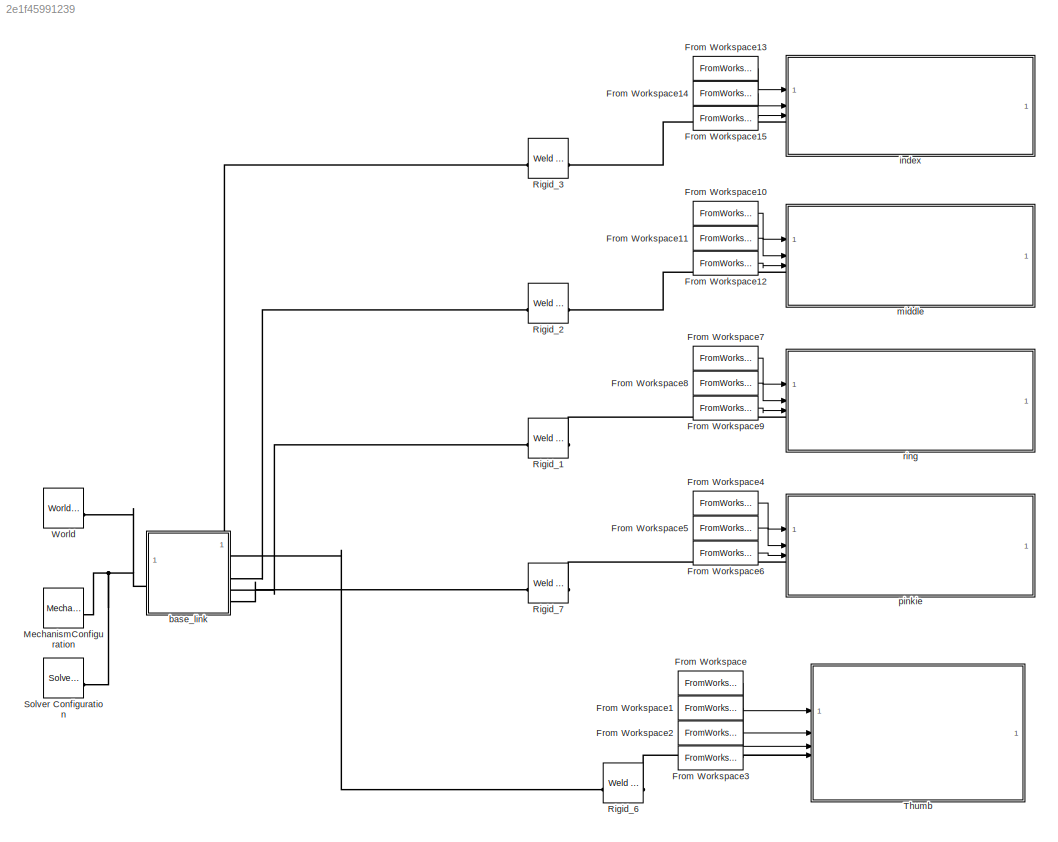
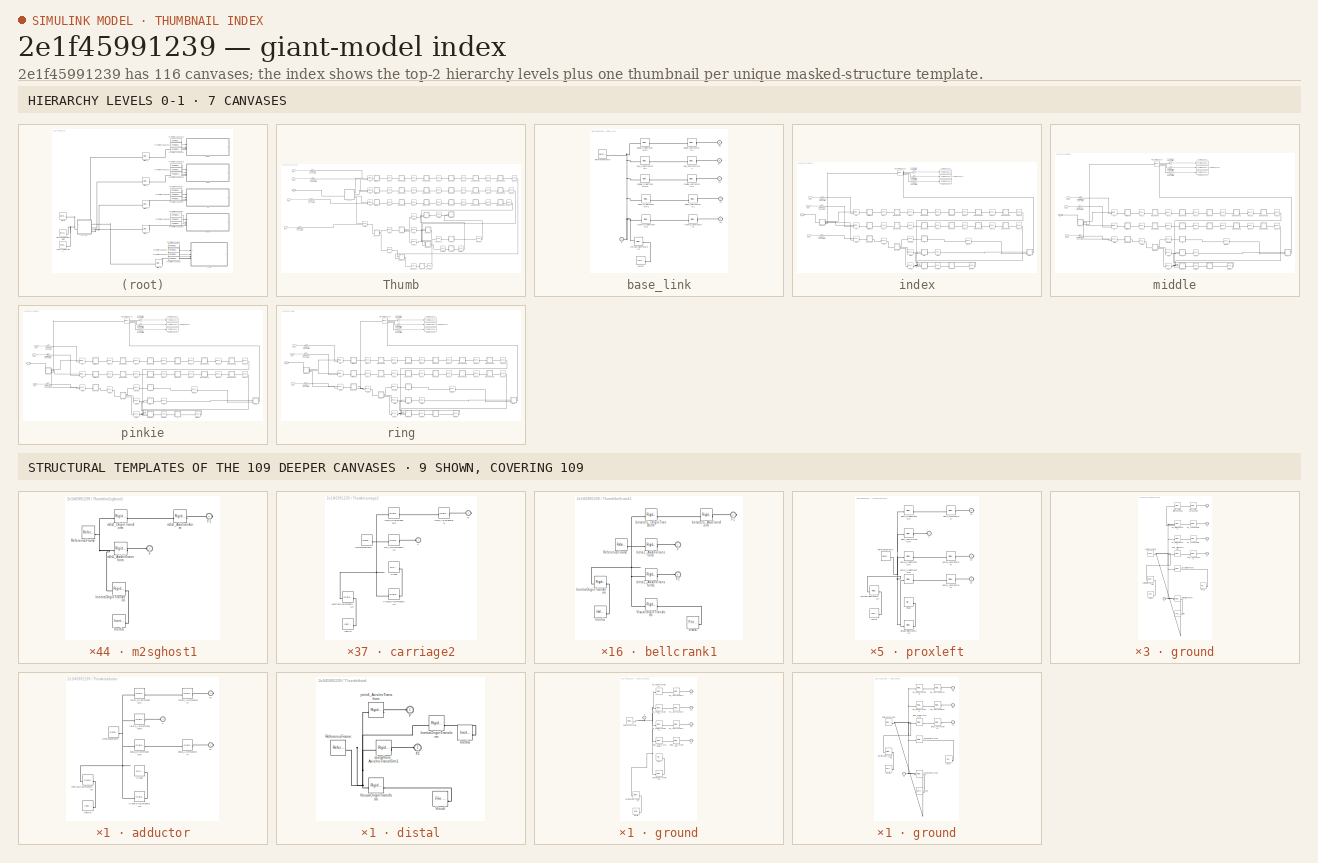
[diagram: thumbnail index - top-2 hierarchy levels (7 canvases) + 9 structural-template representatives of the remaining 109 canvases]
MODEL slx_2e1f45991239
KIND model
CONFIG AbsTol = auto
CONFIG EnableMultiTasking = off
CONFIG FixedStep = auto
CONFIG MaxStep = auto
CONFIG MinStep = auto
CONFIG RelTol = 1e-3
CONFIG SampleTimeConstraint = Unconstrained
CONFIG SolverName = VariableStepAuto
CONFIG StartTime = 0.0
CONFIG StopTime = t3
BLOCK [FromWorkspace] From Workspace
  VariableName = thm1
BLOCK [FromWorkspace] From Workspace1
  VariableName = thm2
BLOCK [FromWorkspace] From Workspace10
  VariableName = f2m1
BLOCK [FromWorkspace] From Workspace11
  VariableName = f2m2
BLOCK [FromWorkspace] From Workspace12
  VariableName = f2m3
BLOCK [FromWorkspace] From Workspace13
  VariableName = f1m1
BLOCK [FromWorkspace] From Workspace14
  VariableName = f1m2
BLOCK [FromWorkspace] From Workspace15
  VariableName = f1m3
BLOCK [FromWorkspace] From Workspace2
  VariableName = thm3
BLOCK [FromWorkspace] From Workspace3
  VariableName = thm4
BLOCK [FromWorkspace] From Workspace4
  VariableName = f4m1
BLOCK [FromWorkspace] From Workspace5
  VariableName = f4m2
BLOCK [FromWorkspace] From Workspace6
  VariableName = f4m3
BLOCK [FromWorkspace] From Workspace7
  VariableName = f3m1
BLOCK [FromWorkspace] From Workspace8
  VariableName = f3m2
BLOCK [FromWorkspace] From Workspace9
  VariableName = f3m3
BLOCK [Reference] MechanismConfiguration  REF=sm_lib/Utilities/Mechanism
Configuration
  SourceBlock = sm_lib/Utilities/Mechanism\nConfiguration
  SourceType = Mechanism\nConfiguration
BLOCK [Reference] Rigid_1  REF=sm_lib/Joints/Weld Joint
  SourceBlock = sm_lib/Joints/Weld Joint
  SourceType = Weld Joint
BLOCK [Reference] Rigid_2  REF=sm_lib/Joints/Weld Joint
  SourceBlock = sm_lib/Joints/Weld Joint
  SourceType = Weld Joint
BLOCK [Reference] Rigid_3  REF=sm_lib/Joints/Weld Joint
  SourceBlock = sm_lib/Joints/Weld Joint
  SourceType = Weld Joint
BLOCK [Reference] Rigid_6  REF=sm_lib/Joints/Weld Joint
  SourceBlock = sm_lib/Joints/Weld Joint
  SourceType = Weld Joint
BLOCK [Reference] Rigid_7  REF=sm_lib/Joints/Weld Joint
  SourceBlock = sm_lib/Joints/Weld Joint
  SourceType = Weld Joint
BLOCK [Reference] Solver Configuration  REF=nesl_utility/Solver
Configuration
  SourceBlock = nesl_utility/Solver\nConfiguration
  SourceType = Solver\nConfiguration
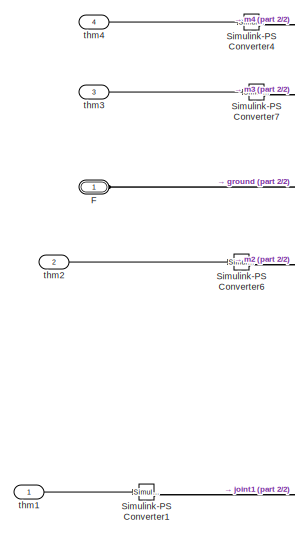
[diagram: Thumb - part 1/2, top left region]
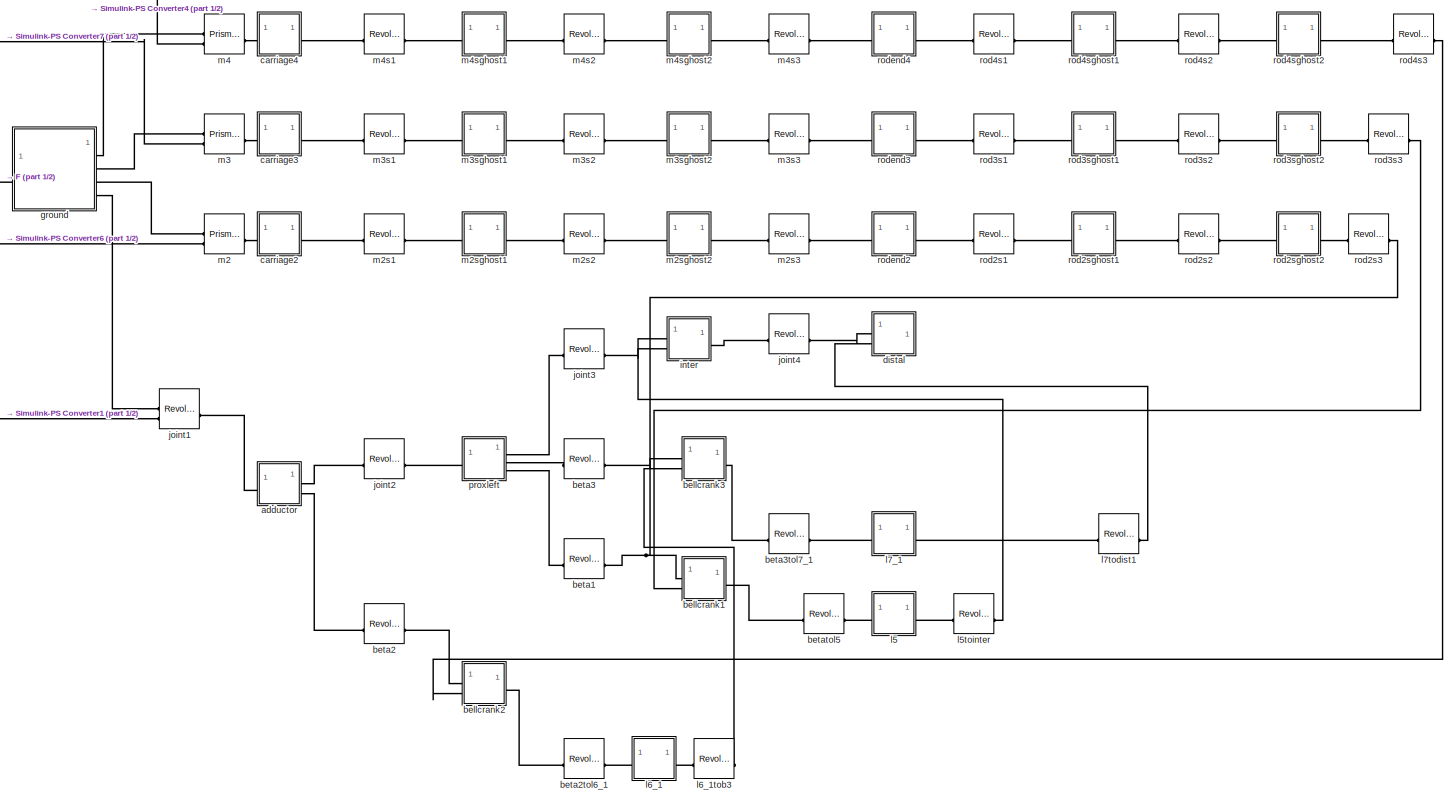
[diagram: Thumb - part 2/2, most of the canvas]
BLOCK [SubSystem] Thumb
BLOCK [PMIOPort] Thumb/F
  Side = Left
BLOCK [Reference] Thumb/Simulink-PS Converter1  REF=nesl_utility/Simulink-PS
Converter
  SourceBlock = nesl_utility/Simulink-PS\nConverter
  SourceType = Simulink-PS\nConverter
BLOCK [Reference] Thumb/Simulink-PS Converter4  REF=nesl_utility/Simulink-PS
Converter
  SourceBlock = nesl_utility/Simulink-PS\nConverter
  SourceType = Simulink-PS\nConverter
BLOCK [Reference] Thumb/Simulink-PS Converter6  REF=nesl_utility/Simulink-PS
Converter
  SourceBlock = nesl_utility/Simulink-PS\nConverter
  SourceType = Simulink-PS\nConverter
BLOCK [Reference] Thumb/Simulink-PS Converter7  REF=nesl_utility/Simulink-PS
Converter
  SourceBlock = nesl_utility/Simulink-PS\nConverter
  SourceType = Simulink-PS\nConverter
BLOCK [SubSystem] Thumb/adductor
BLOCK [PMIOPort] Thumb/adductor/F
  Side = Left
BLOCK [PMIOPort] Thumb/adductor/F1
  Port = 3
  Side = Right
BLOCK [PMIOPort] Thumb/adductor/F2
  Port = 2
  Side = Right
BLOCK [Reference] Thumb/adductor/Inertia  REF=sm_lib/Body Elements/Inertia
  SourceBlock = sm_lib/Body Elements/Inertia
  SourceType = Inertia
BLOCK [Reference] Thumb/adductor/InertiaOriginTransform  REF=sm_lib/Frames and
Transforms/Rigid
Transform
  SourceBlock = sm_lib/Frames and\nTransforms/Rigid\nTransform
  SourceType = Rigid\nTransform
BLOCK [Reference] Thumb/adductor/ReferenceFrame  REF=sm_lib/Frames and
Transforms/Reference
Frame
  SourceBlock = sm_lib/Frames and\nTransforms/Reference\nFrame
  SourceType = Reference\nFrame
BLOCK [Reference] Thumb/adductor/Visual  REF=sm_lib/Body Elements/File Solid
  SourceBlock = sm_lib/Body Elements/File Solid
  SourceType = File Solid
BLOCK [Reference] Thumb/adductor/VisualOriginTransform  REF=sm_lib/Frames and
Transforms/Rigid
Transform
  SourceBlock = sm_lib/Frames and\nTransforms/Rigid\nTransform
  SourceType = Rigid\nTransform
BLOCK [Reference] Thumb/adductor/beta2_AxisTransform  REF=sm_lib/Frames and
Transforms/Rigid
Transform
  SourceBlock = sm_lib/Frames and\nTransforms/Rigid\nTransform
  SourceType = Rigid\nTransform
BLOCK [Reference] Thumb/adductor/beta2_OriginTransform  REF=sm_lib/Frames and
Transforms/Rigid
Transform
  SourceBlock = sm_lib/Frames and\nTransforms/Rigid\nTransform
  SourceType = Rigid\nTransform
BLOCK [Reference] Thumb/adductor/joint1_AxisInvTransform  REF=sm_lib/Frames and
Transforms/Rigid
Transform
  SourceBlock = sm_lib/Frames and\nTransforms/Rigid\nTransform
  SourceType = Rigid\nTransform
BLOCK [Reference] Thumb/adductor/joint2_AxisTransform  REF=sm_lib/Frames and
Transforms/Rigid
Transform
  SourceBlock = sm_lib/Frames and\nTransforms/Rigid\nTransform
  SourceType = Rigid\nTransform
BLOCK [Reference] Thumb/adductor/joint2_OriginTransform  REF=sm_lib/Frames and
Transforms/Rigid
Transform
  SourceBlock = sm_lib/Frames and\nTransforms/Rigid\nTransform
  SourceType = Rigid\nTransform
BLOCK [SubSystem] Thumb/bellcrank1
BLOCK [PMIOPort] Thumb/bellcrank1/F
  Side = Left
BLOCK [PMIOPort] Thumb/bellcrank1/F1
  Port = 2
  Side = Right
BLOCK [PMIOPort] Thumb/bellcrank1/F2
  Port = 3
  Side = Left
BLOCK [Reference] Thumb/bellcrank1/Inertia  REF=sm_lib/Body Elements/Inertia
  SourceBlock = sm_lib/Body Elements/Inertia
  SourceType = Inertia
BLOCK [Reference] Thumb/bellcrank1/InertiaOriginTransform  REF=sm_lib/Frames and
Transforms/Rigid
Transform
  SourceBlock = sm_lib/Frames and\nTransforms/Rigid\nTransform
  SourceType = Rigid\nTransform
BLOCK [Reference] Thumb/bellcrank1/ReferenceFrame  REF=sm_lib/Frames and
Transforms/Reference
Frame
  SourceBlock = sm_lib/Frames and\nTransforms/Reference\nFrame
  SourceType = Reference\nFrame
BLOCK [Reference] Thumb/bellcrank1/Visual  REF=sm_lib/Body Elements/File Solid
  SourceBlock = sm_lib/Body Elements/File Solid
  SourceType = File Solid
BLOCK [Reference] Thumb/bellcrank1/VisualOriginTransform  REF=sm_lib/Frames and
Transforms/Rigid
Transform
  SourceBlock = sm_lib/Frames and\nTransforms/Rigid\nTransform
  SourceType = Rigid\nTransform
BLOCK [Reference] Thumb/bellcrank1/beta1_AxisInvTransform  REF=sm_lib/Frames and
Transforms/Rigid
Transform
  SourceBlock = sm_lib/Frames and\nTransforms/Rigid\nTransform
  SourceType = Rigid\nTransform
BLOCK [Reference] Thumb/bellcrank1/beta1_AxisInvTransform1  REF=sm_lib/Frames and
Transforms/Rigid
Transform
  SourceBlock = sm_lib/Frames and\nTransforms/Rigid\nTransform
  SourceType = Rigid\nTransform
BLOCK [Reference] Thumb/bellcrank1/betatol5_AxisTransform  REF=sm_lib/Frames and
Transforms/Rigid
Transform
  SourceBlock = sm_lib/Frames and\nTransforms/Rigid\nTransform
  SourceType = Rigid\nTransform
BLOCK [Reference] Thumb/bellcrank1/betatol5_OriginTransform  REF=sm_lib/Frames and
Transforms/Rigid
Transform
  SourceBlock = sm_lib/Frames and\nTransforms/Rigid\nTransform
  SourceType = Rigid\nTransform
BLOCK [SubSystem] Thumb/bellcrank2
BLOCK [PMIOPort] Thumb/bellcrank2/F
  Side = Left
BLOCK [PMIOPort] Thumb/bellcrank2/F1
  Port = 2
  Side = Right
BLOCK [PMIOPort] Thumb/bellcrank2/F3
  Port = 3
  Side = Left
BLOCK [Reference] Thumb/bellcrank2/Inertia  REF=sm_lib/Body Elements/Inertia
  SourceBlock = sm_lib/Body Elements/Inertia
  SourceType = Inertia
BLOCK [Reference] Thumb/bellcrank2/InertiaOriginTransform  REF=sm_lib/Frames and
Transforms/Rigid
Transform
  SourceBlock = sm_lib/Frames and\nTransforms/Rigid\nTransform
  SourceType = Rigid\nTransform
BLOCK [Reference] Thumb/bellcrank2/ReferenceFrame  REF=sm_lib/Frames and
Transforms/Reference
Frame
  SourceBlock = sm_lib/Frames and\nTransforms/Reference\nFrame
  SourceType = Reference\nFrame
BLOCK [Reference] Thumb/bellcrank2/Visual  REF=sm_lib/Body Elements/File Solid
  SourceBlock = sm_lib/Body Elements/File Solid
  SourceType = File Solid
BLOCK [Reference] Thumb/bellcrank2/VisualOriginTransform  REF=sm_lib/Frames and
Transforms/Rigid
Transform
  SourceBlock = sm_lib/Frames and\nTransforms/Rigid\nTransform
  SourceType = Rigid\nTransform
BLOCK [Reference] Thumb/bellcrank2/beta2_AxisInvTransform  REF=sm_lib/Frames and
Transforms/Rigid
Transform
  SourceBlock = sm_lib/Frames and\nTransforms/Rigid\nTransform
  SourceType = Rigid\nTransform
BLOCK [Reference] Thumb/bellcrank2/beta2back_AxisInvTransform  REF=sm_lib/Frames and
Transforms/Rigid
Transform
  SourceBlock = sm_lib/Frames and\nTransforms/Rigid\nTransform
  SourceType = Rigid\nTransform
BLOCK [Reference] Thumb/bellcrank2/beta2tol6_1_AxisTransform  REF=sm_lib/Frames and
Transforms/Rigid
Transform
  SourceBlock = sm_lib/Frames and\nTransforms/Rigid\nTransform
  SourceType = Rigid\nTransform
BLOCK [Reference] Thumb/bellcrank2/beta2tol6_1_OriginTransform  REF=sm_lib/Frames and
Transforms/Rigid
Transform
  SourceBlock = sm_lib/Frames and\nTransforms/Rigid\nTransform
  SourceType = Rigid\nTransform
BLOCK [SubSystem] Thumb/bellcrank3
BLOCK [PMIOPort] Thumb/bellcrank3/F
  Side = Left
BLOCK [PMIOPort] Thumb/bellcrank3/F1
  Port = 2
  Side = Right
BLOCK [PMIOPort] Thumb/bellcrank3/F3
  Port = 3
  Side = Left
BLOCK [Reference] Thumb/bellcrank3/Inertia  REF=sm_lib/Body Elements/Inertia
  SourceBlock = sm_lib/Body Elements/Inertia
  SourceType = Inertia
BLOCK [Reference] Thumb/bellcrank3/InertiaOriginTransform  REF=sm_lib/Frames and
Transforms/Rigid
Transform
  SourceBlock = sm_lib/Frames and\nTransforms/Rigid\nTransform
  SourceType = Rigid\nTransform
BLOCK [Reference] Thumb/bellcrank3/ReferenceFrame  REF=sm_lib/Frames and
Transforms/Reference
Frame
  SourceBlock = sm_lib/Frames and\nTransforms/Reference\nFrame
  SourceType = Reference\nFrame
BLOCK [Reference] Thumb/bellcrank3/Visual  REF=sm_lib/Body Elements/File Solid
  SourceBlock = sm_lib/Body Elements/File Solid
  SourceType = File Solid
BLOCK [Reference] Thumb/bellcrank3/VisualOriginTransform  REF=sm_lib/Frames and
Transforms/Rigid
Transform
  SourceBlock = sm_lib/Frames and\nTransforms/Rigid\nTransform
  SourceType = Rigid\nTransform
BLOCK [Reference] Thumb/bellcrank3/beta3_AxisInvTransform  REF=sm_lib/Frames and
Transforms/Rigid
Transform
  SourceBlock = sm_lib/Frames and\nTransforms/Rigid\nTransform
  SourceType = Rigid\nTransform
BLOCK [Reference] Thumb/bellcrank3/beta3back_AxisInvTransform1  REF=sm_lib/Frames and
Transforms/Rigid
Transform
  SourceBlock = sm_lib/Frames and\nTransforms/Rigid\nTransform
  SourceType = Rigid\nTransform
BLOCK [Reference] Thumb/bellcrank3/beta3tol7_1_AxisTransform  REF=sm_lib/Frames and
Transforms/Rigid
Transform
  SourceBlock = sm_lib/Frames and\nTransforms/Rigid\nTransform
  SourceType = Rigid\nTransform
BLOCK [Reference] Thumb/bellcrank3/beta3tol7_1_OriginTransform  REF=sm_lib/Frames and
Transforms/Rigid
Transform
  SourceBlock = sm_lib/Frames and\nTransforms/Rigid\nTransform
  SourceType = Rigid\nTransform
BLOCK [Reference] Thumb/beta1  REF=sm_lib/Joints/Revolute Joint
  SourceBlock = sm_lib/Joints/Revolute Joint
  SourceType = Revolute Joint
BLOCK [Reference] Thumb/beta2  REF=sm_lib/Joints/Revolute Joint
  SourceBlock = sm_lib/Joints/Revolute Joint
  SourceType = Revolute Joint
BLOCK [Reference] Thumb/beta2tol6_1  REF=sm_lib/Joints/Revolute Joint
  SourceBlock = sm_lib/Joints/Revolute Joint
  SourceType = Revolute Joint
BLOCK [Reference] Thumb/beta3  REF=sm_lib/Joints/Revolute Joint
  SourceBlock = sm_lib/Joints/Revolute Joint
  SourceType = Revolute Joint
BLOCK [Reference] Thumb/beta3tol7_1  REF=sm_lib/Joints/Revolute Joint
  SourceBlock = sm_lib/Joints/Revolute Joint
  SourceType = Revolute Joint
BLOCK [Reference] Thumb/betatol5  REF=sm_lib/Joints/Revolute Joint
  SourceBlock = sm_lib/Joints/Revolute Joint
  SourceType = Revolute Joint
BLOCK [SubSystem] Thumb/carriage2
BLOCK [PMIOPort] Thumb/carriage2/F
  Side = Left
BLOCK [PMIOPort] Thumb/carriage2/F1
  Port = 2
  Side = Right
BLOCK [Reference] Thumb/carriage2/Inertia  REF=sm_lib/Body Elements/Inertia
  SourceBlock = sm_lib/Body Elements/Inertia
  SourceType = Inertia
BLOCK [Reference] Thumb/carriage2/InertiaOriginTransform  REF=sm_lib/Frames and
Transforms/Rigid
Transform
  SourceBlock = sm_lib/Frames and\nTransforms/Rigid\nTransform
  SourceType = Rigid\nTransform
BLOCK [Reference] Thumb/carriage2/ReferenceFrame  REF=sm_lib/Frames and
Transforms/Reference
Frame
  SourceBlock = sm_lib/Frames and\nTransforms/Reference\nFrame
  SourceType = Reference\nFrame
BLOCK [Reference] Thumb/carriage2/Visual  REF=sm_lib/Body Elements/File Solid
  SourceBlock = sm_lib/Body Elements/File Solid
  SourceType = File Solid
BLOCK [Reference] Thumb/carriage2/VisualOriginTransform  REF=sm_lib/Frames and
Transforms/Rigid
Transform
  SourceBlock = sm_lib/Frames and\nTransforms/Rigid\nTransform
  SourceType = Rigid\nTransform
BLOCK [Reference] Thumb/carriage2/m2_AxisInvTransform  REF=sm_lib/Frames and
Transforms/Rigid
Transform
  SourceBlock = sm_lib/Frames and\nTransforms/Rigid\nTransform
  SourceType = Rigid\nTransform
BLOCK [Reference] Thumb/carriage2/m2s1_AxisTransform  REF=sm_lib/Frames and
Transforms/Rigid
Transform
  SourceBlock = sm_lib/Frames and\nTransforms/Rigid\nTransform
  SourceType = Rigid\nTransform
BLOCK [Reference] Thumb/carriage2/m2s1_OriginTransform  REF=sm_lib/Frames and
Transforms/Rigid
Transform
  SourceBlock = sm_lib/Frames and\nTransforms/Rigid\nTransform
  SourceType = Rigid\nTransform
BLOCK [SubSystem] Thumb/carriage3
BLOCK [PMIOPort] Thumb/carriage3/F
  Side = Left
BLOCK [PMIOPort] Thumb/carriage3/F1
  Port = 2
  Side = Right
BLOCK [Reference] Thumb/carriage3/Inertia  REF=sm_lib/Body Elements/Inertia
  SourceBlock = sm_lib/Body Elements/Inertia
  SourceType = Inertia
BLOCK [Reference] Thumb/carriage3/InertiaOriginTransform  REF=sm_lib/Frames and
Transforms/Rigid
Transform
  SourceBlock = sm_lib/Frames and\nTransforms/Rigid\nTransform
  SourceType = Rigid\nTransform
BLOCK [Reference] Thumb/carriage3/ReferenceFrame  REF=sm_lib/Frames and
Transforms/Reference
Frame
  SourceBlock = sm_lib/Frames and\nTransforms/Reference\nFrame
  SourceType = Reference\nFrame
BLOCK [Reference] Thumb/carriage3/Visual  REF=sm_lib/Body Elements/File Solid
  SourceBlock = sm_lib/Body Elements/File Solid
  SourceType = File Solid
BLOCK [Reference] Thumb/carriage3/VisualOriginTransform  REF=sm_lib/Frames and
Transforms/Rigid
Transform
  SourceBlock = sm_lib/Frames and\nTransforms/Rigid\nTransform
  SourceType = Rigid\nTransform
BLOCK [Reference] Thumb/carriage3/m3_AxisInvTransform  REF=sm_lib/Frames and
Transforms/Rigid
Transform
  SourceBlock = sm_lib/Frames and\nTransforms/Rigid\nTransform
  SourceType = Rigid\nTransform
BLOCK [Reference] Thumb/carriage3/m3s1_AxisTransform  REF=sm_lib/Frames and
Transforms/Rigid
Transform
  SourceBlock = sm_lib/Frames and\nTransforms/Rigid\nTransform
  SourceType = Rigid\nTransform
BLOCK [Reference] Thumb/carriage3/m3s1_OriginTransform  REF=sm_lib/Frames and
Transforms/Rigid
Transform
  SourceBlock = sm_lib/Frames and\nTransforms/Rigid\nTransform
  SourceType = Rigid\nTransform
BLOCK [SubSystem] Thumb/carriage4
BLOCK [PMIOPort] Thumb/carriage4/F
  Side = Left
BLOCK [PMIOPort] Thumb/carriage4/F1
  Port = 2
  Side = Right
BLOCK [Reference] Thumb/carriage4/Inertia  REF=sm_lib/Body Elements/Inertia
  SourceBlock = sm_lib/Body Elements/Inertia
  SourceType = Inertia
BLOCK [Reference] Thumb/carriage4/InertiaOriginTransform  REF=sm_lib/Frames and
Transforms/Rigid
Transform
  SourceBlock = sm_lib/Frames and\nTransforms/Rigid\nTransform
  SourceType = Rigid\nTransform
BLOCK [Reference] Thumb/carriage4/ReferenceFrame  REF=sm_lib/Frames and
Transforms/Reference
Frame
  SourceBlock = sm_lib/Frames and\nTransforms/Reference\nFrame
  SourceType = Reference\nFrame
BLOCK [Reference] Thumb/carriage4/Visual  REF=sm_lib/Body Elements/File Solid
  SourceBlock = sm_lib/Body Elements/File Solid
  SourceType = File Solid
BLOCK [Reference] Thumb/carriage4/VisualOriginTransform  REF=sm_lib/Frames and
Transforms/Rigid
Transform
  SourceBlock = sm_lib/Frames and\nTransforms/Rigid\nTransform
  SourceType = Rigid\nTransform
BLOCK [Reference] Thumb/carriage4/m4_AxisInvTransform  REF=sm_lib/Frames and
Transforms/Rigid
Transform
  SourceBlock = sm_lib/Frames and\nTransforms/Rigid\nTransform
  SourceType = Rigid\nTransform
BLOCK [Reference] Thumb/carriage4/m4s1_AxisTransform  REF=sm_lib/Frames and
Transforms/Rigid
Transform
  SourceBlock = sm_lib/Frames and\nTransforms/Rigid\nTransform
  SourceType = Rigid\nTransform
BLOCK [Reference] Thumb/carriage4/m4s1_OriginTransform  REF=sm_lib/Frames and
Transforms/Rigid
Transform
  SourceBlock = sm_lib/Frames and\nTransforms/Rigid\nTransform
  SourceType = Rigid\nTransform
BLOCK [SubSystem] Thumb/distal
BLOCK [PMIOPort] Thumb/distal/F
  Side = Left
BLOCK [PMIOPort] Thumb/distal/F1
  Port = 2
  Side = Left
BLOCK [Reference] Thumb/distal/Inertia  REF=sm_lib/Body Elements/Inertia
  SourceBlock = sm_lib/Body Elements/Inertia
  SourceType = Inertia
BLOCK [Reference] Thumb/distal/InertiaOriginTransform  REF=sm_lib/Frames and
Transforms/Rigid
Transform
  SourceBlock = sm_lib/Frames and\nTransforms/Rigid\nTransform
  SourceType = Rigid\nTransform
BLOCK [Reference] Thumb/distal/ReferenceFrame  REF=sm_lib/Frames and
Transforms/Reference
Frame
  SourceBlock = sm_lib/Frames and\nTransforms/Reference\nFrame
  SourceType = Reference\nFrame
BLOCK [Reference] Thumb/distal/Visual  REF=sm_lib/Body Elements/File Solid
  SourceBlock = sm_lib/Body Elements/File Solid
  SourceType = File Solid
BLOCK [Reference] Thumb/distal/VisualOriginTransform  REF=sm_lib/Frames and
Transforms/Rigid
Transform
  SourceBlock = sm_lib/Frames and\nTransforms/Rigid\nTransform
  SourceType = Rigid\nTransform
BLOCK [Reference] Thumb/distal/distalfront_AxisInvTransform1  REF=sm_lib/Frames and
Transforms/Rigid
Transform
  SourceBlock = sm_lib/Frames and\nTransforms/Rigid\nTransform
  SourceType = Rigid\nTransform
BLOCK [Reference] Thumb/distal/joint4_AxisInvTransform  REF=sm_lib/Frames and
Transforms/Rigid
Transform
  SourceBlock = sm_lib/Frames and\nTransforms/Rigid\nTransform
  SourceType = Rigid\nTransform
BLOCK [SubSystem] Thumb/ground
BLOCK [PMIOPort] Thumb/ground/F
  Side = Left
BLOCK [PMIOPort] Thumb/ground/F1
  Port = 5
  Side = Right
BLOCK [PMIOPort] Thumb/ground/F2
  Port = 4
  Side = Right
BLOCK [PMIOPort] Thumb/ground/F3
  Port = 3
  Side = Right
BLOCK [PMIOPort] Thumb/ground/F4
  Port = 2
  Side = Right
BLOCK [Reference] Thumb/ground/Inertia  REF=sm_lib/Body Elements/Inertia
  SourceBlock = sm_lib/Body Elements/Inertia
  SourceType = Inertia
BLOCK [Reference] Thumb/ground/InertiaOriginTransform  REF=sm_lib/Frames and
Transforms/Rigid
Transform
  SourceBlock = sm_lib/Frames and\nTransforms/Rigid\nTransform
  SourceType = Rigid\nTransform
BLOCK [Reference] Thumb/ground/ReferenceFrame  REF=sm_lib/Frames and
Transforms/Reference
Frame
  SourceBlock = sm_lib/Frames and\nTransforms/Reference\nFrame
  SourceType = Reference\nFrame
BLOCK [Reference] Thumb/ground/Visual  REF=sm_lib/Body Elements/File Solid
  SourceBlock = sm_lib/Body Elements/File Solid
  SourceType = File Solid
BLOCK [Reference] Thumb/ground/VisualOriginTransform  REF=sm_lib/Frames and
Transforms/Rigid
Transform
  SourceBlock = sm_lib/Frames and\nTransforms/Rigid\nTransform
  SourceType = Rigid\nTransform
BLOCK [Reference] Thumb/ground/joint1_AxisTransform  REF=sm_lib/Frames and
Transforms/Rigid
Transform
  SourceBlock = sm_lib/Frames and\nTransforms/Rigid\nTransform
  SourceType = Rigid\nTransform
BLOCK [Reference] Thumb/ground/joint1_OriginTransform  REF=sm_lib/Frames and
Transforms/Rigid
Transform
  SourceBlock = sm_lib/Frames and\nTransforms/Rigid\nTransform
  SourceType = Rigid\nTransform
BLOCK [Reference] Thumb/ground/m2_AxisTransform  REF=sm_lib/Frames and
Transforms/Rigid
Transform
  SourceBlock = sm_lib/Frames and\nTransforms/Rigid\nTransform
  SourceType = Rigid\nTransform
BLOCK [Reference] Thumb/ground/m2_OriginTransform  REF=sm_lib/Frames and
Transforms/Rigid
Transform
  SourceBlock = sm_lib/Frames and\nTransforms/Rigid\nTransform
  SourceType = Rigid\nTransform
BLOCK [Reference] Thumb/ground/m3_AxisTransform  REF=sm_lib/Frames and
Transforms/Rigid
Transform
  SourceBlock = sm_lib/Frames and\nTransforms/Rigid\nTransform
  SourceType = Rigid\nTransform
BLOCK [Reference] Thumb/ground/m3_OriginTransform  REF=sm_lib/Frames and
Transforms/Rigid
Transform
  SourceBlock = sm_lib/Frames and\nTransforms/Rigid\nTransform
  SourceType = Rigid\nTransform
BLOCK [Reference] Thumb/ground/m4_AxisTransform  REF=sm_lib/Frames and
Transforms/Rigid
Transform
  SourceBlock = sm_lib/Frames and\nTransforms/Rigid\nTransform
  SourceType = Rigid\nTransform
BLOCK [Reference] Thumb/ground/m4_OriginTransform  REF=sm_lib/Frames and
Transforms/Rigid
Transform
  SourceBlock = sm_lib/Frames and\nTransforms/Rigid\nTransform
  SourceType = Rigid\nTransform
BLOCK [SubSystem] Thumb/inter
BLOCK [PMIOPort] Thumb/inter/F
  Side = Left
BLOCK [PMIOPort] Thumb/inter/F1
  Port = 2
  Side = Right
BLOCK [PMIOPort] Thumb/inter/F2
  Port = 3
  Side = Left
BLOCK [Reference] Thumb/inter/Inertia  REF=sm_lib/Body Elements/Inertia
  SourceBlock = sm_lib/Body Elements/Inertia
  SourceType = Inertia
BLOCK [Reference] Thumb/inter/InertiaOriginTransform  REF=sm_lib/Frames and
Transforms/Rigid
Transform
  SourceBlock = sm_lib/Frames and\nTransforms/Rigid\nTransform
  SourceType = Rigid\nTransform
BLOCK [Reference] Thumb/inter/ReferenceFrame  REF=sm_lib/Frames and
Transforms/Reference
Frame
  SourceBlock = sm_lib/Frames and\nTransforms/Reference\nFrame
  SourceType = Reference\nFrame
BLOCK [Reference] Thumb/inter/Visual  REF=sm_lib/Body Elements/File Solid
  SourceBlock = sm_lib/Body Elements/File Solid
  SourceType = File Solid
BLOCK [Reference] Thumb/inter/VisualOriginTransform  REF=sm_lib/Frames and
Transforms/Rigid
Transform
  SourceBlock = sm_lib/Frames and\nTransforms/Rigid\nTransform
  SourceType = Rigid\nTransform
BLOCK [Reference] Thumb/inter/joint3_AxisInvTransform  REF=sm_lib/Frames and
Transforms/Rigid
Transform
  SourceBlock = sm_lib/Frames and\nTransforms/Rigid\nTransform
  SourceType = Rigid\nTransform
BLOCK [Reference] Thumb/inter/joint4_AxisTransform  REF=sm_lib/Frames and
Transforms/Rigid
Transform
  SourceBlock = sm_lib/Frames and\nTransforms/Rigid\nTransform
  SourceType = Rigid\nTransform
BLOCK [Reference] Thumb/inter/joint4_OriginTransform  REF=sm_lib/Frames and
Transforms/Rigid
Transform
  SourceBlock = sm_lib/Frames and\nTransforms/Rigid\nTransform
  SourceType = Rigid\nTransform
BLOCK [Reference] Thumb/inter/l5tointer_AxisInvTransform1  REF=sm_lib/Frames and
Transforms/Rigid
Transform
  SourceBlock = sm_lib/Frames and\nTransforms/Rigid\nTransform
  SourceType = Rigid\nTransform
BLOCK [Reference] Thumb/joint1  REF=sm_lib/Joints/Revolute Joint
  SourceBlock = sm_lib/Joints/Revolute Joint
  SourceType = Revolute Joint
BLOCK [Reference] Thumb/joint2  REF=sm_lib/Joints/Revolute Joint
  SourceBlock = sm_lib/Joints/Revolute Joint
  SourceType = Revolute Joint
BLOCK [Reference] Thumb/joint3  REF=sm_lib/Joints/Revolute Joint
  SourceBlock = sm_lib/Joints/Revolute Joint
  SourceType = Revolute Joint
BLOCK [Reference] Thumb/joint4  REF=sm_lib/Joints/Revolute Joint
  SourceBlock = sm_lib/Joints/Revolute Joint
  SourceType = Revolute Joint
BLOCK [SubSystem] Thumb/l5
BLOCK [PMIOPort] Thumb/l5/F
  Side = Left
BLOCK [PMIOPort] Thumb/l5/F1
  Port = 2
  Side = Right
BLOCK [Reference] Thumb/l5/Inertia  REF=sm_lib/Body Elements/Inertia
  SourceBlock = sm_lib/Body Elements/Inertia
  SourceType = Inertia
BLOCK [Reference] Thumb/l5/InertiaOriginTransform  REF=sm_lib/Frames and
Transforms/Rigid
Transform
  SourceBlock = sm_lib/Frames and\nTransforms/Rigid\nTransform
  SourceType = Rigid\nTransform
BLOCK [Reference] Thumb/l5/ReferenceFrame  REF=sm_lib/Frames and
Transforms/Reference
Frame
  SourceBlock = sm_lib/Frames and\nTransforms/Reference\nFrame
  SourceType = Reference\nFrame
BLOCK [Reference] Thumb/l5/Visual  REF=sm_lib/Body Elements/File Solid
  SourceBlock = sm_lib/Body Elements/File Solid
  SourceType = File Solid
BLOCK [Reference] Thumb/l5/VisualOriginTransform  REF=sm_lib/Frames and
Transforms/Rigid
Transform
  SourceBlock = sm_lib/Frames and\nTransforms/Rigid\nTransform
  SourceType = Rigid\nTransform
BLOCK [Reference] Thumb/l5/betatol5_AxisInvTransform  REF=sm_lib/Frames and
Transforms/Rigid
Transform
  SourceBlock = sm_lib/Frames and\nTransforms/Rigid\nTransform
  SourceType = Rigid\nTransform
BLOCK [Reference] Thumb/l5/l5tointer_AxisTransform  REF=sm_lib/Frames and
Transforms/Rigid
Transform
  SourceBlock = sm_lib/Frames and\nTransforms/Rigid\nTransform
  SourceType = Rigid\nTransform
BLOCK [Reference] Thumb/l5/l5tointer_OriginTransform  REF=sm_lib/Frames and
Transforms/Rigid
Transform
  SourceBlock = sm_lib/Frames and\nTransforms/Rigid\nTransform
  SourceType = Rigid\nTransform
BLOCK [Reference] Thumb/l5tointer  REF=sm_lib/Joints/Revolute Joint
  SourceBlock = sm_lib/Joints/Revolute Joint
  SourceType = Revolute Joint
BLOCK [SubSystem] Thumb/l6_1
BLOCK [PMIOPort] Thumb/l6_1/F
  Side = Left
BLOCK [PMIOPort] Thumb/l6_1/F1
  Port = 2
  Side = Right
BLOCK [Reference] Thumb/l6_1/Inertia  REF=sm_lib/Body Elements/Inertia
  SourceBlock = sm_lib/Body Elements/Inertia
  SourceType = Inertia
BLOCK [Reference] Thumb/l6_1/InertiaOriginTransform  REF=sm_lib/Frames and
Transforms/Rigid
Transform
  SourceBlock = sm_lib/Frames and\nTransforms/Rigid\nTransform
  SourceType = Rigid\nTransform
BLOCK [Reference] Thumb/l6_1/ReferenceFrame  REF=sm_lib/Frames and
Transforms/Reference
Frame
  SourceBlock = sm_lib/Frames and\nTransforms/Reference\nFrame
  SourceType = Reference\nFrame
BLOCK [Reference] Thumb/l6_1/Visual  REF=sm_lib/Body Elements/File Solid
  SourceBlock = sm_lib/Body Elements/File Solid
  SourceType = File Solid
BLOCK [Reference] Thumb/l6_1/VisualOriginTransform  REF=sm_lib/Frames and
Transforms/Rigid
Transform
  SourceBlock = sm_lib/Frames and\nTransforms/Rigid\nTransform
  SourceType = Rigid\nTransform
BLOCK [Reference] Thumb/l6_1/beta2tol6_1_AxisInvTransform  REF=sm_lib/Frames and
Transforms/Rigid
Transform
  SourceBlock = sm_lib/Frames and\nTransforms/Rigid\nTransform
  SourceType = Rigid\nTransform
BLOCK [Reference] Thumb/l6_1/l6_1tob3_AxisTransform  REF=sm_lib/Frames and
Transforms/Rigid
Transform
  SourceBlock = sm_lib/Frames and\nTransforms/Rigid\nTransform
  SourceType = Rigid\nTransform
BLOCK [Reference] Thumb/l6_1/l6_1tob3_OriginTransform  REF=sm_lib/Frames and
Transforms/Rigid
Transform
  SourceBlock = sm_lib/Frames and\nTransforms/Rigid\nTransform
  SourceType = Rigid\nTransform
BLOCK [Reference] Thumb/l6_1tob3  REF=sm_lib/Joints/Revolute Joint
  SourceBlock = sm_lib/Joints/Revolute Joint
  SourceType = Revolute Joint
BLOCK [SubSystem] Thumb/l7_1
BLOCK [PMIOPort] Thumb/l7_1/F
  Side = Left
BLOCK [PMIOPort] Thumb/l7_1/F1
  Port = 2
  Side = Right
BLOCK [Reference] Thumb/l7_1/Inertia  REF=sm_lib/Body Elements/Inertia
  SourceBlock = sm_lib/Body Elements/Inertia
  SourceType = Inertia
BLOCK [Reference] Thumb/l7_1/InertiaOriginTransform  REF=sm_lib/Frames and
Transforms/Rigid
Transform
  SourceBlock = sm_lib/Frames and\nTransforms/Rigid\nTransform
  SourceType = Rigid\nTransform
BLOCK [Reference] Thumb/l7_1/ReferenceFrame  REF=sm_lib/Frames and
Transforms/Reference
Frame
  SourceBlock = sm_lib/Frames and\nTransforms/Reference\nFrame
  SourceType = Reference\nFrame
BLOCK [Reference] Thumb/l7_1/Visual  REF=sm_lib/Body Elements/File Solid
  SourceBlock = sm_lib/Body Elements/File Solid
  SourceType = File Solid
BLOCK [Reference] Thumb/l7_1/VisualOriginTransform  REF=sm_lib/Frames and
Transforms/Rigid
Transform
  SourceBlock = sm_lib/Frames and\nTransforms/Rigid\nTransform
  SourceType = Rigid\nTransform
BLOCK [Reference] Thumb/l7_1/beta3tol7_1_AxisInvTransform  REF=sm_lib/Frames and
Transforms/Rigid
Transform
  SourceBlock = sm_lib/Frames and\nTransforms/Rigid\nTransform
  SourceType = Rigid\nTransform
BLOCK [Reference] Thumb/l7_1/l7_1todist_AxisTransform  REF=sm_lib/Frames and
Transforms/Rigid
Transform
  SourceBlock = sm_lib/Frames and\nTransforms/Rigid\nTransform
  SourceType = Rigid\nTransform
BLOCK [Reference] Thumb/l7_1/l7_1todist_OriginTransform  REF=sm_lib/Frames and
Transforms/Rigid
Transform
  SourceBlock = sm_lib/Frames and\nTransforms/Rigid\nTransform
  SourceType = Rigid\nTransform
BLOCK [Reference] Thumb/l7todist1  REF=sm_lib/Joints/Revolute Joint
  SourceBlock = sm_lib/Joints/Revolute Joint
  SourceType = Revolute Joint
BLOCK [Reference] Thumb/m2  REF=sm_lib/Joints/Prismatic
Joint
  SourceBlock = sm_lib/Joints/Prismatic\nJoint
  SourceType = Prismatic\nJoint
BLOCK [Reference] Thumb/m2s1  REF=sm_lib/Joints/Revolute Joint
  SourceBlock = sm_lib/Joints/Revolute Joint
  SourceType = Revolute Joint
BLOCK [Reference] Thumb/m2s2  REF=sm_lib/Joints/Revolute Joint
  SourceBlock = sm_lib/Joints/Revolute Joint
  SourceType = Revolute Joint
BLOCK [Reference] Thumb/m2s3  REF=sm_lib/Joints/Revolute Joint
  SourceBlock = sm_lib/Joints/Revolute Joint
  SourceType = Revolute Joint
BLOCK [SubSystem] Thumb/m2sghost1
BLOCK [PMIOPort] Thumb/m2sghost1/F
  Side = Left
BLOCK [PMIOPort] Thumb/m2sghost1/F1
  Port = 2
  Side = Right
BLOCK [Reference] Thumb/m2sghost1/Inertia  REF=sm_lib/Body Elements/Inertia
  SourceBlock = sm_lib/Body Elements/Inertia
  SourceType = Inertia
BLOCK [Reference] Thumb/m2sghost1/InertiaOriginTransform  REF=sm_lib/Frames and
Transforms/Rigid
Transform
  SourceBlock = sm_lib/Frames and\nTransforms/Rigid\nTransform
  SourceType = Rigid\nTransform
BLOCK [Reference] Thumb/m2sghost1/ReferenceFrame  REF=sm_lib/Frames and
Transforms/Reference
Frame
  SourceBlock = sm_lib/Frames and\nTransforms/Reference\nFrame
  SourceType = Reference\nFrame
BLOCK [Reference] Thumb/m2sghost1/m2s1_AxisInvTransform  REF=sm_lib/Frames and
Transforms/Rigid
Transform
  SourceBlock = sm_lib/Frames and\nTransforms/Rigid\nTransform
  SourceType = Rigid\nTransform
BLOCK [Reference] Thumb/m2sghost1/m2s2_AxisTransform  REF=sm_lib/Frames and
Transforms/Rigid
Transform
  SourceBlock = sm_lib/Frames and\nTransforms/Rigid\nTransform
  SourceType = Rigid\nTransform
BLOCK [Reference] Thumb/m2sghost1/m2s2_OriginTransform  REF=sm_lib/Frames and
Transforms/Rigid
Transform
  SourceBlock = sm_lib/Frames and\nTransforms/Rigid\nTransform
  SourceType = Rigid\nTransform
BLOCK [SubSystem] Thumb/m2sghost2
BLOCK [PMIOPort] Thumb/m2sghost2/F
  Side = Left
BLOCK [PMIOPort] Thumb/m2sghost2/F1
  Port = 2
  Side = Right
BLOCK [Reference] Thumb/m2sghost2/Inertia  REF=sm_lib/Body Elements/Inertia
  SourceBlock = sm_lib/Body Elements/Inertia
  SourceType = Inertia
BLOCK [Reference] Thumb/m2sghost2/InertiaOriginTransform  REF=sm_lib/Frames and
Transforms/Rigid
Transform
  SourceBlock = sm_lib/Frames and\nTransforms/Rigid\nTransform
  SourceType = Rigid\nTransform
BLOCK [Reference] Thumb/m2sghost2/ReferenceFrame  REF=sm_lib/Frames and
Transforms/Reference
Frame
  SourceBlock = sm_lib/Frames and\nTransforms/Reference\nFrame
  SourceType = Reference\nFrame
BLOCK [Reference] Thumb/m2sghost2/m2s2_AxisInvTransform  REF=sm_lib/Frames and
Transforms/Rigid
Transform
  SourceBlock = sm_lib/Frames and\nTransforms/Rigid\nTransform
  SourceType = Rigid\nTransform
BLOCK [Reference] Thumb/m2sghost2/m2s3_AxisTransform  REF=sm_lib/Frames and
Transforms/Rigid
Transform
  SourceBlock = sm_lib/Frames and\nTransforms/Rigid\nTransform
  SourceType = Rigid\nTransform
BLOCK [Reference] Thumb/m2sghost2/m2s3_OriginTransform  REF=sm_lib/Frames and
Transforms/Rigid
Transform
  SourceBlock = sm_lib/Frames and\nTransforms/Rigid\nTransform
  SourceType = Rigid\nTransform
BLOCK [Reference] Thumb/m3  REF=sm_lib/Joints/Prismatic
Joint
  SourceBlock = sm_lib/Joints/Prismatic\nJoint
  SourceType = Prismatic\nJoint
BLOCK [Reference] Thumb/m3s1  REF=sm_lib/Joints/Revolute Joint
  SourceBlock = sm_lib/Joints/Revolute Joint
  SourceType = Revolute Joint
BLOCK [Reference] Thumb/m3s2  REF=sm_lib/Joints/Revolute Joint
  SourceBlock = sm_lib/Joints/Revolute Joint
  SourceType = Revolute Joint
BLOCK [Reference] Thumb/m3s3  REF=sm_lib/Joints/Revolute Joint
  SourceBlock = sm_lib/Joints/Revolute Joint
  SourceType = Revolute Joint
BLOCK [SubSystem] Thumb/m3sghost1
BLOCK [PMIOPort] Thumb/m3sghost1/F
  Side = Left
BLOCK [PMIOPort] Thumb/m3sghost1/F1
  Port = 2
  Side = Right
BLOCK [Reference] Thumb/m3sghost1/Inertia  REF=sm_lib/Body Elements/Inertia
  SourceBlock = sm_lib/Body Elements/Inertia
  SourceType = Inertia
BLOCK [Reference] Thumb/m3sghost1/InertiaOriginTransform  REF=sm_lib/Frames and
Transforms/Rigid
Transform
  SourceBlock = sm_lib/Frames and\nTransforms/Rigid\nTransform
  SourceType = Rigid\nTransform
BLOCK [Reference] Thumb/m3sghost1/ReferenceFrame  REF=sm_lib/Frames and
Transforms/Reference
Frame
  SourceBlock = sm_lib/Frames and\nTransforms/Reference\nFrame
  SourceType = Reference\nFrame
BLOCK [Reference] Thumb/m3sghost1/m3s1_AxisInvTransform  REF=sm_lib/Frames and
Transforms/Rigid
Transform
  SourceBlock = sm_lib/Frames and\nTransforms/Rigid\nTransform
  SourceType = Rigid\nTransform
BLOCK [Reference] Thumb/m3sghost1/m3s2_AxisTransform  REF=sm_lib/Frames and
Transforms/Rigid
Transform
  SourceBlock = sm_lib/Frames and\nTransforms/Rigid\nTransform
  SourceType = Rigid\nTransform
BLOCK [Reference] Thumb/m3sghost1/m3s2_OriginTransform  REF=sm_lib/Frames and
Transforms/Rigid
Transform
  SourceBlock = sm_lib/Frames and\nTransforms/Rigid\nTransform
  SourceType = Rigid\nTransform
BLOCK [SubSystem] Thumb/m3sghost2
BLOCK [PMIOPort] Thumb/m3sghost2/F
  Side = Left
BLOCK [PMIOPort] Thumb/m3sghost2/F1
  Port = 2
  Side = Right
BLOCK [Reference] Thumb/m3sghost2/Inertia  REF=sm_lib/Body Elements/Inertia
  SourceBlock = sm_lib/Body Elements/Inertia
  SourceType = Inertia
BLOCK [Reference] Thumb/m3sghost2/InertiaOriginTransform  REF=sm_lib/Frames and
Transforms/Rigid
Transform
  SourceBlock = sm_lib/Frames and\nTransforms/Rigid\nTransform
  SourceType = Rigid\nTransform
BLOCK [Reference] Thumb/m3sghost2/ReferenceFrame  REF=sm_lib/Frames and
Transforms/Reference
Frame
  SourceBlock = sm_lib/Frames and\nTransforms/Reference\nFrame
  SourceType = Reference\nFrame
BLOCK [Reference] Thumb/m3sghost2/m3s2_AxisInvTransform  REF=sm_lib/Frames and
Transforms/Rigid
Transform
  SourceBlock = sm_lib/Frames and\nTransforms/Rigid\nTransform
  SourceType = Rigid\nTransform
BLOCK [Reference] Thumb/m3sghost2/m3s3_AxisTransform  REF=sm_lib/Frames and
Transforms/Rigid
Transform
  SourceBlock = sm_lib/Frames and\nTransforms/Rigid\nTransform
  SourceType = Rigid\nTransform
BLOCK [Reference] Thumb/m3sghost2/m3s3_OriginTransform  REF=sm_lib/Frames and
Transforms/Rigid
Transform
  SourceBlock = sm_lib/Frames and\nTransforms/Rigid\nTransform
  SourceType = Rigid\nTransform
BLOCK [Reference] Thumb/m4  REF=sm_lib/Joints/Prismatic
Joint
  SourceBlock = sm_lib/Joints/Prismatic\nJoint
  SourceType = Prismatic\nJoint
BLOCK [Reference] Thumb/m4s1  REF=sm_lib/Joints/Revolute Joint
  SourceBlock = sm_lib/Joints/Revolute Joint
  SourceType = Revolute Joint
BLOCK [Reference] Thumb/m4s2  REF=sm_lib/Joints/Revolute Joint
  SourceBlock = sm_lib/Joints/Revolute Joint
  SourceType = Revolute Joint
BLOCK [Reference] Thumb/m4s3  REF=sm_lib/Joints/Revolute Joint
  SourceBlock = sm_lib/Joints/Revolute Joint
  SourceType = Revolute Joint
BLOCK [SubSystem] Thumb/m4sghost1
BLOCK [PMIOPort] Thumb/m4sghost1/F
  Side = Left
BLOCK [PMIOPort] Thumb/m4sghost1/F1
  Port = 2
  Side = Right
BLOCK [Reference] Thumb/m4sghost1/Inertia  REF=sm_lib/Body Elements/Inertia
  SourceBlock = sm_lib/Body Elements/Inertia
  SourceType = Inertia
BLOCK [Reference] Thumb/m4sghost1/InertiaOriginTransform  REF=sm_lib/Frames and
Transforms/Rigid
Transform
  SourceBlock = sm_lib/Frames and\nTransforms/Rigid\nTransform
  SourceType = Rigid\nTransform
BLOCK [Reference] Thumb/m4sghost1/ReferenceFrame  REF=sm_lib/Frames and
Transforms/Reference
Frame
  SourceBlock = sm_lib/Frames and\nTransforms/Reference\nFrame
  SourceType = Reference\nFrame
BLOCK [Reference] Thumb/m4sghost1/m4s1_AxisInvTransform  REF=sm_lib/Frames and
Transforms/Rigid
Transform
  SourceBlock = sm_lib/Frames and\nTransforms/Rigid\nTransform
  SourceType = Rigid\nTransform
BLOCK [Reference] Thumb/m4sghost1/m4s2_AxisTransform  REF=sm_lib/Frames and
Transforms/Rigid
Transform
  SourceBlock = sm_lib/Frames and\nTransforms/Rigid\nTransform
  SourceType = Rigid\nTransform
BLOCK [Reference] Thumb/m4sghost1/m4s2_OriginTransform  REF=sm_lib/Frames and
Transforms/Rigid
Transform
  SourceBlock = sm_lib/Frames and\nTransforms/Rigid\nTransform
  SourceType = Rigid\nTransform
BLOCK [SubSystem] Thumb/m4sghost2
BLOCK [PMIOPort] Thumb/m4sghost2/F
  Side = Left
BLOCK [PMIOPort] Thumb/m4sghost2/F1
  Port = 2
  Side = Right
BLOCK [Reference] Thumb/m4sghost2/Inertia  REF=sm_lib/Body Elements/Inertia
  SourceBlock = sm_lib/Body Elements/Inertia
  SourceType = Inertia
BLOCK [Reference] Thumb/m4sghost2/InertiaOriginTransform  REF=sm_lib/Frames and
Transforms/Rigid
Transform
  SourceBlock = sm_lib/Frames and\nTransforms/Rigid\nTransform
  SourceType = Rigid\nTransform
BLOCK [Reference] Thumb/m4sghost2/ReferenceFrame  REF=sm_lib/Frames and
Transforms/Reference
Frame
  SourceBlock = sm_lib/Frames and\nTransforms/Reference\nFrame
  SourceType = Reference\nFrame
BLOCK [Reference] Thumb/m4sghost2/m4s2_AxisInvTransform  REF=sm_lib/Frames and
Transforms/Rigid
Transform
  SourceBlock = sm_lib/Frames and\nTransforms/Rigid\nTransform
  SourceType = Rigid\nTransform
BLOCK [Reference] Thumb/m4sghost2/m4s3_AxisTransform  REF=sm_lib/Frames and
Transforms/Rigid
Transform
  SourceBlock = sm_lib/Frames and\nTransforms/Rigid\nTransform
  SourceType = Rigid\nTransform
BLOCK [Reference] Thumb/m4sghost2/m4s3_OriginTransform  REF=sm_lib/Frames and
Transforms/Rigid
Transform
  SourceBlock = sm_lib/Frames and\nTransforms/Rigid\nTransform
  SourceType = Rigid\nTransform
BLOCK [SubSystem] Thumb/proxleft
BLOCK [PMIOPort] Thumb/proxleft/F
  Side = Left
BLOCK [PMIOPort] Thumb/proxleft/F1
  Port = 4
  Side = Right
BLOCK [PMIOPort] Thumb/proxleft/F2
  Port = 3
  Side = Right
BLOCK [PMIOPort] Thumb/proxleft/F3
  Port = 2
  Side = Right
BLOCK [Reference] Thumb/proxleft/Inertia  REF=sm_lib/Body Elements/Inertia
  SourceBlock = sm_lib/Body Elements/Inertia
  SourceType = Inertia
BLOCK [Reference] Thumb/proxleft/InertiaOriginTransform  REF=sm_lib/Frames and
Transforms/Rigid
Transform
  SourceBlock = sm_lib/Frames and\nTransforms/Rigid\nTransform
  SourceType = Rigid\nTransform
BLOCK [Reference] Thumb/proxleft/ReferenceFrame  REF=sm_lib/Frames and
Transforms/Reference
Frame
  SourceBlock = sm_lib/Frames and\nTransforms/Reference\nFrame
  SourceType = Reference\nFrame
BLOCK [Reference] Thumb/proxleft/Visual  REF=sm_lib/Body Elements/File Solid
  SourceBlock = sm_lib/Body Elements/File Solid
  SourceType = File Solid
BLOCK [Reference] Thumb/proxleft/VisualOriginTransform  REF=sm_lib/Frames and
Transforms/Rigid
Transform
  SourceBlock = sm_lib/Frames and\nTransforms/Rigid\nTransform
  SourceType = Rigid\nTransform
BLOCK [Reference] Thumb/proxleft/beta1_AxisTransform  REF=sm_lib/Frames and
Transforms/Rigid
Transform
  SourceBlock = sm_lib/Frames and\nTransforms/Rigid\nTransform
  SourceType = Rigid\nTransform
BLOCK [Reference] Thumb/proxleft/beta1_OriginTransform  REF=sm_lib/Frames and
Transforms/Rigid
Transform
  SourceBlock = sm_lib/Frames and\nTransforms/Rigid\nTransform
  SourceType = Rigid\nTransform
BLOCK [Reference] Thumb/proxleft/beta3_AxisTransform  REF=sm_lib/Frames and
Transforms/Rigid
Transform
  SourceBlock = sm_lib/Frames and\nTransforms/Rigid\nTransform
  SourceType = Rigid\nTransform
BLOCK [Reference] Thumb/proxleft/beta3_OriginTransform  REF=sm_lib/Frames and
Transforms/Rigid
Transform
  SourceBlock = sm_lib/Frames and\nTransforms/Rigid\nTransform
  SourceType = Rigid\nTransform
BLOCK [Reference] Thumb/proxleft/joint2_AxisInvTransform  REF=sm_lib/Frames and
Transforms/Rigid
Transform
  SourceBlock = sm_lib/Frames and\nTransforms/Rigid\nTransform
  SourceType = Rigid\nTransform
BLOCK [Reference] Thumb/proxleft/joint3_AxisTransform  REF=sm_lib/Frames and
Transforms/Rigid
Transform
  SourceBlock = sm_lib/Frames and\nTransforms/Rigid\nTransform
  SourceType = Rigid\nTransform
BLOCK [Reference] Thumb/proxleft/joint3_OriginTransform  REF=sm_lib/Frames and
Transforms/Rigid
Transform
  SourceBlock = sm_lib/Frames and\nTransforms/Rigid\nTransform
  SourceType = Rigid\nTransform
BLOCK [Reference] Thumb/rod2s1  REF=sm_lib/Joints/Revolute Joint
  SourceBlock = sm_lib/Joints/Revolute Joint
  SourceType = Revolute Joint
BLOCK [Reference] Thumb/rod2s2  REF=sm_lib/Joints/Revolute Joint
  SourceBlock = sm_lib/Joints/Revolute Joint
  SourceType = Revolute Joint
BLOCK [Reference] Thumb/rod2s3  REF=sm_lib/Joints/Revolute Joint
  SourceBlock = sm_lib/Joints/Revolute Joint
  SourceType = Revolute Joint
BLOCK [SubSystem] Thumb/rod2sghost1
BLOCK [PMIOPort] Thumb/rod2sghost1/F
  Side = Left
BLOCK [PMIOPort] Thumb/rod2sghost1/F1
  Port = 2
  Side = Right
BLOCK [Reference] Thumb/rod2sghost1/Inertia  REF=sm_lib/Body Elements/Inertia
  SourceBlock = sm_lib/Body Elements/Inertia
  SourceType = Inertia
BLOCK [Reference] Thumb/rod2sghost1/InertiaOriginTransform  REF=sm_lib/Frames and
Transforms/Rigid
Transform
  SourceBlock = sm_lib/Frames and\nTransforms/Rigid\nTransform
  SourceType = Rigid\nTransform
BLOCK [Reference] Thumb/rod2sghost1/ReferenceFrame  REF=sm_lib/Frames and
Transforms/Reference
Frame
  SourceBlock = sm_lib/Frames and\nTransforms/Reference\nFrame
  SourceType = Reference\nFrame
BLOCK [Reference] Thumb/rod2sghost1/rod2s1_AxisInvTransform  REF=sm_lib/Frames and
Transforms/Rigid
Transform
  SourceBlock = sm_lib/Frames and\nTransforms/Rigid\nTransform
  SourceType = Rigid\nTransform
BLOCK [Reference] Thumb/rod2sghost1/rod2s2_AxisTransform  REF=sm_lib/Frames and
Transforms/Rigid
Transform
  SourceBlock = sm_lib/Frames and\nTransforms/Rigid\nTransform
  SourceType = Rigid\nTransform
BLOCK [Reference] Thumb/rod2sghost1/rod2s2_OriginTransform  REF=sm_lib/Frames and
Transforms/Rigid
Transform
  SourceBlock = sm_lib/Frames and\nTransforms/Rigid\nTransform
  SourceType = Rigid\nTransform
BLOCK [SubSystem] Thumb/rod2sghost2
BLOCK [PMIOPort] Thumb/rod2sghost2/F
  Side = Left
BLOCK [PMIOPort] Thumb/rod2sghost2/F1
  Port = 2
  Side = Right
BLOCK [Reference] Thumb/rod2sghost2/Inertia  REF=sm_lib/Body Elements/Inertia
  SourceBlock = sm_lib/Body Elements/Inertia
  SourceType = Inertia
BLOCK [Reference] Thumb/rod2sghost2/InertiaOriginTransform  REF=sm_lib/Frames and
Transforms/Rigid
Transform
  SourceBlock = sm_lib/Frames and\nTransforms/Rigid\nTransform
  SourceType = Rigid\nTransform
BLOCK [Reference] Thumb/rod2sghost2/ReferenceFrame  REF=sm_lib/Frames and
Transforms/Reference
Frame
  SourceBlock = sm_lib/Frames and\nTransforms/Reference\nFrame
  SourceType = Reference\nFrame
BLOCK [Reference] Thumb/rod2sghost2/rod2s2_AxisInvTransform  REF=sm_lib/Frames and
Transforms/Rigid
Transform
  SourceBlock = sm_lib/Frames and\nTransforms/Rigid\nTransform
  SourceType = Rigid\nTransform
BLOCK [Reference] Thumb/rod2sghost2/rod2s2_AxisTransform  REF=sm_lib/Frames and
Transforms/Rigid
Transform
  SourceBlock = sm_lib/Frames and\nTransforms/Rigid\nTransform
  SourceType = Rigid\nTransform
BLOCK [Reference] Thumb/rod2sghost2/rod2s2_OriginTransform  REF=sm_lib/Frames and
Transforms/Rigid
Transform
  SourceBlock = sm_lib/Frames and\nTransforms/Rigid\nTransform
  SourceType = Rigid\nTransform
BLOCK [Reference] Thumb/rod3s1  REF=sm_lib/Joints/Revolute Joint
  SourceBlock = sm_lib/Joints/Revolute Joint
  SourceType = Revolute Joint
BLOCK [Reference] Thumb/rod3s2  REF=sm_lib/Joints/Revolute Joint
  SourceBlock = sm_lib/Joints/Revolute Joint
  SourceType = Revolute Joint
BLOCK [Reference] Thumb/rod3s3  REF=sm_lib/Joints/Revolute Joint
  SourceBlock = sm_lib/Joints/Revolute Joint
  SourceType = Revolute Joint
BLOCK [SubSystem] Thumb/rod3sghost1
BLOCK [PMIOPort] Thumb/rod3sghost1/F
  Side = Left
BLOCK [PMIOPort] Thumb/rod3sghost1/F1
  Port = 2
  Side = Right
BLOCK [Reference] Thumb/rod3sghost1/Inertia  REF=sm_lib/Body Elements/Inertia
  SourceBlock = sm_lib/Body Elements/Inertia
  SourceType = Inertia
BLOCK [Reference] Thumb/rod3sghost1/InertiaOriginTransform  REF=sm_lib/Frames and
Transforms/Rigid
Transform
  SourceBlock = sm_lib/Frames and\nTransforms/Rigid\nTransform
  SourceType = Rigid\nTransform
BLOCK [Reference] Thumb/rod3sghost1/ReferenceFrame  REF=sm_lib/Frames and
Transforms/Reference
Frame
  SourceBlock = sm_lib/Frames and\nTransforms/Reference\nFrame
  SourceType = Reference\nFrame
BLOCK [Reference] Thumb/rod3sghost1/rod3s1_AxisInvTransform  REF=sm_lib/Frames and
Transforms/Rigid
Transform
  SourceBlock = sm_lib/Frames and\nTransforms/Rigid\nTransform
  SourceType = Rigid\nTransform
BLOCK [Reference] Thumb/rod3sghost1/rod3s2_AxisTransform  REF=sm_lib/Frames and
Transforms/Rigid
Transform
  SourceBlock = sm_lib/Frames and\nTransforms/Rigid\nTransform
  SourceType = Rigid\nTransform
BLOCK [Reference] Thumb/rod3sghost1/rod3s2_OriginTransform  REF=sm_lib/Frames and
Transforms/Rigid
Transform
  SourceBlock = sm_lib/Frames and\nTransforms/Rigid\nTransform
  SourceType = Rigid\nTransform
BLOCK [SubSystem] Thumb/rod3sghost2
BLOCK [PMIOPort] Thumb/rod3sghost2/F
  Side = Left
BLOCK [PMIOPort] Thumb/rod3sghost2/F1
  Port = 2
  Side = Right
BLOCK [Reference] Thumb/rod3sghost2/Inertia  REF=sm_lib/Body Elements/Inertia
  SourceBlock = sm_lib/Body Elements/Inertia
  SourceType = Inertia
BLOCK [Reference] Thumb/rod3sghost2/InertiaOriginTransform  REF=sm_lib/Frames and
Transforms/Rigid
Transform
  SourceBlock = sm_lib/Frames and\nTransforms/Rigid\nTransform
  SourceType = Rigid\nTransform
BLOCK [Reference] Thumb/rod3sghost2/ReferenceFrame  REF=sm_lib/Frames and
Transforms/Reference
Frame
  SourceBlock = sm_lib/Frames and\nTransforms/Reference\nFrame
  SourceType = Reference\nFrame
BLOCK [Reference] Thumb/rod3sghost2/rod3s2_AxisInvTransform  REF=sm_lib/Frames and
Transforms/Rigid
Transform
  SourceBlock = sm_lib/Frames and\nTransforms/Rigid\nTransform
  SourceType = Rigid\nTransform
BLOCK [Reference] Thumb/rod3sghost2/rod3s2_AxisTransform  REF=sm_lib/Frames and
Transforms/Rigid
Transform
  SourceBlock = sm_lib/Frames and\nTransforms/Rigid\nTransform
  SourceType = Rigid\nTransform
BLOCK [Reference] Thumb/rod3sghost2/rod3s2_OriginTransform  REF=sm_lib/Frames and
Transforms/Rigid
Transform
  SourceBlock = sm_lib/Frames and\nTransforms/Rigid\nTransform
  SourceType = Rigid\nTransform
BLOCK [Reference] Thumb/rod4s1  REF=sm_lib/Joints/Revolute Joint
  SourceBlock = sm_lib/Joints/Revolute Joint
  SourceType = Revolute Joint
BLOCK [Reference] Thumb/rod4s2  REF=sm_lib/Joints/Revolute Joint
  SourceBlock = sm_lib/Joints/Revolute Joint
  SourceType = Revolute Joint
BLOCK [Reference] Thumb/rod4s3  REF=sm_lib/Joints/Revolute Joint
  SourceBlock = sm_lib/Joints/Revolute Joint
  SourceType = Revolute Joint
BLOCK [SubSystem] Thumb/rod4sghost1
BLOCK [PMIOPort] Thumb/rod4sghost1/F
  Side = Left
BLOCK [PMIOPort] Thumb/rod4sghost1/F1
  Port = 2
  Side = Right
BLOCK [Reference] Thumb/rod4sghost1/Inertia  REF=sm_lib/Body Elements/Inertia
  SourceBlock = sm_lib/Body Elements/Inertia
  SourceType = Inertia
BLOCK [Reference] Thumb/rod4sghost1/InertiaOriginTransform  REF=sm_lib/Frames and
Transforms/Rigid
Transform
  SourceBlock = sm_lib/Frames and\nTransforms/Rigid\nTransform
  SourceType = Rigid\nTransform
BLOCK [Reference] Thumb/rod4sghost1/ReferenceFrame  REF=sm_lib/Frames and
Transforms/Reference
Frame
  SourceBlock = sm_lib/Frames and\nTransforms/Reference\nFrame
  SourceType = Reference\nFrame
BLOCK [Reference] Thumb/rod4sghost1/rod4s1_AxisInvTransform  REF=sm_lib/Frames and
Transforms/Rigid
Transform
  SourceBlock = sm_lib/Frames and\nTransforms/Rigid\nTransform
  SourceType = Rigid\nTransform
BLOCK [Reference] Thumb/rod4sghost1/rod4s2_AxisTransform  REF=sm_lib/Frames and
Transforms/Rigid
Transform
  SourceBlock = sm_lib/Frames and\nTransforms/Rigid\nTransform
  SourceType = Rigid\nTransform
BLOCK [Reference] Thumb/rod4sghost1/rod4s2_OriginTransform  REF=sm_lib/Frames and
Transforms/Rigid
Transform
  SourceBlock = sm_lib/Frames and\nTransforms/Rigid\nTransform
  SourceType = Rigid\nTransform
BLOCK [SubSystem] Thumb/rod4sghost2
BLOCK [PMIOPort] Thumb/rod4sghost2/F
  Side = Left
BLOCK [PMIOPort] Thumb/rod4sghost2/F1
  Port = 2
  Side = Right
BLOCK [Reference] Thumb/rod4sghost2/Inertia  REF=sm_lib/Body Elements/Inertia
  SourceBlock = sm_lib/Body Elements/Inertia
  SourceType = Inertia
BLOCK [Reference] Thumb/rod4sghost2/InertiaOriginTransform  REF=sm_lib/Frames and
Transforms/Rigid
Transform
  SourceBlock = sm_lib/Frames and\nTransforms/Rigid\nTransform
  SourceType = Rigid\nTransform
BLOCK [Reference] Thumb/rod4sghost2/ReferenceFrame  REF=sm_lib/Frames and
Transforms/Reference
Frame
  SourceBlock = sm_lib/Frames and\nTransforms/Reference\nFrame
  SourceType = Reference\nFrame
BLOCK [Reference] Thumb/rod4sghost2/rod4s2_AxisInvTransform  REF=sm_lib/Frames and
Transforms/Rigid
Transform
  SourceBlock = sm_lib/Frames and\nTransforms/Rigid\nTransform
  SourceType = Rigid\nTransform
BLOCK [Reference] Thumb/rod4sghost2/rod4s2_AxisTransform  REF=sm_lib/Frames and
Transforms/Rigid
Transform
  SourceBlock = sm_lib/Frames and\nTransforms/Rigid\nTransform
  SourceType = Rigid\nTransform
BLOCK [Reference] Thumb/rod4sghost2/rod4s2_OriginTransform  REF=sm_lib/Frames and
Transforms/Rigid
Transform
  SourceBlock = sm_lib/Frames and\nTransforms/Rigid\nTransform
  SourceType = Rigid\nTransform
BLOCK [SubSystem] Thumb/rodend2
BLOCK [PMIOPort] Thumb/rodend2/F
  Side = Left
BLOCK [PMIOPort] Thumb/rodend2/F1
  Port = 2
  Side = Right
BLOCK [Reference] Thumb/rodend2/Inertia  REF=sm_lib/Body Elements/Inertia
  SourceBlock = sm_lib/Body Elements/Inertia
  SourceType = Inertia
BLOCK [Reference] Thumb/rodend2/InertiaOriginTransform  REF=sm_lib/Frames and
Transforms/Rigid
Transform
  SourceBlock = sm_lib/Frames and\nTransforms/Rigid\nTransform
  SourceType = Rigid\nTransform
BLOCK [Reference] Thumb/rodend2/ReferenceFrame  REF=sm_lib/Frames and
Transforms/Reference
Frame
  SourceBlock = sm_lib/Frames and\nTransforms/Reference\nFrame
  SourceType = Reference\nFrame
BLOCK [Reference] Thumb/rodend2/Visual  REF=sm_lib/Body Elements/File Solid
  SourceBlock = sm_lib/Body Elements/File Solid
  SourceType = File Solid
BLOCK [Reference] Thumb/rodend2/VisualOriginTransform  REF=sm_lib/Frames and
Transforms/Rigid
Transform
  SourceBlock = sm_lib/Frames and\nTransforms/Rigid\nTransform
  SourceType = Rigid\nTransform
BLOCK [Reference] Thumb/rodend2/m2s3_AxisInvTransform  REF=sm_lib/Frames and
Transforms/Rigid
Transform
  SourceBlock = sm_lib/Frames and\nTransforms/Rigid\nTransform
  SourceType = Rigid\nTransform
BLOCK [Reference] Thumb/rodend2/rod2s1_AxisTransform  REF=sm_lib/Frames and
Transforms/Rigid
Transform
  SourceBlock = sm_lib/Frames and\nTransforms/Rigid\nTransform
  SourceType = Rigid\nTransform
BLOCK [Reference] Thumb/rodend2/rod2s1_OriginTransform  REF=sm_lib/Frames and
Transforms/Rigid
Transform
  SourceBlock = sm_lib/Frames and\nTransforms/Rigid\nTransform
  SourceType = Rigid\nTransform
BLOCK [SubSystem] Thumb/rodend3
BLOCK [PMIOPort] Thumb/rodend3/F
  Side = Left
BLOCK [PMIOPort] Thumb/rodend3/F1
  Port = 2
  Side = Right
BLOCK [Reference] Thumb/rodend3/Inertia  REF=sm_lib/Body Elements/Inertia
  SourceBlock = sm_lib/Body Elements/Inertia
  SourceType = Inertia
BLOCK [Reference] Thumb/rodend3/InertiaOriginTransform  REF=sm_lib/Frames and
Transforms/Rigid
Transform
  SourceBlock = sm_lib/Frames and\nTransforms/Rigid\nTransform
  SourceType = Rigid\nTransform
BLOCK [Reference] Thumb/rodend3/ReferenceFrame  REF=sm_lib/Frames and
Transforms/Reference
Frame
  SourceBlock = sm_lib/Frames and\nTransforms/Reference\nFrame
  SourceType = Reference\nFrame
BLOCK [Reference] Thumb/rodend3/Visual  REF=sm_lib/Body Elements/File Solid
  SourceBlock = sm_lib/Body Elements/File Solid
  SourceType = File Solid
BLOCK [Reference] Thumb/rodend3/VisualOriginTransform  REF=sm_lib/Frames and
Transforms/Rigid
Transform
  SourceBlock = sm_lib/Frames and\nTransforms/Rigid\nTransform
  SourceType = Rigid\nTransform
BLOCK [Reference] Thumb/rodend3/m3s3_AxisInvTransform  REF=sm_lib/Frames and
Transforms/Rigid
Transform
  SourceBlock = sm_lib/Frames and\nTransforms/Rigid\nTransform
  SourceType = Rigid\nTransform
BLOCK [Reference] Thumb/rodend3/rod3s1_AxisTransform  REF=sm_lib/Frames and
Transforms/Rigid
Transform
  SourceBlock = sm_lib/Frames and\nTransforms/Rigid\nTransform
  SourceType = Rigid\nTransform
BLOCK [Reference] Thumb/rodend3/rod3s1_OriginTransform  REF=sm_lib/Frames and
Transforms/Rigid
Transform
  SourceBlock = sm_lib/Frames and\nTransforms/Rigid\nTransform
  SourceType = Rigid\nTransform
BLOCK [SubSystem] Thumb/rodend4
BLOCK [PMIOPort] Thumb/rodend4/F
  Side = Left
BLOCK [PMIOPort] Thumb/rodend4/F1
  Port = 2
  Side = Right
BLOCK [Reference] Thumb/rodend4/Inertia  REF=sm_lib/Body Elements/Inertia
  SourceBlock = sm_lib/Body Elements/Inertia
  SourceType = Inertia
BLOCK [Reference] Thumb/rodend4/InertiaOriginTransform  REF=sm_lib/Frames and
Transforms/Rigid
Transform
  SourceBlock = sm_lib/Frames and\nTransforms/Rigid\nTransform
  SourceType = Rigid\nTransform
BLOCK [Reference] Thumb/rodend4/ReferenceFrame  REF=sm_lib/Frames and
Transforms/Reference
Frame
  SourceBlock = sm_lib/Frames and\nTransforms/Reference\nFrame
  SourceType = Reference\nFrame
BLOCK [Reference] Thumb/rodend4/Visual  REF=sm_lib/Body Elements/File Solid
  SourceBlock = sm_lib/Body Elements/File Solid
  SourceType = File Solid
BLOCK [Reference] Thumb/rodend4/VisualOriginTransform  REF=sm_lib/Frames and
Transforms/Rigid
Transform
  SourceBlock = sm_lib/Frames and\nTransforms/Rigid\nTransform
  SourceType = Rigid\nTransform
BLOCK [Reference] Thumb/rodend4/m4s3_AxisInvTransform  REF=sm_lib/Frames and
Transforms/Rigid
Transform
  SourceBlock = sm_lib/Frames and\nTransforms/Rigid\nTransform
  SourceType = Rigid\nTransform
BLOCK [Reference] Thumb/rodend4/rod4s1_AxisTransform  REF=sm_lib/Frames and
Transforms/Rigid
Transform
  SourceBlock = sm_lib/Frames and\nTransforms/Rigid\nTransform
  SourceType = Rigid\nTransform
BLOCK [Reference] Thumb/rodend4/rod4s1_OriginTransform  REF=sm_lib/Frames and
Transforms/Rigid
Transform
  SourceBlock = sm_lib/Frames and\nTransforms/Rigid\nTransform
  SourceType = Rigid\nTransform
BLOCK [Inport] Thumb/thm1
  IconDisplay = Signal name
BLOCK [Inport] Thumb/thm2
  IconDisplay = Signal name
  Port = 2
BLOCK [Inport] Thumb/thm3
  IconDisplay = Port number and signal name
  Port = 3
BLOCK [Inport] Thumb/thm4
  IconDisplay = Port number and signal name
  Port = 4
BLOCK [Reference] World  REF=sm_lib/Frames and
Transforms/World Frame
  SourceBlock = sm_lib/Frames and\nTransforms/World Frame
  SourceType = World Frame
BLOCK [SubSystem] base_link
BLOCK [PMIOPort] base_link/F
  Side = Left
BLOCK [PMIOPort] base_link/F1
  Port = 2
  Side = Right
BLOCK [PMIOPort] base_link/F2
  Port = 3
  Side = Right
BLOCK [PMIOPort] base_link/F3
  Port = 4
  Side = Right
BLOCK [PMIOPort] base_link/F4
  Port = 5
  Side = Right
BLOCK [PMIOPort] base_link/F5
  Port = 6
  Side = Right
BLOCK [Reference] base_link/Inertia  REF=sm_lib/Body Elements/Inertia
  SourceBlock = sm_lib/Body Elements/Inertia
  SourceType = Inertia
BLOCK [Reference] base_link/InertiaOriginTransform  REF=sm_lib/Frames and
Transforms/Rigid
Transform
  SourceBlock = sm_lib/Frames and\nTransforms/Rigid\nTransform
  SourceType = Rigid\nTransform
BLOCK [Reference] base_link/ReferenceFrame  REF=sm_lib/Frames and
Transforms/Reference
Frame
  SourceBlock = sm_lib/Frames and\nTransforms/Reference\nFrame
  SourceType = Reference\nFrame
BLOCK [Reference] base_link/index_AxisTransform1  REF=sm_lib/Frames and
Transforms/Rigid
Transform
  SourceBlock = sm_lib/Frames and\nTransforms/Rigid\nTransform
  SourceType = Rigid\nTransform
BLOCK [Reference] base_link/index_OriginTransform1  REF=sm_lib/Frames and
Transforms/Rigid
Transform
  SourceBlock = sm_lib/Frames and\nTransforms/Rigid\nTransform
  SourceType = Rigid\nTransform
BLOCK [Reference] base_link/middle_AxisTransform2  REF=sm_lib/Frames and
Transforms/Rigid
Transform
  SourceBlock = sm_lib/Frames and\nTransforms/Rigid\nTransform
  SourceType = Rigid\nTransform
BLOCK [Reference] base_link/middle_OriginTransform2  REF=sm_lib/Frames and
Transforms/Rigid
Transform
  SourceBlock = sm_lib/Frames and\nTransforms/Rigid\nTransform
  SourceType = Rigid\nTransform
BLOCK [Reference] base_link/pinkie_AxisTransform2  REF=sm_lib/Frames and
Transforms/Rigid
Transform
  SourceBlock = sm_lib/Frames and\nTransforms/Rigid\nTransform
  SourceType = Rigid\nTransform
BLOCK [Reference] base_link/pinkie_OriginTransform2  REF=sm_lib/Frames and
Transforms/Rigid
Transform
  SourceBlock = sm_lib/Frames and\nTransforms/Rigid\nTransform
  SourceType = Rigid\nTransform
BLOCK [Reference] base_link/ring_AxisTransform2  REF=sm_lib/Frames and
Transforms/Rigid
Transform
  SourceBlock = sm_lib/Frames and\nTransforms/Rigid\nTransform
  SourceType = Rigid\nTransform
BLOCK [Reference] base_link/ring_OriginTransform2  REF=sm_lib/Frames and
Transforms/Rigid
Transform
  SourceBlock = sm_lib/Frames and\nTransforms/Rigid\nTransform
  SourceType = Rigid\nTransform
BLOCK [Reference] base_link/thumb_AxisTransform  REF=sm_lib/Frames and
Transforms/Rigid
Transform
  SourceBlock = sm_lib/Frames and\nTransforms/Rigid\nTransform
  SourceType = Rigid\nTransform
BLOCK [Reference] base_link/thumb_OriginTransform  REF=sm_lib/Frames and
Transforms/Rigid
Transform
  SourceBlock = sm_lib/Frames and\nTransforms/Rigid\nTransform
  SourceType = Rigid\nTransform
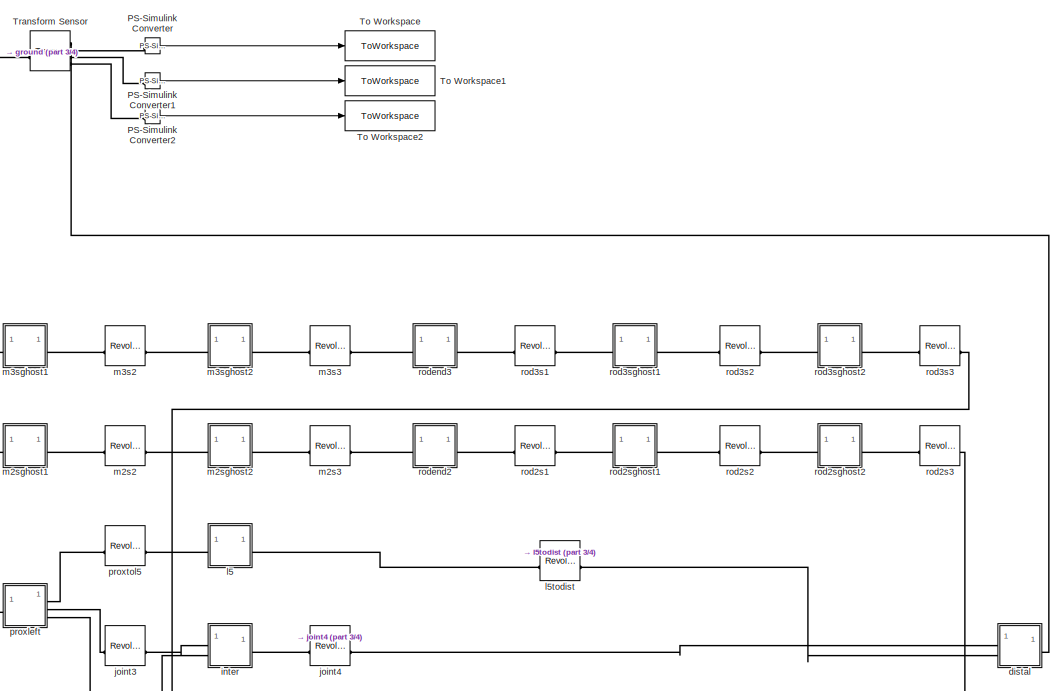
[diagram: index - part 1/4, right side, full height]
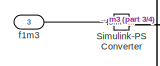
[diagram: index - part 2/4, top left region]
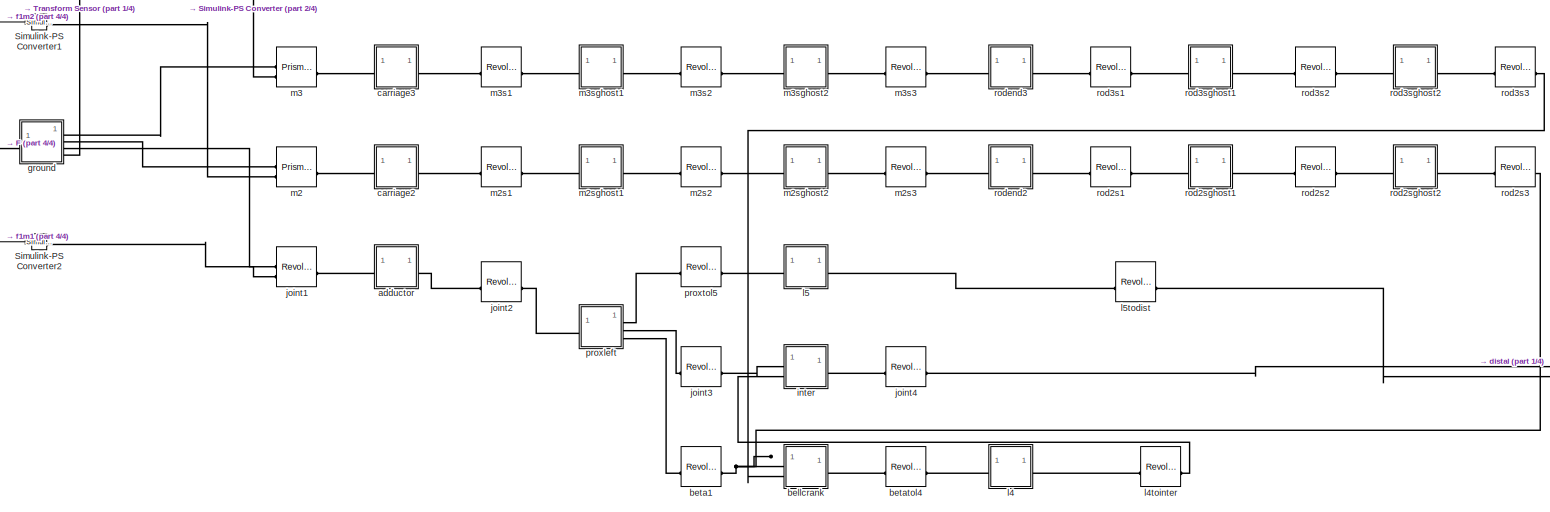
[diagram: index - part 3/4, full width, bottom band]
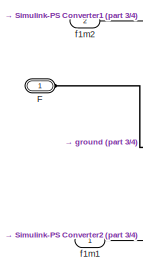
[diagram: index - part 4/4, middle left region]
BLOCK [SubSystem] index
BLOCK [PMIOPort] index/F
  Side = Left
BLOCK [Reference] index/PS-Simulink Converter  REF=nesl_utility/PS-Simulink
Converter
  SourceBlock = nesl_utility/PS-Simulink\nConverter
  SourceType = PS-Simulink\nConverter
BLOCK [Reference] index/PS-Simulink Converter1  REF=nesl_utility/PS-Simulink
Converter
  SourceBlock = nesl_utility/PS-Simulink\nConverter
  SourceType = PS-Simulink\nConverter
BLOCK [Reference] index/PS-Simulink Converter2  REF=nesl_utility/PS-Simulink
Converter
  SourceBlock = nesl_utility/PS-Simulink\nConverter
  SourceType = PS-Simulink\nConverter
BLOCK [Reference] index/Simulink-PS Converter  REF=nesl_utility/Simulink-PS
Converter
  SourceBlock = nesl_utility/Simulink-PS\nConverter
  SourceType = Simulink-PS\nConverter
BLOCK [Reference] index/Simulink-PS Converter1  REF=nesl_utility/Simulink-PS
Converter
  SourceBlock = nesl_utility/Simulink-PS\nConverter
  SourceType = Simulink-PS\nConverter
BLOCK [Reference] index/Simulink-PS Converter2  REF=nesl_utility/Simulink-PS
Converter
  SourceBlock = nesl_utility/Simulink-PS\nConverter
  SourceType = Simulink-PS\nConverter
BLOCK [ToWorkspace] index/To Workspace
  FixptAsFi = on
  MaxDataPoints = inf
  SampleTime = -1
  SaveFormat = Timeseries
  VariableName = indexX
BLOCK [ToWorkspace] index/To Workspace1
  FixptAsFi = on
  MaxDataPoints = inf
  SampleTime = -1
  SaveFormat = Timeseries
  VariableName = indexY
BLOCK [ToWorkspace] index/To Workspace2
  FixptAsFi = on
  MaxDataPoints = inf
  SampleTime = -1
  SaveFormat = Timeseries
  VariableName = indexZ
BLOCK [Reference] index/Transform Sensor  REF=sm_lib/Frames and
Transforms/Transform
Sensor
  SourceBlock = sm_lib/Frames and\nTransforms/Transform\nSensor
  SourceType = Transform\nSensor
BLOCK [SubSystem] index/adductor
BLOCK [PMIOPort] index/adductor/F
  Side = Left
BLOCK [PMIOPort] index/adductor/F1
  Port = 2
  Side = Right
BLOCK [Reference] index/adductor/Inertia  REF=sm_lib/Body Elements/Inertia
  SourceBlock = sm_lib/Body Elements/Inertia
  SourceType = Inertia
BLOCK [Reference] index/adductor/InertiaOriginTransform  REF=sm_lib/Frames and
Transforms/Rigid
Transform
  SourceBlock = sm_lib/Frames and\nTransforms/Rigid\nTransform
  SourceType = Rigid\nTransform
BLOCK [Reference] index/adductor/ReferenceFrame  REF=sm_lib/Frames and
Transforms/Reference
Frame
  SourceBlock = sm_lib/Frames and\nTransforms/Reference\nFrame
  SourceType = Reference\nFrame
BLOCK [Reference] index/adductor/Visual  REF=sm_lib/Body Elements/File Solid
  SourceBlock = sm_lib/Body Elements/File Solid
  SourceType = File Solid
BLOCK [Reference] index/adductor/VisualOriginTransform  REF=sm_lib/Frames and
Transforms/Rigid
Transform
  SourceBlock = sm_lib/Frames and\nTransforms/Rigid\nTransform
  SourceType = Rigid\nTransform
BLOCK [Reference] index/adductor/joint1_AxisInvTransform  REF=sm_lib/Frames and
Transforms/Rigid
Transform
  SourceBlock = sm_lib/Frames and\nTransforms/Rigid\nTransform
  SourceType = Rigid\nTransform
BLOCK [Reference] index/adductor/joint2_AxisTransform  REF=sm_lib/Frames and
Transforms/Rigid
Transform
  SourceBlock = sm_lib/Frames and\nTransforms/Rigid\nTransform
  SourceType = Rigid\nTransform
BLOCK [Reference] index/adductor/joint2_OriginTransform  REF=sm_lib/Frames and
Transforms/Rigid
Transform
  SourceBlock = sm_lib/Frames and\nTransforms/Rigid\nTransform
  SourceType = Rigid\nTransform
BLOCK [SubSystem] index/bellcrank
BLOCK [PMIOPort] index/bellcrank/F
  Side = Left
BLOCK [PMIOPort] index/bellcrank/F1
  Port = 2
  Side = Right
BLOCK [PMIOPort] index/bellcrank/F2
  Port = 3
  Side = Left
BLOCK [Reference] index/bellcrank/Inertia  REF=sm_lib/Body Elements/Inertia
  SourceBlock = sm_lib/Body Elements/Inertia
  SourceType = Inertia
BLOCK [Reference] index/bellcrank/InertiaOriginTransform  REF=sm_lib/Frames and
Transforms/Rigid
Transform
  SourceBlock = sm_lib/Frames and\nTransforms/Rigid\nTransform
  SourceType = Rigid\nTransform
BLOCK [Reference] index/bellcrank/ReferenceFrame  REF=sm_lib/Frames and
Transforms/Reference
Frame
  SourceBlock = sm_lib/Frames and\nTransforms/Reference\nFrame
  SourceType = Reference\nFrame
BLOCK [Reference] index/bellcrank/Visual  REF=sm_lib/Body Elements/File Solid
  SourceBlock = sm_lib/Body Elements/File Solid
  SourceType = File Solid
BLOCK [Reference] index/bellcrank/VisualOriginTransform  REF=sm_lib/Frames and
Transforms/Rigid
Transform
  SourceBlock = sm_lib/Frames and\nTransforms/Rigid\nTransform
  SourceType = Rigid\nTransform
BLOCK [Reference] index/bellcrank/beta1_AxisInvTransform  REF=sm_lib/Frames and
Transforms/Rigid
Transform
  SourceBlock = sm_lib/Frames and\nTransforms/Rigid\nTransform
  SourceType = Rigid\nTransform
BLOCK [Reference] index/bellcrank/beta1_AxisInvTransform1  REF=sm_lib/Frames and
Transforms/Rigid
Transform
  SourceBlock = sm_lib/Frames and\nTransforms/Rigid\nTransform
  SourceType = Rigid\nTransform
BLOCK [Reference] index/bellcrank/betatol4_AxisTransform  REF=sm_lib/Frames and
Transforms/Rigid
Transform
  SourceBlock = sm_lib/Frames and\nTransforms/Rigid\nTransform
  SourceType = Rigid\nTransform
BLOCK [Reference] index/bellcrank/betatol4_OriginTransform  REF=sm_lib/Frames and
Transforms/Rigid
Transform
  SourceBlock = sm_lib/Frames and\nTransforms/Rigid\nTransform
  SourceType = Rigid\nTransform
BLOCK [Reference] index/beta1  REF=sm_lib/Joints/Revolute Joint
  SourceBlock = sm_lib/Joints/Revolute Joint
  SourceType = Revolute Joint
BLOCK [Reference] index/betatol4  REF=sm_lib/Joints/Revolute Joint
  SourceBlock = sm_lib/Joints/Revolute Joint
  SourceType = Revolute Joint
BLOCK [SubSystem] index/carriage2
BLOCK [PMIOPort] index/carriage2/F
  Side = Left
BLOCK [PMIOPort] index/carriage2/F1
  Port = 2
  Side = Right
BLOCK [Reference] index/carriage2/Inertia  REF=sm_lib/Body Elements/Inertia
  SourceBlock = sm_lib/Body Elements/Inertia
  SourceType = Inertia
BLOCK [Reference] index/carriage2/InertiaOriginTransform  REF=sm_lib/Frames and
Transforms/Rigid
Transform
  SourceBlock = sm_lib/Frames and\nTransforms/Rigid\nTransform
  SourceType = Rigid\nTransform
BLOCK [Reference] index/carriage2/ReferenceFrame  REF=sm_lib/Frames and
Transforms/Reference
Frame
  SourceBlock = sm_lib/Frames and\nTransforms/Reference\nFrame
  SourceType = Reference\nFrame
BLOCK [Reference] index/carriage2/Visual  REF=sm_lib/Body Elements/File Solid
  SourceBlock = sm_lib/Body Elements/File Solid
  SourceType = File Solid
BLOCK [Reference] index/carriage2/VisualOriginTransform  REF=sm_lib/Frames and
Transforms/Rigid
Transform
  SourceBlock = sm_lib/Frames and\nTransforms/Rigid\nTransform
  SourceType = Rigid\nTransform
BLOCK [Reference] index/carriage2/m2_AxisInvTransform  REF=sm_lib/Frames and
Transforms/Rigid
Transform
  SourceBlock = sm_lib/Frames and\nTransforms/Rigid\nTransform
  SourceType = Rigid\nTransform
BLOCK [Reference] index/carriage2/m2s1_AxisTransform  REF=sm_lib/Frames and
Transforms/Rigid
Transform
  SourceBlock = sm_lib/Frames and\nTransforms/Rigid\nTransform
  SourceType = Rigid\nTransform
BLOCK [Reference] index/carriage2/m2s1_OriginTransform  REF=sm_lib/Frames and
Transforms/Rigid
Transform
  SourceBlock = sm_lib/Frames and\nTransforms/Rigid\nTransform
  SourceType = Rigid\nTransform
BLOCK [SubSystem] index/carriage3
BLOCK [PMIOPort] index/carriage3/F
  Side = Left
BLOCK [PMIOPort] index/carriage3/F1
  Port = 2
  Side = Right
BLOCK [Reference] index/carriage3/Inertia  REF=sm_lib/Body Elements/Inertia
  SourceBlock = sm_lib/Body Elements/Inertia
  SourceType = Inertia
BLOCK [Reference] index/carriage3/InertiaOriginTransform  REF=sm_lib/Frames and
Transforms/Rigid
Transform
  SourceBlock = sm_lib/Frames and\nTransforms/Rigid\nTransform
  SourceType = Rigid\nTransform
BLOCK [Reference] index/carriage3/ReferenceFrame  REF=sm_lib/Frames and
Transforms/Reference
Frame
  SourceBlock = sm_lib/Frames and\nTransforms/Reference\nFrame
  SourceType = Reference\nFrame
BLOCK [Reference] index/carriage3/Visual  REF=sm_lib/Body Elements/File Solid
  SourceBlock = sm_lib/Body Elements/File Solid
  SourceType = File Solid
BLOCK [Reference] index/carriage3/VisualOriginTransform  REF=sm_lib/Frames and
Transforms/Rigid
Transform
  SourceBlock = sm_lib/Frames and\nTransforms/Rigid\nTransform
  SourceType = Rigid\nTransform
BLOCK [Reference] index/carriage3/m3_AxisInvTransform  REF=sm_lib/Frames and
Transforms/Rigid
Transform
  SourceBlock = sm_lib/Frames and\nTransforms/Rigid\nTransform
  SourceType = Rigid\nTransform
BLOCK [Reference] index/carriage3/m3s1_AxisTransform  REF=sm_lib/Frames and
Transforms/Rigid
Transform
  SourceBlock = sm_lib/Frames and\nTransforms/Rigid\nTransform
  SourceType = Rigid\nTransform
BLOCK [Reference] index/carriage3/m3s1_OriginTransform  REF=sm_lib/Frames and
Transforms/Rigid
Transform
  SourceBlock = sm_lib/Frames and\nTransforms/Rigid\nTransform
  SourceType = Rigid\nTransform
BLOCK [SubSystem] index/distal
BLOCK [PMIOPort] index/distal/F
  Side = Left
BLOCK [PMIOPort] index/distal/F1
  Port = 2
  Side = Left
BLOCK [PMIOPort] index/distal/F2
  Port = 3
  Side = Right
BLOCK [Reference] index/distal/Inertia  REF=sm_lib/Body Elements/Inertia
  SourceBlock = sm_lib/Body Elements/Inertia
  SourceType = Inertia
BLOCK [Reference] index/distal/InertiaOriginTransform  REF=sm_lib/Frames and
Transforms/Rigid
Transform
  SourceBlock = sm_lib/Frames and\nTransforms/Rigid\nTransform
  SourceType = Rigid\nTransform
BLOCK [Reference] index/distal/ReferenceFrame  REF=sm_lib/Frames and
Transforms/Reference
Frame
  SourceBlock = sm_lib/Frames and\nTransforms/Reference\nFrame
  SourceType = Reference\nFrame
BLOCK [Reference] index/distal/Visual  REF=sm_lib/Body Elements/File Solid
  SourceBlock = sm_lib/Body Elements/File Solid
  SourceType = File Solid
BLOCK [Reference] index/distal/VisualOriginTransform  REF=sm_lib/Frames and
Transforms/Rigid
Transform
  SourceBlock = sm_lib/Frames and\nTransforms/Rigid\nTransform
  SourceType = Rigid\nTransform
BLOCK [Reference] index/distal/distalOUT_AxisTransform  REF=sm_lib/Frames and
Transforms/Rigid
Transform
  SourceBlock = sm_lib/Frames and\nTransforms/Rigid\nTransform
  SourceType = Rigid\nTransform
BLOCK [Reference] index/distal/distalOUT_OriginTransform  REF=sm_lib/Frames and
Transforms/Rigid
Transform
  SourceBlock = sm_lib/Frames and\nTransforms/Rigid\nTransform
  SourceType = Rigid\nTransform
BLOCK [Reference] index/distal/joint42_AxisInvTransform1  REF=sm_lib/Frames and
Transforms/Rigid
Transform
  SourceBlock = sm_lib/Frames and\nTransforms/Rigid\nTransform
  SourceType = Rigid\nTransform
BLOCK [Reference] index/distal/joint4_AxisInvTransform  REF=sm_lib/Frames and
Transforms/Rigid
Transform
  SourceBlock = sm_lib/Frames and\nTransforms/Rigid\nTransform
  SourceType = Rigid\nTransform
BLOCK [Inport] index/f1m1
  IconDisplay = Signal name
BLOCK [Inport] index/f1m2
  IconDisplay = Signal name
  Port = 2
BLOCK [Inport] index/f1m3
  IconDisplay = Signal name
  Port = 3
BLOCK [SubSystem] index/ground
BLOCK [PMIOPort] index/ground/F
  Side = Left
BLOCK [PMIOPort] index/ground/F1
  Port = 4
  Side = Right
BLOCK [PMIOPort] index/ground/F2
  Port = 3
  Side = Right
BLOCK [PMIOPort] index/ground/F3
  Port = 2
  Side = Right
BLOCK [PMIOPort] index/ground/F4
  Port = 5
  Side = Right
BLOCK [Reference] index/ground/Inertia  REF=sm_lib/Body Elements/Inertia
  SourceBlock = sm_lib/Body Elements/Inertia
  SourceType = Inertia
BLOCK [Reference] index/ground/Inertia1  REF=sm_lib/Body Elements/Inertia
  SourceBlock = sm_lib/Body Elements/Inertia
  SourceType = Inertia
BLOCK [Reference] index/ground/InertiaOriginTransform  REF=sm_lib/Frames and
Transforms/Rigid
Transform
  SourceBlock = sm_lib/Frames and\nTransforms/Rigid\nTransform
  SourceType = Rigid\nTransform
BLOCK [Reference] index/ground/InertiaOriginTransform1  REF=sm_lib/Frames and
Transforms/Rigid
Transform
  SourceBlock = sm_lib/Frames and\nTransforms/Rigid\nTransform
  SourceType = Rigid\nTransform
BLOCK [Reference] index/ground/MCP_Static_OriginTransform1  REF=sm_lib/Frames and
Transforms/Rigid
Transform
  SourceBlock = sm_lib/Frames and\nTransforms/Rigid\nTransform
  SourceType = Rigid\nTransform
BLOCK [Reference] index/ground/MCP_static_AxisTransform  REF=sm_lib/Frames and
Transforms/Rigid
Transform
  SourceBlock = sm_lib/Frames and\nTransforms/Rigid\nTransform
  SourceType = Rigid\nTransform
BLOCK [Reference] index/ground/ReferenceFrame  REF=sm_lib/Frames and
Transforms/Reference
Frame
  SourceBlock = sm_lib/Frames and\nTransforms/Reference\nFrame
  SourceType = Reference\nFrame
BLOCK [Reference] index/ground/Visual  REF=sm_lib/Body Elements/File Solid
  SourceBlock = sm_lib/Body Elements/File Solid
  SourceType = File Solid
BLOCK [Reference] index/ground/VisualOriginTransform  REF=sm_lib/Frames and
Transforms/Rigid
Transform
  SourceBlock = sm_lib/Frames and\nTransforms/Rigid\nTransform
  SourceType = Rigid\nTransform
BLOCK [Reference] index/ground/joint1_AxisTransform  REF=sm_lib/Frames and
Transforms/Rigid
Transform
  SourceBlock = sm_lib/Frames and\nTransforms/Rigid\nTransform
  SourceType = Rigid\nTransform
BLOCK [Reference] index/ground/joint1_OriginTransform  REF=sm_lib/Frames and
Transforms/Rigid
Transform
  SourceBlock = sm_lib/Frames and\nTransforms/Rigid\nTransform
  SourceType = Rigid\nTransform
BLOCK [Reference] index/ground/m2_AxisTransform  REF=sm_lib/Frames and
Transforms/Rigid
Transform
  SourceBlock = sm_lib/Frames and\nTransforms/Rigid\nTransform
  SourceType = Rigid\nTransform
BLOCK [Reference] index/ground/m2_OriginTransform  REF=sm_lib/Frames and
Transforms/Rigid
Transform
  SourceBlock = sm_lib/Frames and\nTransforms/Rigid\nTransform
  SourceType = Rigid\nTransform
BLOCK [Reference] index/ground/m3_AxisTransform  REF=sm_lib/Frames and
Transforms/Rigid
Transform
  SourceBlock = sm_lib/Frames and\nTransforms/Rigid\nTransform
  SourceType = Rigid\nTransform
BLOCK [Reference] index/ground/m3_OriginTransform  REF=sm_lib/Frames and
Transforms/Rigid
Transform
  SourceBlock = sm_lib/Frames and\nTransforms/Rigid\nTransform
  SourceType = Rigid\nTransform
BLOCK [SubSystem] index/inter
BLOCK [PMIOPort] index/inter/F
  Side = Left
BLOCK [PMIOPort] index/inter/F1
  Port = 2
  Side = Right
BLOCK [PMIOPort] index/inter/F2
  Port = 3
  Side = Left
BLOCK [Reference] index/inter/Inertia  REF=sm_lib/Body Elements/Inertia
  SourceBlock = sm_lib/Body Elements/Inertia
  SourceType = Inertia
BLOCK [Reference] index/inter/InertiaOriginTransform  REF=sm_lib/Frames and
Transforms/Rigid
Transform
  SourceBlock = sm_lib/Frames and\nTransforms/Rigid\nTransform
  SourceType = Rigid\nTransform
BLOCK [Reference] index/inter/ReferenceFrame  REF=sm_lib/Frames and
Transforms/Reference
Frame
  SourceBlock = sm_lib/Frames and\nTransforms/Reference\nFrame
  SourceType = Reference\nFrame
BLOCK [Reference] index/inter/Visual  REF=sm_lib/Body Elements/File Solid
  SourceBlock = sm_lib/Body Elements/File Solid
  SourceType = File Solid
BLOCK [Reference] index/inter/VisualOriginTransform  REF=sm_lib/Frames and
Transforms/Rigid
Transform
  SourceBlock = sm_lib/Frames and\nTransforms/Rigid\nTransform
  SourceType = Rigid\nTransform
BLOCK [Reference] index/inter/joint3_AxisInvTransform  REF=sm_lib/Frames and
Transforms/Rigid
Transform
  SourceBlock = sm_lib/Frames and\nTransforms/Rigid\nTransform
  SourceType = Rigid\nTransform
BLOCK [Reference] index/inter/joint3_AxisInvTransform1  REF=sm_lib/Frames and
Transforms/Rigid
Transform
  SourceBlock = sm_lib/Frames and\nTransforms/Rigid\nTransform
  SourceType = Rigid\nTransform
BLOCK [Reference] index/inter/joint4_AxisTransform  REF=sm_lib/Frames and
Transforms/Rigid
Transform
  SourceBlock = sm_lib/Frames and\nTransforms/Rigid\nTransform
  SourceType = Rigid\nTransform
BLOCK [Reference] index/inter/joint4_OriginTransform  REF=sm_lib/Frames and
Transforms/Rigid
Transform
  SourceBlock = sm_lib/Frames and\nTransforms/Rigid\nTransform
  SourceType = Rigid\nTransform
BLOCK [Reference] index/joint1  REF=sm_lib/Joints/Revolute Joint
  SourceBlock = sm_lib/Joints/Revolute Joint
  SourceType = Revolute Joint
BLOCK [Reference] index/joint2  REF=sm_lib/Joints/Revolute Joint
  SourceBlock = sm_lib/Joints/Revolute Joint
  SourceType = Revolute Joint
BLOCK [Reference] index/joint3  REF=sm_lib/Joints/Revolute Joint
  SourceBlock = sm_lib/Joints/Revolute Joint
  SourceType = Revolute Joint
BLOCK [Reference] index/joint4  REF=sm_lib/Joints/Revolute Joint
  SourceBlock = sm_lib/Joints/Revolute Joint
  SourceType = Revolute Joint
BLOCK [SubSystem] index/l4
BLOCK [PMIOPort] index/l4/F
  Side = Left
BLOCK [PMIOPort] index/l4/F1
  Port = 2
  Side = Right
BLOCK [Reference] index/l4/Inertia  REF=sm_lib/Body Elements/Inertia
  SourceBlock = sm_lib/Body Elements/Inertia
  SourceType = Inertia
BLOCK [Reference] index/l4/InertiaOriginTransform  REF=sm_lib/Frames and
Transforms/Rigid
Transform
  SourceBlock = sm_lib/Frames and\nTransforms/Rigid\nTransform
  SourceType = Rigid\nTransform
BLOCK [Reference] index/l4/ReferenceFrame  REF=sm_lib/Frames and
Transforms/Reference
Frame
  SourceBlock = sm_lib/Frames and\nTransforms/Reference\nFrame
  SourceType = Reference\nFrame
BLOCK [Reference] index/l4/Visual  REF=sm_lib/Body Elements/File Solid
  SourceBlock = sm_lib/Body Elements/File Solid
  SourceType = File Solid
BLOCK [Reference] index/l4/VisualOriginTransform  REF=sm_lib/Frames and
Transforms/Rigid
Transform
  SourceBlock = sm_lib/Frames and\nTransforms/Rigid\nTransform
  SourceType = Rigid\nTransform
BLOCK [Reference] index/l4/betatol4_AxisInvTransform  REF=sm_lib/Frames and
Transforms/Rigid
Transform
  SourceBlock = sm_lib/Frames and\nTransforms/Rigid\nTransform
  SourceType = Rigid\nTransform
BLOCK [Reference] index/l4/l4tointer_AxisTransform  REF=sm_lib/Frames and
Transforms/Rigid
Transform
  SourceBlock = sm_lib/Frames and\nTransforms/Rigid\nTransform
  SourceType = Rigid\nTransform
BLOCK [Reference] index/l4/l4tointer_OriginTransform  REF=sm_lib/Frames and
Transforms/Rigid
Transform
  SourceBlock = sm_lib/Frames and\nTransforms/Rigid\nTransform
  SourceType = Rigid\nTransform
BLOCK [Reference] index/l4tointer  REF=sm_lib/Joints/Revolute Joint
  SourceBlock = sm_lib/Joints/Revolute Joint
  SourceType = Revolute Joint
BLOCK [SubSystem] index/l5
BLOCK [PMIOPort] index/l5/F
  Side = Left
BLOCK [PMIOPort] index/l5/F1
  Port = 2
  Side = Right
BLOCK [Reference] index/l5/Inertia  REF=sm_lib/Body Elements/Inertia
  SourceBlock = sm_lib/Body Elements/Inertia
  SourceType = Inertia
BLOCK [Reference] index/l5/InertiaOriginTransform  REF=sm_lib/Frames and
Transforms/Rigid
Transform
  SourceBlock = sm_lib/Frames and\nTransforms/Rigid\nTransform
  SourceType = Rigid\nTransform
BLOCK [Reference] index/l5/ReferenceFrame  REF=sm_lib/Frames and
Transforms/Reference
Frame
  SourceBlock = sm_lib/Frames and\nTransforms/Reference\nFrame
  SourceType = Reference\nFrame
BLOCK [Reference] index/l5/Visual  REF=sm_lib/Body Elements/File Solid
  SourceBlock = sm_lib/Body Elements/File Solid
  SourceType = File Solid
BLOCK [Reference] index/l5/VisualOriginTransform  REF=sm_lib/Frames and
Transforms/Rigid
Transform
  SourceBlock = sm_lib/Frames and\nTransforms/Rigid\nTransform
  SourceType = Rigid\nTransform
BLOCK [Reference] index/l5/l5todistal_AxisTransform  REF=sm_lib/Frames and
Transforms/Rigid
Transform
  SourceBlock = sm_lib/Frames and\nTransforms/Rigid\nTransform
  SourceType = Rigid\nTransform
BLOCK [Reference] index/l5/l5todistal_OriginTransform  REF=sm_lib/Frames and
Transforms/Rigid
Transform
  SourceBlock = sm_lib/Frames and\nTransforms/Rigid\nTransform
  SourceType = Rigid\nTransform
BLOCK [Reference] index/l5/proxtol5_AxisInvTransform  REF=sm_lib/Frames and
Transforms/Rigid
Transform
  SourceBlock = sm_lib/Frames and\nTransforms/Rigid\nTransform
  SourceType = Rigid\nTransform
BLOCK [Reference] index/l5todist  REF=sm_lib/Joints/Revolute Joint
  SourceBlock = sm_lib/Joints/Revolute Joint
  SourceType = Revolute Joint
BLOCK [Reference] index/m2  REF=sm_lib/Joints/Prismatic
Joint
  SourceBlock = sm_lib/Joints/Prismatic\nJoint
  SourceType = Prismatic\nJoint
BLOCK [Reference] index/m2s1  REF=sm_lib/Joints/Revolute Joint
  SourceBlock = sm_lib/Joints/Revolute Joint
  SourceType = Revolute Joint
BLOCK [Reference] index/m2s2  REF=sm_lib/Joints/Revolute Joint
  SourceBlock = sm_lib/Joints/Revolute Joint
  SourceType = Revolute Joint
BLOCK [Reference] index/m2s3  REF=sm_lib/Joints/Revolute Joint
  SourceBlock = sm_lib/Joints/Revolute Joint
  SourceType = Revolute Joint
BLOCK [SubSystem] index/m2sghost1
BLOCK [PMIOPort] index/m2sghost1/F
  Side = Left
BLOCK [PMIOPort] index/m2sghost1/F1
  Port = 2
  Side = Right
BLOCK [Reference] index/m2sghost1/Inertia  REF=sm_lib/Body Elements/Inertia
  SourceBlock = sm_lib/Body Elements/Inertia
  SourceType = Inertia
BLOCK [Reference] index/m2sghost1/InertiaOriginTransform  REF=sm_lib/Frames and
Transforms/Rigid
Transform
  SourceBlock = sm_lib/Frames and\nTransforms/Rigid\nTransform
  SourceType = Rigid\nTransform
BLOCK [Reference] index/m2sghost1/ReferenceFrame  REF=sm_lib/Frames and
Transforms/Reference
Frame
  SourceBlock = sm_lib/Frames and\nTransforms/Reference\nFrame
  SourceType = Reference\nFrame
BLOCK [Reference] index/m2sghost1/m2s1_AxisInvTransform  REF=sm_lib/Frames and
Transforms/Rigid
Transform
  SourceBlock = sm_lib/Frames and\nTransforms/Rigid\nTransform
  SourceType = Rigid\nTransform
BLOCK [Reference] index/m2sghost1/m2s2_AxisTransform  REF=sm_lib/Frames and
Transforms/Rigid
Transform
  SourceBlock = sm_lib/Frames and\nTransforms/Rigid\nTransform
  SourceType = Rigid\nTransform
BLOCK [Reference] index/m2sghost1/m2s2_OriginTransform  REF=sm_lib/Frames and
Transforms/Rigid
Transform
  SourceBlock = sm_lib/Frames and\nTransforms/Rigid\nTransform
  SourceType = Rigid\nTransform
BLOCK [SubSystem] index/m2sghost2
BLOCK [PMIOPort] index/m2sghost2/F
  Side = Left
BLOCK [PMIOPort] index/m2sghost2/F1
  Port = 2
  Side = Right
BLOCK [Reference] index/m2sghost2/Inertia  REF=sm_lib/Body Elements/Inertia
  SourceBlock = sm_lib/Body Elements/Inertia
  SourceType = Inertia
BLOCK [Reference] index/m2sghost2/InertiaOriginTransform  REF=sm_lib/Frames and
Transforms/Rigid
Transform
  SourceBlock = sm_lib/Frames and\nTransforms/Rigid\nTransform
  SourceType = Rigid\nTransform
BLOCK [Reference] index/m2sghost2/ReferenceFrame  REF=sm_lib/Frames and
Transforms/Reference
Frame
  SourceBlock = sm_lib/Frames and\nTransforms/Reference\nFrame
  SourceType = Reference\nFrame
BLOCK [Reference] index/m2sghost2/m2s2_AxisInvTransform  REF=sm_lib/Frames and
Transforms/Rigid
Transform
  SourceBlock = sm_lib/Frames and\nTransforms/Rigid\nTransform
  SourceType = Rigid\nTransform
BLOCK [Reference] index/m2sghost2/m2s3_AxisTransform  REF=sm_lib/Frames and
Transforms/Rigid
Transform
  SourceBlock = sm_lib/Frames and\nTransforms/Rigid\nTransform
  SourceType = Rigid\nTransform
BLOCK [Reference] index/m2sghost2/m2s3_OriginTransform  REF=sm_lib/Frames and
Transforms/Rigid
Transform
  SourceBlock = sm_lib/Frames and\nTransforms/Rigid\nTransform
  SourceType = Rigid\nTransform
BLOCK [Reference] index/m3  REF=sm_lib/Joints/Prismatic
Joint
  SourceBlock = sm_lib/Joints/Prismatic\nJoint
  SourceType = Prismatic\nJoint
BLOCK [Reference] index/m3s1  REF=sm_lib/Joints/Revolute Joint
  SourceBlock = sm_lib/Joints/Revolute Joint
  SourceType = Revolute Joint
BLOCK [Reference] index/m3s2  REF=sm_lib/Joints/Revolute Joint
  SourceBlock = sm_lib/Joints/Revolute Joint
  SourceType = Revolute Joint
BLOCK [Reference] index/m3s3  REF=sm_lib/Joints/Revolute Joint
  SourceBlock = sm_lib/Joints/Revolute Joint
  SourceType = Revolute Joint
BLOCK [SubSystem] index/m3sghost1
BLOCK [PMIOPort] index/m3sghost1/F
  Side = Left
BLOCK [PMIOPort] index/m3sghost1/F1
  Port = 2
  Side = Right
BLOCK [Reference] index/m3sghost1/Inertia  REF=sm_lib/Body Elements/Inertia
  SourceBlock = sm_lib/Body Elements/Inertia
  SourceType = Inertia
BLOCK [Reference] index/m3sghost1/InertiaOriginTransform  REF=sm_lib/Frames and
Transforms/Rigid
Transform
  SourceBlock = sm_lib/Frames and\nTransforms/Rigid\nTransform
  SourceType = Rigid\nTransform
BLOCK [Reference] index/m3sghost1/ReferenceFrame  REF=sm_lib/Frames and
Transforms/Reference
Frame
  SourceBlock = sm_lib/Frames and\nTransforms/Reference\nFrame
  SourceType = Reference\nFrame
BLOCK [Reference] index/m3sghost1/m3s1_AxisInvTransform  REF=sm_lib/Frames and
Transforms/Rigid
Transform
  SourceBlock = sm_lib/Frames and\nTransforms/Rigid\nTransform
  SourceType = Rigid\nTransform
BLOCK [Reference] index/m3sghost1/m3s2_AxisTransform  REF=sm_lib/Frames and
Transforms/Rigid
Transform
  SourceBlock = sm_lib/Frames and\nTransforms/Rigid\nTransform
  SourceType = Rigid\nTransform
BLOCK [Reference] index/m3sghost1/m3s2_OriginTransform  REF=sm_lib/Frames and
Transforms/Rigid
Transform
  SourceBlock = sm_lib/Frames and\nTransforms/Rigid\nTransform
  SourceType = Rigid\nTransform
BLOCK [SubSystem] index/m3sghost2
BLOCK [PMIOPort] index/m3sghost2/F
  Side = Left
BLOCK [PMIOPort] index/m3sghost2/F1
  Port = 2
  Side = Right
BLOCK [Reference] index/m3sghost2/Inertia  REF=sm_lib/Body Elements/Inertia
  SourceBlock = sm_lib/Body Elements/Inertia
  SourceType = Inertia
BLOCK [Reference] index/m3sghost2/InertiaOriginTransform  REF=sm_lib/Frames and
Transforms/Rigid
Transform
  SourceBlock = sm_lib/Frames and\nTransforms/Rigid\nTransform
  SourceType = Rigid\nTransform
BLOCK [Reference] index/m3sghost2/ReferenceFrame  REF=sm_lib/Frames and
Transforms/Reference
Frame
  SourceBlock = sm_lib/Frames and\nTransforms/Reference\nFrame
  SourceType = Reference\nFrame
BLOCK [Reference] index/m3sghost2/m3s2_AxisInvTransform  REF=sm_lib/Frames and
Transforms/Rigid
Transform
  SourceBlock = sm_lib/Frames and\nTransforms/Rigid\nTransform
  SourceType = Rigid\nTransform
BLOCK [Reference] index/m3sghost2/m3s3_AxisTransform  REF=sm_lib/Frames and
Transforms/Rigid
Transform
  SourceBlock = sm_lib/Frames and\nTransforms/Rigid\nTransform
  SourceType = Rigid\nTransform
BLOCK [Reference] index/m3sghost2/m3s3_OriginTransform  REF=sm_lib/Frames and
Transforms/Rigid
Transform
  SourceBlock = sm_lib/Frames and\nTransforms/Rigid\nTransform
  SourceType = Rigid\nTransform
BLOCK [SubSystem] index/proxleft
BLOCK [PMIOPort] index/proxleft/F
  Side = Left
BLOCK [PMIOPort] index/proxleft/F1
  Port = 4
  Side = Right
BLOCK [PMIOPort] index/proxleft/F2
  Port = 3
  Side = Right
BLOCK [PMIOPort] index/proxleft/F3
  Port = 2
  Side = Right
BLOCK [Reference] index/proxleft/Inertia  REF=sm_lib/Body Elements/Inertia
  SourceBlock = sm_lib/Body Elements/Inertia
  SourceType = Inertia
BLOCK [Reference] index/proxleft/InertiaOriginTransform  REF=sm_lib/Frames and
Transforms/Rigid
Transform
  SourceBlock = sm_lib/Frames and\nTransforms/Rigid\nTransform
  SourceType = Rigid\nTransform
BLOCK [Reference] index/proxleft/ReferenceFrame  REF=sm_lib/Frames and
Transforms/Reference
Frame
  SourceBlock = sm_lib/Frames and\nTransforms/Reference\nFrame
  SourceType = Reference\nFrame
BLOCK [Reference] index/proxleft/Visual  REF=sm_lib/Body Elements/File Solid
  SourceBlock = sm_lib/Body Elements/File Solid
  SourceType = File Solid
BLOCK [Reference] index/proxleft/VisualOriginTransform  REF=sm_lib/Frames and
Transforms/Rigid
Transform
  SourceBlock = sm_lib/Frames and\nTransforms/Rigid\nTransform
  SourceType = Rigid\nTransform
BLOCK [Reference] index/proxleft/beta1_AxisTransform  REF=sm_lib/Frames and
Transforms/Rigid
Transform
  SourceBlock = sm_lib/Frames and\nTransforms/Rigid\nTransform
  SourceType = Rigid\nTransform
BLOCK [Reference] index/proxleft/beta1_OriginTransform  REF=sm_lib/Frames and
Transforms/Rigid
Transform
  SourceBlock = sm_lib/Frames and\nTransforms/Rigid\nTransform
  SourceType = Rigid\nTransform
BLOCK [Reference] index/proxleft/joint2_AxisInvTransform  REF=sm_lib/Frames and
Transforms/Rigid
Transform
  SourceBlock = sm_lib/Frames and\nTransforms/Rigid\nTransform
  SourceType = Rigid\nTransform
BLOCK [Reference] index/proxleft/joint3_AxisTransform  REF=sm_lib/Frames and
Transforms/Rigid
Transform
  SourceBlock = sm_lib/Frames and\nTransforms/Rigid\nTransform
  SourceType = Rigid\nTransform
BLOCK [Reference] index/proxleft/joint3_OriginTransform  REF=sm_lib/Frames and
Transforms/Rigid
Transform
  SourceBlock = sm_lib/Frames and\nTransforms/Rigid\nTransform
  SourceType = Rigid\nTransform
BLOCK [Reference] index/proxleft/proxtol5_AxisTransform  REF=sm_lib/Frames and
Transforms/Rigid
Transform
  SourceBlock = sm_lib/Frames and\nTransforms/Rigid\nTransform
  SourceType = Rigid\nTransform
BLOCK [Reference] index/proxleft/proxtol5_OriginTransform  REF=sm_lib/Frames and
Transforms/Rigid
Transform
  SourceBlock = sm_lib/Frames and\nTransforms/Rigid\nTransform
  SourceType = Rigid\nTransform
BLOCK [Reference] index/proxtol5  REF=sm_lib/Joints/Revolute Joint
  SourceBlock = sm_lib/Joints/Revolute Joint
  SourceType = Revolute Joint
BLOCK [Reference] index/rod2s1  REF=sm_lib/Joints/Revolute Joint
  SourceBlock = sm_lib/Joints/Revolute Joint
  SourceType = Revolute Joint
BLOCK [Reference] index/rod2s2  REF=sm_lib/Joints/Revolute Joint
  SourceBlock = sm_lib/Joints/Revolute Joint
  SourceType = Revolute Joint
BLOCK [Reference] index/rod2s3  REF=sm_lib/Joints/Revolute Joint
  SourceBlock = sm_lib/Joints/Revolute Joint
  SourceType = Revolute Joint
BLOCK [SubSystem] index/rod2sghost1
BLOCK [PMIOPort] index/rod2sghost1/F
  Side = Left
BLOCK [PMIOPort] index/rod2sghost1/F1
  Port = 2
  Side = Right
BLOCK [Reference] index/rod2sghost1/Inertia  REF=sm_lib/Body Elements/Inertia
  SourceBlock = sm_lib/Body Elements/Inertia
  SourceType = Inertia
BLOCK [Reference] index/rod2sghost1/InertiaOriginTransform  REF=sm_lib/Frames and
Transforms/Rigid
Transform
  SourceBlock = sm_lib/Frames and\nTransforms/Rigid\nTransform
  SourceType = Rigid\nTransform
BLOCK [Reference] index/rod2sghost1/ReferenceFrame  REF=sm_lib/Frames and
Transforms/Reference
Frame
  SourceBlock = sm_lib/Frames and\nTransforms/Reference\nFrame
  SourceType = Reference\nFrame
BLOCK [Reference] index/rod2sghost1/rod2s1_AxisInvTransform  REF=sm_lib/Frames and
Transforms/Rigid
Transform
  SourceBlock = sm_lib/Frames and\nTransforms/Rigid\nTransform
  SourceType = Rigid\nTransform
BLOCK [Reference] index/rod2sghost1/rod2s2_AxisTransform  REF=sm_lib/Frames and
Transforms/Rigid
Transform
  SourceBlock = sm_lib/Frames and\nTransforms/Rigid\nTransform
  SourceType = Rigid\nTransform
BLOCK [Reference] index/rod2sghost1/rod2s2_OriginTransform  REF=sm_lib/Frames and
Transforms/Rigid
Transform
  SourceBlock = sm_lib/Frames and\nTransforms/Rigid\nTransform
  SourceType = Rigid\nTransform
BLOCK [SubSystem] index/rod2sghost2
BLOCK [PMIOPort] index/rod2sghost2/F
  Side = Left
BLOCK [PMIOPort] index/rod2sghost2/F1
  Port = 2
  Side = Right
BLOCK [Reference] index/rod2sghost2/Inertia  REF=sm_lib/Body Elements/Inertia
  SourceBlock = sm_lib/Body Elements/Inertia
  SourceType = Inertia
BLOCK [Reference] index/rod2sghost2/InertiaOriginTransform  REF=sm_lib/Frames and
Transforms/Rigid
Transform
  SourceBlock = sm_lib/Frames and\nTransforms/Rigid\nTransform
  SourceType = Rigid\nTransform
BLOCK [Reference] index/rod2sghost2/ReferenceFrame  REF=sm_lib/Frames and
Transforms/Reference
Frame
  SourceBlock = sm_lib/Frames and\nTransforms/Reference\nFrame
  SourceType = Reference\nFrame
BLOCK [Reference] index/rod2sghost2/rod2s2_AxisInvTransform  REF=sm_lib/Frames and
Transforms/Rigid
Transform
  SourceBlock = sm_lib/Frames and\nTransforms/Rigid\nTransform
  SourceType = Rigid\nTransform
BLOCK [Reference] index/rod2sghost2/rod2s2_AxisTransform  REF=sm_lib/Frames and
Transforms/Rigid
Transform
  SourceBlock = sm_lib/Frames and\nTransforms/Rigid\nTransform
  SourceType = Rigid\nTransform
BLOCK [Reference] index/rod2sghost2/rod2s2_OriginTransform  REF=sm_lib/Frames and
Transforms/Rigid
Transform
  SourceBlock = sm_lib/Frames and\nTransforms/Rigid\nTransform
  SourceType = Rigid\nTransform
BLOCK [Reference] index/rod3s1  REF=sm_lib/Joints/Revolute Joint
  SourceBlock = sm_lib/Joints/Revolute Joint
  SourceType = Revolute Joint
BLOCK [Reference] index/rod3s2  REF=sm_lib/Joints/Revolute Joint
  SourceBlock = sm_lib/Joints/Revolute Joint
  SourceType = Revolute Joint
BLOCK [Reference] index/rod3s3  REF=sm_lib/Joints/Revolute Joint
  SourceBlock = sm_lib/Joints/Revolute Joint
  SourceType = Revolute Joint
BLOCK [SubSystem] index/rod3sghost1
BLOCK [PMIOPort] index/rod3sghost1/F
  Side = Left
BLOCK [PMIOPort] index/rod3sghost1/F1
  Port = 2
  Side = Right
BLOCK [Reference] index/rod3sghost1/Inertia  REF=sm_lib/Body Elements/Inertia
  SourceBlock = sm_lib/Body Elements/Inertia
  SourceType = Inertia
BLOCK [Reference] index/rod3sghost1/InertiaOriginTransform  REF=sm_lib/Frames and
Transforms/Rigid
Transform
  SourceBlock = sm_lib/Frames and\nTransforms/Rigid\nTransform
  SourceType = Rigid\nTransform
BLOCK [Reference] index/rod3sghost1/ReferenceFrame  REF=sm_lib/Frames and
Transforms/Reference
Frame
  SourceBlock = sm_lib/Frames and\nTransforms/Reference\nFrame
  SourceType = Reference\nFrame
BLOCK [Reference] index/rod3sghost1/rod3s1_AxisInvTransform  REF=sm_lib/Frames and
Transforms/Rigid
Transform
  SourceBlock = sm_lib/Frames and\nTransforms/Rigid\nTransform
  SourceType = Rigid\nTransform
BLOCK [Reference] index/rod3sghost1/rod3s2_AxisTransform  REF=sm_lib/Frames and
Transforms/Rigid
Transform
  SourceBlock = sm_lib/Frames and\nTransforms/Rigid\nTransform
  SourceType = Rigid\nTransform
BLOCK [Reference] index/rod3sghost1/rod3s2_OriginTransform  REF=sm_lib/Frames and
Transforms/Rigid
Transform
  SourceBlock = sm_lib/Frames and\nTransforms/Rigid\nTransform
  SourceType = Rigid\nTransform
BLOCK [SubSystem] index/rod3sghost2
BLOCK [PMIOPort] index/rod3sghost2/F
  Side = Left
BLOCK [PMIOPort] index/rod3sghost2/F1
  Port = 2
  Side = Right
BLOCK [Reference] index/rod3sghost2/Inertia  REF=sm_lib/Body Elements/Inertia
  SourceBlock = sm_lib/Body Elements/Inertia
  SourceType = Inertia
BLOCK [Reference] index/rod3sghost2/InertiaOriginTransform  REF=sm_lib/Frames and
Transforms/Rigid
Transform
  SourceBlock = sm_lib/Frames and\nTransforms/Rigid\nTransform
  SourceType = Rigid\nTransform
BLOCK [Reference] index/rod3sghost2/ReferenceFrame  REF=sm_lib/Frames and
Transforms/Reference
Frame
  SourceBlock = sm_lib/Frames and\nTransforms/Reference\nFrame
  SourceType = Reference\nFrame
BLOCK [Reference] index/rod3sghost2/rod3s2_AxisInvTransform  REF=sm_lib/Frames and
Transforms/Rigid
Transform
  SourceBlock = sm_lib/Frames and\nTransforms/Rigid\nTransform
  SourceType = Rigid\nTransform
BLOCK [Reference] index/rod3sghost2/rod3s2_AxisTransform  REF=sm_lib/Frames and
Transforms/Rigid
Transform
  SourceBlock = sm_lib/Frames and\nTransforms/Rigid\nTransform
  SourceType = Rigid\nTransform
BLOCK [Reference] index/rod3sghost2/rod3s2_OriginTransform  REF=sm_lib/Frames and
Transforms/Rigid
Transform
  SourceBlock = sm_lib/Frames and\nTransforms/Rigid\nTransform
  SourceType = Rigid\nTransform
BLOCK [SubSystem] index/rodend2
BLOCK [PMIOPort] index/rodend2/F
  Side = Left
BLOCK [PMIOPort] index/rodend2/F1
  Port = 2
  Side = Right
BLOCK [Reference] index/rodend2/Inertia  REF=sm_lib/Body Elements/Inertia
  SourceBlock = sm_lib/Body Elements/Inertia
  SourceType = Inertia
BLOCK [Reference] index/rodend2/InertiaOriginTransform  REF=sm_lib/Frames and
Transforms/Rigid
Transform
  SourceBlock = sm_lib/Frames and\nTransforms/Rigid\nTransform
  SourceType = Rigid\nTransform
BLOCK [Reference] index/rodend2/ReferenceFrame  REF=sm_lib/Frames and
Transforms/Reference
Frame
  SourceBlock = sm_lib/Frames and\nTransforms/Reference\nFrame
  SourceType = Reference\nFrame
BLOCK [Reference] index/rodend2/Visual  REF=sm_lib/Body Elements/File Solid
  SourceBlock = sm_lib/Body Elements/File Solid
  SourceType = File Solid
BLOCK [Reference] index/rodend2/VisualOriginTransform  REF=sm_lib/Frames and
Transforms/Rigid
Transform
  SourceBlock = sm_lib/Frames and\nTransforms/Rigid\nTransform
  SourceType = Rigid\nTransform
BLOCK [Reference] index/rodend2/m2s3_AxisInvTransform  REF=sm_lib/Frames and
Transforms/Rigid
Transform
  SourceBlock = sm_lib/Frames and\nTransforms/Rigid\nTransform
  SourceType = Rigid\nTransform
BLOCK [Reference] index/rodend2/rod2s1_AxisTransform  REF=sm_lib/Frames and
Transforms/Rigid
Transform
  SourceBlock = sm_lib/Frames and\nTransforms/Rigid\nTransform
  SourceType = Rigid\nTransform
BLOCK [Reference] index/rodend2/rod2s1_OriginTransform  REF=sm_lib/Frames and
Transforms/Rigid
Transform
  SourceBlock = sm_lib/Frames and\nTransforms/Rigid\nTransform
  SourceType = Rigid\nTransform
BLOCK [SubSystem] index/rodend3
BLOCK [PMIOPort] index/rodend3/F
  Side = Left
BLOCK [PMIOPort] index/rodend3/F1
  Port = 2
  Side = Right
BLOCK [Reference] index/rodend3/Inertia  REF=sm_lib/Body Elements/Inertia
  SourceBlock = sm_lib/Body Elements/Inertia
  SourceType = Inertia
BLOCK [Reference] index/rodend3/InertiaOriginTransform  REF=sm_lib/Frames and
Transforms/Rigid
Transform
  SourceBlock = sm_lib/Frames and\nTransforms/Rigid\nTransform
  SourceType = Rigid\nTransform
BLOCK [Reference] index/rodend3/ReferenceFrame  REF=sm_lib/Frames and
Transforms/Reference
Frame
  SourceBlock = sm_lib/Frames and\nTransforms/Reference\nFrame
  SourceType = Reference\nFrame
BLOCK [Reference] index/rodend3/Visual  REF=sm_lib/Body Elements/File Solid
  SourceBlock = sm_lib/Body Elements/File Solid
  SourceType = File Solid
BLOCK [Reference] index/rodend3/VisualOriginTransform  REF=sm_lib/Frames and
Transforms/Rigid
Transform
  SourceBlock = sm_lib/Frames and\nTransforms/Rigid\nTransform
  SourceType = Rigid\nTransform
BLOCK [Reference] index/rodend3/m3s3_AxisInvTransform  REF=sm_lib/Frames and
Transforms/Rigid
Transform
  SourceBlock = sm_lib/Frames and\nTransforms/Rigid\nTransform
  SourceType = Rigid\nTransform
BLOCK [Reference] index/rodend3/rod3s1_AxisTransform  REF=sm_lib/Frames and
Transforms/Rigid
Transform
  SourceBlock = sm_lib/Frames and\nTransforms/Rigid\nTransform
  SourceType = Rigid\nTransform
BLOCK [Reference] index/rodend3/rod3s1_OriginTransform  REF=sm_lib/Frames and
Transforms/Rigid
Transform
  SourceBlock = sm_lib/Frames and\nTransforms/Rigid\nTransform
  SourceType = Rigid\nTransform
BLOCK [SubSystem] middle
BLOCK [PMIOPort] middle/F
  Side = Left
BLOCK [Reference] middle/PS-Simulink Converter  REF=nesl_utility/PS-Simulink
Converter
  SourceBlock = nesl_utility/PS-Simulink\nConverter
  SourceType = PS-Simulink\nConverter
BLOCK [Reference] middle/PS-Simulink Converter1  REF=nesl_utility/PS-Simulink
Converter
  SourceBlock = nesl_utility/PS-Simulink\nConverter
  SourceType = PS-Simulink\nConverter
BLOCK [Reference] middle/PS-Simulink Converter2  REF=nesl_utility/PS-Simulink
Converter
  SourceBlock = nesl_utility/PS-Simulink\nConverter
  SourceType = PS-Simulink\nConverter
BLOCK [Reference] middle/Simulink-PS Converter  REF=nesl_utility/Simulink-PS
Converter
  SourceBlock = nesl_utility/Simulink-PS\nConverter
  SourceType = Simulink-PS\nConverter
BLOCK [Reference] middle/Simulink-PS Converter1  REF=nesl_utility/Simulink-PS
Converter
  SourceBlock = nesl_utility/Simulink-PS\nConverter
  SourceType = Simulink-PS\nConverter
BLOCK [Reference] middle/Simulink-PS Converter2  REF=nesl_utility/Simulink-PS
Converter
  SourceBlock = nesl_utility/Simulink-PS\nConverter
  SourceType = Simulink-PS\nConverter
BLOCK [ToWorkspace] middle/To Workspace
  FixptAsFi = on
  MaxDataPoints = inf
  SampleTime = -1
  SaveFormat = Timeseries
  VariableName = middleX
BLOCK [ToWorkspace] middle/To Workspace1
  FixptAsFi = on
  MaxDataPoints = inf
  SampleTime = -1
  SaveFormat = Timeseries
  VariableName = middleY
BLOCK [ToWorkspace] middle/To Workspace2
  FixptAsFi = on
  MaxDataPoints = inf
  SampleTime = -1
  SaveFormat = Timeseries
  VariableName = middleZ
BLOCK [Reference] middle/Transform Sensor  REF=sm_lib/Frames and
Transforms/Transform
Sensor
  SourceBlock = sm_lib/Frames and\nTransforms/Transform\nSensor
  SourceType = Transform\nSensor
BLOCK [SubSystem] middle/adductor
BLOCK [PMIOPort] middle/adductor/F
  Side = Left
BLOCK [PMIOPort] middle/adductor/F1
  Port = 2
  Side = Right
BLOCK [Reference] middle/adductor/Inertia  REF=sm_lib/Body Elements/Inertia
  SourceBlock = sm_lib/Body Elements/Inertia
  SourceType = Inertia
BLOCK [Reference] middle/adductor/InertiaOriginTransform  REF=sm_lib/Frames and
Transforms/Rigid
Transform
  SourceBlock = sm_lib/Frames and\nTransforms/Rigid\nTransform
  SourceType = Rigid\nTransform
BLOCK [Reference] middle/adductor/ReferenceFrame  REF=sm_lib/Frames and
Transforms/Reference
Frame
  SourceBlock = sm_lib/Frames and\nTransforms/Reference\nFrame
  SourceType = Reference\nFrame
BLOCK [Reference] middle/adductor/Visual  REF=sm_lib/Body Elements/File Solid
  SourceBlock = sm_lib/Body Elements/File Solid
  SourceType = File Solid
BLOCK [Reference] middle/adductor/VisualOriginTransform  REF=sm_lib/Frames and
Transforms/Rigid
Transform
  SourceBlock = sm_lib/Frames and\nTransforms/Rigid\nTransform
  SourceType = Rigid\nTransform
BLOCK [Reference] middle/adductor/joint1_AxisInvTransform  REF=sm_lib/Frames and
Transforms/Rigid
Transform
  SourceBlock = sm_lib/Frames and\nTransforms/Rigid\nTransform
  SourceType = Rigid\nTransform
BLOCK [Reference] middle/adductor/joint2_AxisTransform  REF=sm_lib/Frames and
Transforms/Rigid
Transform
  SourceBlock = sm_lib/Frames and\nTransforms/Rigid\nTransform
  SourceType = Rigid\nTransform
BLOCK [Reference] middle/adductor/joint2_OriginTransform  REF=sm_lib/Frames and
Transforms/Rigid
Transform
  SourceBlock = sm_lib/Frames and\nTransforms/Rigid\nTransform
  SourceType = Rigid\nTransform
BLOCK [SubSystem] middle/bellcrank
BLOCK [PMIOPort] middle/bellcrank/F
  Side = Left
BLOCK [PMIOPort] middle/bellcrank/F1
  Port = 2
  Side = Right
BLOCK [PMIOPort] middle/bellcrank/F2
  Port = 3
  Side = Left
BLOCK [Reference] middle/bellcrank/Inertia  REF=sm_lib/Body Elements/Inertia
  SourceBlock = sm_lib/Body Elements/Inertia
  SourceType = Inertia
BLOCK [Reference] middle/bellcrank/InertiaOriginTransform  REF=sm_lib/Frames and
Transforms/Rigid
Transform
  SourceBlock = sm_lib/Frames and\nTransforms/Rigid\nTransform
  SourceType = Rigid\nTransform
BLOCK [Reference] middle/bellcrank/ReferenceFrame  REF=sm_lib/Frames and
Transforms/Reference
Frame
  SourceBlock = sm_lib/Frames and\nTransforms/Reference\nFrame
  SourceType = Reference\nFrame
BLOCK [Reference] middle/bellcrank/Visual  REF=sm_lib/Body Elements/File Solid
  SourceBlock = sm_lib/Body Elements/File Solid
  SourceType = File Solid
BLOCK [Reference] middle/bellcrank/VisualOriginTransform  REF=sm_lib/Frames and
Transforms/Rigid
Transform
  SourceBlock = sm_lib/Frames and\nTransforms/Rigid\nTransform
  SourceType = Rigid\nTransform
BLOCK [Reference] middle/bellcrank/beta1_AxisInvTransform  REF=sm_lib/Frames and
Transforms/Rigid
Transform
  SourceBlock = sm_lib/Frames and\nTransforms/Rigid\nTransform
  SourceType = Rigid\nTransform
BLOCK [Reference] middle/bellcrank/beta1_AxisInvTransform1  REF=sm_lib/Frames and
Transforms/Rigid
Transform
  SourceBlock = sm_lib/Frames and\nTransforms/Rigid\nTransform
  SourceType = Rigid\nTransform
BLOCK [Reference] middle/bellcrank/betatol4_AxisTransform  REF=sm_lib/Frames and
Transforms/Rigid
Transform
  SourceBlock = sm_lib/Frames and\nTransforms/Rigid\nTransform
  SourceType = Rigid\nTransform
BLOCK [Reference] middle/bellcrank/betatol4_OriginTransform  REF=sm_lib/Frames and
Transforms/Rigid
Transform
  SourceBlock = sm_lib/Frames and\nTransforms/Rigid\nTransform
  SourceType = Rigid\nTransform
BLOCK [Reference] middle/beta1  REF=sm_lib/Joints/Revolute Joint
  SourceBlock = sm_lib/Joints/Revolute Joint
  SourceType = Revolute Joint
BLOCK [Reference] middle/betatol4  REF=sm_lib/Joints/Revolute Joint
  SourceBlock = sm_lib/Joints/Revolute Joint
  SourceType = Revolute Joint
BLOCK [SubSystem] middle/carriage2
BLOCK [PMIOPort] middle/carriage2/F
  Side = Left
BLOCK [PMIOPort] middle/carriage2/F1
  Port = 2
  Side = Right
BLOCK [Reference] middle/carriage2/Inertia  REF=sm_lib/Body Elements/Inertia
  SourceBlock = sm_lib/Body Elements/Inertia
  SourceType = Inertia
BLOCK [Reference] middle/carriage2/InertiaOriginTransform  REF=sm_lib/Frames and
Transforms/Rigid
Transform
  SourceBlock = sm_lib/Frames and\nTransforms/Rigid\nTransform
  SourceType = Rigid\nTransform
BLOCK [Reference] middle/carriage2/ReferenceFrame  REF=sm_lib/Frames and
Transforms/Reference
Frame
  SourceBlock = sm_lib/Frames and\nTransforms/Reference\nFrame
  SourceType = Reference\nFrame
BLOCK [Reference] middle/carriage2/Visual  REF=sm_lib/Body Elements/File Solid
  SourceBlock = sm_lib/Body Elements/File Solid
  SourceType = File Solid
BLOCK [Reference] middle/carriage2/VisualOriginTransform  REF=sm_lib/Frames and
Transforms/Rigid
Transform
  SourceBlock = sm_lib/Frames and\nTransforms/Rigid\nTransform
  SourceType = Rigid\nTransform
BLOCK [Reference] middle/carriage2/m2_AxisInvTransform  REF=sm_lib/Frames and
Transforms/Rigid
Transform
  SourceBlock = sm_lib/Frames and\nTransforms/Rigid\nTransform
  SourceType = Rigid\nTransform
BLOCK [Reference] middle/carriage2/m2s1_AxisTransform  REF=sm_lib/Frames and
Transforms/Rigid
Transform
  SourceBlock = sm_lib/Frames and\nTransforms/Rigid\nTransform
  SourceType = Rigid\nTransform
BLOCK [Reference] middle/carriage2/m2s1_OriginTransform  REF=sm_lib/Frames and
Transforms/Rigid
Transform
  SourceBlock = sm_lib/Frames and\nTransforms/Rigid\nTransform
  SourceType = Rigid\nTransform
BLOCK [SubSystem] middle/carriage3
BLOCK [PMIOPort] middle/carriage3/F
  Side = Left
BLOCK [PMIOPort] middle/carriage3/F1
  Port = 2
  Side = Right
BLOCK [Reference] middle/carriage3/Inertia  REF=sm_lib/Body Elements/Inertia
  SourceBlock = sm_lib/Body Elements/Inertia
  SourceType = Inertia
BLOCK [Reference] middle/carriage3/InertiaOriginTransform  REF=sm_lib/Frames and
Transforms/Rigid
Transform
  SourceBlock = sm_lib/Frames and\nTransforms/Rigid\nTransform
  SourceType = Rigid\nTransform
BLOCK [Reference] middle/carriage3/ReferenceFrame  REF=sm_lib/Frames and
Transforms/Reference
Frame
  SourceBlock = sm_lib/Frames and\nTransforms/Reference\nFrame
  SourceType = Reference\nFrame
BLOCK [Reference] middle/carriage3/Visual  REF=sm_lib/Body Elements/File Solid
  SourceBlock = sm_lib/Body Elements/File Solid
  SourceType = File Solid
BLOCK [Reference] middle/carriage3/VisualOriginTransform  REF=sm_lib/Frames and
Transforms/Rigid
Transform
  SourceBlock = sm_lib/Frames and\nTransforms/Rigid\nTransform
  SourceType = Rigid\nTransform
BLOCK [Reference] middle/carriage3/m3_AxisInvTransform  REF=sm_lib/Frames and
Transforms/Rigid
Transform
  SourceBlock = sm_lib/Frames and\nTransforms/Rigid\nTransform
  SourceType = Rigid\nTransform
BLOCK [Reference] middle/carriage3/m3s1_AxisTransform  REF=sm_lib/Frames and
Transforms/Rigid
Transform
  SourceBlock = sm_lib/Frames and\nTransforms/Rigid\nTransform
  SourceType = Rigid\nTransform
BLOCK [Reference] middle/carriage3/m3s1_OriginTransform  REF=sm_lib/Frames and
Transforms/Rigid
Transform
  SourceBlock = sm_lib/Frames and\nTransforms/Rigid\nTransform
  SourceType = Rigid\nTransform
BLOCK [SubSystem] middle/distal
BLOCK [PMIOPort] middle/distal/F
  Side = Left
BLOCK [PMIOPort] middle/distal/F1
  Port = 2
  Side = Left
BLOCK [PMIOPort] middle/distal/F2
  Port = 3
  Side = Right
BLOCK [Reference] middle/distal/Inertia  REF=sm_lib/Body Elements/Inertia
  SourceBlock = sm_lib/Body Elements/Inertia
  SourceType = Inertia
BLOCK [Reference] middle/distal/InertiaOriginTransform  REF=sm_lib/Frames and
Transforms/Rigid
Transform
  SourceBlock = sm_lib/Frames and\nTransforms/Rigid\nTransform
  SourceType = Rigid\nTransform
BLOCK [Reference] middle/distal/ReferenceFrame  REF=sm_lib/Frames and
Transforms/Reference
Frame
  SourceBlock = sm_lib/Frames and\nTransforms/Reference\nFrame
  SourceType = Reference\nFrame
BLOCK [Reference] middle/distal/Visual  REF=sm_lib/Body Elements/File Solid
  SourceBlock = sm_lib/Body Elements/File Solid
  SourceType = File Solid
BLOCK [Reference] middle/distal/VisualOriginTransform  REF=sm_lib/Frames and
Transforms/Rigid
Transform
  SourceBlock = sm_lib/Frames and\nTransforms/Rigid\nTransform
  SourceType = Rigid\nTransform
BLOCK [Reference] middle/distal/distalOUT_AxisTransform  REF=sm_lib/Frames and
Transforms/Rigid
Transform
  SourceBlock = sm_lib/Frames and\nTransforms/Rigid\nTransform
  SourceType = Rigid\nTransform
BLOCK [Reference] middle/distal/distalOUT_OriginTransform  REF=sm_lib/Frames and
Transforms/Rigid
Transform
  SourceBlock = sm_lib/Frames and\nTransforms/Rigid\nTransform
  SourceType = Rigid\nTransform
BLOCK [Reference] middle/distal/joint42_AxisInvTransform1  REF=sm_lib/Frames and
Transforms/Rigid
Transform
  SourceBlock = sm_lib/Frames and\nTransforms/Rigid\nTransform
  SourceType = Rigid\nTransform
BLOCK [Reference] middle/distal/joint4_AxisInvTransform  REF=sm_lib/Frames and
Transforms/Rigid
Transform
  SourceBlock = sm_lib/Frames and\nTransforms/Rigid\nTransform
  SourceType = Rigid\nTransform
BLOCK [Inport] middle/f1m1
  IconDisplay = Signal name
BLOCK [Inport] middle/f1m2
  IconDisplay = Signal name
  Port = 2
BLOCK [Inport] middle/f1m3
  IconDisplay = Signal name
  Port = 3
BLOCK [SubSystem] middle/ground
BLOCK [PMIOPort] middle/ground/F
  Side = Left
BLOCK [PMIOPort] middle/ground/F1
  Port = 4
  Side = Right
BLOCK [PMIOPort] middle/ground/F2
  Port = 3
  Side = Right
BLOCK [PMIOPort] middle/ground/F3
  Port = 2
  Side = Right
BLOCK [PMIOPort] middle/ground/F4
  Port = 5
  Side = Right
BLOCK [Reference] middle/ground/Inertia  REF=sm_lib/Body Elements/Inertia
  SourceBlock = sm_lib/Body Elements/Inertia
  SourceType = Inertia
BLOCK [Reference] middle/ground/Inertia1  REF=sm_lib/Body Elements/Inertia
  SourceBlock = sm_lib/Body Elements/Inertia
  SourceType = Inertia
BLOCK [Reference] middle/ground/InertiaOriginTransform  REF=sm_lib/Frames and
Transforms/Rigid
Transform
  SourceBlock = sm_lib/Frames and\nTransforms/Rigid\nTransform
  SourceType = Rigid\nTransform
BLOCK [Reference] middle/ground/InertiaOriginTransform1  REF=sm_lib/Frames and
Transforms/Rigid
Transform
  SourceBlock = sm_lib/Frames and\nTransforms/Rigid\nTransform
  SourceType = Rigid\nTransform
BLOCK [Reference] middle/ground/MCP_Static_OriginTransform1  REF=sm_lib/Frames and
Transforms/Rigid
Transform
  SourceBlock = sm_lib/Frames and\nTransforms/Rigid\nTransform
  SourceType = Rigid\nTransform
BLOCK [Reference] middle/ground/MCP_static_AxisTransform  REF=sm_lib/Frames and
Transforms/Rigid
Transform
  SourceBlock = sm_lib/Frames and\nTransforms/Rigid\nTransform
  SourceType = Rigid\nTransform
BLOCK [Reference] middle/ground/ReferenceFrame  REF=sm_lib/Frames and
Transforms/Reference
Frame
  SourceBlock = sm_lib/Frames and\nTransforms/Reference\nFrame
  SourceType = Reference\nFrame
BLOCK [Reference] middle/ground/Visual  REF=sm_lib/Body Elements/File Solid
  SourceBlock = sm_lib/Body Elements/File Solid
  SourceType = File Solid
BLOCK [Reference] middle/ground/VisualOriginTransform  REF=sm_lib/Frames and
Transforms/Rigid
Transform
  SourceBlock = sm_lib/Frames and\nTransforms/Rigid\nTransform
  SourceType = Rigid\nTransform
BLOCK [Reference] middle/ground/joint1_AxisTransform  REF=sm_lib/Frames and
Transforms/Rigid
Transform
  SourceBlock = sm_lib/Frames and\nTransforms/Rigid\nTransform
  SourceType = Rigid\nTransform
BLOCK [Reference] middle/ground/joint1_OriginTransform  REF=sm_lib/Frames and
Transforms/Rigid
Transform
  SourceBlock = sm_lib/Frames and\nTransforms/Rigid\nTransform
  SourceType = Rigid\nTransform
BLOCK [Reference] middle/ground/m2_AxisTransform  REF=sm_lib/Frames and
Transforms/Rigid
Transform
  SourceBlock = sm_lib/Frames and\nTransforms/Rigid\nTransform
  SourceType = Rigid\nTransform
BLOCK [Reference] middle/ground/m2_OriginTransform  REF=sm_lib/Frames and
Transforms/Rigid
Transform
  SourceBlock = sm_lib/Frames and\nTransforms/Rigid\nTransform
  SourceType = Rigid\nTransform
BLOCK [Reference] middle/ground/m3_AxisTransform  REF=sm_lib/Frames and
Transforms/Rigid
Transform
  SourceBlock = sm_lib/Frames and\nTransforms/Rigid\nTransform
  SourceType = Rigid\nTransform
BLOCK [Reference] middle/ground/m3_OriginTransform  REF=sm_lib/Frames and
Transforms/Rigid
Transform
  SourceBlock = sm_lib/Frames and\nTransforms/Rigid\nTransform
  SourceType = Rigid\nTransform
BLOCK [SubSystem] middle/inter
BLOCK [PMIOPort] middle/inter/F
  Side = Left
BLOCK [PMIOPort] middle/inter/F1
  Port = 2
  Side = Right
BLOCK [PMIOPort] middle/inter/F2
  Port = 3
  Side = Left
BLOCK [Reference] middle/inter/Inertia  REF=sm_lib/Body Elements/Inertia
  SourceBlock = sm_lib/Body Elements/Inertia
  SourceType = Inertia
BLOCK [Reference] middle/inter/InertiaOriginTransform  REF=sm_lib/Frames and
Transforms/Rigid
Transform
  SourceBlock = sm_lib/Frames and\nTransforms/Rigid\nTransform
  SourceType = Rigid\nTransform
BLOCK [Reference] middle/inter/ReferenceFrame  REF=sm_lib/Frames and
Transforms/Reference
Frame
  SourceBlock = sm_lib/Frames and\nTransforms/Reference\nFrame
  SourceType = Reference\nFrame
BLOCK [Reference] middle/inter/Visual  REF=sm_lib/Body Elements/File Solid
  SourceBlock = sm_lib/Body Elements/File Solid
  SourceType = File Solid
BLOCK [Reference] middle/inter/VisualOriginTransform  REF=sm_lib/Frames and
Transforms/Rigid
Transform
  SourceBlock = sm_lib/Frames and\nTransforms/Rigid\nTransform
  SourceType = Rigid\nTransform
BLOCK [Reference] middle/inter/joint3_AxisInvTransform  REF=sm_lib/Frames and
Transforms/Rigid
Transform
  SourceBlock = sm_lib/Frames and\nTransforms/Rigid\nTransform
  SourceType = Rigid\nTransform
BLOCK [Reference] middle/inter/joint3_AxisInvTransform1  REF=sm_lib/Frames and
Transforms/Rigid
Transform
  SourceBlock = sm_lib/Frames and\nTransforms/Rigid\nTransform
  SourceType = Rigid\nTransform
BLOCK [Reference] middle/inter/joint4_AxisTransform  REF=sm_lib/Frames and
Transforms/Rigid
Transform
  SourceBlock = sm_lib/Frames and\nTransforms/Rigid\nTransform
  SourceType = Rigid\nTransform
BLOCK [Reference] middle/inter/joint4_OriginTransform  REF=sm_lib/Frames and
Transforms/Rigid
Transform
  SourceBlock = sm_lib/Frames and\nTransforms/Rigid\nTransform
  SourceType = Rigid\nTransform
BLOCK [Reference] middle/joint1  REF=sm_lib/Joints/Revolute Joint
  SourceBlock = sm_lib/Joints/Revolute Joint
  SourceType = Revolute Joint
BLOCK [Reference] middle/joint2  REF=sm_lib/Joints/Revolute Joint
  SourceBlock = sm_lib/Joints/Revolute Joint
  SourceType = Revolute Joint
BLOCK [Reference] middle/joint3  REF=sm_lib/Joints/Revolute Joint
  SourceBlock = sm_lib/Joints/Revolute Joint
  SourceType = Revolute Joint
BLOCK [Reference] middle/joint4  REF=sm_lib/Joints/Revolute Joint
  SourceBlock = sm_lib/Joints/Revolute Joint
  SourceType = Revolute Joint
BLOCK [SubSystem] middle/l4
BLOCK [PMIOPort] middle/l4/F
  Side = Left
BLOCK [PMIOPort] middle/l4/F1
  Port = 2
  Side = Right
BLOCK [Reference] middle/l4/Inertia  REF=sm_lib/Body Elements/Inertia
  SourceBlock = sm_lib/Body Elements/Inertia
  SourceType = Inertia
BLOCK [Reference] middle/l4/InertiaOriginTransform  REF=sm_lib/Frames and
Transforms/Rigid
Transform
  SourceBlock = sm_lib/Frames and\nTransforms/Rigid\nTransform
  SourceType = Rigid\nTransform
BLOCK [Reference] middle/l4/ReferenceFrame  REF=sm_lib/Frames and
Transforms/Reference
Frame
  SourceBlock = sm_lib/Frames and\nTransforms/Reference\nFrame
  SourceType = Reference\nFrame
BLOCK [Reference] middle/l4/Visual  REF=sm_lib/Body Elements/File Solid
  SourceBlock = sm_lib/Body Elements/File Solid
  SourceType = File Solid
BLOCK [Reference] middle/l4/VisualOriginTransform  REF=sm_lib/Frames and
Transforms/Rigid
Transform
  SourceBlock = sm_lib/Frames and\nTransforms/Rigid\nTransform
  SourceType = Rigid\nTransform
BLOCK [Reference] middle/l4/betatol4_AxisInvTransform  REF=sm_lib/Frames and
Transforms/Rigid
Transform
  SourceBlock = sm_lib/Frames and\nTransforms/Rigid\nTransform
  SourceType = Rigid\nTransform
BLOCK [Reference] middle/l4/l4tointer_AxisTransform  REF=sm_lib/Frames and
Transforms/Rigid
Transform
  SourceBlock = sm_lib/Frames and\nTransforms/Rigid\nTransform
  SourceType = Rigid\nTransform
BLOCK [Reference] middle/l4/l4tointer_OriginTransform  REF=sm_lib/Frames and
Transforms/Rigid
Transform
  SourceBlock = sm_lib/Frames and\nTransforms/Rigid\nTransform
  SourceType = Rigid\nTransform
BLOCK [Reference] middle/l4tointer  REF=sm_lib/Joints/Revolute Joint
  SourceBlock = sm_lib/Joints/Revolute Joint
  SourceType = Revolute Joint
BLOCK [SubSystem] middle/l5
BLOCK [PMIOPort] middle/l5/F
  Side = Left
BLOCK [PMIOPort] middle/l5/F1
  Port = 2
  Side = Right
BLOCK [Reference] middle/l5/Inertia  REF=sm_lib/Body Elements/Inertia
  SourceBlock = sm_lib/Body Elements/Inertia
  SourceType = Inertia
BLOCK [Reference] middle/l5/InertiaOriginTransform  REF=sm_lib/Frames and
Transforms/Rigid
Transform
  SourceBlock = sm_lib/Frames and\nTransforms/Rigid\nTransform
  SourceType = Rigid\nTransform
BLOCK [Reference] middle/l5/ReferenceFrame  REF=sm_lib/Frames and
Transforms/Reference
Frame
  SourceBlock = sm_lib/Frames and\nTransforms/Reference\nFrame
  SourceType = Reference\nFrame
BLOCK [Reference] middle/l5/Visual  REF=sm_lib/Body Elements/File Solid
  SourceBlock = sm_lib/Body Elements/File Solid
  SourceType = File Solid
BLOCK [Reference] middle/l5/VisualOriginTransform  REF=sm_lib/Frames and
Transforms/Rigid
Transform
  SourceBlock = sm_lib/Frames and\nTransforms/Rigid\nTransform
  SourceType = Rigid\nTransform
BLOCK [Reference] middle/l5/l5todistal_AxisTransform  REF=sm_lib/Frames and
Transforms/Rigid
Transform
  SourceBlock = sm_lib/Frames and\nTransforms/Rigid\nTransform
  SourceType = Rigid\nTransform
BLOCK [Reference] middle/l5/l5todistal_OriginTransform  REF=sm_lib/Frames and
Transforms/Rigid
Transform
  SourceBlock = sm_lib/Frames and\nTransforms/Rigid\nTransform
  SourceType = Rigid\nTransform
BLOCK [Reference] middle/l5/proxtol5_AxisInvTransform  REF=sm_lib/Frames and
Transforms/Rigid
Transform
  SourceBlock = sm_lib/Frames and\nTransforms/Rigid\nTransform
  SourceType = Rigid\nTransform
BLOCK [Reference] middle/l5todist  REF=sm_lib/Joints/Revolute Joint
  SourceBlock = sm_lib/Joints/Revolute Joint
  SourceType = Revolute Joint
BLOCK [Reference] middle/m2  REF=sm_lib/Joints/Prismatic
Joint
  SourceBlock = sm_lib/Joints/Prismatic\nJoint
  SourceType = Prismatic\nJoint
BLOCK [Reference] middle/m2s1  REF=sm_lib/Joints/Revolute Joint
  SourceBlock = sm_lib/Joints/Revolute Joint
  SourceType = Revolute Joint
BLOCK [Reference] middle/m2s2  REF=sm_lib/Joints/Revolute Joint
  SourceBlock = sm_lib/Joints/Revolute Joint
  SourceType = Revolute Joint
BLOCK [Reference] middle/m2s3  REF=sm_lib/Joints/Revolute Joint
  SourceBlock = sm_lib/Joints/Revolute Joint
  SourceType = Revolute Joint
BLOCK [SubSystem] middle/m2sghost1
BLOCK [PMIOPort] middle/m2sghost1/F
  Side = Left
BLOCK [PMIOPort] middle/m2sghost1/F1
  Port = 2
  Side = Right
BLOCK [Reference] middle/m2sghost1/Inertia  REF=sm_lib/Body Elements/Inertia
  SourceBlock = sm_lib/Body Elements/Inertia
  SourceType = Inertia
BLOCK [Reference] middle/m2sghost1/InertiaOriginTransform  REF=sm_lib/Frames and
Transforms/Rigid
Transform
  SourceBlock = sm_lib/Frames and\nTransforms/Rigid\nTransform
  SourceType = Rigid\nTransform
BLOCK [Reference] middle/m2sghost1/ReferenceFrame  REF=sm_lib/Frames and
Transforms/Reference
Frame
  SourceBlock = sm_lib/Frames and\nTransforms/Reference\nFrame
  SourceType = Reference\nFrame
BLOCK [Reference] middle/m2sghost1/m2s1_AxisInvTransform  REF=sm_lib/Frames and
Transforms/Rigid
Transform
  SourceBlock = sm_lib/Frames and\nTransforms/Rigid\nTransform
  SourceType = Rigid\nTransform
BLOCK [Reference] middle/m2sghost1/m2s2_AxisTransform  REF=sm_lib/Frames and
Transforms/Rigid
Transform
  SourceBlock = sm_lib/Frames and\nTransforms/Rigid\nTransform
  SourceType = Rigid\nTransform
BLOCK [Reference] middle/m2sghost1/m2s2_OriginTransform  REF=sm_lib/Frames and
Transforms/Rigid
Transform
  SourceBlock = sm_lib/Frames and\nTransforms/Rigid\nTransform
  SourceType = Rigid\nTransform
BLOCK [SubSystem] middle/m2sghost2
BLOCK [PMIOPort] middle/m2sghost2/F
  Side = Left
BLOCK [PMIOPort] middle/m2sghost2/F1
  Port = 2
  Side = Right
BLOCK [Reference] middle/m2sghost2/Inertia  REF=sm_lib/Body Elements/Inertia
  SourceBlock = sm_lib/Body Elements/Inertia
  SourceType = Inertia
BLOCK [Reference] middle/m2sghost2/InertiaOriginTransform  REF=sm_lib/Frames and
Transforms/Rigid
Transform
  SourceBlock = sm_lib/Frames and\nTransforms/Rigid\nTransform
  SourceType = Rigid\nTransform
BLOCK [Reference] middle/m2sghost2/ReferenceFrame  REF=sm_lib/Frames and
Transforms/Reference
Frame
  SourceBlock = sm_lib/Frames and\nTransforms/Reference\nFrame
  SourceType = Reference\nFrame
BLOCK [Reference] middle/m2sghost2/m2s2_AxisInvTransform  REF=sm_lib/Frames and
Transforms/Rigid
Transform
  SourceBlock = sm_lib/Frames and\nTransforms/Rigid\nTransform
  SourceType = Rigid\nTransform
BLOCK [Reference] middle/m2sghost2/m2s3_AxisTransform  REF=sm_lib/Frames and
Transforms/Rigid
Transform
  SourceBlock = sm_lib/Frames and\nTransforms/Rigid\nTransform
  SourceType = Rigid\nTransform
BLOCK [Reference] middle/m2sghost2/m2s3_OriginTransform  REF=sm_lib/Frames and
Transforms/Rigid
Transform
  SourceBlock = sm_lib/Frames and\nTransforms/Rigid\nTransform
  SourceType = Rigid\nTransform
BLOCK [Reference] middle/m3  REF=sm_lib/Joints/Prismatic
Joint
  SourceBlock = sm_lib/Joints/Prismatic\nJoint
  SourceType = Prismatic\nJoint
BLOCK [Reference] middle/m3s1  REF=sm_lib/Joints/Revolute Joint
  SourceBlock = sm_lib/Joints/Revolute Joint
  SourceType = Revolute Joint
BLOCK [Reference] middle/m3s2  REF=sm_lib/Joints/Revolute Joint
  SourceBlock = sm_lib/Joints/Revolute Joint
  SourceType = Revolute Joint
BLOCK [Reference] middle/m3s3  REF=sm_lib/Joints/Revolute Joint
  SourceBlock = sm_lib/Joints/Revolute Joint
  SourceType = Revolute Joint
BLOCK [SubSystem] middle/m3sghost1
BLOCK [PMIOPort] middle/m3sghost1/F
  Side = Left
BLOCK [PMIOPort] middle/m3sghost1/F1
  Port = 2
  Side = Right
BLOCK [Reference] middle/m3sghost1/Inertia  REF=sm_lib/Body Elements/Inertia
  SourceBlock = sm_lib/Body Elements/Inertia
  SourceType = Inertia
BLOCK [Reference] middle/m3sghost1/InertiaOriginTransform  REF=sm_lib/Frames and
Transforms/Rigid
Transform
  SourceBlock = sm_lib/Frames and\nTransforms/Rigid\nTransform
  SourceType = Rigid\nTransform
BLOCK [Reference] middle/m3sghost1/ReferenceFrame  REF=sm_lib/Frames and
Transforms/Reference
Frame
  SourceBlock = sm_lib/Frames and\nTransforms/Reference\nFrame
  SourceType = Reference\nFrame
BLOCK [Reference] middle/m3sghost1/m3s1_AxisInvTransform  REF=sm_lib/Frames and
Transforms/Rigid
Transform
  SourceBlock = sm_lib/Frames and\nTransforms/Rigid\nTransform
  SourceType = Rigid\nTransform
BLOCK [Reference] middle/m3sghost1/m3s2_AxisTransform  REF=sm_lib/Frames and
Transforms/Rigid
Transform
  SourceBlock = sm_lib/Frames and\nTransforms/Rigid\nTransform
  SourceType = Rigid\nTransform
BLOCK [Reference] middle/m3sghost1/m3s2_OriginTransform  REF=sm_lib/Frames and
Transforms/Rigid
Transform
  SourceBlock = sm_lib/Frames and\nTransforms/Rigid\nTransform
  SourceType = Rigid\nTransform
BLOCK [SubSystem] middle/m3sghost2
BLOCK [PMIOPort] middle/m3sghost2/F
  Side = Left
BLOCK [PMIOPort] middle/m3sghost2/F1
  Port = 2
  Side = Right
BLOCK [Reference] middle/m3sghost2/Inertia  REF=sm_lib/Body Elements/Inertia
  SourceBlock = sm_lib/Body Elements/Inertia
  SourceType = Inertia
BLOCK [Reference] middle/m3sghost2/InertiaOriginTransform  REF=sm_lib/Frames and
Transforms/Rigid
Transform
  SourceBlock = sm_lib/Frames and\nTransforms/Rigid\nTransform
  SourceType = Rigid\nTransform
BLOCK [Reference] middle/m3sghost2/ReferenceFrame  REF=sm_lib/Frames and
Transforms/Reference
Frame
  SourceBlock = sm_lib/Frames and\nTransforms/Reference\nFrame
  SourceType = Reference\nFrame
BLOCK [Reference] middle/m3sghost2/m3s2_AxisInvTransform  REF=sm_lib/Frames and
Transforms/Rigid
Transform
  SourceBlock = sm_lib/Frames and\nTransforms/Rigid\nTransform
  SourceType = Rigid\nTransform
BLOCK [Reference] middle/m3sghost2/m3s3_AxisTransform  REF=sm_lib/Frames and
Transforms/Rigid
Transform
  SourceBlock = sm_lib/Frames and\nTransforms/Rigid\nTransform
  SourceType = Rigid\nTransform
BLOCK [Reference] middle/m3sghost2/m3s3_OriginTransform  REF=sm_lib/Frames and
Transforms/Rigid
Transform
  SourceBlock = sm_lib/Frames and\nTransforms/Rigid\nTransform
  SourceType = Rigid\nTransform
BLOCK [SubSystem] middle/proxleft
BLOCK [PMIOPort] middle/proxleft/F
  Side = Left
BLOCK [PMIOPort] middle/proxleft/F1
  Port = 4
  Side = Right
BLOCK [PMIOPort] middle/proxleft/F2
  Port = 3
  Side = Right
BLOCK [PMIOPort] middle/proxleft/F3
  Port = 2
  Side = Right
BLOCK [Reference] middle/proxleft/Inertia  REF=sm_lib/Body Elements/Inertia
  SourceBlock = sm_lib/Body Elements/Inertia
  SourceType = Inertia
BLOCK [Reference] middle/proxleft/InertiaOriginTransform  REF=sm_lib/Frames and
Transforms/Rigid
Transform
  SourceBlock = sm_lib/Frames and\nTransforms/Rigid\nTransform
  SourceType = Rigid\nTransform
BLOCK [Reference] middle/proxleft/ReferenceFrame  REF=sm_lib/Frames and
Transforms/Reference
Frame
  SourceBlock = sm_lib/Frames and\nTransforms/Reference\nFrame
  SourceType = Reference\nFrame
BLOCK [Reference] middle/proxleft/Visual  REF=sm_lib/Body Elements/File Solid
  SourceBlock = sm_lib/Body Elements/File Solid
  SourceType = File Solid
BLOCK [Reference] middle/proxleft/VisualOriginTransform  REF=sm_lib/Frames and
Transforms/Rigid
Transform
  SourceBlock = sm_lib/Frames and\nTransforms/Rigid\nTransform
  SourceType = Rigid\nTransform
BLOCK [Reference] middle/proxleft/beta1_AxisTransform  REF=sm_lib/Frames and
Transforms/Rigid
Transform
  SourceBlock = sm_lib/Frames and\nTransforms/Rigid\nTransform
  SourceType = Rigid\nTransform
BLOCK [Reference] middle/proxleft/beta1_OriginTransform  REF=sm_lib/Frames and
Transforms/Rigid
Transform
  SourceBlock = sm_lib/Frames and\nTransforms/Rigid\nTransform
  SourceType = Rigid\nTransform
BLOCK [Reference] middle/proxleft/joint2_AxisInvTransform  REF=sm_lib/Frames and
Transforms/Rigid
Transform
  SourceBlock = sm_lib/Frames and\nTransforms/Rigid\nTransform
  SourceType = Rigid\nTransform
BLOCK [Reference] middle/proxleft/joint3_AxisTransform  REF=sm_lib/Frames and
Transforms/Rigid
Transform
  SourceBlock = sm_lib/Frames and\nTransforms/Rigid\nTransform
  SourceType = Rigid\nTransform
BLOCK [Reference] middle/proxleft/joint3_OriginTransform  REF=sm_lib/Frames and
Transforms/Rigid
Transform
  SourceBlock = sm_lib/Frames and\nTransforms/Rigid\nTransform
  SourceType = Rigid\nTransform
BLOCK [Reference] middle/proxleft/proxtol5_AxisTransform  REF=sm_lib/Frames and
Transforms/Rigid
Transform
  SourceBlock = sm_lib/Frames and\nTransforms/Rigid\nTransform
  SourceType = Rigid\nTransform
BLOCK [Reference] middle/proxleft/proxtol5_OriginTransform  REF=sm_lib/Frames and
Transforms/Rigid
Transform
  SourceBlock = sm_lib/Frames and\nTransforms/Rigid\nTransform
  SourceType = Rigid\nTransform
BLOCK [Reference] middle/proxtol5  REF=sm_lib/Joints/Revolute Joint
  SourceBlock = sm_lib/Joints/Revolute Joint
  SourceType = Revolute Joint
BLOCK [Reference] middle/rod2s1  REF=sm_lib/Joints/Revolute Joint
  SourceBlock = sm_lib/Joints/Revolute Joint
  SourceType = Revolute Joint
BLOCK [Reference] middle/rod2s2  REF=sm_lib/Joints/Revolute Joint
  SourceBlock = sm_lib/Joints/Revolute Joint
  SourceType = Revolute Joint
BLOCK [Reference] middle/rod2s3  REF=sm_lib/Joints/Revolute Joint
  SourceBlock = sm_lib/Joints/Revolute Joint
  SourceType = Revolute Joint
BLOCK [SubSystem] middle/rod2sghost1
BLOCK [PMIOPort] middle/rod2sghost1/F
  Side = Left
BLOCK [PMIOPort] middle/rod2sghost1/F1
  Port = 2
  Side = Right
BLOCK [Reference] middle/rod2sghost1/Inertia  REF=sm_lib/Body Elements/Inertia
  SourceBlock = sm_lib/Body Elements/Inertia
  SourceType = Inertia
BLOCK [Reference] middle/rod2sghost1/InertiaOriginTransform  REF=sm_lib/Frames and
Transforms/Rigid
Transform
  SourceBlock = sm_lib/Frames and\nTransforms/Rigid\nTransform
  SourceType = Rigid\nTransform
BLOCK [Reference] middle/rod2sghost1/ReferenceFrame  REF=sm_lib/Frames and
Transforms/Reference
Frame
  SourceBlock = sm_lib/Frames and\nTransforms/Reference\nFrame
  SourceType = Reference\nFrame
BLOCK [Reference] middle/rod2sghost1/rod2s1_AxisInvTransform  REF=sm_lib/Frames and
Transforms/Rigid
Transform
  SourceBlock = sm_lib/Frames and\nTransforms/Rigid\nTransform
  SourceType = Rigid\nTransform
BLOCK [Reference] middle/rod2sghost1/rod2s2_AxisTransform  REF=sm_lib/Frames and
Transforms/Rigid
Transform
  SourceBlock = sm_lib/Frames and\nTransforms/Rigid\nTransform
  SourceType = Rigid\nTransform
BLOCK [Reference] middle/rod2sghost1/rod2s2_OriginTransform  REF=sm_lib/Frames and
Transforms/Rigid
Transform
  SourceBlock = sm_lib/Frames and\nTransforms/Rigid\nTransform
  SourceType = Rigid\nTransform
BLOCK [SubSystem] middle/rod2sghost2
BLOCK [PMIOPort] middle/rod2sghost2/F
  Side = Left
BLOCK [PMIOPort] middle/rod2sghost2/F1
  Port = 2
  Side = Right
BLOCK [Reference] middle/rod2sghost2/Inertia  REF=sm_lib/Body Elements/Inertia
  SourceBlock = sm_lib/Body Elements/Inertia
  SourceType = Inertia
BLOCK [Reference] middle/rod2sghost2/InertiaOriginTransform  REF=sm_lib/Frames and
Transforms/Rigid
Transform
  SourceBlock = sm_lib/Frames and\nTransforms/Rigid\nTransform
  SourceType = Rigid\nTransform
BLOCK [Reference] middle/rod2sghost2/ReferenceFrame  REF=sm_lib/Frames and
Transforms/Reference
Frame
  SourceBlock = sm_lib/Frames and\nTransforms/Reference\nFrame
  SourceType = Reference\nFrame
BLOCK [Reference] middle/rod2sghost2/rod2s2_AxisInvTransform  REF=sm_lib/Frames and
Transforms/Rigid
Transform
  SourceBlock = sm_lib/Frames and\nTransforms/Rigid\nTransform
  SourceType = Rigid\nTransform
BLOCK [Reference] middle/rod2sghost2/rod2s2_AxisTransform  REF=sm_lib/Frames and
Transforms/Rigid
Transform
  SourceBlock = sm_lib/Frames and\nTransforms/Rigid\nTransform
  SourceType = Rigid\nTransform
BLOCK [Reference] middle/rod2sghost2/rod2s2_OriginTransform  REF=sm_lib/Frames and
Transforms/Rigid
Transform
  SourceBlock = sm_lib/Frames and\nTransforms/Rigid\nTransform
  SourceType = Rigid\nTransform
BLOCK [Reference] middle/rod3s1  REF=sm_lib/Joints/Revolute Joint
  SourceBlock = sm_lib/Joints/Revolute Joint
  SourceType = Revolute Joint
BLOCK [Reference] middle/rod3s2  REF=sm_lib/Joints/Revolute Joint
  SourceBlock = sm_lib/Joints/Revolute Joint
  SourceType = Revolute Joint
BLOCK [Reference] middle/rod3s3  REF=sm_lib/Joints/Revolute Joint
  SourceBlock = sm_lib/Joints/Revolute Joint
  SourceType = Revolute Joint
BLOCK [SubSystem] middle/rod3sghost1
BLOCK [PMIOPort] middle/rod3sghost1/F
  Side = Left
BLOCK [PMIOPort] middle/rod3sghost1/F1
  Port = 2
  Side = Right
BLOCK [Reference] middle/rod3sghost1/Inertia  REF=sm_lib/Body Elements/Inertia
  SourceBlock = sm_lib/Body Elements/Inertia
  SourceType = Inertia
BLOCK [Reference] middle/rod3sghost1/InertiaOriginTransform  REF=sm_lib/Frames and
Transforms/Rigid
Transform
  SourceBlock = sm_lib/Frames and\nTransforms/Rigid\nTransform
  SourceType = Rigid\nTransform
BLOCK [Reference] middle/rod3sghost1/ReferenceFrame  REF=sm_lib/Frames and
Transforms/Reference
Frame
  SourceBlock = sm_lib/Frames and\nTransforms/Reference\nFrame
  SourceType = Reference\nFrame
BLOCK [Reference] middle/rod3sghost1/rod3s1_AxisInvTransform  REF=sm_lib/Frames and
Transforms/Rigid
Transform
  SourceBlock = sm_lib/Frames and\nTransforms/Rigid\nTransform
  SourceType = Rigid\nTransform
BLOCK [Reference] middle/rod3sghost1/rod3s2_AxisTransform  REF=sm_lib/Frames and
Transforms/Rigid
Transform
  SourceBlock = sm_lib/Frames and\nTransforms/Rigid\nTransform
  SourceType = Rigid\nTransform
BLOCK [Reference] middle/rod3sghost1/rod3s2_OriginTransform  REF=sm_lib/Frames and
Transforms/Rigid
Transform
  SourceBlock = sm_lib/Frames and\nTransforms/Rigid\nTransform
  SourceType = Rigid\nTransform
BLOCK [SubSystem] middle/rod3sghost2
BLOCK [PMIOPort] middle/rod3sghost2/F
  Side = Left
BLOCK [PMIOPort] middle/rod3sghost2/F1
  Port = 2
  Side = Right
BLOCK [Reference] middle/rod3sghost2/Inertia  REF=sm_lib/Body Elements/Inertia
  SourceBlock = sm_lib/Body Elements/Inertia
  SourceType = Inertia
BLOCK [Reference] middle/rod3sghost2/InertiaOriginTransform  REF=sm_lib/Frames and
Transforms/Rigid
Transform
  SourceBlock = sm_lib/Frames and\nTransforms/Rigid\nTransform
  SourceType = Rigid\nTransform
BLOCK [Reference] middle/rod3sghost2/ReferenceFrame  REF=sm_lib/Frames and
Transforms/Reference
Frame
  SourceBlock = sm_lib/Frames and\nTransforms/Reference\nFrame
  SourceType = Reference\nFrame
BLOCK [Reference] middle/rod3sghost2/rod3s2_AxisInvTransform  REF=sm_lib/Frames and
Transforms/Rigid
Transform
  SourceBlock = sm_lib/Frames and\nTransforms/Rigid\nTransform
  SourceType = Rigid\nTransform
BLOCK [Reference] middle/rod3sghost2/rod3s2_AxisTransform  REF=sm_lib/Frames and
Transforms/Rigid
Transform
  SourceBlock = sm_lib/Frames and\nTransforms/Rigid\nTransform
  SourceType = Rigid\nTransform
BLOCK [Reference] middle/rod3sghost2/rod3s2_OriginTransform  REF=sm_lib/Frames and
Transforms/Rigid
Transform
  SourceBlock = sm_lib/Frames and\nTransforms/Rigid\nTransform
  SourceType = Rigid\nTransform
BLOCK [SubSystem] middle/rodend2
BLOCK [PMIOPort] middle/rodend2/F
  Side = Left
BLOCK [PMIOPort] middle/rodend2/F1
  Port = 2
  Side = Right
BLOCK [Reference] middle/rodend2/Inertia  REF=sm_lib/Body Elements/Inertia
  SourceBlock = sm_lib/Body Elements/Inertia
  SourceType = Inertia
BLOCK [Reference] middle/rodend2/InertiaOriginTransform  REF=sm_lib/Frames and
Transforms/Rigid
Transform
  SourceBlock = sm_lib/Frames and\nTransforms/Rigid\nTransform
  SourceType = Rigid\nTransform
BLOCK [Reference] middle/rodend2/ReferenceFrame  REF=sm_lib/Frames and
Transforms/Reference
Frame
  SourceBlock = sm_lib/Frames and\nTransforms/Reference\nFrame
  SourceType = Reference\nFrame
BLOCK [Reference] middle/rodend2/Visual  REF=sm_lib/Body Elements/File Solid
  SourceBlock = sm_lib/Body Elements/File Solid
  SourceType = File Solid
BLOCK [Reference] middle/rodend2/VisualOriginTransform  REF=sm_lib/Frames and
Transforms/Rigid
Transform
  SourceBlock = sm_lib/Frames and\nTransforms/Rigid\nTransform
  SourceType = Rigid\nTransform
BLOCK [Reference] middle/rodend2/m2s3_AxisInvTransform  REF=sm_lib/Frames and
Transforms/Rigid
Transform
  SourceBlock = sm_lib/Frames and\nTransforms/Rigid\nTransform
  SourceType = Rigid\nTransform
BLOCK [Reference] middle/rodend2/rod2s1_AxisTransform  REF=sm_lib/Frames and
Transforms/Rigid
Transform
  SourceBlock = sm_lib/Frames and\nTransforms/Rigid\nTransform
  SourceType = Rigid\nTransform
BLOCK [Reference] middle/rodend2/rod2s1_OriginTransform  REF=sm_lib/Frames and
Transforms/Rigid
Transform
  SourceBlock = sm_lib/Frames and\nTransforms/Rigid\nTransform
  SourceType = Rigid\nTransform
BLOCK [SubSystem] middle/rodend3
BLOCK [PMIOPort] middle/rodend3/F
  Side = Left
BLOCK [PMIOPort] middle/rodend3/F1
  Port = 2
  Side = Right
BLOCK [Reference] middle/rodend3/Inertia  REF=sm_lib/Body Elements/Inertia
  SourceBlock = sm_lib/Body Elements/Inertia
  SourceType = Inertia
BLOCK [Reference] middle/rodend3/InertiaOriginTransform  REF=sm_lib/Frames and
Transforms/Rigid
Transform
  SourceBlock = sm_lib/Frames and\nTransforms/Rigid\nTransform
  SourceType = Rigid\nTransform
BLOCK [Reference] middle/rodend3/ReferenceFrame  REF=sm_lib/Frames and
Transforms/Reference
Frame
  SourceBlock = sm_lib/Frames and\nTransforms/Reference\nFrame
  SourceType = Reference\nFrame
BLOCK [Reference] middle/rodend3/Visual  REF=sm_lib/Body Elements/File Solid
  SourceBlock = sm_lib/Body Elements/File Solid
  SourceType = File Solid
BLOCK [Reference] middle/rodend3/VisualOriginTransform  REF=sm_lib/Frames and
Transforms/Rigid
Transform
  SourceBlock = sm_lib/Frames and\nTransforms/Rigid\nTransform
  SourceType = Rigid\nTransform
BLOCK [Reference] middle/rodend3/m3s3_AxisInvTransform  REF=sm_lib/Frames and
Transforms/Rigid
Transform
  SourceBlock = sm_lib/Frames and\nTransforms/Rigid\nTransform
  SourceType = Rigid\nTransform
BLOCK [Reference] middle/rodend3/rod3s1_AxisTransform  REF=sm_lib/Frames and
Transforms/Rigid
Transform
  SourceBlock = sm_lib/Frames and\nTransforms/Rigid\nTransform
  SourceType = Rigid\nTransform
BLOCK [Reference] middle/rodend3/rod3s1_OriginTransform  REF=sm_lib/Frames and
Transforms/Rigid
Transform
  SourceBlock = sm_lib/Frames and\nTransforms/Rigid\nTransform
  SourceType = Rigid\nTransform
BLOCK [SubSystem] pinkie
BLOCK [PMIOPort] pinkie/F
  Side = Left
BLOCK [Reference] pinkie/PS-Simulink Converter  REF=nesl_utility/PS-Simulink
Converter
  SourceBlock = nesl_utility/PS-Simulink\nConverter
  SourceType = PS-Simulink\nConverter
BLOCK [Reference] pinkie/PS-Simulink Converter1  REF=nesl_utility/PS-Simulink
Converter
  SourceBlock = nesl_utility/PS-Simulink\nConverter
  SourceType = PS-Simulink\nConverter
BLOCK [Reference] pinkie/PS-Simulink Converter2  REF=nesl_utility/PS-Simulink
Converter
  SourceBlock = nesl_utility/PS-Simulink\nConverter
  SourceType = PS-Simulink\nConverter
BLOCK [Reference] pinkie/Simulink-PS Converter  REF=nesl_utility/Simulink-PS
Converter
  SourceBlock = nesl_utility/Simulink-PS\nConverter
  SourceType = Simulink-PS\nConverter
BLOCK [Reference] pinkie/Simulink-PS Converter1  REF=nesl_utility/Simulink-PS
Converter
  SourceBlock = nesl_utility/Simulink-PS\nConverter
  SourceType = Simulink-PS\nConverter
BLOCK [Reference] pinkie/Simulink-PS Converter2  REF=nesl_utility/Simulink-PS
Converter
  SourceBlock = nesl_utility/Simulink-PS\nConverter
  SourceType = Simulink-PS\nConverter
BLOCK [ToWorkspace] pinkie/To Workspace
  FixptAsFi = on
  MaxDataPoints = inf
  SampleTime = -1
  SaveFormat = Timeseries
  VariableName = pinkieX
BLOCK [ToWorkspace] pinkie/To Workspace1
  FixptAsFi = on
  MaxDataPoints = inf
  SampleTime = -1
  SaveFormat = Timeseries
  VariableName = pinkieY
BLOCK [ToWorkspace] pinkie/To Workspace2
  FixptAsFi = on
  MaxDataPoints = inf
  SampleTime = -1
  SaveFormat = Timeseries
  VariableName = pinkieZ
BLOCK [Reference] pinkie/Transform Sensor  REF=sm_lib/Frames and
Transforms/Transform
Sensor
  SourceBlock = sm_lib/Frames and\nTransforms/Transform\nSensor
  SourceType = Transform\nSensor
BLOCK [SubSystem] pinkie/adductor
BLOCK [PMIOPort] pinkie/adductor/F
  Side = Left
BLOCK [PMIOPort] pinkie/adductor/F1
  Port = 2
  Side = Right
BLOCK [Reference] pinkie/adductor/Inertia  REF=sm_lib/Body Elements/Inertia
  SourceBlock = sm_lib/Body Elements/Inertia
  SourceType = Inertia
BLOCK [Reference] pinkie/adductor/InertiaOriginTransform  REF=sm_lib/Frames and
Transforms/Rigid
Transform
  SourceBlock = sm_lib/Frames and\nTransforms/Rigid\nTransform
  SourceType = Rigid\nTransform
BLOCK [Reference] pinkie/adductor/ReferenceFrame  REF=sm_lib/Frames and
Transforms/Reference
Frame
  SourceBlock = sm_lib/Frames and\nTransforms/Reference\nFrame
  SourceType = Reference\nFrame
BLOCK [Reference] pinkie/adductor/Visual  REF=sm_lib/Body Elements/File Solid
  SourceBlock = sm_lib/Body Elements/File Solid
  SourceType = File Solid
BLOCK [Reference] pinkie/adductor/VisualOriginTransform  REF=sm_lib/Frames and
Transforms/Rigid
Transform
  SourceBlock = sm_lib/Frames and\nTransforms/Rigid\nTransform
  SourceType = Rigid\nTransform
BLOCK [Reference] pinkie/adductor/joint1_AxisInvTransform  REF=sm_lib/Frames and
Transforms/Rigid
Transform
  SourceBlock = sm_lib/Frames and\nTransforms/Rigid\nTransform
  SourceType = Rigid\nTransform
BLOCK [Reference] pinkie/adductor/joint2_AxisTransform  REF=sm_lib/Frames and
Transforms/Rigid
Transform
  SourceBlock = sm_lib/Frames and\nTransforms/Rigid\nTransform
  SourceType = Rigid\nTransform
BLOCK [Reference] pinkie/adductor/joint2_OriginTransform  REF=sm_lib/Frames and
Transforms/Rigid
Transform
  SourceBlock = sm_lib/Frames and\nTransforms/Rigid\nTransform
  SourceType = Rigid\nTransform
BLOCK [SubSystem] pinkie/bellcrank
BLOCK [PMIOPort] pinkie/bellcrank/F
  Side = Left
BLOCK [PMIOPort] pinkie/bellcrank/F1
  Port = 2
  Side = Right
BLOCK [PMIOPort] pinkie/bellcrank/F2
  Port = 3
  Side = Left
BLOCK [Reference] pinkie/bellcrank/Inertia  REF=sm_lib/Body Elements/Inertia
  SourceBlock = sm_lib/Body Elements/Inertia
  SourceType = Inertia
BLOCK [Reference] pinkie/bellcrank/InertiaOriginTransform  REF=sm_lib/Frames and
Transforms/Rigid
Transform
  SourceBlock = sm_lib/Frames and\nTransforms/Rigid\nTransform
  SourceType = Rigid\nTransform
BLOCK [Reference] pinkie/bellcrank/ReferenceFrame  REF=sm_lib/Frames and
Transforms/Reference
Frame
  SourceBlock = sm_lib/Frames and\nTransforms/Reference\nFrame
  SourceType = Reference\nFrame
BLOCK [Reference] pinkie/bellcrank/Visual  REF=sm_lib/Body Elements/File Solid
  SourceBlock = sm_lib/Body Elements/File Solid
  SourceType = File Solid
BLOCK [Reference] pinkie/bellcrank/VisualOriginTransform  REF=sm_lib/Frames and
Transforms/Rigid
Transform
  SourceBlock = sm_lib/Frames and\nTransforms/Rigid\nTransform
  SourceType = Rigid\nTransform
BLOCK [Reference] pinkie/bellcrank/beta1_AxisInvTransform  REF=sm_lib/Frames and
Transforms/Rigid
Transform
  SourceBlock = sm_lib/Frames and\nTransforms/Rigid\nTransform
  SourceType = Rigid\nTransform
BLOCK [Reference] pinkie/bellcrank/beta1_AxisInvTransform1  REF=sm_lib/Frames and
Transforms/Rigid
Transform
  SourceBlock = sm_lib/Frames and\nTransforms/Rigid\nTransform
  SourceType = Rigid\nTransform
BLOCK [Reference] pinkie/bellcrank/betatol4_AxisTransform  REF=sm_lib/Frames and
Transforms/Rigid
Transform
  SourceBlock = sm_lib/Frames and\nTransforms/Rigid\nTransform
  SourceType = Rigid\nTransform
BLOCK [Reference] pinkie/bellcrank/betatol4_OriginTransform  REF=sm_lib/Frames and
Transforms/Rigid
Transform
  SourceBlock = sm_lib/Frames and\nTransforms/Rigid\nTransform
  SourceType = Rigid\nTransform
BLOCK [Reference] pinkie/beta1  REF=sm_lib/Joints/Revolute Joint
  SourceBlock = sm_lib/Joints/Revolute Joint
  SourceType = Revolute Joint
BLOCK [Reference] pinkie/betatol4  REF=sm_lib/Joints/Revolute Joint
  SourceBlock = sm_lib/Joints/Revolute Joint
  SourceType = Revolute Joint
BLOCK [SubSystem] pinkie/carriage2
BLOCK [PMIOPort] pinkie/carriage2/F
  Side = Left
BLOCK [PMIOPort] pinkie/carriage2/F1
  Port = 2
  Side = Right
BLOCK [Reference] pinkie/carriage2/Inertia  REF=sm_lib/Body Elements/Inertia
  SourceBlock = sm_lib/Body Elements/Inertia
  SourceType = Inertia
BLOCK [Reference] pinkie/carriage2/InertiaOriginTransform  REF=sm_lib/Frames and
Transforms/Rigid
Transform
  SourceBlock = sm_lib/Frames and\nTransforms/Rigid\nTransform
  SourceType = Rigid\nTransform
BLOCK [Reference] pinkie/carriage2/ReferenceFrame  REF=sm_lib/Frames and
Transforms/Reference
Frame
  SourceBlock = sm_lib/Frames and\nTransforms/Reference\nFrame
  SourceType = Reference\nFrame
BLOCK [Reference] pinkie/carriage2/Visual  REF=sm_lib/Body Elements/File Solid
  SourceBlock = sm_lib/Body Elements/File Solid
  SourceType = File Solid
BLOCK [Reference] pinkie/carriage2/VisualOriginTransform  REF=sm_lib/Frames and
Transforms/Rigid
Transform
  SourceBlock = sm_lib/Frames and\nTransforms/Rigid\nTransform
  SourceType = Rigid\nTransform
BLOCK [Reference] pinkie/carriage2/m2_AxisInvTransform  REF=sm_lib/Frames and
Transforms/Rigid
Transform
  SourceBlock = sm_lib/Frames and\nTransforms/Rigid\nTransform
  SourceType = Rigid\nTransform
BLOCK [Reference] pinkie/carriage2/m2s1_AxisTransform  REF=sm_lib/Frames and
Transforms/Rigid
Transform
  SourceBlock = sm_lib/Frames and\nTransforms/Rigid\nTransform
  SourceType = Rigid\nTransform
BLOCK [Reference] pinkie/carriage2/m2s1_OriginTransform  REF=sm_lib/Frames and
Transforms/Rigid
Transform
  SourceBlock = sm_lib/Frames and\nTransforms/Rigid\nTransform
  SourceType = Rigid\nTransform
BLOCK [SubSystem] pinkie/carriage3
BLOCK [PMIOPort] pinkie/carriage3/F
  Side = Left
BLOCK [PMIOPort] pinkie/carriage3/F1
  Port = 2
  Side = Right
BLOCK [Reference] pinkie/carriage3/Inertia  REF=sm_lib/Body Elements/Inertia
  SourceBlock = sm_lib/Body Elements/Inertia
  SourceType = Inertia
BLOCK [Reference] pinkie/carriage3/InertiaOriginTransform  REF=sm_lib/Frames and
Transforms/Rigid
Transform
  SourceBlock = sm_lib/Frames and\nTransforms/Rigid\nTransform
  SourceType = Rigid\nTransform
BLOCK [Reference] pinkie/carriage3/ReferenceFrame  REF=sm_lib/Frames and
Transforms/Reference
Frame
  SourceBlock = sm_lib/Frames and\nTransforms/Reference\nFrame
  SourceType = Reference\nFrame
BLOCK [Reference] pinkie/carriage3/Visual  REF=sm_lib/Body Elements/File Solid
  SourceBlock = sm_lib/Body Elements/File Solid
  SourceType = File Solid
BLOCK [Reference] pinkie/carriage3/VisualOriginTransform  REF=sm_lib/Frames and
Transforms/Rigid
Transform
  SourceBlock = sm_lib/Frames and\nTransforms/Rigid\nTransform
  SourceType = Rigid\nTransform
BLOCK [Reference] pinkie/carriage3/m3_AxisInvTransform  REF=sm_lib/Frames and
Transforms/Rigid
Transform
  SourceBlock = sm_lib/Frames and\nTransforms/Rigid\nTransform
  SourceType = Rigid\nTransform
BLOCK [Reference] pinkie/carriage3/m3s1_AxisTransform  REF=sm_lib/Frames and
Transforms/Rigid
Transform
  SourceBlock = sm_lib/Frames and\nTransforms/Rigid\nTransform
  SourceType = Rigid\nTransform
BLOCK [Reference] pinkie/carriage3/m3s1_OriginTransform  REF=sm_lib/Frames and
Transforms/Rigid
Transform
  SourceBlock = sm_lib/Frames and\nTransforms/Rigid\nTransform
  SourceType = Rigid\nTransform
BLOCK [SubSystem] pinkie/distal
BLOCK [PMIOPort] pinkie/distal/F
  Side = Left
BLOCK [PMIOPort] pinkie/distal/F1
  Port = 2
  Side = Left
BLOCK [PMIOPort] pinkie/distal/F2
  Port = 3
  Side = Right
BLOCK [Reference] pinkie/distal/Inertia  REF=sm_lib/Body Elements/Inertia
  SourceBlock = sm_lib/Body Elements/Inertia
  SourceType = Inertia
BLOCK [Reference] pinkie/distal/InertiaOriginTransform  REF=sm_lib/Frames and
Transforms/Rigid
Transform
  SourceBlock = sm_lib/Frames and\nTransforms/Rigid\nTransform
  SourceType = Rigid\nTransform
BLOCK [Reference] pinkie/distal/ReferenceFrame  REF=sm_lib/Frames and
Transforms/Reference
Frame
  SourceBlock = sm_lib/Frames and\nTransforms/Reference\nFrame
  SourceType = Reference\nFrame
BLOCK [Reference] pinkie/distal/Visual  REF=sm_lib/Body Elements/File Solid
  SourceBlock = sm_lib/Body Elements/File Solid
  SourceType = File Solid
BLOCK [Reference] pinkie/distal/VisualOriginTransform  REF=sm_lib/Frames and
Transforms/Rigid
Transform
  SourceBlock = sm_lib/Frames and\nTransforms/Rigid\nTransform
  SourceType = Rigid\nTransform
BLOCK [Reference] pinkie/distal/distalOUT_AxisTransform  REF=sm_lib/Frames and
Transforms/Rigid
Transform
  SourceBlock = sm_lib/Frames and\nTransforms/Rigid\nTransform
  SourceType = Rigid\nTransform
BLOCK [Reference] pinkie/distal/distalOUT_OriginTransform  REF=sm_lib/Frames and
Transforms/Rigid
Transform
  SourceBlock = sm_lib/Frames and\nTransforms/Rigid\nTransform
  SourceType = Rigid\nTransform
BLOCK [Reference] pinkie/distal/joint42_AxisInvTransform1  REF=sm_lib/Frames and
Transforms/Rigid
Transform
  SourceBlock = sm_lib/Frames and\nTransforms/Rigid\nTransform
  SourceType = Rigid\nTransform
BLOCK [Reference] pinkie/distal/joint4_AxisInvTransform  REF=sm_lib/Frames and
Transforms/Rigid
Transform
  SourceBlock = sm_lib/Frames and\nTransforms/Rigid\nTransform
  SourceType = Rigid\nTransform
BLOCK [Inport] pinkie/f1m1
  IconDisplay = Signal name
BLOCK [Inport] pinkie/f1m2
  IconDisplay = Signal name
  Port = 2
BLOCK [Inport] pinkie/f1m3
  IconDisplay = Signal name
  Port = 3
BLOCK [SubSystem] pinkie/ground
BLOCK [PMIOPort] pinkie/ground/F
  Side = Left
BLOCK [PMIOPort] pinkie/ground/F1
  Port = 4
  Side = Right
BLOCK [PMIOPort] pinkie/ground/F2
  Port = 3
  Side = Right
BLOCK [PMIOPort] pinkie/ground/F3
  Port = 2
  Side = Right
BLOCK [PMIOPort] pinkie/ground/F4
  Port = 5
  Side = Right
BLOCK [Reference] pinkie/ground/Inertia  REF=sm_lib/Body Elements/Inertia
  SourceBlock = sm_lib/Body Elements/Inertia
  SourceType = Inertia
BLOCK [Reference] pinkie/ground/Inertia1  REF=sm_lib/Body Elements/Inertia
  SourceBlock = sm_lib/Body Elements/Inertia
  SourceType = Inertia
BLOCK [Reference] pinkie/ground/InertiaOriginTransform  REF=sm_lib/Frames and
Transforms/Rigid
Transform
  SourceBlock = sm_lib/Frames and\nTransforms/Rigid\nTransform
  SourceType = Rigid\nTransform
BLOCK [Reference] pinkie/ground/InertiaOriginTransform1  REF=sm_lib/Frames and
Transforms/Rigid
Transform
  SourceBlock = sm_lib/Frames and\nTransforms/Rigid\nTransform
  SourceType = Rigid\nTransform
BLOCK [Reference] pinkie/ground/MCP_Static_OriginTransform1  REF=sm_lib/Frames and
Transforms/Rigid
Transform
  SourceBlock = sm_lib/Frames and\nTransforms/Rigid\nTransform
  SourceType = Rigid\nTransform
BLOCK [Reference] pinkie/ground/MCP_static_AxisTransform  REF=sm_lib/Frames and
Transforms/Rigid
Transform
  SourceBlock = sm_lib/Frames and\nTransforms/Rigid\nTransform
  SourceType = Rigid\nTransform
BLOCK [Reference] pinkie/ground/ReferenceFrame  REF=sm_lib/Frames and
Transforms/Reference
Frame
  SourceBlock = sm_lib/Frames and\nTransforms/Reference\nFrame
  SourceType = Reference\nFrame
BLOCK [Reference] pinkie/ground/Visual  REF=sm_lib/Body Elements/File Solid
  SourceBlock = sm_lib/Body Elements/File Solid
  SourceType = File Solid
BLOCK [Reference] pinkie/ground/VisualOriginTransform  REF=sm_lib/Frames and
Transforms/Rigid
Transform
  SourceBlock = sm_lib/Frames and\nTransforms/Rigid\nTransform
  SourceType = Rigid\nTransform
BLOCK [Reference] pinkie/ground/joint1_AxisTransform  REF=sm_lib/Frames and
Transforms/Rigid
Transform
  SourceBlock = sm_lib/Frames and\nTransforms/Rigid\nTransform
  SourceType = Rigid\nTransform
BLOCK [Reference] pinkie/ground/joint1_OriginTransform  REF=sm_lib/Frames and
Transforms/Rigid
Transform
  SourceBlock = sm_lib/Frames and\nTransforms/Rigid\nTransform
  SourceType = Rigid\nTransform
BLOCK [Reference] pinkie/ground/m2_AxisTransform  REF=sm_lib/Frames and
Transforms/Rigid
Transform
  SourceBlock = sm_lib/Frames and\nTransforms/Rigid\nTransform
  SourceType = Rigid\nTransform
BLOCK [Reference] pinkie/ground/m2_OriginTransform  REF=sm_lib/Frames and
Transforms/Rigid
Transform
  SourceBlock = sm_lib/Frames and\nTransforms/Rigid\nTransform
  SourceType = Rigid\nTransform
BLOCK [Reference] pinkie/ground/m3_AxisTransform  REF=sm_lib/Frames and
Transforms/Rigid
Transform
  SourceBlock = sm_lib/Frames and\nTransforms/Rigid\nTransform
  SourceType = Rigid\nTransform
BLOCK [Reference] pinkie/ground/m3_OriginTransform  REF=sm_lib/Frames and
Transforms/Rigid
Transform
  SourceBlock = sm_lib/Frames and\nTransforms/Rigid\nTransform
  SourceType = Rigid\nTransform
BLOCK [SubSystem] pinkie/inter
BLOCK [PMIOPort] pinkie/inter/F
  Side = Left
BLOCK [PMIOPort] pinkie/inter/F1
  Port = 2
  Side = Right
BLOCK [PMIOPort] pinkie/inter/F2
  Port = 3
  Side = Left
BLOCK [Reference] pinkie/inter/Inertia  REF=sm_lib/Body Elements/Inertia
  SourceBlock = sm_lib/Body Elements/Inertia
  SourceType = Inertia
BLOCK [Reference] pinkie/inter/InertiaOriginTransform  REF=sm_lib/Frames and
Transforms/Rigid
Transform
  SourceBlock = sm_lib/Frames and\nTransforms/Rigid\nTransform
  SourceType = Rigid\nTransform
BLOCK [Reference] pinkie/inter/ReferenceFrame  REF=sm_lib/Frames and
Transforms/Reference
Frame
  SourceBlock = sm_lib/Frames and\nTransforms/Reference\nFrame
  SourceType = Reference\nFrame
BLOCK [Reference] pinkie/inter/Visual  REF=sm_lib/Body Elements/File Solid
  SourceBlock = sm_lib/Body Elements/File Solid
  SourceType = File Solid
BLOCK [Reference] pinkie/inter/VisualOriginTransform  REF=sm_lib/Frames and
Transforms/Rigid
Transform
  SourceBlock = sm_lib/Frames and\nTransforms/Rigid\nTransform
  SourceType = Rigid\nTransform
BLOCK [Reference] pinkie/inter/joint3_AxisInvTransform  REF=sm_lib/Frames and
Transforms/Rigid
Transform
  SourceBlock = sm_lib/Frames and\nTransforms/Rigid\nTransform
  SourceType = Rigid\nTransform
BLOCK [Reference] pinkie/inter/joint3_AxisInvTransform1  REF=sm_lib/Frames and
Transforms/Rigid
Transform
  SourceBlock = sm_lib/Frames and\nTransforms/Rigid\nTransform
  SourceType = Rigid\nTransform
BLOCK [Reference] pinkie/inter/joint4_AxisTransform  REF=sm_lib/Frames and
Transforms/Rigid
Transform
  SourceBlock = sm_lib/Frames and\nTransforms/Rigid\nTransform
  SourceType = Rigid\nTransform
BLOCK [Reference] pinkie/inter/joint4_OriginTransform  REF=sm_lib/Frames and
Transforms/Rigid
Transform
  SourceBlock = sm_lib/Frames and\nTransforms/Rigid\nTransform
  SourceType = Rigid\nTransform
BLOCK [Reference] pinkie/joint1  REF=sm_lib/Joints/Revolute Joint
  SourceBlock = sm_lib/Joints/Revolute Joint
  SourceType = Revolute Joint
BLOCK [Reference] pinkie/joint2  REF=sm_lib/Joints/Revolute Joint
  SourceBlock = sm_lib/Joints/Revolute Joint
  SourceType = Revolute Joint
BLOCK [Reference] pinkie/joint3  REF=sm_lib/Joints/Revolute Joint
  SourceBlock = sm_lib/Joints/Revolute Joint
  SourceType = Revolute Joint
BLOCK [Reference] pinkie/joint4  REF=sm_lib/Joints/Revolute Joint
  SourceBlock = sm_lib/Joints/Revolute Joint
  SourceType = Revolute Joint
BLOCK [SubSystem] pinkie/l4
BLOCK [PMIOPort] pinkie/l4/F
  Side = Left
BLOCK [PMIOPort] pinkie/l4/F1
  Port = 2
  Side = Right
BLOCK [Reference] pinkie/l4/Inertia  REF=sm_lib/Body Elements/Inertia
  SourceBlock = sm_lib/Body Elements/Inertia
  SourceType = Inertia
BLOCK [Reference] pinkie/l4/InertiaOriginTransform  REF=sm_lib/Frames and
Transforms/Rigid
Transform
  SourceBlock = sm_lib/Frames and\nTransforms/Rigid\nTransform
  SourceType = Rigid\nTransform
BLOCK [Reference] pinkie/l4/ReferenceFrame  REF=sm_lib/Frames and
Transforms/Reference
Frame
  SourceBlock = sm_lib/Frames and\nTransforms/Reference\nFrame
  SourceType = Reference\nFrame
BLOCK [Reference] pinkie/l4/Visual  REF=sm_lib/Body Elements/File Solid
  SourceBlock = sm_lib/Body Elements/File Solid
  SourceType = File Solid
BLOCK [Reference] pinkie/l4/VisualOriginTransform  REF=sm_lib/Frames and
Transforms/Rigid
Transform
  SourceBlock = sm_lib/Frames and\nTransforms/Rigid\nTransform
  SourceType = Rigid\nTransform
BLOCK [Reference] pinkie/l4/betatol4_AxisInvTransform  REF=sm_lib/Frames and
Transforms/Rigid
Transform
  SourceBlock = sm_lib/Frames and\nTransforms/Rigid\nTransform
  SourceType = Rigid\nTransform
BLOCK [Reference] pinkie/l4/l4tointer_AxisTransform  REF=sm_lib/Frames and
Transforms/Rigid
Transform
  SourceBlock = sm_lib/Frames and\nTransforms/Rigid\nTransform
  SourceType = Rigid\nTransform
BLOCK [Reference] pinkie/l4/l4tointer_OriginTransform  REF=sm_lib/Frames and
Transforms/Rigid
Transform
  SourceBlock = sm_lib/Frames and\nTransforms/Rigid\nTransform
  SourceType = Rigid\nTransform
BLOCK [Reference] pinkie/l4tointer  REF=sm_lib/Joints/Revolute Joint
  SourceBlock = sm_lib/Joints/Revolute Joint
  SourceType = Revolute Joint
BLOCK [SubSystem] pinkie/l5
BLOCK [PMIOPort] pinkie/l5/F
  Side = Left
BLOCK [PMIOPort] pinkie/l5/F1
  Port = 2
  Side = Right
BLOCK [Reference] pinkie/l5/Inertia  REF=sm_lib/Body Elements/Inertia
  SourceBlock = sm_lib/Body Elements/Inertia
  SourceType = Inertia
BLOCK [Reference] pinkie/l5/InertiaOriginTransform  REF=sm_lib/Frames and
Transforms/Rigid
Transform
  SourceBlock = sm_lib/Frames and\nTransforms/Rigid\nTransform
  SourceType = Rigid\nTransform
BLOCK [Reference] pinkie/l5/ReferenceFrame  REF=sm_lib/Frames and
Transforms/Reference
Frame
  SourceBlock = sm_lib/Frames and\nTransforms/Reference\nFrame
  SourceType = Reference\nFrame
BLOCK [Reference] pinkie/l5/Visual  REF=sm_lib/Body Elements/File Solid
  SourceBlock = sm_lib/Body Elements/File Solid
  SourceType = File Solid
BLOCK [Reference] pinkie/l5/VisualOriginTransform  REF=sm_lib/Frames and
Transforms/Rigid
Transform
  SourceBlock = sm_lib/Frames and\nTransforms/Rigid\nTransform
  SourceType = Rigid\nTransform
BLOCK [Reference] pinkie/l5/l5todistal_AxisTransform  REF=sm_lib/Frames and
Transforms/Rigid
Transform
  SourceBlock = sm_lib/Frames and\nTransforms/Rigid\nTransform
  SourceType = Rigid\nTransform
BLOCK [Reference] pinkie/l5/l5todistal_OriginTransform  REF=sm_lib/Frames and
Transforms/Rigid
Transform
  SourceBlock = sm_lib/Frames and\nTransforms/Rigid\nTransform
  SourceType = Rigid\nTransform
BLOCK [Reference] pinkie/l5/proxtol5_AxisInvTransform  REF=sm_lib/Frames and
Transforms/Rigid
Transform
  SourceBlock = sm_lib/Frames and\nTransforms/Rigid\nTransform
  SourceType = Rigid\nTransform
BLOCK [Reference] pinkie/l5todist  REF=sm_lib/Joints/Revolute Joint
  SourceBlock = sm_lib/Joints/Revolute Joint
  SourceType = Revolute Joint
BLOCK [Reference] pinkie/m2  REF=sm_lib/Joints/Prismatic
Joint
  SourceBlock = sm_lib/Joints/Prismatic\nJoint
  SourceType = Prismatic\nJoint
BLOCK [Reference] pinkie/m2s1  REF=sm_lib/Joints/Revolute Joint
  SourceBlock = sm_lib/Joints/Revolute Joint
  SourceType = Revolute Joint
BLOCK [Reference] pinkie/m2s2  REF=sm_lib/Joints/Revolute Joint
  SourceBlock = sm_lib/Joints/Revolute Joint
  SourceType = Revolute Joint
BLOCK [Reference] pinkie/m2s3  REF=sm_lib/Joints/Revolute Joint
  SourceBlock = sm_lib/Joints/Revolute Joint
  SourceType = Revolute Joint
BLOCK [SubSystem] pinkie/m2sghost1
BLOCK [PMIOPort] pinkie/m2sghost1/F
  Side = Left
BLOCK [PMIOPort] pinkie/m2sghost1/F1
  Port = 2
  Side = Right
BLOCK [Reference] pinkie/m2sghost1/Inertia  REF=sm_lib/Body Elements/Inertia
  SourceBlock = sm_lib/Body Elements/Inertia
  SourceType = Inertia
BLOCK [Reference] pinkie/m2sghost1/InertiaOriginTransform  REF=sm_lib/Frames and
Transforms/Rigid
Transform
  SourceBlock = sm_lib/Frames and\nTransforms/Rigid\nTransform
  SourceType = Rigid\nTransform
BLOCK [Reference] pinkie/m2sghost1/ReferenceFrame  REF=sm_lib/Frames and
Transforms/Reference
Frame
  SourceBlock = sm_lib/Frames and\nTransforms/Reference\nFrame
  SourceType = Reference\nFrame
BLOCK [Reference] pinkie/m2sghost1/m2s1_AxisInvTransform  REF=sm_lib/Frames and
Transforms/Rigid
Transform
  SourceBlock = sm_lib/Frames and\nTransforms/Rigid\nTransform
  SourceType = Rigid\nTransform
BLOCK [Reference] pinkie/m2sghost1/m2s2_AxisTransform  REF=sm_lib/Frames and
Transforms/Rigid
Transform
  SourceBlock = sm_lib/Frames and\nTransforms/Rigid\nTransform
  SourceType = Rigid\nTransform
BLOCK [Reference] pinkie/m2sghost1/m2s2_OriginTransform  REF=sm_lib/Frames and
Transforms/Rigid
Transform
  SourceBlock = sm_lib/Frames and\nTransforms/Rigid\nTransform
  SourceType = Rigid\nTransform
BLOCK [SubSystem] pinkie/m2sghost2
BLOCK [PMIOPort] pinkie/m2sghost2/F
  Side = Left
BLOCK [PMIOPort] pinkie/m2sghost2/F1
  Port = 2
  Side = Right
BLOCK [Reference] pinkie/m2sghost2/Inertia  REF=sm_lib/Body Elements/Inertia
  SourceBlock = sm_lib/Body Elements/Inertia
  SourceType = Inertia
BLOCK [Reference] pinkie/m2sghost2/InertiaOriginTransform  REF=sm_lib/Frames and
Transforms/Rigid
Transform
  SourceBlock = sm_lib/Frames and\nTransforms/Rigid\nTransform
  SourceType = Rigid\nTransform
BLOCK [Reference] pinkie/m2sghost2/ReferenceFrame  REF=sm_lib/Frames and
Transforms/Reference
Frame
  SourceBlock = sm_lib/Frames and\nTransforms/Reference\nFrame
  SourceType = Reference\nFrame
BLOCK [Reference] pinkie/m2sghost2/m2s2_AxisInvTransform  REF=sm_lib/Frames and
Transforms/Rigid
Transform
  SourceBlock = sm_lib/Frames and\nTransforms/Rigid\nTransform
  SourceType = Rigid\nTransform
BLOCK [Reference] pinkie/m2sghost2/m2s3_AxisTransform  REF=sm_lib/Frames and
Transforms/Rigid
Transform
  SourceBlock = sm_lib/Frames and\nTransforms/Rigid\nTransform
  SourceType = Rigid\nTransform
BLOCK [Reference] pinkie/m2sghost2/m2s3_OriginTransform  REF=sm_lib/Frames and
Transforms/Rigid
Transform
  SourceBlock = sm_lib/Frames and\nTransforms/Rigid\nTransform
  SourceType = Rigid\nTransform
BLOCK [Reference] pinkie/m3  REF=sm_lib/Joints/Prismatic
Joint
  SourceBlock = sm_lib/Joints/Prismatic\nJoint
  SourceType = Prismatic\nJoint
BLOCK [Reference] pinkie/m3s1  REF=sm_lib/Joints/Revolute Joint
  SourceBlock = sm_lib/Joints/Revolute Joint
  SourceType = Revolute Joint
BLOCK [Reference] pinkie/m3s2  REF=sm_lib/Joints/Revolute Joint
  SourceBlock = sm_lib/Joints/Revolute Joint
  SourceType = Revolute Joint
BLOCK [Reference] pinkie/m3s3  REF=sm_lib/Joints/Revolute Joint
  SourceBlock = sm_lib/Joints/Revolute Joint
  SourceType = Revolute Joint
BLOCK [SubSystem] pinkie/m3sghost1
BLOCK [PMIOPort] pinkie/m3sghost1/F
  Side = Left
BLOCK [PMIOPort] pinkie/m3sghost1/F1
  Port = 2
  Side = Right
BLOCK [Reference] pinkie/m3sghost1/Inertia  REF=sm_lib/Body Elements/Inertia
  SourceBlock = sm_lib/Body Elements/Inertia
  SourceType = Inertia
BLOCK [Reference] pinkie/m3sghost1/InertiaOriginTransform  REF=sm_lib/Frames and
Transforms/Rigid
Transform
  SourceBlock = sm_lib/Frames and\nTransforms/Rigid\nTransform
  SourceType = Rigid\nTransform
BLOCK [Reference] pinkie/m3sghost1/ReferenceFrame  REF=sm_lib/Frames and
Transforms/Reference
Frame
  SourceBlock = sm_lib/Frames and\nTransforms/Reference\nFrame
  SourceType = Reference\nFrame
BLOCK [Reference] pinkie/m3sghost1/m3s1_AxisInvTransform  REF=sm_lib/Frames and
Transforms/Rigid
Transform
  SourceBlock = sm_lib/Frames and\nTransforms/Rigid\nTransform
  SourceType = Rigid\nTransform
BLOCK [Reference] pinkie/m3sghost1/m3s2_AxisTransform  REF=sm_lib/Frames and
Transforms/Rigid
Transform
  SourceBlock = sm_lib/Frames and\nTransforms/Rigid\nTransform
  SourceType = Rigid\nTransform
BLOCK [Reference] pinkie/m3sghost1/m3s2_OriginTransform  REF=sm_lib/Frames and
Transforms/Rigid
Transform
  SourceBlock = sm_lib/Frames and\nTransforms/Rigid\nTransform
  SourceType = Rigid\nTransform
BLOCK [SubSystem] pinkie/m3sghost2
BLOCK [PMIOPort] pinkie/m3sghost2/F
  Side = Left
BLOCK [PMIOPort] pinkie/m3sghost2/F1
  Port = 2
  Side = Right
BLOCK [Reference] pinkie/m3sghost2/Inertia  REF=sm_lib/Body Elements/Inertia
  SourceBlock = sm_lib/Body Elements/Inertia
  SourceType = Inertia
BLOCK [Reference] pinkie/m3sghost2/InertiaOriginTransform  REF=sm_lib/Frames and
Transforms/Rigid
Transform
  SourceBlock = sm_lib/Frames and\nTransforms/Rigid\nTransform
  SourceType = Rigid\nTransform
BLOCK [Reference] pinkie/m3sghost2/ReferenceFrame  REF=sm_lib/Frames and
Transforms/Reference
Frame
  SourceBlock = sm_lib/Frames and\nTransforms/Reference\nFrame
  SourceType = Reference\nFrame
BLOCK [Reference] pinkie/m3sghost2/m3s2_AxisInvTransform  REF=sm_lib/Frames and
Transforms/Rigid
Transform
  SourceBlock = sm_lib/Frames and\nTransforms/Rigid\nTransform
  SourceType = Rigid\nTransform
BLOCK [Reference] pinkie/m3sghost2/m3s3_AxisTransform  REF=sm_lib/Frames and
Transforms/Rigid
Transform
  SourceBlock = sm_lib/Frames and\nTransforms/Rigid\nTransform
  SourceType = Rigid\nTransform
BLOCK [Reference] pinkie/m3sghost2/m3s3_OriginTransform  REF=sm_lib/Frames and
Transforms/Rigid
Transform
  SourceBlock = sm_lib/Frames and\nTransforms/Rigid\nTransform
  SourceType = Rigid\nTransform
BLOCK [SubSystem] pinkie/proxleft
BLOCK [PMIOPort] pinkie/proxleft/F
  Side = Left
BLOCK [PMIOPort] pinkie/proxleft/F1
  Port = 4
  Side = Right
BLOCK [PMIOPort] pinkie/proxleft/F2
  Port = 3
  Side = Right
BLOCK [PMIOPort] pinkie/proxleft/F3
  Port = 2
  Side = Right
BLOCK [Reference] pinkie/proxleft/Inertia  REF=sm_lib/Body Elements/Inertia
  SourceBlock = sm_lib/Body Elements/Inertia
  SourceType = Inertia
BLOCK [Reference] pinkie/proxleft/InertiaOriginTransform  REF=sm_lib/Frames and
Transforms/Rigid
Transform
  SourceBlock = sm_lib/Frames and\nTransforms/Rigid\nTransform
  SourceType = Rigid\nTransform
BLOCK [Reference] pinkie/proxleft/ReferenceFrame  REF=sm_lib/Frames and
Transforms/Reference
Frame
  SourceBlock = sm_lib/Frames and\nTransforms/Reference\nFrame
  SourceType = Reference\nFrame
BLOCK [Reference] pinkie/proxleft/Visual  REF=sm_lib/Body Elements/File Solid
  SourceBlock = sm_lib/Body Elements/File Solid
  SourceType = File Solid
BLOCK [Reference] pinkie/proxleft/VisualOriginTransform  REF=sm_lib/Frames and
Transforms/Rigid
Transform
  SourceBlock = sm_lib/Frames and\nTransforms/Rigid\nTransform
  SourceType = Rigid\nTransform
BLOCK [Reference] pinkie/proxleft/beta1_AxisTransform  REF=sm_lib/Frames and
Transforms/Rigid
Transform
  SourceBlock = sm_lib/Frames and\nTransforms/Rigid\nTransform
  SourceType = Rigid\nTransform
BLOCK [Reference] pinkie/proxleft/beta1_OriginTransform  REF=sm_lib/Frames and
Transforms/Rigid
Transform
  SourceBlock = sm_lib/Frames and\nTransforms/Rigid\nTransform
  SourceType = Rigid\nTransform
BLOCK [Reference] pinkie/proxleft/joint2_AxisInvTransform  REF=sm_lib/Frames and
Transforms/Rigid
Transform
  SourceBlock = sm_lib/Frames and\nTransforms/Rigid\nTransform
  SourceType = Rigid\nTransform
BLOCK [Reference] pinkie/proxleft/joint3_AxisTransform  REF=sm_lib/Frames and
Transforms/Rigid
Transform
  SourceBlock = sm_lib/Frames and\nTransforms/Rigid\nTransform
  SourceType = Rigid\nTransform
BLOCK [Reference] pinkie/proxleft/joint3_OriginTransform  REF=sm_lib/Frames and
Transforms/Rigid
Transform
  SourceBlock = sm_lib/Frames and\nTransforms/Rigid\nTransform
  SourceType = Rigid\nTransform
BLOCK [Reference] pinkie/proxleft/proxtol5_AxisTransform  REF=sm_lib/Frames and
Transforms/Rigid
Transform
  SourceBlock = sm_lib/Frames and\nTransforms/Rigid\nTransform
  SourceType = Rigid\nTransform
BLOCK [Reference] pinkie/proxleft/proxtol5_OriginTransform  REF=sm_lib/Frames and
Transforms/Rigid
Transform
  SourceBlock = sm_lib/Frames and\nTransforms/Rigid\nTransform
  SourceType = Rigid\nTransform
BLOCK [Reference] pinkie/proxtol5  REF=sm_lib/Joints/Revolute Joint
  SourceBlock = sm_lib/Joints/Revolute Joint
  SourceType = Revolute Joint
BLOCK [Reference] pinkie/rod2s1  REF=sm_lib/Joints/Revolute Joint
  SourceBlock = sm_lib/Joints/Revolute Joint
  SourceType = Revolute Joint
BLOCK [Reference] pinkie/rod2s2  REF=sm_lib/Joints/Revolute Joint
  SourceBlock = sm_lib/Joints/Revolute Joint
  SourceType = Revolute Joint
BLOCK [Reference] pinkie/rod2s3  REF=sm_lib/Joints/Revolute Joint
  SourceBlock = sm_lib/Joints/Revolute Joint
  SourceType = Revolute Joint
BLOCK [SubSystem] pinkie/rod2sghost1
BLOCK [PMIOPort] pinkie/rod2sghost1/F
  Side = Left
BLOCK [PMIOPort] pinkie/rod2sghost1/F1
  Port = 2
  Side = Right
BLOCK [Reference] pinkie/rod2sghost1/Inertia  REF=sm_lib/Body Elements/Inertia
  SourceBlock = sm_lib/Body Elements/Inertia
  SourceType = Inertia
BLOCK [Reference] pinkie/rod2sghost1/InertiaOriginTransform  REF=sm_lib/Frames and
Transforms/Rigid
Transform
  SourceBlock = sm_lib/Frames and\nTransforms/Rigid\nTransform
  SourceType = Rigid\nTransform
BLOCK [Reference] pinkie/rod2sghost1/ReferenceFrame  REF=sm_lib/Frames and
Transforms/Reference
Frame
  SourceBlock = sm_lib/Frames and\nTransforms/Reference\nFrame
  SourceType = Reference\nFrame
BLOCK [Reference] pinkie/rod2sghost1/rod2s1_AxisInvTransform  REF=sm_lib/Frames and
Transforms/Rigid
Transform
  SourceBlock = sm_lib/Frames and\nTransforms/Rigid\nTransform
  SourceType = Rigid\nTransform
BLOCK [Reference] pinkie/rod2sghost1/rod2s2_AxisTransform  REF=sm_lib/Frames and
Transforms/Rigid
Transform
  SourceBlock = sm_lib/Frames and\nTransforms/Rigid\nTransform
  SourceType = Rigid\nTransform
BLOCK [Reference] pinkie/rod2sghost1/rod2s2_OriginTransform  REF=sm_lib/Frames and
Transforms/Rigid
Transform
  SourceBlock = sm_lib/Frames and\nTransforms/Rigid\nTransform
  SourceType = Rigid\nTransform
BLOCK [SubSystem] pinkie/rod2sghost2
BLOCK [PMIOPort] pinkie/rod2sghost2/F
  Side = Left
BLOCK [PMIOPort] pinkie/rod2sghost2/F1
  Port = 2
  Side = Right
BLOCK [Reference] pinkie/rod2sghost2/Inertia  REF=sm_lib/Body Elements/Inertia
  SourceBlock = sm_lib/Body Elements/Inertia
  SourceType = Inertia
BLOCK [Reference] pinkie/rod2sghost2/InertiaOriginTransform  REF=sm_lib/Frames and
Transforms/Rigid
Transform
  SourceBlock = sm_lib/Frames and\nTransforms/Rigid\nTransform
  SourceType = Rigid\nTransform
BLOCK [Reference] pinkie/rod2sghost2/ReferenceFrame  REF=sm_lib/Frames and
Transforms/Reference
Frame
  SourceBlock = sm_lib/Frames and\nTransforms/Reference\nFrame
  SourceType = Reference\nFrame
BLOCK [Reference] pinkie/rod2sghost2/rod2s2_AxisInvTransform  REF=sm_lib/Frames and
Transforms/Rigid
Transform
  SourceBlock = sm_lib/Frames and\nTransforms/Rigid\nTransform
  SourceType = Rigid\nTransform
BLOCK [Reference] pinkie/rod2sghost2/rod2s2_AxisTransform  REF=sm_lib/Frames and
Transforms/Rigid
Transform
  SourceBlock = sm_lib/Frames and\nTransforms/Rigid\nTransform
  SourceType = Rigid\nTransform
BLOCK [Reference] pinkie/rod2sghost2/rod2s2_OriginTransform  REF=sm_lib/Frames and
Transforms/Rigid
Transform
  SourceBlock = sm_lib/Frames and\nTransforms/Rigid\nTransform
  SourceType = Rigid\nTransform
BLOCK [Reference] pinkie/rod3s1  REF=sm_lib/Joints/Revolute Joint
  SourceBlock = sm_lib/Joints/Revolute Joint
  SourceType = Revolute Joint
BLOCK [Reference] pinkie/rod3s2  REF=sm_lib/Joints/Revolute Joint
  SourceBlock = sm_lib/Joints/Revolute Joint
  SourceType = Revolute Joint
BLOCK [Reference] pinkie/rod3s3  REF=sm_lib/Joints/Revolute Joint
  SourceBlock = sm_lib/Joints/Revolute Joint
  SourceType = Revolute Joint
BLOCK [SubSystem] pinkie/rod3sghost1
BLOCK [PMIOPort] pinkie/rod3sghost1/F
  Side = Left
BLOCK [PMIOPort] pinkie/rod3sghost1/F1
  Port = 2
  Side = Right
BLOCK [Reference] pinkie/rod3sghost1/Inertia  REF=sm_lib/Body Elements/Inertia
  SourceBlock = sm_lib/Body Elements/Inertia
  SourceType = Inertia
BLOCK [Reference] pinkie/rod3sghost1/InertiaOriginTransform  REF=sm_lib/Frames and
Transforms/Rigid
Transform
  SourceBlock = sm_lib/Frames and\nTransforms/Rigid\nTransform
  SourceType = Rigid\nTransform
BLOCK [Reference] pinkie/rod3sghost1/ReferenceFrame  REF=sm_lib/Frames and
Transforms/Reference
Frame
  SourceBlock = sm_lib/Frames and\nTransforms/Reference\nFrame
  SourceType = Reference\nFrame
BLOCK [Reference] pinkie/rod3sghost1/rod3s1_AxisInvTransform  REF=sm_lib/Frames and
Transforms/Rigid
Transform
  SourceBlock = sm_lib/Frames and\nTransforms/Rigid\nTransform
  SourceType = Rigid\nTransform
BLOCK [Reference] pinkie/rod3sghost1/rod3s2_AxisTransform  REF=sm_lib/Frames and
Transforms/Rigid
Transform
  SourceBlock = sm_lib/Frames and\nTransforms/Rigid\nTransform
  SourceType = Rigid\nTransform
BLOCK [Reference] pinkie/rod3sghost1/rod3s2_OriginTransform  REF=sm_lib/Frames and
Transforms/Rigid
Transform
  SourceBlock = sm_lib/Frames and\nTransforms/Rigid\nTransform
  SourceType = Rigid\nTransform
BLOCK [SubSystem] pinkie/rod3sghost2
BLOCK [PMIOPort] pinkie/rod3sghost2/F
  Side = Left
BLOCK [PMIOPort] pinkie/rod3sghost2/F1
  Port = 2
  Side = Right
BLOCK [Reference] pinkie/rod3sghost2/Inertia  REF=sm_lib/Body Elements/Inertia
  SourceBlock = sm_lib/Body Elements/Inertia
  SourceType = Inertia
BLOCK [Reference] pinkie/rod3sghost2/InertiaOriginTransform  REF=sm_lib/Frames and
Transforms/Rigid
Transform
  SourceBlock = sm_lib/Frames and\nTransforms/Rigid\nTransform
  SourceType = Rigid\nTransform
BLOCK [Reference] pinkie/rod3sghost2/ReferenceFrame  REF=sm_lib/Frames and
Transforms/Reference
Frame
  SourceBlock = sm_lib/Frames and\nTransforms/Reference\nFrame
  SourceType = Reference\nFrame
BLOCK [Reference] pinkie/rod3sghost2/rod3s2_AxisInvTransform  REF=sm_lib/Frames and
Transforms/Rigid
Transform
  SourceBlock = sm_lib/Frames and\nTransforms/Rigid\nTransform
  SourceType = Rigid\nTransform
BLOCK [Reference] pinkie/rod3sghost2/rod3s2_AxisTransform  REF=sm_lib/Frames and
Transforms/Rigid
Transform
  SourceBlock = sm_lib/Frames and\nTransforms/Rigid\nTransform
  SourceType = Rigid\nTransform
BLOCK [Reference] pinkie/rod3sghost2/rod3s2_OriginTransform  REF=sm_lib/Frames and
Transforms/Rigid
Transform
  SourceBlock = sm_lib/Frames and\nTransforms/Rigid\nTransform
  SourceType = Rigid\nTransform
BLOCK [SubSystem] pinkie/rodend2
BLOCK [PMIOPort] pinkie/rodend2/F
  Side = Left
BLOCK [PMIOPort] pinkie/rodend2/F1
  Port = 2
  Side = Right
BLOCK [Reference] pinkie/rodend2/Inertia  REF=sm_lib/Body Elements/Inertia
  SourceBlock = sm_lib/Body Elements/Inertia
  SourceType = Inertia
BLOCK [Reference] pinkie/rodend2/InertiaOriginTransform  REF=sm_lib/Frames and
Transforms/Rigid
Transform
  SourceBlock = sm_lib/Frames and\nTransforms/Rigid\nTransform
  SourceType = Rigid\nTransform
BLOCK [Reference] pinkie/rodend2/ReferenceFrame  REF=sm_lib/Frames and
Transforms/Reference
Frame
  SourceBlock = sm_lib/Frames and\nTransforms/Reference\nFrame
  SourceType = Reference\nFrame
BLOCK [Reference] pinkie/rodend2/Visual  REF=sm_lib/Body Elements/File Solid
  SourceBlock = sm_lib/Body Elements/File Solid
  SourceType = File Solid
BLOCK [Reference] pinkie/rodend2/VisualOriginTransform  REF=sm_lib/Frames and
Transforms/Rigid
Transform
  SourceBlock = sm_lib/Frames and\nTransforms/Rigid\nTransform
  SourceType = Rigid\nTransform
BLOCK [Reference] pinkie/rodend2/m2s3_AxisInvTransform  REF=sm_lib/Frames and
Transforms/Rigid
Transform
  SourceBlock = sm_lib/Frames and\nTransforms/Rigid\nTransform
  SourceType = Rigid\nTransform
BLOCK [Reference] pinkie/rodend2/rod2s1_AxisTransform  REF=sm_lib/Frames and
Transforms/Rigid
Transform
  SourceBlock = sm_lib/Frames and\nTransforms/Rigid\nTransform
  SourceType = Rigid\nTransform
BLOCK [Reference] pinkie/rodend2/rod2s1_OriginTransform  REF=sm_lib/Frames and
Transforms/Rigid
Transform
  SourceBlock = sm_lib/Frames and\nTransforms/Rigid\nTransform
  SourceType = Rigid\nTransform
BLOCK [SubSystem] pinkie/rodend3
BLOCK [PMIOPort] pinkie/rodend3/F
  Side = Left
BLOCK [PMIOPort] pinkie/rodend3/F1
  Port = 2
  Side = Right
BLOCK [Reference] pinkie/rodend3/Inertia  REF=sm_lib/Body Elements/Inertia
  SourceBlock = sm_lib/Body Elements/Inertia
  SourceType = Inertia
BLOCK [Reference] pinkie/rodend3/InertiaOriginTransform  REF=sm_lib/Frames and
Transforms/Rigid
Transform
  SourceBlock = sm_lib/Frames and\nTransforms/Rigid\nTransform
  SourceType = Rigid\nTransform
BLOCK [Reference] pinkie/rodend3/ReferenceFrame  REF=sm_lib/Frames and
Transforms/Reference
Frame
  SourceBlock = sm_lib/Frames and\nTransforms/Reference\nFrame
  SourceType = Reference\nFrame
BLOCK [Reference] pinkie/rodend3/Visual  REF=sm_lib/Body Elements/File Solid
  SourceBlock = sm_lib/Body Elements/File Solid
  SourceType = File Solid
BLOCK [Reference] pinkie/rodend3/VisualOriginTransform  REF=sm_lib/Frames and
Transforms/Rigid
Transform
  SourceBlock = sm_lib/Frames and\nTransforms/Rigid\nTransform
  SourceType = Rigid\nTransform
BLOCK [Reference] pinkie/rodend3/m3s3_AxisInvTransform  REF=sm_lib/Frames and
Transforms/Rigid
Transform
  SourceBlock = sm_lib/Frames and\nTransforms/Rigid\nTransform
  SourceType = Rigid\nTransform
BLOCK [Reference] pinkie/rodend3/rod3s1_AxisTransform  REF=sm_lib/Frames and
Transforms/Rigid
Transform
  SourceBlock = sm_lib/Frames and\nTransforms/Rigid\nTransform
  SourceType = Rigid\nTransform
BLOCK [Reference] pinkie/rodend3/rod3s1_OriginTransform  REF=sm_lib/Frames and
Transforms/Rigid
Transform
  SourceBlock = sm_lib/Frames and\nTransforms/Rigid\nTransform
  SourceType = Rigid\nTransform
BLOCK [SubSystem] ring
BLOCK [PMIOPort] ring/F
  Side = Left
BLOCK [Reference] ring/PS-Simulink Converter  REF=nesl_utility/PS-Simulink
Converter
  SourceBlock = nesl_utility/PS-Simulink\nConverter
  SourceType = PS-Simulink\nConverter
BLOCK [Reference] ring/PS-Simulink Converter1  REF=nesl_utility/PS-Simulink
Converter
  SourceBlock = nesl_utility/PS-Simulink\nConverter
  SourceType = PS-Simulink\nConverter
BLOCK [Reference] ring/PS-Simulink Converter2  REF=nesl_utility/PS-Simulink
Converter
  SourceBlock = nesl_utility/PS-Simulink\nConverter
  SourceType = PS-Simulink\nConverter
BLOCK [Reference] ring/Simulink-PS Converter  REF=nesl_utility/Simulink-PS
Converter
  SourceBlock = nesl_utility/Simulink-PS\nConverter
  SourceType = Simulink-PS\nConverter
BLOCK [Reference] ring/Simulink-PS Converter1  REF=nesl_utility/Simulink-PS
Converter
  SourceBlock = nesl_utility/Simulink-PS\nConverter
  SourceType = Simulink-PS\nConverter
BLOCK [Reference] ring/Simulink-PS Converter2  REF=nesl_utility/Simulink-PS
Converter
  SourceBlock = nesl_utility/Simulink-PS\nConverter
  SourceType = Simulink-PS\nConverter
BLOCK [ToWorkspace] ring/To Workspace
  FixptAsFi = on
  MaxDataPoints = inf
  SampleTime = -1
  SaveFormat = Timeseries
  VariableName = ringX
BLOCK [ToWorkspace] ring/To Workspace1
  FixptAsFi = on
  MaxDataPoints = inf
  SampleTime = -1
  SaveFormat = Timeseries
  VariableName = ringY
BLOCK [ToWorkspace] ring/To Workspace2
  FixptAsFi = on
  MaxDataPoints = inf
  SampleTime = -1
  SaveFormat = Timeseries
  VariableName = ringZ
BLOCK [Reference] ring/Transform Sensor  REF=sm_lib/Frames and
Transforms/Transform
Sensor
  SourceBlock = sm_lib/Frames and\nTransforms/Transform\nSensor
  SourceType = Transform\nSensor
BLOCK [SubSystem] ring/adductor
BLOCK [PMIOPort] ring/adductor/F
  Side = Left
BLOCK [PMIOPort] ring/adductor/F1
  Port = 2
  Side = Right
BLOCK [Reference] ring/adductor/Inertia  REF=sm_lib/Body Elements/Inertia
  SourceBlock = sm_lib/Body Elements/Inertia
  SourceType = Inertia
BLOCK [Reference] ring/adductor/InertiaOriginTransform  REF=sm_lib/Frames and
Transforms/Rigid
Transform
  SourceBlock = sm_lib/Frames and\nTransforms/Rigid\nTransform
  SourceType = Rigid\nTransform
BLOCK [Reference] ring/adductor/ReferenceFrame  REF=sm_lib/Frames and
Transforms/Reference
Frame
  SourceBlock = sm_lib/Frames and\nTransforms/Reference\nFrame
  SourceType = Reference\nFrame
BLOCK [Reference] ring/adductor/Visual  REF=sm_lib/Body Elements/File Solid
  SourceBlock = sm_lib/Body Elements/File Solid
  SourceType = File Solid
BLOCK [Reference] ring/adductor/VisualOriginTransform  REF=sm_lib/Frames and
Transforms/Rigid
Transform
  SourceBlock = sm_lib/Frames and\nTransforms/Rigid\nTransform
  SourceType = Rigid\nTransform
BLOCK [Reference] ring/adductor/joint1_AxisInvTransform  REF=sm_lib/Frames and
Transforms/Rigid
Transform
  SourceBlock = sm_lib/Frames and\nTransforms/Rigid\nTransform
  SourceType = Rigid\nTransform
BLOCK [Reference] ring/adductor/joint2_AxisTransform  REF=sm_lib/Frames and
Transforms/Rigid
Transform
  SourceBlock = sm_lib/Frames and\nTransforms/Rigid\nTransform
  SourceType = Rigid\nTransform
BLOCK [Reference] ring/adductor/joint2_OriginTransform  REF=sm_lib/Frames and
Transforms/Rigid
Transform
  SourceBlock = sm_lib/Frames and\nTransforms/Rigid\nTransform
  SourceType = Rigid\nTransform
BLOCK [SubSystem] ring/bellcrank
BLOCK [PMIOPort] ring/bellcrank/F
  Side = Left
BLOCK [PMIOPort] ring/bellcrank/F1
  Port = 2
  Side = Right
BLOCK [PMIOPort] ring/bellcrank/F2
  Port = 3
  Side = Left
BLOCK [Reference] ring/bellcrank/Inertia  REF=sm_lib/Body Elements/Inertia
  SourceBlock = sm_lib/Body Elements/Inertia
  SourceType = Inertia
BLOCK [Reference] ring/bellcrank/InertiaOriginTransform  REF=sm_lib/Frames and
Transforms/Rigid
Transform
  SourceBlock = sm_lib/Frames and\nTransforms/Rigid\nTransform
  SourceType = Rigid\nTransform
BLOCK [Reference] ring/bellcrank/ReferenceFrame  REF=sm_lib/Frames and
Transforms/Reference
Frame
  SourceBlock = sm_lib/Frames and\nTransforms/Reference\nFrame
  SourceType = Reference\nFrame
BLOCK [Reference] ring/bellcrank/Visual  REF=sm_lib/Body Elements/File Solid
  SourceBlock = sm_lib/Body Elements/File Solid
  SourceType = File Solid
BLOCK [Reference] ring/bellcrank/VisualOriginTransform  REF=sm_lib/Frames and
Transforms/Rigid
Transform
  SourceBlock = sm_lib/Frames and\nTransforms/Rigid\nTransform
  SourceType = Rigid\nTransform
BLOCK [Reference] ring/bellcrank/beta1_AxisInvTransform  REF=sm_lib/Frames and
Transforms/Rigid
Transform
  SourceBlock = sm_lib/Frames and\nTransforms/Rigid\nTransform
  SourceType = Rigid\nTransform
BLOCK [Reference] ring/bellcrank/beta1_AxisInvTransform1  REF=sm_lib/Frames and
Transforms/Rigid
Transform
  SourceBlock = sm_lib/Frames and\nTransforms/Rigid\nTransform
  SourceType = Rigid\nTransform
BLOCK [Reference] ring/bellcrank/betatol4_AxisTransform  REF=sm_lib/Frames and
Transforms/Rigid
Transform
  SourceBlock = sm_lib/Frames and\nTransforms/Rigid\nTransform
  SourceType = Rigid\nTransform
BLOCK [Reference] ring/bellcrank/betatol4_OriginTransform  REF=sm_lib/Frames and
Transforms/Rigid
Transform
  SourceBlock = sm_lib/Frames and\nTransforms/Rigid\nTransform
  SourceType = Rigid\nTransform
BLOCK [Reference] ring/beta1  REF=sm_lib/Joints/Revolute Joint
  SourceBlock = sm_lib/Joints/Revolute Joint
  SourceType = Revolute Joint
BLOCK [Reference] ring/betatol4  REF=sm_lib/Joints/Revolute Joint
  SourceBlock = sm_lib/Joints/Revolute Joint
  SourceType = Revolute Joint
BLOCK [SubSystem] ring/carriage2
BLOCK [PMIOPort] ring/carriage2/F
  Side = Left
BLOCK [PMIOPort] ring/carriage2/F1
  Port = 2
  Side = Right
BLOCK [Reference] ring/carriage2/Inertia  REF=sm_lib/Body Elements/Inertia
  SourceBlock = sm_lib/Body Elements/Inertia
  SourceType = Inertia
BLOCK [Reference] ring/carriage2/InertiaOriginTransform  REF=sm_lib/Frames and
Transforms/Rigid
Transform
  SourceBlock = sm_lib/Frames and\nTransforms/Rigid\nTransform
  SourceType = Rigid\nTransform
BLOCK [Reference] ring/carriage2/ReferenceFrame  REF=sm_lib/Frames and
Transforms/Reference
Frame
  SourceBlock = sm_lib/Frames and\nTransforms/Reference\nFrame
  SourceType = Reference\nFrame
BLOCK [Reference] ring/carriage2/Visual  REF=sm_lib/Body Elements/File Solid
  SourceBlock = sm_lib/Body Elements/File Solid
  SourceType = File Solid
BLOCK [Reference] ring/carriage2/VisualOriginTransform  REF=sm_lib/Frames and
Transforms/Rigid
Transform
  SourceBlock = sm_lib/Frames and\nTransforms/Rigid\nTransform
  SourceType = Rigid\nTransform
BLOCK [Reference] ring/carriage2/m2_AxisInvTransform  REF=sm_lib/Frames and
Transforms/Rigid
Transform
  SourceBlock = sm_lib/Frames and\nTransforms/Rigid\nTransform
  SourceType = Rigid\nTransform
BLOCK [Reference] ring/carriage2/m2s1_AxisTransform  REF=sm_lib/Frames and
Transforms/Rigid
Transform
  SourceBlock = sm_lib/Frames and\nTransforms/Rigid\nTransform
  SourceType = Rigid\nTransform
BLOCK [Reference] ring/carriage2/m2s1_OriginTransform  REF=sm_lib/Frames and
Transforms/Rigid
Transform
  SourceBlock = sm_lib/Frames and\nTransforms/Rigid\nTransform
  SourceType = Rigid\nTransform
BLOCK [SubSystem] ring/carriage3
BLOCK [PMIOPort] ring/carriage3/F
  Side = Left
BLOCK [PMIOPort] ring/carriage3/F1
  Port = 2
  Side = Right
BLOCK [Reference] ring/carriage3/Inertia  REF=sm_lib/Body Elements/Inertia
  SourceBlock = sm_lib/Body Elements/Inertia
  SourceType = Inertia
BLOCK [Reference] ring/carriage3/InertiaOriginTransform  REF=sm_lib/Frames and
Transforms/Rigid
Transform
  SourceBlock = sm_lib/Frames and\nTransforms/Rigid\nTransform
  SourceType = Rigid\nTransform
BLOCK [Reference] ring/carriage3/ReferenceFrame  REF=sm_lib/Frames and
Transforms/Reference
Frame
  SourceBlock = sm_lib/Frames and\nTransforms/Reference\nFrame
  SourceType = Reference\nFrame
BLOCK [Reference] ring/carriage3/Visual  REF=sm_lib/Body Elements/File Solid
  SourceBlock = sm_lib/Body Elements/File Solid
  SourceType = File Solid
BLOCK [Reference] ring/carriage3/VisualOriginTransform  REF=sm_lib/Frames and
Transforms/Rigid
Transform
  SourceBlock = sm_lib/Frames and\nTransforms/Rigid\nTransform
  SourceType = Rigid\nTransform
BLOCK [Reference] ring/carriage3/m3_AxisInvTransform  REF=sm_lib/Frames and
Transforms/Rigid
Transform
  SourceBlock = sm_lib/Frames and\nTransforms/Rigid\nTransform
  SourceType = Rigid\nTransform
BLOCK [Reference] ring/carriage3/m3s1_AxisTransform  REF=sm_lib/Frames and
Transforms/Rigid
Transform
  SourceBlock = sm_lib/Frames and\nTransforms/Rigid\nTransform
  SourceType = Rigid\nTransform
BLOCK [Reference] ring/carriage3/m3s1_OriginTransform  REF=sm_lib/Frames and
Transforms/Rigid
Transform
  SourceBlock = sm_lib/Frames and\nTransforms/Rigid\nTransform
  SourceType = Rigid\nTransform
BLOCK [SubSystem] ring/distal
BLOCK [PMIOPort] ring/distal/F
  Side = Left
BLOCK [PMIOPort] ring/distal/F1
  Port = 2
  Side = Left
BLOCK [PMIOPort] ring/distal/F2
  Port = 3
  Side = Right
BLOCK [Reference] ring/distal/Inertia  REF=sm_lib/Body Elements/Inertia
  SourceBlock = sm_lib/Body Elements/Inertia
  SourceType = Inertia
BLOCK [Reference] ring/distal/InertiaOriginTransform  REF=sm_lib/Frames and
Transforms/Rigid
Transform
  SourceBlock = sm_lib/Frames and\nTransforms/Rigid\nTransform
  SourceType = Rigid\nTransform
BLOCK [Reference] ring/distal/ReferenceFrame  REF=sm_lib/Frames and
Transforms/Reference
Frame
  SourceBlock = sm_lib/Frames and\nTransforms/Reference\nFrame
  SourceType = Reference\nFrame
BLOCK [Reference] ring/distal/Visual  REF=sm_lib/Body Elements/File Solid
  SourceBlock = sm_lib/Body Elements/File Solid
  SourceType = File Solid
BLOCK [Reference] ring/distal/VisualOriginTransform  REF=sm_lib/Frames and
Transforms/Rigid
Transform
  SourceBlock = sm_lib/Frames and\nTransforms/Rigid\nTransform
  SourceType = Rigid\nTransform
BLOCK [Reference] ring/distal/distalOUT_AxisTransform  REF=sm_lib/Frames and
Transforms/Rigid
Transform
  SourceBlock = sm_lib/Frames and\nTransforms/Rigid\nTransform
  SourceType = Rigid\nTransform
BLOCK [Reference] ring/distal/distalOUT_OriginTransform  REF=sm_lib/Frames and
Transforms/Rigid
Transform
  SourceBlock = sm_lib/Frames and\nTransforms/Rigid\nTransform
  SourceType = Rigid\nTransform
BLOCK [Reference] ring/distal/joint42_AxisInvTransform1  REF=sm_lib/Frames and
Transforms/Rigid
Transform
  SourceBlock = sm_lib/Frames and\nTransforms/Rigid\nTransform
  SourceType = Rigid\nTransform
BLOCK [Reference] ring/distal/joint4_AxisInvTransform  REF=sm_lib/Frames and
Transforms/Rigid
Transform
  SourceBlock = sm_lib/Frames and\nTransforms/Rigid\nTransform
  SourceType = Rigid\nTransform
BLOCK [Inport] ring/f1m1
  IconDisplay = Signal name
BLOCK [Inport] ring/f1m2
  IconDisplay = Signal name
  Port = 2
BLOCK [Inport] ring/f1m3
  IconDisplay = Signal name
  Port = 3
BLOCK [SubSystem] ring/ground
BLOCK [PMIOPort] ring/ground/F
  Side = Left
BLOCK [PMIOPort] ring/ground/F1
  Port = 4
  Side = Right
BLOCK [PMIOPort] ring/ground/F2
  Port = 3
  Side = Right
BLOCK [PMIOPort] ring/ground/F3
  Port = 2
  Side = Right
BLOCK [Reference] ring/ground/Inertia  REF=sm_lib/Body Elements/Inertia
  SourceBlock = sm_lib/Body Elements/Inertia
  SourceType = Inertia
BLOCK [Reference] ring/ground/Inertia1  REF=sm_lib/Body Elements/Inertia
  SourceBlock = sm_lib/Body Elements/Inertia
  SourceType = Inertia
BLOCK [Reference] ring/ground/InertiaOriginTransform  REF=sm_lib/Frames and
Transforms/Rigid
Transform
  SourceBlock = sm_lib/Frames and\nTransforms/Rigid\nTransform
  SourceType = Rigid\nTransform
BLOCK [Reference] ring/ground/InertiaOriginTransform1  REF=sm_lib/Frames and
Transforms/Rigid
Transform
  SourceBlock = sm_lib/Frames and\nTransforms/Rigid\nTransform
  SourceType = Rigid\nTransform
BLOCK [Reference] ring/ground/ReferenceFrame  REF=sm_lib/Frames and
Transforms/Reference
Frame
  SourceBlock = sm_lib/Frames and\nTransforms/Reference\nFrame
  SourceType = Reference\nFrame
BLOCK [Reference] ring/ground/Visual  REF=sm_lib/Body Elements/File Solid
  SourceBlock = sm_lib/Body Elements/File Solid
  SourceType = File Solid
BLOCK [Reference] ring/ground/VisualOriginTransform  REF=sm_lib/Frames and
Transforms/Rigid
Transform
  SourceBlock = sm_lib/Frames and\nTransforms/Rigid\nTransform
  SourceType = Rigid\nTransform
BLOCK [Reference] ring/ground/joint1_AxisTransform  REF=sm_lib/Frames and
Transforms/Rigid
Transform
  SourceBlock = sm_lib/Frames and\nTransforms/Rigid\nTransform
  SourceType = Rigid\nTransform
BLOCK [Reference] ring/ground/joint1_OriginTransform  REF=sm_lib/Frames and
Transforms/Rigid
Transform
  SourceBlock = sm_lib/Frames and\nTransforms/Rigid\nTransform
  SourceType = Rigid\nTransform
BLOCK [Reference] ring/ground/m2_AxisTransform  REF=sm_lib/Frames and
Transforms/Rigid
Transform
  SourceBlock = sm_lib/Frames and\nTransforms/Rigid\nTransform
  SourceType = Rigid\nTransform
BLOCK [Reference] ring/ground/m2_OriginTransform  REF=sm_lib/Frames and
Transforms/Rigid
Transform
  SourceBlock = sm_lib/Frames and\nTransforms/Rigid\nTransform
  SourceType = Rigid\nTransform
BLOCK [Reference] ring/ground/m3_AxisTransform  REF=sm_lib/Frames and
Transforms/Rigid
Transform
  SourceBlock = sm_lib/Frames and\nTransforms/Rigid\nTransform
  SourceType = Rigid\nTransform
BLOCK [Reference] ring/ground/m3_OriginTransform  REF=sm_lib/Frames and
Transforms/Rigid
Transform
  SourceBlock = sm_lib/Frames and\nTransforms/Rigid\nTransform
  SourceType = Rigid\nTransform
BLOCK [SubSystem] ring/inter
BLOCK [PMIOPort] ring/inter/F
  Side = Left
BLOCK [PMIOPort] ring/inter/F1
  Port = 2
  Side = Right
BLOCK [PMIOPort] ring/inter/F2
  Port = 3
  Side = Left
BLOCK [Reference] ring/inter/Inertia  REF=sm_lib/Body Elements/Inertia
  SourceBlock = sm_lib/Body Elements/Inertia
  SourceType = Inertia
BLOCK [Reference] ring/inter/InertiaOriginTransform  REF=sm_lib/Frames and
Transforms/Rigid
Transform
  SourceBlock = sm_lib/Frames and\nTransforms/Rigid\nTransform
  SourceType = Rigid\nTransform
BLOCK [Reference] ring/inter/ReferenceFrame  REF=sm_lib/Frames and
Transforms/Reference
Frame
  SourceBlock = sm_lib/Frames and\nTransforms/Reference\nFrame
  SourceType = Reference\nFrame
BLOCK [Reference] ring/inter/Visual  REF=sm_lib/Body Elements/File Solid
  SourceBlock = sm_lib/Body Elements/File Solid
  SourceType = File Solid
BLOCK [Reference] ring/inter/VisualOriginTransform  REF=sm_lib/Frames and
Transforms/Rigid
Transform
  SourceBlock = sm_lib/Frames and\nTransforms/Rigid\nTransform
  SourceType = Rigid\nTransform
BLOCK [Reference] ring/inter/joint3_AxisInvTransform  REF=sm_lib/Frames and
Transforms/Rigid
Transform
  SourceBlock = sm_lib/Frames and\nTransforms/Rigid\nTransform
  SourceType = Rigid\nTransform
BLOCK [Reference] ring/inter/joint3_AxisInvTransform1  REF=sm_lib/Frames and
Transforms/Rigid
Transform
  SourceBlock = sm_lib/Frames and\nTransforms/Rigid\nTransform
  SourceType = Rigid\nTransform
BLOCK [Reference] ring/inter/joint4_AxisTransform  REF=sm_lib/Frames and
Transforms/Rigid
Transform
  SourceBlock = sm_lib/Frames and\nTransforms/Rigid\nTransform
  SourceType = Rigid\nTransform
BLOCK [Reference] ring/inter/joint4_OriginTransform  REF=sm_lib/Frames and
Transforms/Rigid
Transform
  SourceBlock = sm_lib/Frames and\nTransforms/Rigid\nTransform
  SourceType = Rigid\nTransform
BLOCK [Reference] ring/joint1  REF=sm_lib/Joints/Revolute Joint
  SourceBlock = sm_lib/Joints/Revolute Joint
  SourceType = Revolute Joint
BLOCK [Reference] ring/joint2  REF=sm_lib/Joints/Revolute Joint
  SourceBlock = sm_lib/Joints/Revolute Joint
  SourceType = Revolute Joint
BLOCK [Reference] ring/joint3  REF=sm_lib/Joints/Revolute Joint
  SourceBlock = sm_lib/Joints/Revolute Joint
  SourceType = Revolute Joint
BLOCK [Reference] ring/joint4  REF=sm_lib/Joints/Revolute Joint
  SourceBlock = sm_lib/Joints/Revolute Joint
  SourceType = Revolute Joint
BLOCK [SubSystem] ring/l4
BLOCK [PMIOPort] ring/l4/F
  Side = Left
BLOCK [PMIOPort] ring/l4/F1
  Port = 2
  Side = Right
BLOCK [Reference] ring/l4/Inertia  REF=sm_lib/Body Elements/Inertia
  SourceBlock = sm_lib/Body Elements/Inertia
  SourceType = Inertia
BLOCK [Reference] ring/l4/InertiaOriginTransform  REF=sm_lib/Frames and
Transforms/Rigid
Transform
  SourceBlock = sm_lib/Frames and\nTransforms/Rigid\nTransform
  SourceType = Rigid\nTransform
BLOCK [Reference] ring/l4/ReferenceFrame  REF=sm_lib/Frames and
Transforms/Reference
Frame
  SourceBlock = sm_lib/Frames and\nTransforms/Reference\nFrame
  SourceType = Reference\nFrame
BLOCK [Reference] ring/l4/Visual  REF=sm_lib/Body Elements/File Solid
  SourceBlock = sm_lib/Body Elements/File Solid
  SourceType = File Solid
BLOCK [Reference] ring/l4/VisualOriginTransform  REF=sm_lib/Frames and
Transforms/Rigid
Transform
  SourceBlock = sm_lib/Frames and\nTransforms/Rigid\nTransform
  SourceType = Rigid\nTransform
BLOCK [Reference] ring/l4/betatol4_AxisInvTransform  REF=sm_lib/Frames and
Transforms/Rigid
Transform
  SourceBlock = sm_lib/Frames and\nTransforms/Rigid\nTransform
  SourceType = Rigid\nTransform
BLOCK [Reference] ring/l4/l4tointer_AxisTransform  REF=sm_lib/Frames and
Transforms/Rigid
Transform
  SourceBlock = sm_lib/Frames and\nTransforms/Rigid\nTransform
  SourceType = Rigid\nTransform
BLOCK [Reference] ring/l4/l4tointer_OriginTransform  REF=sm_lib/Frames and
Transforms/Rigid
Transform
  SourceBlock = sm_lib/Frames and\nTransforms/Rigid\nTransform
  SourceType = Rigid\nTransform
BLOCK [Reference] ring/l4tointer  REF=sm_lib/Joints/Revolute Joint
  SourceBlock = sm_lib/Joints/Revolute Joint
  SourceType = Revolute Joint
BLOCK [SubSystem] ring/l5
BLOCK [PMIOPort] ring/l5/F
  Side = Left
BLOCK [PMIOPort] ring/l5/F1
  Port = 2
  Side = Right
BLOCK [Reference] ring/l5/Inertia  REF=sm_lib/Body Elements/Inertia
  SourceBlock = sm_lib/Body Elements/Inertia
  SourceType = Inertia
BLOCK [Reference] ring/l5/InertiaOriginTransform  REF=sm_lib/Frames and
Transforms/Rigid
Transform
  SourceBlock = sm_lib/Frames and\nTransforms/Rigid\nTransform
  SourceType = Rigid\nTransform
BLOCK [Reference] ring/l5/ReferenceFrame  REF=sm_lib/Frames and
Transforms/Reference
Frame
  SourceBlock = sm_lib/Frames and\nTransforms/Reference\nFrame
  SourceType = Reference\nFrame
BLOCK [Reference] ring/l5/Visual  REF=sm_lib/Body Elements/File Solid
  SourceBlock = sm_lib/Body Elements/File Solid
  SourceType = File Solid
BLOCK [Reference] ring/l5/VisualOriginTransform  REF=sm_lib/Frames and
Transforms/Rigid
Transform
  SourceBlock = sm_lib/Frames and\nTransforms/Rigid\nTransform
  SourceType = Rigid\nTransform
BLOCK [Reference] ring/l5/l5todistal_AxisTransform  REF=sm_lib/Frames and
Transforms/Rigid
Transform
  SourceBlock = sm_lib/Frames and\nTransforms/Rigid\nTransform
  SourceType = Rigid\nTransform
BLOCK [Reference] ring/l5/l5todistal_OriginTransform  REF=sm_lib/Frames and
Transforms/Rigid
Transform
  SourceBlock = sm_lib/Frames and\nTransforms/Rigid\nTransform
  SourceType = Rigid\nTransform
BLOCK [Reference] ring/l5/proxtol5_AxisInvTransform  REF=sm_lib/Frames and
Transforms/Rigid
Transform
  SourceBlock = sm_lib/Frames and\nTransforms/Rigid\nTransform
  SourceType = Rigid\nTransform
BLOCK [Reference] ring/l5todist  REF=sm_lib/Joints/Revolute Joint
  SourceBlock = sm_lib/Joints/Revolute Joint
  SourceType = Revolute Joint
BLOCK [Reference] ring/m2  REF=sm_lib/Joints/Prismatic
Joint
  SourceBlock = sm_lib/Joints/Prismatic\nJoint
  SourceType = Prismatic\nJoint
BLOCK [Reference] ring/m2s1  REF=sm_lib/Joints/Revolute Joint
  SourceBlock = sm_lib/Joints/Revolute Joint
  SourceType = Revolute Joint
BLOCK [Reference] ring/m2s2  REF=sm_lib/Joints/Revolute Joint
  SourceBlock = sm_lib/Joints/Revolute Joint
  SourceType = Revolute Joint
BLOCK [Reference] ring/m2s3  REF=sm_lib/Joints/Revolute Joint
  SourceBlock = sm_lib/Joints/Revolute Joint
  SourceType = Revolute Joint
BLOCK [SubSystem] ring/m2sghost1
BLOCK [PMIOPort] ring/m2sghost1/F
  Side = Left
BLOCK [PMIOPort] ring/m2sghost1/F1
  Port = 2
  Side = Right
BLOCK [Reference] ring/m2sghost1/Inertia  REF=sm_lib/Body Elements/Inertia
  SourceBlock = sm_lib/Body Elements/Inertia
  SourceType = Inertia
BLOCK [Reference] ring/m2sghost1/InertiaOriginTransform  REF=sm_lib/Frames and
Transforms/Rigid
Transform
  SourceBlock = sm_lib/Frames and\nTransforms/Rigid\nTransform
  SourceType = Rigid\nTransform
BLOCK [Reference] ring/m2sghost1/ReferenceFrame  REF=sm_lib/Frames and
Transforms/Reference
Frame
  SourceBlock = sm_lib/Frames and\nTransforms/Reference\nFrame
  SourceType = Reference\nFrame
BLOCK [Reference] ring/m2sghost1/m2s1_AxisInvTransform  REF=sm_lib/Frames and
Transforms/Rigid
Transform
  SourceBlock = sm_lib/Frames and\nTransforms/Rigid\nTransform
  SourceType = Rigid\nTransform
BLOCK [Reference] ring/m2sghost1/m2s2_AxisTransform  REF=sm_lib/Frames and
Transforms/Rigid
Transform
  SourceBlock = sm_lib/Frames and\nTransforms/Rigid\nTransform
  SourceType = Rigid\nTransform
BLOCK [Reference] ring/m2sghost1/m2s2_OriginTransform  REF=sm_lib/Frames and
Transforms/Rigid
Transform
  SourceBlock = sm_lib/Frames and\nTransforms/Rigid\nTransform
  SourceType = Rigid\nTransform
BLOCK [SubSystem] ring/m2sghost2
BLOCK [PMIOPort] ring/m2sghost2/F
  Side = Left
BLOCK [PMIOPort] ring/m2sghost2/F1
  Port = 2
  Side = Right
BLOCK [Reference] ring/m2sghost2/Inertia  REF=sm_lib/Body Elements/Inertia
  SourceBlock = sm_lib/Body Elements/Inertia
  SourceType = Inertia
BLOCK [Reference] ring/m2sghost2/InertiaOriginTransform  REF=sm_lib/Frames and
Transforms/Rigid
Transform
  SourceBlock = sm_lib/Frames and\nTransforms/Rigid\nTransform
  SourceType = Rigid\nTransform
BLOCK [Reference] ring/m2sghost2/ReferenceFrame  REF=sm_lib/Frames and
Transforms/Reference
Frame
  SourceBlock = sm_lib/Frames and\nTransforms/Reference\nFrame
  SourceType = Reference\nFrame
BLOCK [Reference] ring/m2sghost2/m2s2_AxisInvTransform  REF=sm_lib/Frames and
Transforms/Rigid
Transform
  SourceBlock = sm_lib/Frames and\nTransforms/Rigid\nTransform
  SourceType = Rigid\nTransform
BLOCK [Reference] ring/m2sghost2/m2s3_AxisTransform  REF=sm_lib/Frames and
Transforms/Rigid
Transform
  SourceBlock = sm_lib/Frames and\nTransforms/Rigid\nTransform
  SourceType = Rigid\nTransform
BLOCK [Reference] ring/m2sghost2/m2s3_OriginTransform  REF=sm_lib/Frames and
Transforms/Rigid
Transform
  SourceBlock = sm_lib/Frames and\nTransforms/Rigid\nTransform
  SourceType = Rigid\nTransform
BLOCK [Reference] ring/m3  REF=sm_lib/Joints/Prismatic
Joint
  SourceBlock = sm_lib/Joints/Prismatic\nJoint
  SourceType = Prismatic\nJoint
BLOCK [Reference] ring/m3s1  REF=sm_lib/Joints/Revolute Joint
  SourceBlock = sm_lib/Joints/Revolute Joint
  SourceType = Revolute Joint
BLOCK [Reference] ring/m3s2  REF=sm_lib/Joints/Revolute Joint
  SourceBlock = sm_lib/Joints/Revolute Joint
  SourceType = Revolute Joint
BLOCK [Reference] ring/m3s3  REF=sm_lib/Joints/Revolute Joint
  SourceBlock = sm_lib/Joints/Revolute Joint
  SourceType = Revolute Joint
BLOCK [SubSystem] ring/m3sghost1
BLOCK [PMIOPort] ring/m3sghost1/F
  Side = Left
BLOCK [PMIOPort] ring/m3sghost1/F1
  Port = 2
  Side = Right
BLOCK [Reference] ring/m3sghost1/Inertia  REF=sm_lib/Body Elements/Inertia
  SourceBlock = sm_lib/Body Elements/Inertia
  SourceType = Inertia
BLOCK [Reference] ring/m3sghost1/InertiaOriginTransform  REF=sm_lib/Frames and
Transforms/Rigid
Transform
  SourceBlock = sm_lib/Frames and\nTransforms/Rigid\nTransform
  SourceType = Rigid\nTransform
BLOCK [Reference] ring/m3sghost1/ReferenceFrame  REF=sm_lib/Frames and
Transforms/Reference
Frame
  SourceBlock = sm_lib/Frames and\nTransforms/Reference\nFrame
  SourceType = Reference\nFrame
BLOCK [Reference] ring/m3sghost1/m3s1_AxisInvTransform  REF=sm_lib/Frames and
Transforms/Rigid
Transform
  SourceBlock = sm_lib/Frames and\nTransforms/Rigid\nTransform
  SourceType = Rigid\nTransform
BLOCK [Reference] ring/m3sghost1/m3s2_AxisTransform  REF=sm_lib/Frames and
Transforms/Rigid
Transform
  SourceBlock = sm_lib/Frames and\nTransforms/Rigid\nTransform
  SourceType = Rigid\nTransform
BLOCK [Reference] ring/m3sghost1/m3s2_OriginTransform  REF=sm_lib/Frames and
Transforms/Rigid
Transform
  SourceBlock = sm_lib/Frames and\nTransforms/Rigid\nTransform
  SourceType = Rigid\nTransform
BLOCK [SubSystem] ring/m3sghost2
BLOCK [PMIOPort] ring/m3sghost2/F
  Side = Left
BLOCK [PMIOPort] ring/m3sghost2/F1
  Port = 2
  Side = Right
BLOCK [Reference] ring/m3sghost2/Inertia  REF=sm_lib/Body Elements/Inertia
  SourceBlock = sm_lib/Body Elements/Inertia
  SourceType = Inertia
BLOCK [Reference] ring/m3sghost2/InertiaOriginTransform  REF=sm_lib/Frames and
Transforms/Rigid
Transform
  SourceBlock = sm_lib/Frames and\nTransforms/Rigid\nTransform
  SourceType = Rigid\nTransform
BLOCK [Reference] ring/m3sghost2/ReferenceFrame  REF=sm_lib/Frames and
Transforms/Reference
Frame
  SourceBlock = sm_lib/Frames and\nTransforms/Reference\nFrame
  SourceType = Reference\nFrame
BLOCK [Reference] ring/m3sghost2/m3s2_AxisInvTransform  REF=sm_lib/Frames and
Transforms/Rigid
Transform
  SourceBlock = sm_lib/Frames and\nTransforms/Rigid\nTransform
  SourceType = Rigid\nTransform
BLOCK [Reference] ring/m3sghost2/m3s3_AxisTransform  REF=sm_lib/Frames and
Transforms/Rigid
Transform
  SourceBlock = sm_lib/Frames and\nTransforms/Rigid\nTransform
  SourceType = Rigid\nTransform
BLOCK [Reference] ring/m3sghost2/m3s3_OriginTransform  REF=sm_lib/Frames and
Transforms/Rigid
Transform
  SourceBlock = sm_lib/Frames and\nTransforms/Rigid\nTransform
  SourceType = Rigid\nTransform
BLOCK [SubSystem] ring/proxleft
BLOCK [PMIOPort] ring/proxleft/F
  Side = Left
BLOCK [PMIOPort] ring/proxleft/F1
  Port = 4
  Side = Right
BLOCK [PMIOPort] ring/proxleft/F2
  Port = 3
  Side = Right
BLOCK [PMIOPort] ring/proxleft/F3
  Port = 2
  Side = Right
BLOCK [Reference] ring/proxleft/Inertia  REF=sm_lib/Body Elements/Inertia
  SourceBlock = sm_lib/Body Elements/Inertia
  SourceType = Inertia
BLOCK [Reference] ring/proxleft/InertiaOriginTransform  REF=sm_lib/Frames and
Transforms/Rigid
Transform
  SourceBlock = sm_lib/Frames and\nTransforms/Rigid\nTransform
  SourceType = Rigid\nTransform
BLOCK [Reference] ring/proxleft/ReferenceFrame  REF=sm_lib/Frames and
Transforms/Reference
Frame
  SourceBlock = sm_lib/Frames and\nTransforms/Reference\nFrame
  SourceType = Reference\nFrame
BLOCK [Reference] ring/proxleft/Visual  REF=sm_lib/Body Elements/File Solid
  SourceBlock = sm_lib/Body Elements/File Solid
  SourceType = File Solid
BLOCK [Reference] ring/proxleft/VisualOriginTransform  REF=sm_lib/Frames and
Transforms/Rigid
Transform
  SourceBlock = sm_lib/Frames and\nTransforms/Rigid\nTransform
  SourceType = Rigid\nTransform
BLOCK [Reference] ring/proxleft/beta1_AxisTransform  REF=sm_lib/Frames and
Transforms/Rigid
Transform
  SourceBlock = sm_lib/Frames and\nTransforms/Rigid\nTransform
  SourceType = Rigid\nTransform
BLOCK [Reference] ring/proxleft/beta1_OriginTransform  REF=sm_lib/Frames and
Transforms/Rigid
Transform
  SourceBlock = sm_lib/Frames and\nTransforms/Rigid\nTransform
  SourceType = Rigid\nTransform
BLOCK [Reference] ring/proxleft/joint2_AxisInvTransform  REF=sm_lib/Frames and
Transforms/Rigid
Transform
  SourceBlock = sm_lib/Frames and\nTransforms/Rigid\nTransform
  SourceType = Rigid\nTransform
BLOCK [Reference] ring/proxleft/joint3_AxisTransform  REF=sm_lib/Frames and
Transforms/Rigid
Transform
  SourceBlock = sm_lib/Frames and\nTransforms/Rigid\nTransform
  SourceType = Rigid\nTransform
BLOCK [Reference] ring/proxleft/joint3_OriginTransform  REF=sm_lib/Frames and
Transforms/Rigid
Transform
  SourceBlock = sm_lib/Frames and\nTransforms/Rigid\nTransform
  SourceType = Rigid\nTransform
BLOCK [Reference] ring/proxleft/proxtol5_AxisTransform  REF=sm_lib/Frames and
Transforms/Rigid
Transform
  SourceBlock = sm_lib/Frames and\nTransforms/Rigid\nTransform
  SourceType = Rigid\nTransform
BLOCK [Reference] ring/proxleft/proxtol5_OriginTransform  REF=sm_lib/Frames and
Transforms/Rigid
Transform
  SourceBlock = sm_lib/Frames and\nTransforms/Rigid\nTransform
  SourceType = Rigid\nTransform
BLOCK [Reference] ring/proxtol5  REF=sm_lib/Joints/Revolute Joint
  SourceBlock = sm_lib/Joints/Revolute Joint
  SourceType = Revolute Joint
BLOCK [Reference] ring/rod2s1  REF=sm_lib/Joints/Revolute Joint
  SourceBlock = sm_lib/Joints/Revolute Joint
  SourceType = Revolute Joint
BLOCK [Reference] ring/rod2s2  REF=sm_lib/Joints/Revolute Joint
  SourceBlock = sm_lib/Joints/Revolute Joint
  SourceType = Revolute Joint
BLOCK [Reference] ring/rod2s3  REF=sm_lib/Joints/Revolute Joint
  SourceBlock = sm_lib/Joints/Revolute Joint
  SourceType = Revolute Joint
BLOCK [SubSystem] ring/rod2sghost1
BLOCK [PMIOPort] ring/rod2sghost1/F
  Side = Left
BLOCK [PMIOPort] ring/rod2sghost1/F1
  Port = 2
  Side = Right
BLOCK [Reference] ring/rod2sghost1/Inertia  REF=sm_lib/Body Elements/Inertia
  SourceBlock = sm_lib/Body Elements/Inertia
  SourceType = Inertia
BLOCK [Reference] ring/rod2sghost1/InertiaOriginTransform  REF=sm_lib/Frames and
Transforms/Rigid
Transform
  SourceBlock = sm_lib/Frames and\nTransforms/Rigid\nTransform
  SourceType = Rigid\nTransform
BLOCK [Reference] ring/rod2sghost1/ReferenceFrame  REF=sm_lib/Frames and
Transforms/Reference
Frame
  SourceBlock = sm_lib/Frames and\nTransforms/Reference\nFrame
  SourceType = Reference\nFrame
BLOCK [Reference] ring/rod2sghost1/rod2s1_AxisInvTransform  REF=sm_lib/Frames and
Transforms/Rigid
Transform
  SourceBlock = sm_lib/Frames and\nTransforms/Rigid\nTransform
  SourceType = Rigid\nTransform
BLOCK [Reference] ring/rod2sghost1/rod2s2_AxisTransform  REF=sm_lib/Frames and
Transforms/Rigid
Transform
  SourceBlock = sm_lib/Frames and\nTransforms/Rigid\nTransform
  SourceType = Rigid\nTransform
BLOCK [Reference] ring/rod2sghost1/rod2s2_OriginTransform  REF=sm_lib/Frames and
Transforms/Rigid
Transform
  SourceBlock = sm_lib/Frames and\nTransforms/Rigid\nTransform
  SourceType = Rigid\nTransform
BLOCK [SubSystem] ring/rod2sghost2
BLOCK [PMIOPort] ring/rod2sghost2/F
  Side = Left
BLOCK [PMIOPort] ring/rod2sghost2/F1
  Port = 2
  Side = Right
BLOCK [Reference] ring/rod2sghost2/Inertia  REF=sm_lib/Body Elements/Inertia
  SourceBlock = sm_lib/Body Elements/Inertia
  SourceType = Inertia
BLOCK [Reference] ring/rod2sghost2/InertiaOriginTransform  REF=sm_lib/Frames and
Transforms/Rigid
Transform
  SourceBlock = sm_lib/Frames and\nTransforms/Rigid\nTransform
  SourceType = Rigid\nTransform
BLOCK [Reference] ring/rod2sghost2/ReferenceFrame  REF=sm_lib/Frames and
Transforms/Reference
Frame
  SourceBlock = sm_lib/Frames and\nTransforms/Reference\nFrame
  SourceType = Reference\nFrame
BLOCK [Reference] ring/rod2sghost2/rod2s2_AxisInvTransform  REF=sm_lib/Frames and
Transforms/Rigid
Transform
  SourceBlock = sm_lib/Frames and\nTransforms/Rigid\nTransform
  SourceType = Rigid\nTransform
BLOCK [Reference] ring/rod2sghost2/rod2s2_AxisTransform  REF=sm_lib/Frames and
Transforms/Rigid
Transform
  SourceBlock = sm_lib/Frames and\nTransforms/Rigid\nTransform
  SourceType = Rigid\nTransform
BLOCK [Reference] ring/rod2sghost2/rod2s2_OriginTransform  REF=sm_lib/Frames and
Transforms/Rigid
Transform
  SourceBlock = sm_lib/Frames and\nTransforms/Rigid\nTransform
  SourceType = Rigid\nTransform
BLOCK [Reference] ring/rod3s1  REF=sm_lib/Joints/Revolute Joint
  SourceBlock = sm_lib/Joints/Revolute Joint
  SourceType = Revolute Joint
BLOCK [Reference] ring/rod3s2  REF=sm_lib/Joints/Revolute Joint
  SourceBlock = sm_lib/Joints/Revolute Joint
  SourceType = Revolute Joint
BLOCK [Reference] ring/rod3s3  REF=sm_lib/Joints/Revolute Joint
  SourceBlock = sm_lib/Joints/Revolute Joint
  SourceType = Revolute Joint
BLOCK [SubSystem] ring/rod3sghost1
BLOCK [PMIOPort] ring/rod3sghost1/F
  Side = Left
BLOCK [PMIOPort] ring/rod3sghost1/F1
  Port = 2
  Side = Right
BLOCK [Reference] ring/rod3sghost1/Inertia  REF=sm_lib/Body Elements/Inertia
  SourceBlock = sm_lib/Body Elements/Inertia
  SourceType = Inertia
BLOCK [Reference] ring/rod3sghost1/InertiaOriginTransform  REF=sm_lib/Frames and
Transforms/Rigid
Transform
  SourceBlock = sm_lib/Frames and\nTransforms/Rigid\nTransform
  SourceType = Rigid\nTransform
BLOCK [Reference] ring/rod3sghost1/ReferenceFrame  REF=sm_lib/Frames and
Transforms/Reference
Frame
  SourceBlock = sm_lib/Frames and\nTransforms/Reference\nFrame
  SourceType = Reference\nFrame
BLOCK [Reference] ring/rod3sghost1/rod3s1_AxisInvTransform  REF=sm_lib/Frames and
Transforms/Rigid
Transform
  SourceBlock = sm_lib/Frames and\nTransforms/Rigid\nTransform
  SourceType = Rigid\nTransform
BLOCK [Reference] ring/rod3sghost1/rod3s2_AxisTransform  REF=sm_lib/Frames and
Transforms/Rigid
Transform
  SourceBlock = sm_lib/Frames and\nTransforms/Rigid\nTransform
  SourceType = Rigid\nTransform
BLOCK [Reference] ring/rod3sghost1/rod3s2_OriginTransform  REF=sm_lib/Frames and
Transforms/Rigid
Transform
  SourceBlock = sm_lib/Frames and\nTransforms/Rigid\nTransform
  SourceType = Rigid\nTransform
BLOCK [SubSystem] ring/rod3sghost2
BLOCK [PMIOPort] ring/rod3sghost2/F
  Side = Left
BLOCK [PMIOPort] ring/rod3sghost2/F1
  Port = 2
  Side = Right
BLOCK [Reference] ring/rod3sghost2/Inertia  REF=sm_lib/Body Elements/Inertia
  SourceBlock = sm_lib/Body Elements/Inertia
  SourceType = Inertia
BLOCK [Reference] ring/rod3sghost2/InertiaOriginTransform  REF=sm_lib/Frames and
Transforms/Rigid
Transform
  SourceBlock = sm_lib/Frames and\nTransforms/Rigid\nTransform
  SourceType = Rigid\nTransform
BLOCK [Reference] ring/rod3sghost2/ReferenceFrame  REF=sm_lib/Frames and
Transforms/Reference
Frame
  SourceBlock = sm_lib/Frames and\nTransforms/Reference\nFrame
  SourceType = Reference\nFrame
BLOCK [Reference] ring/rod3sghost2/rod3s2_AxisInvTransform  REF=sm_lib/Frames and
Transforms/Rigid
Transform
  SourceBlock = sm_lib/Frames and\nTransforms/Rigid\nTransform
  SourceType = Rigid\nTransform
BLOCK [Reference] ring/rod3sghost2/rod3s2_AxisTransform  REF=sm_lib/Frames and
Transforms/Rigid
Transform
  SourceBlock = sm_lib/Frames and\nTransforms/Rigid\nTransform
  SourceType = Rigid\nTransform
BLOCK [Reference] ring/rod3sghost2/rod3s2_OriginTransform  REF=sm_lib/Frames and
Transforms/Rigid
Transform
  SourceBlock = sm_lib/Frames and\nTransforms/Rigid\nTransform
  SourceType = Rigid\nTransform
BLOCK [SubSystem] ring/rodend2
BLOCK [PMIOPort] ring/rodend2/F
  Side = Left
BLOCK [PMIOPort] ring/rodend2/F1
  Port = 2
  Side = Right
BLOCK [Reference] ring/rodend2/Inertia  REF=sm_lib/Body Elements/Inertia
  SourceBlock = sm_lib/Body Elements/Inertia
  SourceType = Inertia
BLOCK [Reference] ring/rodend2/InertiaOriginTransform  REF=sm_lib/Frames and
Transforms/Rigid
Transform
  SourceBlock = sm_lib/Frames and\nTransforms/Rigid\nTransform
  SourceType = Rigid\nTransform
BLOCK [Reference] ring/rodend2/ReferenceFrame  REF=sm_lib/Frames and
Transforms/Reference
Frame
  SourceBlock = sm_lib/Frames and\nTransforms/Reference\nFrame
  SourceType = Reference\nFrame
BLOCK [Reference] ring/rodend2/Visual  REF=sm_lib/Body Elements/File Solid
  SourceBlock = sm_lib/Body Elements/File Solid
  SourceType = File Solid
BLOCK [Reference] ring/rodend2/VisualOriginTransform  REF=sm_lib/Frames and
Transforms/Rigid
Transform
  SourceBlock = sm_lib/Frames and\nTransforms/Rigid\nTransform
  SourceType = Rigid\nTransform
BLOCK [Reference] ring/rodend2/m2s3_AxisInvTransform  REF=sm_lib/Frames and
Transforms/Rigid
Transform
  SourceBlock = sm_lib/Frames and\nTransforms/Rigid\nTransform
  SourceType = Rigid\nTransform
BLOCK [Reference] ring/rodend2/rod2s1_AxisTransform  REF=sm_lib/Frames and
Transforms/Rigid
Transform
  SourceBlock = sm_lib/Frames and\nTransforms/Rigid\nTransform
  SourceType = Rigid\nTransform
BLOCK [Reference] ring/rodend2/rod2s1_OriginTransform  REF=sm_lib/Frames and
Transforms/Rigid
Transform
  SourceBlock = sm_lib/Frames and\nTransforms/Rigid\nTransform
  SourceType = Rigid\nTransform
BLOCK [SubSystem] ring/rodend3
BLOCK [PMIOPort] ring/rodend3/F
  Side = Left
BLOCK [PMIOPort] ring/rodend3/F1
  Port = 2
  Side = Right
BLOCK [Reference] ring/rodend3/Inertia  REF=sm_lib/Body Elements/Inertia
  SourceBlock = sm_lib/Body Elements/Inertia
  SourceType = Inertia
BLOCK [Reference] ring/rodend3/InertiaOriginTransform  REF=sm_lib/Frames and
Transforms/Rigid
Transform
  SourceBlock = sm_lib/Frames and\nTransforms/Rigid\nTransform
  SourceType = Rigid\nTransform
BLOCK [Reference] ring/rodend3/ReferenceFrame  REF=sm_lib/Frames and
Transforms/Reference
Frame
  SourceBlock = sm_lib/Frames and\nTransforms/Reference\nFrame
  SourceType = Reference\nFrame
BLOCK [Reference] ring/rodend3/Visual  REF=sm_lib/Body Elements/File Solid
  SourceBlock = sm_lib/Body Elements/File Solid
  SourceType = File Solid
BLOCK [Reference] ring/rodend3/VisualOriginTransform  REF=sm_lib/Frames and
Transforms/Rigid
Transform
  SourceBlock = sm_lib/Frames and\nTransforms/Rigid\nTransform
  SourceType = Rigid\nTransform
BLOCK [Reference] ring/rodend3/m3s3_AxisInvTransform  REF=sm_lib/Frames and
Transforms/Rigid
Transform
  SourceBlock = sm_lib/Frames and\nTransforms/Rigid\nTransform
  SourceType = Rigid\nTransform
BLOCK [Reference] ring/rodend3/rod3s1_AxisTransform  REF=sm_lib/Frames and
Transforms/Rigid
Transform
  SourceBlock = sm_lib/Frames and\nTransforms/Rigid\nTransform
  SourceType = Rigid\nTransform
BLOCK [Reference] ring/rodend3/rod3s1_OriginTransform  REF=sm_lib/Frames and
Transforms/Rigid
Transform
  SourceBlock = sm_lib/Frames and\nTransforms/Rigid\nTransform
  SourceType = Rigid\nTransform
LINE From Workspace10:1 -> middle:1
LINE From Workspace11:1 -> middle:2
LINE From Workspace12:1 -> middle:3
LINE From Workspace13:1 -> index:1
LINE From Workspace14:1 -> index:2
LINE From Workspace15:1 -> index:3
LINE From Workspace1:1 -> Thumb:2
LINE From Workspace2:1 -> Thumb:3
LINE From Workspace3:1 -> Thumb:4
LINE From Workspace4:1 -> pinkie:1
LINE From Workspace5:1 -> pinkie:2
LINE From Workspace6:1 -> pinkie:3
LINE From Workspace7:1 -> ring:1
LINE From Workspace8:1 -> ring:2
LINE From Workspace9:1 -> ring:3
LINE From Workspace:1 -> Thumb:1
LINE Thumb/thm1:1 -> Thumb/Simulink-PS Converter1:1
LINE Thumb/thm2:1 -> Thumb/Simulink-PS Converter6:1
LINE Thumb/thm3:1 -> Thumb/Simulink-PS Converter7:1
LINE Thumb/thm4:1 -> Thumb/Simulink-PS Converter4:1
LINE index/PS-Simulink Converter1:1 -> index/To Workspace1:1
LINE index/PS-Simulink Converter2:1 -> index/To Workspace2:1
LINE index/PS-Simulink Converter:1 -> index/To Workspace:1
LINE index/f1m1:1 -> index/Simulink-PS Converter2:1
LINE index/f1m2:1 -> index/Simulink-PS Converter1:1
LINE index/f1m3:1 -> index/Simulink-PS Converter:1
LINE middle/PS-Simulink Converter1:1 -> middle/To Workspace1:1
LINE middle/PS-Simulink Converter2:1 -> middle/To Workspace2:1
LINE middle/PS-Simulink Converter:1 -> middle/To Workspace:1
LINE middle/f1m1:1 -> middle/Simulink-PS Converter2:1
LINE middle/f1m2:1 -> middle/Simulink-PS Converter1:1
LINE middle/f1m3:1 -> middle/Simulink-PS Converter:1
LINE pinkie/PS-Simulink Converter1:1 -> pinkie/To Workspace1:1
LINE pinkie/PS-Simulink Converter2:1 -> pinkie/To Workspace2:1
LINE pinkie/PS-Simulink Converter:1 -> pinkie/To Workspace:1
LINE pinkie/f1m1:1 -> pinkie/Simulink-PS Converter2:1
LINE pinkie/f1m2:1 -> pinkie/Simulink-PS Converter1:1
LINE pinkie/f1m3:1 -> pinkie/Simulink-PS Converter:1
LINE ring/PS-Simulink Converter1:1 -> ring/To Workspace1:1
LINE ring/PS-Simulink Converter2:1 -> ring/To Workspace2:1
LINE ring/PS-Simulink Converter:1 -> ring/To Workspace:1
LINE ring/f1m1:1 -> ring/Simulink-PS Converter2:1
LINE ring/f1m2:1 -> ring/Simulink-PS Converter1:1
LINE ring/f1m3:1 -> ring/Simulink-PS Converter:1
PNET net1: MechanismConfiguration:RConn1 -- Solver Configuration:RConn1 -- World:RConn1 -- base_link:LConn1
PLINE Rigid_1:LConn1 -- base_link:RConn4
PLINE Rigid_1:RConn1 -- ring:LConn1
PLINE Rigid_2:LConn1 -- base_link:RConn3
PLINE Rigid_2:RConn1 -- middle:LConn1
PLINE Rigid_3:LConn1 -- base_link:RConn2
PLINE Rigid_3:RConn1 -- index:LConn1
PLINE Rigid_6:LConn1 -- base_link:RConn1
PLINE Rigid_6:RConn1 -- Thumb:LConn1
PLINE Rigid_7:LConn1 -- base_link:RConn5
PLINE Rigid_7:RConn1 -- pinkie:LConn1
PLINE Thumb/F:RConn1 -- Thumb/ground:LConn1
PLINE Thumb/Simulink-PS Converter1:RConn1 -- Thumb/joint1:LConn2
PLINE Thumb/Simulink-PS Converter4:RConn1 -- Thumb/m4:LConn2
PLINE Thumb/Simulink-PS Converter6:RConn1 -- Thumb/m2:LConn2
PLINE Thumb/Simulink-PS Converter7:RConn1 -- Thumb/m3:LConn2
PLINE Thumb/adductor/F1:RConn1 -- Thumb/adductor/beta2_AxisTransform:RConn1
PLINE Thumb/adductor/F2:RConn1 -- Thumb/adductor/joint2_AxisTransform:RConn1
PLINE Thumb/adductor/F:RConn1 -- Thumb/adductor/joint1_AxisInvTransform:RConn1
PLINE Thumb/adductor/Inertia:RConn1 -- Thumb/adductor/InertiaOriginTransform:RConn1
PNET net2: Thumb/adductor/InertiaOriginTransform:LConn1 -- Thumb/adductor/ReferenceFrame:RConn1 -- Thumb/adductor/VisualOriginTransform:LConn1 -- Thumb/adductor/beta2_OriginTransform:LConn1 -- Thumb/adductor/joint1_AxisInvTransform:LConn1 -- Thumb/adductor/joint2_OriginTransform:LConn1
PLINE Thumb/adductor/Visual:RConn1 -- Thumb/adductor/VisualOriginTransform:RConn1
PLINE Thumb/adductor/beta2_AxisTransform:LConn1 -- Thumb/adductor/beta2_OriginTransform:RConn1
PLINE Thumb/adductor/joint2_AxisTransform:LConn1 -- Thumb/adductor/joint2_OriginTransform:RConn1
PLINE Thumb/adductor:LConn1 -- Thumb/joint1:RConn1
PLINE Thumb/adductor:RConn1 -- Thumb/joint2:LConn1
PLINE Thumb/adductor:RConn2 -- Thumb/beta2:LConn1
PLINE Thumb/bellcrank1/F1:RConn1 -- Thumb/bellcrank1/betatol5_AxisTransform:RConn1
PLINE Thumb/bellcrank1/F2:RConn1 -- Thumb/bellcrank1/beta1_AxisInvTransform1:RConn1
PLINE Thumb/bellcrank1/F:RConn1 -- Thumb/bellcrank1/beta1_AxisInvTransform:RConn1
PLINE Thumb/bellcrank1/Inertia:RConn1 -- Thumb/bellcrank1/InertiaOriginTransform:RConn1
PNET net3: Thumb/bellcrank1/InertiaOriginTransform:LConn1 -- Thumb/bellcrank1/ReferenceFrame:RConn1 -- Thumb/bellcrank1/VisualOriginTransform:LConn1 -- Thumb/bellcrank1/beta1_AxisInvTransform1:LConn1 -- Thumb/bellcrank1/beta1_AxisInvTransform:LConn1 -- Thumb/bellcrank1/betatol5_OriginTransform:LConn1
PLINE Thumb/bellcrank1/Visual:RConn1 -- Thumb/bellcrank1/VisualOriginTransform:RConn1
PLINE Thumb/bellcrank1/betatol5_AxisTransform:LConn1 -- Thumb/bellcrank1/betatol5_OriginTransform:RConn1
PNET net4: Thumb/bellcrank1:LConn1 -- Thumb/beta1:RConn1 -- Thumb/rod2s3:RConn1
PLINE Thumb/bellcrank1:LConn2 -- Thumb/rod3s3:RConn1
PLINE Thumb/bellcrank1:RConn1 -- Thumb/betatol5:LConn1
PLINE Thumb/bellcrank2/F1:RConn1 -- Thumb/bellcrank2/beta2tol6_1_AxisTransform:RConn1
PLINE Thumb/bellcrank2/F3:RConn1 -- Thumb/bellcrank2/beta2back_AxisInvTransform:RConn1
PLINE Thumb/bellcrank2/F:RConn1 -- Thumb/bellcrank2/beta2_AxisInvTransform:RConn1
PLINE Thumb/bellcrank2/Inertia:RConn1 -- Thumb/bellcrank2/InertiaOriginTransform:RConn1
PNET net5: Thumb/bellcrank2/InertiaOriginTransform:LConn1 -- Thumb/bellcrank2/ReferenceFrame:RConn1 -- Thumb/bellcrank2/VisualOriginTransform:LConn1 -- Thumb/bellcrank2/beta2_AxisInvTransform:LConn1 -- Thumb/bellcrank2/beta2back_AxisInvTransform:LConn1 -- Thumb/bellcrank2/beta2tol6_1_OriginTransform:LConn1
PLINE Thumb/bellcrank2/Visual:RConn1 -- Thumb/bellcrank2/VisualOriginTransform:RConn1
PLINE Thumb/bellcrank2/beta2tol6_1_AxisTransform:LConn1 -- Thumb/bellcrank2/beta2tol6_1_OriginTransform:RConn1
PLINE Thumb/bellcrank2:LConn1 -- Thumb/beta2:RConn1
PLINE Thumb/bellcrank2:LConn2 -- Thumb/rod4s3:RConn1
PLINE Thumb/bellcrank2:RConn1 -- Thumb/beta2tol6_1:LConn1
PLINE Thumb/bellcrank3/F1:RConn1 -- Thumb/bellcrank3/beta3tol7_1_AxisTransform:RConn1
PLINE Thumb/bellcrank3/F3:RConn1 -- Thumb/bellcrank3/beta3back_AxisInvTransform1:RConn1
PLINE Thumb/bellcrank3/F:RConn1 -- Thumb/bellcrank3/beta3_AxisInvTransform:RConn1
PLINE Thumb/bellcrank3/Inertia:RConn1 -- Thumb/bellcrank3/InertiaOriginTransform:RConn1
PNET net6: Thumb/bellcrank3/InertiaOriginTransform:LConn1 -- Thumb/bellcrank3/ReferenceFrame:RConn1 -- Thumb/bellcrank3/VisualOriginTransform:LConn1 -- Thumb/bellcrank3/beta3_AxisInvTransform:LConn1 -- Thumb/bellcrank3/beta3back_AxisInvTransform1:LConn1 -- Thumb/bellcrank3/beta3tol7_1_OriginTransform:LConn1
PLINE Thumb/bellcrank3/Visual:RConn1 -- Thumb/bellcrank3/VisualOriginTransform:RConn1
PLINE Thumb/bellcrank3/beta3tol7_1_AxisTransform:LConn1 -- Thumb/bellcrank3/beta3tol7_1_OriginTransform:RConn1
PLINE Thumb/bellcrank3:LConn1 -- Thumb/beta3:RConn1
PLINE Thumb/bellcrank3:LConn2 -- Thumb/l6_1tob3:RConn1
PLINE Thumb/bellcrank3:RConn1 -- Thumb/beta3tol7_1:LConn1
PLINE Thumb/beta1:LConn1 -- Thumb/proxleft:RConn3
PLINE Thumb/beta2tol6_1:RConn1 -- Thumb/l6_1:LConn1
PLINE Thumb/beta3:LConn1 -- Thumb/proxleft:RConn2
PLINE Thumb/beta3tol7_1:RConn1 -- Thumb/l7_1:LConn1
PLINE Thumb/betatol5:RConn1 -- Thumb/l5:LConn1
PLINE Thumb/carriage2/F1:RConn1 -- Thumb/carriage2/m2s1_AxisTransform:RConn1
PLINE Thumb/carriage2/F:RConn1 -- Thumb/carriage2/m2_AxisInvTransform:RConn1
PLINE Thumb/carriage2/Inertia:RConn1 -- Thumb/carriage2/InertiaOriginTransform:RConn1
PNET net7: Thumb/carriage2/InertiaOriginTransform:LConn1 -- Thumb/carriage2/ReferenceFrame:RConn1 -- Thumb/carriage2/VisualOriginTransform:LConn1 -- Thumb/carriage2/m2_AxisInvTransform:LConn1 -- Thumb/carriage2/m2s1_OriginTransform:LConn1
PLINE Thumb/carriage2/Visual:RConn1 -- Thumb/carriage2/VisualOriginTransform:RConn1
PLINE Thumb/carriage2/m2s1_AxisTransform:LConn1 -- Thumb/carriage2/m2s1_OriginTransform:RConn1
PLINE Thumb/carriage2:LConn1 -- Thumb/m2:RConn1
PLINE Thumb/carriage2:RConn1 -- Thumb/m2s1:LConn1
PLINE Thumb/carriage3/F1:RConn1 -- Thumb/carriage3/m3s1_AxisTransform:RConn1
PLINE Thumb/carriage3/F:RConn1 -- Thumb/carriage3/m3_AxisInvTransform:RConn1
PLINE Thumb/carriage3/Inertia:RConn1 -- Thumb/carriage3/InertiaOriginTransform:RConn1
PNET net8: Thumb/carriage3/InertiaOriginTransform:LConn1 -- Thumb/carriage3/ReferenceFrame:RConn1 -- Thumb/carriage3/VisualOriginTransform:LConn1 -- Thumb/carriage3/m3_AxisInvTransform:LConn1 -- Thumb/carriage3/m3s1_OriginTransform:LConn1
PLINE Thumb/carriage3/Visual:RConn1 -- Thumb/carriage3/VisualOriginTransform:RConn1
PLINE Thumb/carriage3/m3s1_AxisTransform:LConn1 -- Thumb/carriage3/m3s1_OriginTransform:RConn1
PLINE Thumb/carriage3:LConn1 -- Thumb/m3:RConn1
PLINE Thumb/carriage3:RConn1 -- Thumb/m3s1:LConn1
PLINE Thumb/carriage4/F1:RConn1 -- Thumb/carriage4/m4s1_AxisTransform:RConn1
PLINE Thumb/carriage4/F:RConn1 -- Thumb/carriage4/m4_AxisInvTransform:RConn1
PLINE Thumb/carriage4/Inertia:RConn1 -- Thumb/carriage4/InertiaOriginTransform:RConn1
PNET net9: Thumb/carriage4/InertiaOriginTransform:LConn1 -- Thumb/carriage4/ReferenceFrame:RConn1 -- Thumb/carriage4/VisualOriginTransform:LConn1 -- Thumb/carriage4/m4_AxisInvTransform:LConn1 -- Thumb/carriage4/m4s1_OriginTransform:LConn1
PLINE Thumb/carriage4/Visual:RConn1 -- Thumb/carriage4/VisualOriginTransform:RConn1
PLINE Thumb/carriage4/m4s1_AxisTransform:LConn1 -- Thumb/carriage4/m4s1_OriginTransform:RConn1
PLINE Thumb/carriage4:LConn1 -- Thumb/m4:RConn1
PLINE Thumb/carriage4:RConn1 -- Thumb/m4s1:LConn1
PLINE Thumb/distal/F1:RConn1 -- Thumb/distal/distalfront_AxisInvTransform1:RConn1
PLINE Thumb/distal/F:RConn1 -- Thumb/distal/joint4_AxisInvTransform:RConn1
PLINE Thumb/distal/Inertia:RConn1 -- Thumb/distal/InertiaOriginTransform:RConn1
PNET net10: Thumb/distal/InertiaOriginTransform:LConn1 -- Thumb/distal/ReferenceFrame:RConn1 -- Thumb/distal/VisualOriginTransform:LConn1 -- Thumb/distal/distalfront_AxisInvTransform1:LConn1 -- Thumb/distal/joint4_AxisInvTransform:LConn1
PLINE Thumb/distal/Visual:RConn1 -- Thumb/distal/VisualOriginTransform:RConn1
PLINE Thumb/distal:LConn1 -- Thumb/joint4:RConn1
PLINE Thumb/distal:LConn2 -- Thumb/l7todist1:RConn1
PLINE Thumb/ground/F1:RConn1 -- Thumb/ground/joint1_AxisTransform:RConn1
PLINE Thumb/ground/F2:RConn1 -- Thumb/ground/m2_AxisTransform:RConn1
PLINE Thumb/ground/F3:RConn1 -- Thumb/ground/m3_AxisTransform:RConn1
PLINE Thumb/ground/F4:RConn1 -- Thumb/ground/m4_AxisTransform:RConn1
PNET net11: Thumb/ground/F:RConn1 -- Thumb/ground/InertiaOriginTransform:LConn1 -- Thumb/ground/ReferenceFrame:RConn1 -- Thumb/ground/VisualOriginTransform:LConn1 -- Thumb/ground/joint1_OriginTransform:LConn1 -- Thumb/ground/m2_OriginTransform:LConn1 -- Thumb/ground/m3_OriginTransform:LConn1 -- Thumb/ground/m4_OriginTransform:LConn1
PLINE Thumb/ground/Inertia:RConn1 -- Thumb/ground/InertiaOriginTransform:RConn1
PLINE Thumb/ground/Visual:RConn1 -- Thumb/ground/VisualOriginTransform:RConn1
PLINE Thumb/ground/joint1_AxisTransform:LConn1 -- Thumb/ground/joint1_OriginTransform:RConn1
PLINE Thumb/ground/m2_AxisTransform:LConn1 -- Thumb/ground/m2_OriginTransform:RConn1
PLINE Thumb/ground/m3_AxisTransform:LConn1 -- Thumb/ground/m3_OriginTransform:RConn1
PLINE Thumb/ground/m4_AxisTransform:LConn1 -- Thumb/ground/m4_OriginTransform:RConn1
PLINE Thumb/ground:RConn1 -- Thumb/m4:LConn1
PLINE Thumb/ground:RConn2 -- Thumb/m3:LConn1
PLINE Thumb/ground:RConn3 -- Thumb/m2:LConn1
PLINE Thumb/ground:RConn4 -- Thumb/joint1:LConn1
PLINE Thumb/inter/F1:RConn1 -- Thumb/inter/joint4_AxisTransform:RConn1
PLINE Thumb/inter/F2:RConn1 -- Thumb/inter/l5tointer_AxisInvTransform1:RConn1
PLINE Thumb/inter/F:RConn1 -- Thumb/inter/joint3_AxisInvTransform:RConn1
PLINE Thumb/inter/Inertia:RConn1 -- Thumb/inter/InertiaOriginTransform:RConn1
PNET net12: Thumb/inter/InertiaOriginTransform:LConn1 -- Thumb/inter/ReferenceFrame:RConn1 -- Thumb/inter/VisualOriginTransform:LConn1 -- Thumb/inter/joint3_AxisInvTransform:LConn1 -- Thumb/inter/joint4_OriginTransform:LConn1 -- Thumb/inter/l5tointer_AxisInvTransform1:LConn1
PLINE Thumb/inter/Visual:RConn1 -- Thumb/inter/VisualOriginTransform:RConn1
PLINE Thumb/inter/joint4_AxisTransform:LConn1 -- Thumb/inter/joint4_OriginTransform:RConn1
PLINE Thumb/inter:LConn1 -- Thumb/joint3:RConn1
PLINE Thumb/inter:LConn2 -- Thumb/l5tointer:RConn1
PLINE Thumb/inter:RConn1 -- Thumb/joint4:LConn1
PLINE Thumb/joint2:RConn1 -- Thumb/proxleft:LConn1
PLINE Thumb/joint3:LConn1 -- Thumb/proxleft:RConn1
PLINE Thumb/l5/F1:RConn1 -- Thumb/l5/l5tointer_AxisTransform:RConn1
PLINE Thumb/l5/F:RConn1 -- Thumb/l5/betatol5_AxisInvTransform:RConn1
PLINE Thumb/l5/Inertia:RConn1 -- Thumb/l5/InertiaOriginTransform:RConn1
PNET net13: Thumb/l5/InertiaOriginTransform:LConn1 -- Thumb/l5/ReferenceFrame:RConn1 -- Thumb/l5/VisualOriginTransform:LConn1 -- Thumb/l5/betatol5_AxisInvTransform:LConn1 -- Thumb/l5/l5tointer_OriginTransform:LConn1
PLINE Thumb/l5/Visual:RConn1 -- Thumb/l5/VisualOriginTransform:RConn1
PLINE Thumb/l5/l5tointer_AxisTransform:LConn1 -- Thumb/l5/l5tointer_OriginTransform:RConn1
PLINE Thumb/l5:RConn1 -- Thumb/l5tointer:LConn1
PLINE Thumb/l6_1/F1:RConn1 -- Thumb/l6_1/l6_1tob3_AxisTransform:RConn1
PLINE Thumb/l6_1/F:RConn1 -- Thumb/l6_1/beta2tol6_1_AxisInvTransform:RConn1
PLINE Thumb/l6_1/Inertia:RConn1 -- Thumb/l6_1/InertiaOriginTransform:RConn1
PNET net14: Thumb/l6_1/InertiaOriginTransform:LConn1 -- Thumb/l6_1/ReferenceFrame:RConn1 -- Thumb/l6_1/VisualOriginTransform:LConn1 -- Thumb/l6_1/beta2tol6_1_AxisInvTransform:LConn1 -- Thumb/l6_1/l6_1tob3_OriginTransform:LConn1
PLINE Thumb/l6_1/Visual:RConn1 -- Thumb/l6_1/VisualOriginTransform:RConn1
PLINE Thumb/l6_1/l6_1tob3_AxisTransform:LConn1 -- Thumb/l6_1/l6_1tob3_OriginTransform:RConn1
PLINE Thumb/l6_1:RConn1 -- Thumb/l6_1tob3:LConn1
PLINE Thumb/l7_1/F1:RConn1 -- Thumb/l7_1/l7_1todist_AxisTransform:RConn1
PLINE Thumb/l7_1/F:RConn1 -- Thumb/l7_1/beta3tol7_1_AxisInvTransform:RConn1
PLINE Thumb/l7_1/Inertia:RConn1 -- Thumb/l7_1/InertiaOriginTransform:RConn1
PNET net15: Thumb/l7_1/InertiaOriginTransform:LConn1 -- Thumb/l7_1/ReferenceFrame:RConn1 -- Thumb/l7_1/VisualOriginTransform:LConn1 -- Thumb/l7_1/beta3tol7_1_AxisInvTransform:LConn1 -- Thumb/l7_1/l7_1todist_OriginTransform:LConn1
PLINE Thumb/l7_1/Visual:RConn1 -- Thumb/l7_1/VisualOriginTransform:RConn1
PLINE Thumb/l7_1/l7_1todist_AxisTransform:LConn1 -- Thumb/l7_1/l7_1todist_OriginTransform:RConn1
PLINE Thumb/l7_1:RConn1 -- Thumb/l7todist1:LConn1
PLINE Thumb/m2s1:RConn1 -- Thumb/m2sghost1:LConn1
PLINE Thumb/m2s2:LConn1 -- Thumb/m2sghost1:RConn1
PLINE Thumb/m2s2:RConn1 -- Thumb/m2sghost2:LConn1
PLINE Thumb/m2s3:LConn1 -- Thumb/m2sghost2:RConn1
PLINE Thumb/m2s3:RConn1 -- Thumb/rodend2:LConn1
PLINE Thumb/m2sghost1/F1:RConn1 -- Thumb/m2sghost1/m2s2_AxisTransform:RConn1
PLINE Thumb/m2sghost1/F:RConn1 -- Thumb/m2sghost1/m2s1_AxisInvTransform:RConn1
PLINE Thumb/m2sghost1/Inertia:RConn1 -- Thumb/m2sghost1/InertiaOriginTransform:RConn1
PNET net16: Thumb/m2sghost1/InertiaOriginTransform:LConn1 -- Thumb/m2sghost1/ReferenceFrame:RConn1 -- Thumb/m2sghost1/m2s1_AxisInvTransform:LConn1 -- Thumb/m2sghost1/m2s2_OriginTransform:LConn1
PLINE Thumb/m2sghost1/m2s2_AxisTransform:LConn1 -- Thumb/m2sghost1/m2s2_OriginTransform:RConn1
PLINE Thumb/m2sghost2/F1:RConn1 -- Thumb/m2sghost2/m2s3_AxisTransform:RConn1
PLINE Thumb/m2sghost2/F:RConn1 -- Thumb/m2sghost2/m2s2_AxisInvTransform:RConn1
PLINE Thumb/m2sghost2/Inertia:RConn1 -- Thumb/m2sghost2/InertiaOriginTransform:RConn1
PNET net17: Thumb/m2sghost2/InertiaOriginTransform:LConn1 -- Thumb/m2sghost2/ReferenceFrame:RConn1 -- Thumb/m2sghost2/m2s2_AxisInvTransform:LConn1 -- Thumb/m2sghost2/m2s3_OriginTransform:LConn1
PLINE Thumb/m2sghost2/m2s3_AxisTransform:LConn1 -- Thumb/m2sghost2/m2s3_OriginTransform:RConn1
PLINE Thumb/m3s1:RConn1 -- Thumb/m3sghost1:LConn1
PLINE Thumb/m3s2:LConn1 -- Thumb/m3sghost1:RConn1
PLINE Thumb/m3s2:RConn1 -- Thumb/m3sghost2:LConn1
PLINE Thumb/m3s3:LConn1 -- Thumb/m3sghost2:RConn1
PLINE Thumb/m3s3:RConn1 -- Thumb/rodend3:LConn1
PLINE Thumb/m3sghost1/F1:RConn1 -- Thumb/m3sghost1/m3s2_AxisTransform:RConn1
PLINE Thumb/m3sghost1/F:RConn1 -- Thumb/m3sghost1/m3s1_AxisInvTransform:RConn1
PLINE Thumb/m3sghost1/Inertia:RConn1 -- Thumb/m3sghost1/InertiaOriginTransform:RConn1
PNET net18: Thumb/m3sghost1/InertiaOriginTransform:LConn1 -- Thumb/m3sghost1/ReferenceFrame:RConn1 -- Thumb/m3sghost1/m3s1_AxisInvTransform:LConn1 -- Thumb/m3sghost1/m3s2_OriginTransform:LConn1
PLINE Thumb/m3sghost1/m3s2_AxisTransform:LConn1 -- Thumb/m3sghost1/m3s2_OriginTransform:RConn1
PLINE Thumb/m3sghost2/F1:RConn1 -- Thumb/m3sghost2/m3s3_AxisTransform:RConn1
PLINE Thumb/m3sghost2/F:RConn1 -- Thumb/m3sghost2/m3s2_AxisInvTransform:RConn1
PLINE Thumb/m3sghost2/Inertia:RConn1 -- Thumb/m3sghost2/InertiaOriginTransform:RConn1
PNET net19: Thumb/m3sghost2/InertiaOriginTransform:LConn1 -- Thumb/m3sghost2/ReferenceFrame:RConn1 -- Thumb/m3sghost2/m3s2_AxisInvTransform:LConn1 -- Thumb/m3sghost2/m3s3_OriginTransform:LConn1
PLINE Thumb/m3sghost2/m3s3_AxisTransform:LConn1 -- Thumb/m3sghost2/m3s3_OriginTransform:RConn1
PLINE Thumb/m4s1:RConn1 -- Thumb/m4sghost1:LConn1
PLINE Thumb/m4s2:LConn1 -- Thumb/m4sghost1:RConn1
PLINE Thumb/m4s2:RConn1 -- Thumb/m4sghost2:LConn1
PLINE Thumb/m4s3:LConn1 -- Thumb/m4sghost2:RConn1
PLINE Thumb/m4s3:RConn1 -- Thumb/rodend4:LConn1
PLINE Thumb/m4sghost1/F1:RConn1 -- Thumb/m4sghost1/m4s2_AxisTransform:RConn1
PLINE Thumb/m4sghost1/F:RConn1 -- Thumb/m4sghost1/m4s1_AxisInvTransform:RConn1
PLINE Thumb/m4sghost1/Inertia:RConn1 -- Thumb/m4sghost1/InertiaOriginTransform:RConn1
PNET net20: Thumb/m4sghost1/InertiaOriginTransform:LConn1 -- Thumb/m4sghost1/ReferenceFrame:RConn1 -- Thumb/m4sghost1/m4s1_AxisInvTransform:LConn1 -- Thumb/m4sghost1/m4s2_OriginTransform:LConn1
PLINE Thumb/m4sghost1/m4s2_AxisTransform:LConn1 -- Thumb/m4sghost1/m4s2_OriginTransform:RConn1
PLINE Thumb/m4sghost2/F1:RConn1 -- Thumb/m4sghost2/m4s3_AxisTransform:RConn1
PLINE Thumb/m4sghost2/F:RConn1 -- Thumb/m4sghost2/m4s2_AxisInvTransform:RConn1
PLINE Thumb/m4sghost2/Inertia:RConn1 -- Thumb/m4sghost2/InertiaOriginTransform:RConn1
PNET net21: Thumb/m4sghost2/InertiaOriginTransform:LConn1 -- Thumb/m4sghost2/ReferenceFrame:RConn1 -- Thumb/m4sghost2/m4s2_AxisInvTransform:LConn1 -- Thumb/m4sghost2/m4s3_OriginTransform:LConn1
PLINE Thumb/m4sghost2/m4s3_AxisTransform:LConn1 -- Thumb/m4sghost2/m4s3_OriginTransform:RConn1
PLINE Thumb/proxleft/F1:RConn1 -- Thumb/proxleft/beta1_AxisTransform:RConn1
PLINE Thumb/proxleft/F2:RConn1 -- Thumb/proxleft/beta3_AxisTransform:RConn1
PLINE Thumb/proxleft/F3:RConn1 -- Thumb/proxleft/joint3_AxisTransform:RConn1
PLINE Thumb/proxleft/F:RConn1 -- Thumb/proxleft/joint2_AxisInvTransform:RConn1
PLINE Thumb/proxleft/Inertia:RConn1 -- Thumb/proxleft/InertiaOriginTransform:RConn1
PNET net22: Thumb/proxleft/InertiaOriginTransform:LConn1 -- Thumb/proxleft/ReferenceFrame:RConn1 -- Thumb/proxleft/VisualOriginTransform:LConn1 -- Thumb/proxleft/beta1_OriginTransform:LConn1 -- Thumb/proxleft/beta3_OriginTransform:LConn1 -- Thumb/proxleft/joint2_AxisInvTransform:LConn1 -- Thumb/proxleft/joint3_OriginTransform:LConn1
PLINE Thumb/proxleft/Visual:RConn1 -- Thumb/proxleft/VisualOriginTransform:RConn1
PLINE Thumb/proxleft/beta1_AxisTransform:LConn1 -- Thumb/proxleft/beta1_OriginTransform:RConn1
PLINE Thumb/proxleft/beta3_AxisTransform:LConn1 -- Thumb/proxleft/beta3_OriginTransform:RConn1
PLINE Thumb/proxleft/joint3_AxisTransform:LConn1 -- Thumb/proxleft/joint3_OriginTransform:RConn1
PLINE Thumb/rod2s1:LConn1 -- Thumb/rodend2:RConn1
PLINE Thumb/rod2s1:RConn1 -- Thumb/rod2sghost1:LConn1
PLINE Thumb/rod2s2:LConn1 -- Thumb/rod2sghost1:RConn1
PLINE Thumb/rod2s2:RConn1 -- Thumb/rod2sghost2:LConn1
PLINE Thumb/rod2s3:LConn1 -- Thumb/rod2sghost2:RConn1
PLINE Thumb/rod2sghost1/F1:RConn1 -- Thumb/rod2sghost1/rod2s2_AxisTransform:RConn1
PLINE Thumb/rod2sghost1/F:RConn1 -- Thumb/rod2sghost1/rod2s1_AxisInvTransform:RConn1
PLINE Thumb/rod2sghost1/Inertia:RConn1 -- Thumb/rod2sghost1/InertiaOriginTransform:RConn1
PNET net23: Thumb/rod2sghost1/InertiaOriginTransform:LConn1 -- Thumb/rod2sghost1/ReferenceFrame:RConn1 -- Thumb/rod2sghost1/rod2s1_AxisInvTransform:LConn1 -- Thumb/rod2sghost1/rod2s2_OriginTransform:LConn1
PLINE Thumb/rod2sghost1/rod2s2_AxisTransform:LConn1 -- Thumb/rod2sghost1/rod2s2_OriginTransform:RConn1
PLINE Thumb/rod2sghost2/F1:RConn1 -- Thumb/rod2sghost2/rod2s2_AxisTransform:RConn1
PLINE Thumb/rod2sghost2/F:RConn1 -- Thumb/rod2sghost2/rod2s2_AxisInvTransform:RConn1
PLINE Thumb/rod2sghost2/Inertia:RConn1 -- Thumb/rod2sghost2/InertiaOriginTransform:RConn1
PNET net24: Thumb/rod2sghost2/InertiaOriginTransform:LConn1 -- Thumb/rod2sghost2/ReferenceFrame:RConn1 -- Thumb/rod2sghost2/rod2s2_AxisInvTransform:LConn1 -- Thumb/rod2sghost2/rod2s2_OriginTransform:LConn1
PLINE Thumb/rod2sghost2/rod2s2_AxisTransform:LConn1 -- Thumb/rod2sghost2/rod2s2_OriginTransform:RConn1
PLINE Thumb/rod3s1:LConn1 -- Thumb/rodend3:RConn1
PLINE Thumb/rod3s1:RConn1 -- Thumb/rod3sghost1:LConn1
PLINE Thumb/rod3s2:LConn1 -- Thumb/rod3sghost1:RConn1
PLINE Thumb/rod3s2:RConn1 -- Thumb/rod3sghost2:LConn1
PLINE Thumb/rod3s3:LConn1 -- Thumb/rod3sghost2:RConn1
PLINE Thumb/rod3sghost1/F1:RConn1 -- Thumb/rod3sghost1/rod3s2_AxisTransform:RConn1
PLINE Thumb/rod3sghost1/F:RConn1 -- Thumb/rod3sghost1/rod3s1_AxisInvTransform:RConn1
PLINE Thumb/rod3sghost1/Inertia:RConn1 -- Thumb/rod3sghost1/InertiaOriginTransform:RConn1
PNET net25: Thumb/rod3sghost1/InertiaOriginTransform:LConn1 -- Thumb/rod3sghost1/ReferenceFrame:RConn1 -- Thumb/rod3sghost1/rod3s1_AxisInvTransform:LConn1 -- Thumb/rod3sghost1/rod3s2_OriginTransform:LConn1
PLINE Thumb/rod3sghost1/rod3s2_AxisTransform:LConn1 -- Thumb/rod3sghost1/rod3s2_OriginTransform:RConn1
PLINE Thumb/rod3sghost2/F1:RConn1 -- Thumb/rod3sghost2/rod3s2_AxisTransform:RConn1
PLINE Thumb/rod3sghost2/F:RConn1 -- Thumb/rod3sghost2/rod3s2_AxisInvTransform:RConn1
PLINE Thumb/rod3sghost2/Inertia:RConn1 -- Thumb/rod3sghost2/InertiaOriginTransform:RConn1
PNET net26: Thumb/rod3sghost2/InertiaOriginTransform:LConn1 -- Thumb/rod3sghost2/ReferenceFrame:RConn1 -- Thumb/rod3sghost2/rod3s2_AxisInvTransform:LConn1 -- Thumb/rod3sghost2/rod3s2_OriginTransform:LConn1
PLINE Thumb/rod3sghost2/rod3s2_AxisTransform:LConn1 -- Thumb/rod3sghost2/rod3s2_OriginTransform:RConn1
PLINE Thumb/rod4s1:LConn1 -- Thumb/rodend4:RConn1
PLINE Thumb/rod4s1:RConn1 -- Thumb/rod4sghost1:LConn1
PLINE Thumb/rod4s2:LConn1 -- Thumb/rod4sghost1:RConn1
PLINE Thumb/rod4s2:RConn1 -- Thumb/rod4sghost2:LConn1
PLINE Thumb/rod4s3:LConn1 -- Thumb/rod4sghost2:RConn1
PLINE Thumb/rod4sghost1/F1:RConn1 -- Thumb/rod4sghost1/rod4s2_AxisTransform:RConn1
PLINE Thumb/rod4sghost1/F:RConn1 -- Thumb/rod4sghost1/rod4s1_AxisInvTransform:RConn1
PLINE Thumb/rod4sghost1/Inertia:RConn1 -- Thumb/rod4sghost1/InertiaOriginTransform:RConn1
PNET net27: Thumb/rod4sghost1/InertiaOriginTransform:LConn1 -- Thumb/rod4sghost1/ReferenceFrame:RConn1 -- Thumb/rod4sghost1/rod4s1_AxisInvTransform:LConn1 -- Thumb/rod4sghost1/rod4s2_OriginTransform:LConn1
PLINE Thumb/rod4sghost1/rod4s2_AxisTransform:LConn1 -- Thumb/rod4sghost1/rod4s2_OriginTransform:RConn1
PLINE Thumb/rod4sghost2/F1:RConn1 -- Thumb/rod4sghost2/rod4s2_AxisTransform:RConn1
PLINE Thumb/rod4sghost2/F:RConn1 -- Thumb/rod4sghost2/rod4s2_AxisInvTransform:RConn1
PLINE Thumb/rod4sghost2/Inertia:RConn1 -- Thumb/rod4sghost2/InertiaOriginTransform:RConn1
PNET net28: Thumb/rod4sghost2/InertiaOriginTransform:LConn1 -- Thumb/rod4sghost2/ReferenceFrame:RConn1 -- Thumb/rod4sghost2/rod4s2_AxisInvTransform:LConn1 -- Thumb/rod4sghost2/rod4s2_OriginTransform:LConn1
PLINE Thumb/rod4sghost2/rod4s2_AxisTransform:LConn1 -- Thumb/rod4sghost2/rod4s2_OriginTransform:RConn1
PLINE Thumb/rodend2/F1:RConn1 -- Thumb/rodend2/rod2s1_AxisTransform:RConn1
PLINE Thumb/rodend2/F:RConn1 -- Thumb/rodend2/m2s3_AxisInvTransform:RConn1
PLINE Thumb/rodend2/Inertia:RConn1 -- Thumb/rodend2/InertiaOriginTransform:RConn1
PNET net29: Thumb/rodend2/InertiaOriginTransform:LConn1 -- Thumb/rodend2/ReferenceFrame:RConn1 -- Thumb/rodend2/VisualOriginTransform:LConn1 -- Thumb/rodend2/m2s3_AxisInvTransform:LConn1 -- Thumb/rodend2/rod2s1_OriginTransform:LConn1
PLINE Thumb/rodend2/Visual:RConn1 -- Thumb/rodend2/VisualOriginTransform:RConn1
PLINE Thumb/rodend2/rod2s1_AxisTransform:LConn1 -- Thumb/rodend2/rod2s1_OriginTransform:RConn1
PLINE Thumb/rodend3/F1:RConn1 -- Thumb/rodend3/rod3s1_AxisTransform:RConn1
PLINE Thumb/rodend3/F:RConn1 -- Thumb/rodend3/m3s3_AxisInvTransform:RConn1
PLINE Thumb/rodend3/Inertia:RConn1 -- Thumb/rodend3/InertiaOriginTransform:RConn1
PNET net30: Thumb/rodend3/InertiaOriginTransform:LConn1 -- Thumb/rodend3/ReferenceFrame:RConn1 -- Thumb/rodend3/VisualOriginTransform:LConn1 -- Thumb/rodend3/m3s3_AxisInvTransform:LConn1 -- Thumb/rodend3/rod3s1_OriginTransform:LConn1
PLINE Thumb/rodend3/Visual:RConn1 -- Thumb/rodend3/VisualOriginTransform:RConn1
PLINE Thumb/rodend3/rod3s1_AxisTransform:LConn1 -- Thumb/rodend3/rod3s1_OriginTransform:RConn1
PLINE Thumb/rodend4/F1:RConn1 -- Thumb/rodend4/rod4s1_AxisTransform:RConn1
PLINE Thumb/rodend4/F:RConn1 -- Thumb/rodend4/m4s3_AxisInvTransform:RConn1
PLINE Thumb/rodend4/Inertia:RConn1 -- Thumb/rodend4/InertiaOriginTransform:RConn1
PNET net31: Thumb/rodend4/InertiaOriginTransform:LConn1 -- Thumb/rodend4/ReferenceFrame:RConn1 -- Thumb/rodend4/VisualOriginTransform:LConn1 -- Thumb/rodend4/m4s3_AxisInvTransform:LConn1 -- Thumb/rodend4/rod4s1_OriginTransform:LConn1
PLINE Thumb/rodend4/Visual:RConn1 -- Thumb/rodend4/VisualOriginTransform:RConn1
PLINE Thumb/rodend4/rod4s1_AxisTransform:LConn1 -- Thumb/rodend4/rod4s1_OriginTransform:RConn1
PLINE base_link/F1:RConn1 -- base_link/thumb_AxisTransform:RConn1
PLINE base_link/F2:RConn1 -- base_link/index_AxisTransform1:RConn1
PLINE base_link/F3:RConn1 -- base_link/middle_AxisTransform2:RConn1
PLINE base_link/F4:RConn1 -- base_link/ring_AxisTransform2:RConn1
PLINE base_link/F5:RConn1 -- base_link/pinkie_AxisTransform2:RConn1
PNET net32: base_link/F:RConn1 -- base_link/InertiaOriginTransform:LConn1 -- base_link/ReferenceFrame:RConn1 -- base_link/index_OriginTransform1:LConn1 -- base_link/middle_OriginTransform2:LConn1 -- base_link/pinkie_OriginTransform2:LConn1 -- base_link/ring_OriginTransform2:LConn1 -- base_link/thumb_OriginTransform:LConn1
PLINE base_link/Inertia:RConn1 -- base_link/InertiaOriginTransform:RConn1
PLINE base_link/index_AxisTransform1:LConn1 -- base_link/index_OriginTransform1:RConn1
PLINE base_link/middle_AxisTransform2:LConn1 -- base_link/middle_OriginTransform2:RConn1
PLINE base_link/pinkie_AxisTransform2:LConn1 -- base_link/pinkie_OriginTransform2:RConn1
PLINE base_link/ring_AxisTransform2:LConn1 -- base_link/ring_OriginTransform2:RConn1
PLINE base_link/thumb_AxisTransform:LConn1 -- base_link/thumb_OriginTransform:RConn1
PLINE index/F:RConn1 -- index/ground:LConn1
PLINE index/PS-Simulink Converter1:LConn1 -- index/Transform Sensor:RConn3
PLINE index/PS-Simulink Converter2:LConn1 -- index/Transform Sensor:RConn4
PLINE index/PS-Simulink Converter:LConn1 -- index/Transform Sensor:RConn2
PLINE index/Simulink-PS Converter1:RConn1 -- index/m2:LConn2
PLINE index/Simulink-PS Converter2:RConn1 -- index/joint1:LConn2
PLINE index/Simulink-PS Converter:RConn1 -- index/m3:LConn2
PLINE index/Transform Sensor:LConn1 -- index/ground:RConn4
PLINE index/Transform Sensor:RConn1 -- index/distal:RConn1
PLINE index/adductor/F1:RConn1 -- index/adductor/joint2_AxisTransform:RConn1
PLINE index/adductor/F:RConn1 -- index/adductor/joint1_AxisInvTransform:RConn1
PLINE index/adductor/Inertia:RConn1 -- index/adductor/InertiaOriginTransform:RConn1
PNET net33: index/adductor/InertiaOriginTransform:LConn1 -- index/adductor/ReferenceFrame:RConn1 -- index/adductor/VisualOriginTransform:LConn1 -- index/adductor/joint1_AxisInvTransform:LConn1 -- index/adductor/joint2_OriginTransform:LConn1
PLINE index/adductor/Visual:RConn1 -- index/adductor/VisualOriginTransform:RConn1
PLINE index/adductor/joint2_AxisTransform:LConn1 -- index/adductor/joint2_OriginTransform:RConn1
PLINE index/adductor:LConn1 -- index/joint1:RConn1
PLINE index/adductor:RConn1 -- index/joint2:LConn1
PLINE index/bellcrank/F1:RConn1 -- index/bellcrank/betatol4_AxisTransform:RConn1
PLINE index/bellcrank/F2:RConn1 -- index/bellcrank/beta1_AxisInvTransform1:RConn1
PLINE index/bellcrank/F:RConn1 -- index/bellcrank/beta1_AxisInvTransform:RConn1
PLINE index/bellcrank/Inertia:RConn1 -- index/bellcrank/InertiaOriginTransform:RConn1
PNET net34: index/bellcrank/InertiaOriginTransform:LConn1 -- index/bellcrank/ReferenceFrame:RConn1 -- index/bellcrank/VisualOriginTransform:LConn1 -- index/bellcrank/beta1_AxisInvTransform1:LConn1 -- index/bellcrank/beta1_AxisInvTransform:LConn1 -- index/bellcrank/betatol4_OriginTransform:LConn1
PLINE index/bellcrank/Visual:RConn1 -- index/bellcrank/VisualOriginTransform:RConn1
PLINE index/bellcrank/betatol4_AxisTransform:LConn1 -- index/bellcrank/betatol4_OriginTransform:RConn1
PNET net35: index/bellcrank:LConn1 -- index/beta1:RConn1 -- index/rod2s3:RConn1
PLINE index/bellcrank:LConn2 -- index/rod3s3:RConn1
PLINE index/bellcrank:RConn1 -- index/betatol4:LConn1
PLINE index/beta1:LConn1 -- index/proxleft:RConn3
PLINE index/betatol4:RConn1 -- index/l4:LConn1
PLINE index/carriage2/F1:RConn1 -- index/carriage2/m2s1_AxisTransform:RConn1
PLINE index/carriage2/F:RConn1 -- index/carriage2/m2_AxisInvTransform:RConn1
PLINE index/carriage2/Inertia:RConn1 -- index/carriage2/InertiaOriginTransform:RConn1
PNET net36: index/carriage2/InertiaOriginTransform:LConn1 -- index/carriage2/ReferenceFrame:RConn1 -- index/carriage2/VisualOriginTransform:LConn1 -- index/carriage2/m2_AxisInvTransform:LConn1 -- index/carriage2/m2s1_OriginTransform:LConn1
PLINE index/carriage2/Visual:RConn1 -- index/carriage2/VisualOriginTransform:RConn1
PLINE index/carriage2/m2s1_AxisTransform:LConn1 -- index/carriage2/m2s1_OriginTransform:RConn1
PLINE index/carriage2:LConn1 -- index/m2:RConn1
PLINE index/carriage2:RConn1 -- index/m2s1:LConn1
PLINE index/carriage3/F1:RConn1 -- index/carriage3/m3s1_AxisTransform:RConn1
PLINE index/carriage3/F:RConn1 -- index/carriage3/m3_AxisInvTransform:RConn1
PLINE index/carriage3/Inertia:RConn1 -- index/carriage3/InertiaOriginTransform:RConn1
PNET net37: index/carriage3/InertiaOriginTransform:LConn1 -- index/carriage3/ReferenceFrame:RConn1 -- index/carriage3/VisualOriginTransform:LConn1 -- index/carriage3/m3_AxisInvTransform:LConn1 -- index/carriage3/m3s1_OriginTransform:LConn1
PLINE index/carriage3/Visual:RConn1 -- index/carriage3/VisualOriginTransform:RConn1
PLINE index/carriage3/m3s1_AxisTransform:LConn1 -- index/carriage3/m3s1_OriginTransform:RConn1
PLINE index/carriage3:LConn1 -- index/m3:RConn1
PLINE index/carriage3:RConn1 -- index/m3s1:LConn1
PLINE index/distal/F1:RConn1 -- index/distal/joint42_AxisInvTransform1:RConn1
PLINE index/distal/F2:RConn1 -- index/distal/distalOUT_AxisTransform:RConn1
PLINE index/distal/F:RConn1 -- index/distal/joint4_AxisInvTransform:RConn1
PLINE index/distal/Inertia:RConn1 -- index/distal/InertiaOriginTransform:RConn1
PNET net38: index/distal/InertiaOriginTransform:LConn1 -- index/distal/ReferenceFrame:RConn1 -- index/distal/VisualOriginTransform:LConn1 -- index/distal/distalOUT_OriginTransform:LConn1 -- index/distal/joint42_AxisInvTransform1:LConn1 -- index/distal/joint4_AxisInvTransform:LConn1
PLINE index/distal/Visual:RConn1 -- index/distal/VisualOriginTransform:RConn1
PLINE index/distal/distalOUT_AxisTransform:LConn1 -- index/distal/distalOUT_OriginTransform:RConn1
PLINE index/distal:LConn1 -- index/joint4:RConn1
PLINE index/distal:LConn2 -- index/l5todist:RConn1
PLINE index/ground/F1:RConn1 -- index/ground/joint1_AxisTransform:RConn1
PLINE index/ground/F2:RConn1 -- index/ground/m2_AxisTransform:RConn1
PLINE index/ground/F3:RConn1 -- index/ground/m3_AxisTransform:RConn1
PLINE index/ground/F4:RConn1 -- index/ground/MCP_static_AxisTransform:RConn1
PNET net39: index/ground/F:RConn1 -- index/ground/InertiaOriginTransform1:LConn1 -- index/ground/InertiaOriginTransform:LConn1 -- index/ground/MCP_Static_OriginTransform1:LConn1 -- index/ground/ReferenceFrame:RConn1 -- index/ground/VisualOriginTransform:LConn1 -- index/ground/joint1_OriginTransform:LConn1 -- index/ground/m2_OriginTransform:LConn1 -- index/ground/m3_OriginTransform:LConn1
PLINE index/ground/Inertia1:RConn1 -- index/ground/InertiaOriginTransform1:RConn1
PLINE index/ground/Inertia:RConn1 -- index/ground/InertiaOriginTransform:RConn1
PLINE index/ground/MCP_Static_OriginTransform1:RConn1 -- index/ground/MCP_static_AxisTransform:LConn1
PLINE index/ground/Visual:RConn1 -- index/ground/VisualOriginTransform:RConn1
PLINE index/ground/joint1_AxisTransform:LConn1 -- index/ground/joint1_OriginTransform:RConn1
PLINE index/ground/m2_AxisTransform:LConn1 -- index/ground/m2_OriginTransform:RConn1
PLINE index/ground/m3_AxisTransform:LConn1 -- index/ground/m3_OriginTransform:RConn1
PLINE index/ground:RConn1 -- index/m3:LConn1
PLINE index/ground:RConn2 -- index/m2:LConn1
PLINE index/ground:RConn3 -- index/joint1:LConn1
PLINE index/inter/F1:RConn1 -- index/inter/joint4_AxisTransform:RConn1
PLINE index/inter/F2:RConn1 -- index/inter/joint3_AxisInvTransform1:RConn1
PLINE index/inter/F:RConn1 -- index/inter/joint3_AxisInvTransform:RConn1
PLINE index/inter/Inertia:RConn1 -- index/inter/InertiaOriginTransform:RConn1
PNET net40: index/inter/InertiaOriginTransform:LConn1 -- index/inter/ReferenceFrame:RConn1 -- index/inter/VisualOriginTransform:LConn1 -- index/inter/joint3_AxisInvTransform1:LConn1 -- index/inter/joint3_AxisInvTransform:LConn1 -- index/inter/joint4_OriginTransform:LConn1
PLINE index/inter/Visual:RConn1 -- index/inter/VisualOriginTransform:RConn1
PLINE index/inter/joint4_AxisTransform:LConn1 -- index/inter/joint4_OriginTransform:RConn1
PLINE index/inter:LConn1 -- index/joint3:RConn1
PLINE index/inter:LConn2 -- index/l4tointer:RConn1
PLINE index/inter:RConn1 -- index/joint4:LConn1
PLINE index/joint2:RConn1 -- index/proxleft:LConn1
PLINE index/joint3:LConn1 -- index/proxleft:RConn2
PLINE index/l4/F1:RConn1 -- index/l4/l4tointer_AxisTransform:RConn1
PLINE index/l4/F:RConn1 -- index/l4/betatol4_AxisInvTransform:RConn1
PLINE index/l4/Inertia:RConn1 -- index/l4/InertiaOriginTransform:RConn1
PNET net41: index/l4/InertiaOriginTransform:LConn1 -- index/l4/ReferenceFrame:RConn1 -- index/l4/VisualOriginTransform:LConn1 -- index/l4/betatol4_AxisInvTransform:LConn1 -- index/l4/l4tointer_OriginTransform:LConn1
PLINE index/l4/Visual:RConn1 -- index/l4/VisualOriginTransform:RConn1
PLINE index/l4/l4tointer_AxisTransform:LConn1 -- index/l4/l4tointer_OriginTransform:RConn1
PLINE index/l4:RConn1 -- index/l4tointer:LConn1
PLINE index/l5/F1:RConn1 -- index/l5/l5todistal_AxisTransform:RConn1
PLINE index/l5/F:RConn1 -- index/l5/proxtol5_AxisInvTransform:RConn1
PLINE index/l5/Inertia:RConn1 -- index/l5/InertiaOriginTransform:RConn1
PNET net42: index/l5/InertiaOriginTransform:LConn1 -- index/l5/ReferenceFrame:RConn1 -- index/l5/VisualOriginTransform:LConn1 -- index/l5/l5todistal_OriginTransform:LConn1 -- index/l5/proxtol5_AxisInvTransform:LConn1
PLINE index/l5/Visual:RConn1 -- index/l5/VisualOriginTransform:RConn1
PLINE index/l5/l5todistal_AxisTransform:LConn1 -- index/l5/l5todistal_OriginTransform:RConn1
PLINE index/l5:LConn1 -- index/proxtol5:RConn1
PLINE index/l5:RConn1 -- index/l5todist:LConn1
PLINE index/m2s1:RConn1 -- index/m2sghost1:LConn1
PLINE index/m2s2:LConn1 -- index/m2sghost1:RConn1
PLINE index/m2s2:RConn1 -- index/m2sghost2:LConn1
PLINE index/m2s3:LConn1 -- index/m2sghost2:RConn1
PLINE index/m2s3:RConn1 -- index/rodend2:LConn1
PLINE index/m2sghost1/F1:RConn1 -- index/m2sghost1/m2s2_AxisTransform:RConn1
PLINE index/m2sghost1/F:RConn1 -- index/m2sghost1/m2s1_AxisInvTransform:RConn1
PLINE index/m2sghost1/Inertia:RConn1 -- index/m2sghost1/InertiaOriginTransform:RConn1
PNET net43: index/m2sghost1/InertiaOriginTransform:LConn1 -- index/m2sghost1/ReferenceFrame:RConn1 -- index/m2sghost1/m2s1_AxisInvTransform:LConn1 -- index/m2sghost1/m2s2_OriginTransform:LConn1
PLINE index/m2sghost1/m2s2_AxisTransform:LConn1 -- index/m2sghost1/m2s2_OriginTransform:RConn1
PLINE index/m2sghost2/F1:RConn1 -- index/m2sghost2/m2s3_AxisTransform:RConn1
PLINE index/m2sghost2/F:RConn1 -- index/m2sghost2/m2s2_AxisInvTransform:RConn1
PLINE index/m2sghost2/Inertia:RConn1 -- index/m2sghost2/InertiaOriginTransform:RConn1
PNET net44: index/m2sghost2/InertiaOriginTransform:LConn1 -- index/m2sghost2/ReferenceFrame:RConn1 -- index/m2sghost2/m2s2_AxisInvTransform:LConn1 -- index/m2sghost2/m2s3_OriginTransform:LConn1
PLINE index/m2sghost2/m2s3_AxisTransform:LConn1 -- index/m2sghost2/m2s3_OriginTransform:RConn1
PLINE index/m3s1:RConn1 -- index/m3sghost1:LConn1
PLINE index/m3s2:LConn1 -- index/m3sghost1:RConn1
PLINE index/m3s2:RConn1 -- index/m3sghost2:LConn1
PLINE index/m3s3:LConn1 -- index/m3sghost2:RConn1
PLINE index/m3s3:RConn1 -- index/rodend3:LConn1
PLINE index/m3sghost1/F1:RConn1 -- index/m3sghost1/m3s2_AxisTransform:RConn1
PLINE index/m3sghost1/F:RConn1 -- index/m3sghost1/m3s1_AxisInvTransform:RConn1
PLINE index/m3sghost1/Inertia:RConn1 -- index/m3sghost1/InertiaOriginTransform:RConn1
PNET net45: index/m3sghost1/InertiaOriginTransform:LConn1 -- index/m3sghost1/ReferenceFrame:RConn1 -- index/m3sghost1/m3s1_AxisInvTransform:LConn1 -- index/m3sghost1/m3s2_OriginTransform:LConn1
PLINE index/m3sghost1/m3s2_AxisTransform:LConn1 -- index/m3sghost1/m3s2_OriginTransform:RConn1
PLINE index/m3sghost2/F1:RConn1 -- index/m3sghost2/m3s3_AxisTransform:RConn1
PLINE index/m3sghost2/F:RConn1 -- index/m3sghost2/m3s2_AxisInvTransform:RConn1
PLINE index/m3sghost2/Inertia:RConn1 -- index/m3sghost2/InertiaOriginTransform:RConn1
PNET net46: index/m3sghost2/InertiaOriginTransform:LConn1 -- index/m3sghost2/ReferenceFrame:RConn1 -- index/m3sghost2/m3s2_AxisInvTransform:LConn1 -- index/m3sghost2/m3s3_OriginTransform:LConn1
PLINE index/m3sghost2/m3s3_AxisTransform:LConn1 -- index/m3sghost2/m3s3_OriginTransform:RConn1
PLINE index/proxleft/F1:RConn1 -- index/proxleft/beta1_AxisTransform:RConn1
PLINE index/proxleft/F2:RConn1 -- index/proxleft/joint3_AxisTransform:RConn1
PLINE index/proxleft/F3:RConn1 -- index/proxleft/proxtol5_AxisTransform:RConn1
PLINE index/proxleft/F:RConn1 -- index/proxleft/joint2_AxisInvTransform:RConn1
PLINE index/proxleft/Inertia:RConn1 -- index/proxleft/InertiaOriginTransform:RConn1
PNET net47: index/proxleft/InertiaOriginTransform:LConn1 -- index/proxleft/ReferenceFrame:RConn1 -- index/proxleft/VisualOriginTransform:LConn1 -- index/proxleft/beta1_OriginTransform:LConn1 -- index/proxleft/joint2_AxisInvTransform:LConn1 -- index/proxleft/joint3_OriginTransform:LConn1 -- index/proxleft/proxtol5_OriginTransform:LConn1
PLINE index/proxleft/Visual:RConn1 -- index/proxleft/VisualOriginTransform:RConn1
PLINE index/proxleft/beta1_AxisTransform:LConn1 -- index/proxleft/beta1_OriginTransform:RConn1
PLINE index/proxleft/joint3_AxisTransform:LConn1 -- index/proxleft/joint3_OriginTransform:RConn1
PLINE index/proxleft/proxtol5_AxisTransform:LConn1 -- index/proxleft/proxtol5_OriginTransform:RConn1
PLINE index/proxleft:RConn1 -- index/proxtol5:LConn1
PLINE index/rod2s1:LConn1 -- index/rodend2:RConn1
PLINE index/rod2s1:RConn1 -- index/rod2sghost1:LConn1
PLINE index/rod2s2:LConn1 -- index/rod2sghost1:RConn1
PLINE index/rod2s2:RConn1 -- index/rod2sghost2:LConn1
PLINE index/rod2s3:LConn1 -- index/rod2sghost2:RConn1
PLINE index/rod2sghost1/F1:RConn1 -- index/rod2sghost1/rod2s2_AxisTransform:RConn1
PLINE index/rod2sghost1/F:RConn1 -- index/rod2sghost1/rod2s1_AxisInvTransform:RConn1
PLINE index/rod2sghost1/Inertia:RConn1 -- index/rod2sghost1/InertiaOriginTransform:RConn1
PNET net48: index/rod2sghost1/InertiaOriginTransform:LConn1 -- index/rod2sghost1/ReferenceFrame:RConn1 -- index/rod2sghost1/rod2s1_AxisInvTransform:LConn1 -- index/rod2sghost1/rod2s2_OriginTransform:LConn1
PLINE index/rod2sghost1/rod2s2_AxisTransform:LConn1 -- index/rod2sghost1/rod2s2_OriginTransform:RConn1
PLINE index/rod2sghost2/F1:RConn1 -- index/rod2sghost2/rod2s2_AxisTransform:RConn1
PLINE index/rod2sghost2/F:RConn1 -- index/rod2sghost2/rod2s2_AxisInvTransform:RConn1
PLINE index/rod2sghost2/Inertia:RConn1 -- index/rod2sghost2/InertiaOriginTransform:RConn1
PNET net49: index/rod2sghost2/InertiaOriginTransform:LConn1 -- index/rod2sghost2/ReferenceFrame:RConn1 -- index/rod2sghost2/rod2s2_AxisInvTransform:LConn1 -- index/rod2sghost2/rod2s2_OriginTransform:LConn1
PLINE index/rod2sghost2/rod2s2_AxisTransform:LConn1 -- index/rod2sghost2/rod2s2_OriginTransform:RConn1
PLINE index/rod3s1:LConn1 -- index/rodend3:RConn1
PLINE index/rod3s1:RConn1 -- index/rod3sghost1:LConn1
PLINE index/rod3s2:LConn1 -- index/rod3sghost1:RConn1
PLINE index/rod3s2:RConn1 -- index/rod3sghost2:LConn1
PLINE index/rod3s3:LConn1 -- index/rod3sghost2:RConn1
PLINE index/rod3sghost1/F1:RConn1 -- index/rod3sghost1/rod3s2_AxisTransform:RConn1
PLINE index/rod3sghost1/F:RConn1 -- index/rod3sghost1/rod3s1_AxisInvTransform:RConn1
PLINE index/rod3sghost1/Inertia:RConn1 -- index/rod3sghost1/InertiaOriginTransform:RConn1
PNET net50: index/rod3sghost1/InertiaOriginTransform:LConn1 -- index/rod3sghost1/ReferenceFrame:RConn1 -- index/rod3sghost1/rod3s1_AxisInvTransform:LConn1 -- index/rod3sghost1/rod3s2_OriginTransform:LConn1
PLINE index/rod3sghost1/rod3s2_AxisTransform:LConn1 -- index/rod3sghost1/rod3s2_OriginTransform:RConn1
PLINE index/rod3sghost2/F1:RConn1 -- index/rod3sghost2/rod3s2_AxisTransform:RConn1
PLINE index/rod3sghost2/F:RConn1 -- index/rod3sghost2/rod3s2_AxisInvTransform:RConn1
PLINE index/rod3sghost2/Inertia:RConn1 -- index/rod3sghost2/InertiaOriginTransform:RConn1
PNET net51: index/rod3sghost2/InertiaOriginTransform:LConn1 -- index/rod3sghost2/ReferenceFrame:RConn1 -- index/rod3sghost2/rod3s2_AxisInvTransform:LConn1 -- index/rod3sghost2/rod3s2_OriginTransform:LConn1
PLINE index/rod3sghost2/rod3s2_AxisTransform:LConn1 -- index/rod3sghost2/rod3s2_OriginTransform:RConn1
PLINE index/rodend2/F1:RConn1 -- index/rodend2/rod2s1_AxisTransform:RConn1
PLINE index/rodend2/F:RConn1 -- index/rodend2/m2s3_AxisInvTransform:RConn1
PLINE index/rodend2/Inertia:RConn1 -- index/rodend2/InertiaOriginTransform:RConn1
PNET net52: index/rodend2/InertiaOriginTransform:LConn1 -- index/rodend2/ReferenceFrame:RConn1 -- index/rodend2/VisualOriginTransform:LConn1 -- index/rodend2/m2s3_AxisInvTransform:LConn1 -- index/rodend2/rod2s1_OriginTransform:LConn1
PLINE index/rodend2/Visual:RConn1 -- index/rodend2/VisualOriginTransform:RConn1
PLINE index/rodend2/rod2s1_AxisTransform:LConn1 -- index/rodend2/rod2s1_OriginTransform:RConn1
PLINE index/rodend3/F1:RConn1 -- index/rodend3/rod3s1_AxisTransform:RConn1
PLINE index/rodend3/F:RConn1 -- index/rodend3/m3s3_AxisInvTransform:RConn1
PLINE index/rodend3/Inertia:RConn1 -- index/rodend3/InertiaOriginTransform:RConn1
PNET net53: index/rodend3/InertiaOriginTransform:LConn1 -- index/rodend3/ReferenceFrame:RConn1 -- index/rodend3/VisualOriginTransform:LConn1 -- index/rodend3/m3s3_AxisInvTransform:LConn1 -- index/rodend3/rod3s1_OriginTransform:LConn1
PLINE index/rodend3/Visual:RConn1 -- index/rodend3/VisualOriginTransform:RConn1
PLINE index/rodend3/rod3s1_AxisTransform:LConn1 -- index/rodend3/rod3s1_OriginTransform:RConn1
PLINE middle/F:RConn1 -- middle/ground:LConn1
PLINE middle/PS-Simulink Converter1:LConn1 -- middle/Transform Sensor:RConn3
PLINE middle/PS-Simulink Converter2:LConn1 -- middle/Transform Sensor:RConn4
PLINE middle/PS-Simulink Converter:LConn1 -- middle/Transform Sensor:RConn2
PLINE middle/Simulink-PS Converter1:RConn1 -- middle/m2:LConn2
PLINE middle/Simulink-PS Converter2:RConn1 -- middle/joint1:LConn2
PLINE middle/Simulink-PS Converter:RConn1 -- middle/m3:LConn2
PLINE middle/Transform Sensor:LConn1 -- middle/ground:RConn4
PLINE middle/Transform Sensor:RConn1 -- middle/distal:RConn1
PLINE middle/adductor/F1:RConn1 -- middle/adductor/joint2_AxisTransform:RConn1
PLINE middle/adductor/F:RConn1 -- middle/adductor/joint1_AxisInvTransform:RConn1
PLINE middle/adductor/Inertia:RConn1 -- middle/adductor/InertiaOriginTransform:RConn1
PNET net54: middle/adductor/InertiaOriginTransform:LConn1 -- middle/adductor/ReferenceFrame:RConn1 -- middle/adductor/VisualOriginTransform:LConn1 -- middle/adductor/joint1_AxisInvTransform:LConn1 -- middle/adductor/joint2_OriginTransform:LConn1
PLINE middle/adductor/Visual:RConn1 -- middle/adductor/VisualOriginTransform:RConn1
PLINE middle/adductor/joint2_AxisTransform:LConn1 -- middle/adductor/joint2_OriginTransform:RConn1
PLINE middle/adductor:LConn1 -- middle/joint1:RConn1
PLINE middle/adductor:RConn1 -- middle/joint2:LConn1
PLINE middle/bellcrank/F1:RConn1 -- middle/bellcrank/betatol4_AxisTransform:RConn1
PLINE middle/bellcrank/F2:RConn1 -- middle/bellcrank/beta1_AxisInvTransform1:RConn1
PLINE middle/bellcrank/F:RConn1 -- middle/bellcrank/beta1_AxisInvTransform:RConn1
PLINE middle/bellcrank/Inertia:RConn1 -- middle/bellcrank/InertiaOriginTransform:RConn1
PNET net55: middle/bellcrank/InertiaOriginTransform:LConn1 -- middle/bellcrank/ReferenceFrame:RConn1 -- middle/bellcrank/VisualOriginTransform:LConn1 -- middle/bellcrank/beta1_AxisInvTransform1:LConn1 -- middle/bellcrank/beta1_AxisInvTransform:LConn1 -- middle/bellcrank/betatol4_OriginTransform:LConn1
PLINE middle/bellcrank/Visual:RConn1 -- middle/bellcrank/VisualOriginTransform:RConn1
PLINE middle/bellcrank/betatol4_AxisTransform:LConn1 -- middle/bellcrank/betatol4_OriginTransform:RConn1
PNET net56: middle/bellcrank:LConn1 -- middle/beta1:RConn1 -- middle/rod2s3:RConn1
PLINE middle/bellcrank:LConn2 -- middle/rod3s3:RConn1
PLINE middle/bellcrank:RConn1 -- middle/betatol4:LConn1
PLINE middle/beta1:LConn1 -- middle/proxleft:RConn3
PLINE middle/betatol4:RConn1 -- middle/l4:LConn1
PLINE middle/carriage2/F1:RConn1 -- middle/carriage2/m2s1_AxisTransform:RConn1
PLINE middle/carriage2/F:RConn1 -- middle/carriage2/m2_AxisInvTransform:RConn1
PLINE middle/carriage2/Inertia:RConn1 -- middle/carriage2/InertiaOriginTransform:RConn1
PNET net57: middle/carriage2/InertiaOriginTransform:LConn1 -- middle/carriage2/ReferenceFrame:RConn1 -- middle/carriage2/VisualOriginTransform:LConn1 -- middle/carriage2/m2_AxisInvTransform:LConn1 -- middle/carriage2/m2s1_OriginTransform:LConn1
PLINE middle/carriage2/Visual:RConn1 -- middle/carriage2/VisualOriginTransform:RConn1
PLINE middle/carriage2/m2s1_AxisTransform:LConn1 -- middle/carriage2/m2s1_OriginTransform:RConn1
PLINE middle/carriage2:LConn1 -- middle/m2:RConn1
PLINE middle/carriage2:RConn1 -- middle/m2s1:LConn1
PLINE middle/carriage3/F1:RConn1 -- middle/carriage3/m3s1_AxisTransform:RConn1
PLINE middle/carriage3/F:RConn1 -- middle/carriage3/m3_AxisInvTransform:RConn1
PLINE middle/carriage3/Inertia:RConn1 -- middle/carriage3/InertiaOriginTransform:RConn1
PNET net58: middle/carriage3/InertiaOriginTransform:LConn1 -- middle/carriage3/ReferenceFrame:RConn1 -- middle/carriage3/VisualOriginTransform:LConn1 -- middle/carriage3/m3_AxisInvTransform:LConn1 -- middle/carriage3/m3s1_OriginTransform:LConn1
PLINE middle/carriage3/Visual:RConn1 -- middle/carriage3/VisualOriginTransform:RConn1
PLINE middle/carriage3/m3s1_AxisTransform:LConn1 -- middle/carriage3/m3s1_OriginTransform:RConn1
PLINE middle/carriage3:LConn1 -- middle/m3:RConn1
PLINE middle/carriage3:RConn1 -- middle/m3s1:LConn1
PLINE middle/distal/F1:RConn1 -- middle/distal/joint42_AxisInvTransform1:RConn1
PLINE middle/distal/F2:RConn1 -- middle/distal/distalOUT_AxisTransform:RConn1
PLINE middle/distal/F:RConn1 -- middle/distal/joint4_AxisInvTransform:RConn1
PLINE middle/distal/Inertia:RConn1 -- middle/distal/InertiaOriginTransform:RConn1
PNET net59: middle/distal/InertiaOriginTransform:LConn1 -- middle/distal/ReferenceFrame:RConn1 -- middle/distal/VisualOriginTransform:LConn1 -- middle/distal/distalOUT_OriginTransform:LConn1 -- middle/distal/joint42_AxisInvTransform1:LConn1 -- middle/distal/joint4_AxisInvTransform:LConn1
PLINE middle/distal/Visual:RConn1 -- middle/distal/VisualOriginTransform:RConn1
PLINE middle/distal/distalOUT_AxisTransform:LConn1 -- middle/distal/distalOUT_OriginTransform:RConn1
PLINE middle/distal:LConn1 -- middle/joint4:RConn1
PLINE middle/distal:LConn2 -- middle/l5todist:RConn1
PLINE middle/ground/F1:RConn1 -- middle/ground/joint1_AxisTransform:RConn1
PLINE middle/ground/F2:RConn1 -- middle/ground/m2_AxisTransform:RConn1
PLINE middle/ground/F3:RConn1 -- middle/ground/m3_AxisTransform:RConn1
PLINE middle/ground/F4:RConn1 -- middle/ground/MCP_static_AxisTransform:RConn1
PNET net60: middle/ground/F:RConn1 -- middle/ground/InertiaOriginTransform1:LConn1 -- middle/ground/InertiaOriginTransform:LConn1 -- middle/ground/MCP_Static_OriginTransform1:LConn1 -- middle/ground/ReferenceFrame:RConn1 -- middle/ground/VisualOriginTransform:LConn1 -- middle/ground/joint1_OriginTransform:LConn1 -- middle/ground/m2_OriginTransform:LConn1 -- middle/ground/m3_OriginTransform:LConn1
PLINE middle/ground/Inertia1:RConn1 -- middle/ground/InertiaOriginTransform1:RConn1
PLINE middle/ground/Inertia:RConn1 -- middle/ground/InertiaOriginTransform:RConn1
PLINE middle/ground/MCP_Static_OriginTransform1:RConn1 -- middle/ground/MCP_static_AxisTransform:LConn1
PLINE middle/ground/Visual:RConn1 -- middle/ground/VisualOriginTransform:RConn1
PLINE middle/ground/joint1_AxisTransform:LConn1 -- middle/ground/joint1_OriginTransform:RConn1
PLINE middle/ground/m2_AxisTransform:LConn1 -- middle/ground/m2_OriginTransform:RConn1
PLINE middle/ground/m3_AxisTransform:LConn1 -- middle/ground/m3_OriginTransform:RConn1
PLINE middle/ground:RConn1 -- middle/m3:LConn1
PLINE middle/ground:RConn2 -- middle/m2:LConn1
PLINE middle/ground:RConn3 -- middle/joint1:LConn1
PLINE middle/inter/F1:RConn1 -- middle/inter/joint4_AxisTransform:RConn1
PLINE middle/inter/F2:RConn1 -- middle/inter/joint3_AxisInvTransform1:RConn1
PLINE middle/inter/F:RConn1 -- middle/inter/joint3_AxisInvTransform:RConn1
PLINE middle/inter/Inertia:RConn1 -- middle/inter/InertiaOriginTransform:RConn1
PNET net61: middle/inter/InertiaOriginTransform:LConn1 -- middle/inter/ReferenceFrame:RConn1 -- middle/inter/VisualOriginTransform:LConn1 -- middle/inter/joint3_AxisInvTransform1:LConn1 -- middle/inter/joint3_AxisInvTransform:LConn1 -- middle/inter/joint4_OriginTransform:LConn1
PLINE middle/inter/Visual:RConn1 -- middle/inter/VisualOriginTransform:RConn1
PLINE middle/inter/joint4_AxisTransform:LConn1 -- middle/inter/joint4_OriginTransform:RConn1
PLINE middle/inter:LConn1 -- middle/joint3:RConn1
PLINE middle/inter:LConn2 -- middle/l4tointer:RConn1
PLINE middle/inter:RConn1 -- middle/joint4:LConn1
PLINE middle/joint2:RConn1 -- middle/proxleft:LConn1
PLINE middle/joint3:LConn1 -- middle/proxleft:RConn2
PLINE middle/l4/F1:RConn1 -- middle/l4/l4tointer_AxisTransform:RConn1
PLINE middle/l4/F:RConn1 -- middle/l4/betatol4_AxisInvTransform:RConn1
PLINE middle/l4/Inertia:RConn1 -- middle/l4/InertiaOriginTransform:RConn1
PNET net62: middle/l4/InertiaOriginTransform:LConn1 -- middle/l4/ReferenceFrame:RConn1 -- middle/l4/VisualOriginTransform:LConn1 -- middle/l4/betatol4_AxisInvTransform:LConn1 -- middle/l4/l4tointer_OriginTransform:LConn1
PLINE middle/l4/Visual:RConn1 -- middle/l4/VisualOriginTransform:RConn1
PLINE middle/l4/l4tointer_AxisTransform:LConn1 -- middle/l4/l4tointer_OriginTransform:RConn1
PLINE middle/l4:RConn1 -- middle/l4tointer:LConn1
PLINE middle/l5/F1:RConn1 -- middle/l5/l5todistal_AxisTransform:RConn1
PLINE middle/l5/F:RConn1 -- middle/l5/proxtol5_AxisInvTransform:RConn1
PLINE middle/l5/Inertia:RConn1 -- middle/l5/InertiaOriginTransform:RConn1
PNET net63: middle/l5/InertiaOriginTransform:LConn1 -- middle/l5/ReferenceFrame:RConn1 -- middle/l5/VisualOriginTransform:LConn1 -- middle/l5/l5todistal_OriginTransform:LConn1 -- middle/l5/proxtol5_AxisInvTransform:LConn1
PLINE middle/l5/Visual:RConn1 -- middle/l5/VisualOriginTransform:RConn1
PLINE middle/l5/l5todistal_AxisTransform:LConn1 -- middle/l5/l5todistal_OriginTransform:RConn1
PLINE middle/l5:LConn1 -- middle/proxtol5:RConn1
PLINE middle/l5:RConn1 -- middle/l5todist:LConn1
PLINE middle/m2s1:RConn1 -- middle/m2sghost1:LConn1
PLINE middle/m2s2:LConn1 -- middle/m2sghost1:RConn1
PLINE middle/m2s2:RConn1 -- middle/m2sghost2:LConn1
PLINE middle/m2s3:LConn1 -- middle/m2sghost2:RConn1
PLINE middle/m2s3:RConn1 -- middle/rodend2:LConn1
PLINE middle/m2sghost1/F1:RConn1 -- middle/m2sghost1/m2s2_AxisTransform:RConn1
PLINE middle/m2sghost1/F:RConn1 -- middle/m2sghost1/m2s1_AxisInvTransform:RConn1
PLINE middle/m2sghost1/Inertia:RConn1 -- middle/m2sghost1/InertiaOriginTransform:RConn1
PNET net64: middle/m2sghost1/InertiaOriginTransform:LConn1 -- middle/m2sghost1/ReferenceFrame:RConn1 -- middle/m2sghost1/m2s1_AxisInvTransform:LConn1 -- middle/m2sghost1/m2s2_OriginTransform:LConn1
PLINE middle/m2sghost1/m2s2_AxisTransform:LConn1 -- middle/m2sghost1/m2s2_OriginTransform:RConn1
PLINE middle/m2sghost2/F1:RConn1 -- middle/m2sghost2/m2s3_AxisTransform:RConn1
PLINE middle/m2sghost2/F:RConn1 -- middle/m2sghost2/m2s2_AxisInvTransform:RConn1
PLINE middle/m2sghost2/Inertia:RConn1 -- middle/m2sghost2/InertiaOriginTransform:RConn1
PNET net65: middle/m2sghost2/InertiaOriginTransform:LConn1 -- middle/m2sghost2/ReferenceFrame:RConn1 -- middle/m2sghost2/m2s2_AxisInvTransform:LConn1 -- middle/m2sghost2/m2s3_OriginTransform:LConn1
PLINE middle/m2sghost2/m2s3_AxisTransform:LConn1 -- middle/m2sghost2/m2s3_OriginTransform:RConn1
PLINE middle/m3s1:RConn1 -- middle/m3sghost1:LConn1
PLINE middle/m3s2:LConn1 -- middle/m3sghost1:RConn1
PLINE middle/m3s2:RConn1 -- middle/m3sghost2:LConn1
PLINE middle/m3s3:LConn1 -- middle/m3sghost2:RConn1
PLINE middle/m3s3:RConn1 -- middle/rodend3:LConn1
PLINE middle/m3sghost1/F1:RConn1 -- middle/m3sghost1/m3s2_AxisTransform:RConn1
PLINE middle/m3sghost1/F:RConn1 -- middle/m3sghost1/m3s1_AxisInvTransform:RConn1
PLINE middle/m3sghost1/Inertia:RConn1 -- middle/m3sghost1/InertiaOriginTransform:RConn1
PNET net66: middle/m3sghost1/InertiaOriginTransform:LConn1 -- middle/m3sghost1/ReferenceFrame:RConn1 -- middle/m3sghost1/m3s1_AxisInvTransform:LConn1 -- middle/m3sghost1/m3s2_OriginTransform:LConn1
PLINE middle/m3sghost1/m3s2_AxisTransform:LConn1 -- middle/m3sghost1/m3s2_OriginTransform:RConn1
PLINE middle/m3sghost2/F1:RConn1 -- middle/m3sghost2/m3s3_AxisTransform:RConn1
PLINE middle/m3sghost2/F:RConn1 -- middle/m3sghost2/m3s2_AxisInvTransform:RConn1
PLINE middle/m3sghost2/Inertia:RConn1 -- middle/m3sghost2/InertiaOriginTransform:RConn1
PNET net67: middle/m3sghost2/InertiaOriginTransform:LConn1 -- middle/m3sghost2/ReferenceFrame:RConn1 -- middle/m3sghost2/m3s2_AxisInvTransform:LConn1 -- middle/m3sghost2/m3s3_OriginTransform:LConn1
PLINE middle/m3sghost2/m3s3_AxisTransform:LConn1 -- middle/m3sghost2/m3s3_OriginTransform:RConn1
PLINE middle/proxleft/F1:RConn1 -- middle/proxleft/beta1_AxisTransform:RConn1
PLINE middle/proxleft/F2:RConn1 -- middle/proxleft/joint3_AxisTransform:RConn1
PLINE middle/proxleft/F3:RConn1 -- middle/proxleft/proxtol5_AxisTransform:RConn1
PLINE middle/proxleft/F:RConn1 -- middle/proxleft/joint2_AxisInvTransform:RConn1
PLINE middle/proxleft/Inertia:RConn1 -- middle/proxleft/InertiaOriginTransform:RConn1
PNET net68: middle/proxleft/InertiaOriginTransform:LConn1 -- middle/proxleft/ReferenceFrame:RConn1 -- middle/proxleft/VisualOriginTransform:LConn1 -- middle/proxleft/beta1_OriginTransform:LConn1 -- middle/proxleft/joint2_AxisInvTransform:LConn1 -- middle/proxleft/joint3_OriginTransform:LConn1 -- middle/proxleft/proxtol5_OriginTransform:LConn1
PLINE middle/proxleft/Visual:RConn1 -- middle/proxleft/VisualOriginTransform:RConn1
PLINE middle/proxleft/beta1_AxisTransform:LConn1 -- middle/proxleft/beta1_OriginTransform:RConn1
PLINE middle/proxleft/joint3_AxisTransform:LConn1 -- middle/proxleft/joint3_OriginTransform:RConn1
PLINE middle/proxleft/proxtol5_AxisTransform:LConn1 -- middle/proxleft/proxtol5_OriginTransform:RConn1
PLINE middle/proxleft:RConn1 -- middle/proxtol5:LConn1
PLINE middle/rod2s1:LConn1 -- middle/rodend2:RConn1
PLINE middle/rod2s1:RConn1 -- middle/rod2sghost1:LConn1
PLINE middle/rod2s2:LConn1 -- middle/rod2sghost1:RConn1
PLINE middle/rod2s2:RConn1 -- middle/rod2sghost2:LConn1
PLINE middle/rod2s3:LConn1 -- middle/rod2sghost2:RConn1
PLINE middle/rod2sghost1/F1:RConn1 -- middle/rod2sghost1/rod2s2_AxisTransform:RConn1
PLINE middle/rod2sghost1/F:RConn1 -- middle/rod2sghost1/rod2s1_AxisInvTransform:RConn1
PLINE middle/rod2sghost1/Inertia:RConn1 -- middle/rod2sghost1/InertiaOriginTransform:RConn1
PNET net69: middle/rod2sghost1/InertiaOriginTransform:LConn1 -- middle/rod2sghost1/ReferenceFrame:RConn1 -- middle/rod2sghost1/rod2s1_AxisInvTransform:LConn1 -- middle/rod2sghost1/rod2s2_OriginTransform:LConn1
PLINE middle/rod2sghost1/rod2s2_AxisTransform:LConn1 -- middle/rod2sghost1/rod2s2_OriginTransform:RConn1
PLINE middle/rod2sghost2/F1:RConn1 -- middle/rod2sghost2/rod2s2_AxisTransform:RConn1
PLINE middle/rod2sghost2/F:RConn1 -- middle/rod2sghost2/rod2s2_AxisInvTransform:RConn1
PLINE middle/rod2sghost2/Inertia:RConn1 -- middle/rod2sghost2/InertiaOriginTransform:RConn1
PNET net70: middle/rod2sghost2/InertiaOriginTransform:LConn1 -- middle/rod2sghost2/ReferenceFrame:RConn1 -- middle/rod2sghost2/rod2s2_AxisInvTransform:LConn1 -- middle/rod2sghost2/rod2s2_OriginTransform:LConn1
PLINE middle/rod2sghost2/rod2s2_AxisTransform:LConn1 -- middle/rod2sghost2/rod2s2_OriginTransform:RConn1
PLINE middle/rod3s1:LConn1 -- middle/rodend3:RConn1
PLINE middle/rod3s1:RConn1 -- middle/rod3sghost1:LConn1
PLINE middle/rod3s2:LConn1 -- middle/rod3sghost1:RConn1
PLINE middle/rod3s2:RConn1 -- middle/rod3sghost2:LConn1
PLINE middle/rod3s3:LConn1 -- middle/rod3sghost2:RConn1
PLINE middle/rod3sghost1/F1:RConn1 -- middle/rod3sghost1/rod3s2_AxisTransform:RConn1
PLINE middle/rod3sghost1/F:RConn1 -- middle/rod3sghost1/rod3s1_AxisInvTransform:RConn1
PLINE middle/rod3sghost1/Inertia:RConn1 -- middle/rod3sghost1/InertiaOriginTransform:RConn1
PNET net71: middle/rod3sghost1/InertiaOriginTransform:LConn1 -- middle/rod3sghost1/ReferenceFrame:RConn1 -- middle/rod3sghost1/rod3s1_AxisInvTransform:LConn1 -- middle/rod3sghost1/rod3s2_OriginTransform:LConn1
PLINE middle/rod3sghost1/rod3s2_AxisTransform:LConn1 -- middle/rod3sghost1/rod3s2_OriginTransform:RConn1
PLINE middle/rod3sghost2/F1:RConn1 -- middle/rod3sghost2/rod3s2_AxisTransform:RConn1
PLINE middle/rod3sghost2/F:RConn1 -- middle/rod3sghost2/rod3s2_AxisInvTransform:RConn1
PLINE middle/rod3sghost2/Inertia:RConn1 -- middle/rod3sghost2/InertiaOriginTransform:RConn1
PNET net72: middle/rod3sghost2/InertiaOriginTransform:LConn1 -- middle/rod3sghost2/ReferenceFrame:RConn1 -- middle/rod3sghost2/rod3s2_AxisInvTransform:LConn1 -- middle/rod3sghost2/rod3s2_OriginTransform:LConn1
PLINE middle/rod3sghost2/rod3s2_AxisTransform:LConn1 -- middle/rod3sghost2/rod3s2_OriginTransform:RConn1
PLINE middle/rodend2/F1:RConn1 -- middle/rodend2/rod2s1_AxisTransform:RConn1
PLINE middle/rodend2/F:RConn1 -- middle/rodend2/m2s3_AxisInvTransform:RConn1
PLINE middle/rodend2/Inertia:RConn1 -- middle/rodend2/InertiaOriginTransform:RConn1
PNET net73: middle/rodend2/InertiaOriginTransform:LConn1 -- middle/rodend2/ReferenceFrame:RConn1 -- middle/rodend2/VisualOriginTransform:LConn1 -- middle/rodend2/m2s3_AxisInvTransform:LConn1 -- middle/rodend2/rod2s1_OriginTransform:LConn1
PLINE middle/rodend2/Visual:RConn1 -- middle/rodend2/VisualOriginTransform:RConn1
PLINE middle/rodend2/rod2s1_AxisTransform:LConn1 -- middle/rodend2/rod2s1_OriginTransform:RConn1
PLINE middle/rodend3/F1:RConn1 -- middle/rodend3/rod3s1_AxisTransform:RConn1
PLINE middle/rodend3/F:RConn1 -- middle/rodend3/m3s3_AxisInvTransform:RConn1
PLINE middle/rodend3/Inertia:RConn1 -- middle/rodend3/InertiaOriginTransform:RConn1
PNET net74: middle/rodend3/InertiaOriginTransform:LConn1 -- middle/rodend3/ReferenceFrame:RConn1 -- middle/rodend3/VisualOriginTransform:LConn1 -- middle/rodend3/m3s3_AxisInvTransform:LConn1 -- middle/rodend3/rod3s1_OriginTransform:LConn1
PLINE middle/rodend3/Visual:RConn1 -- middle/rodend3/VisualOriginTransform:RConn1
PLINE middle/rodend3/rod3s1_AxisTransform:LConn1 -- middle/rodend3/rod3s1_OriginTransform:RConn1
PLINE pinkie/F:RConn1 -- pinkie/ground:LConn1
PLINE pinkie/PS-Simulink Converter1:LConn1 -- pinkie/Transform Sensor:RConn3
PLINE pinkie/PS-Simulink Converter2:LConn1 -- pinkie/Transform Sensor:RConn4
PLINE pinkie/PS-Simulink Converter:LConn1 -- pinkie/Transform Sensor:RConn2
PLINE pinkie/Simulink-PS Converter1:RConn1 -- pinkie/m2:LConn2
PLINE pinkie/Simulink-PS Converter2:RConn1 -- pinkie/joint1:LConn2
PLINE pinkie/Simulink-PS Converter:RConn1 -- pinkie/m3:LConn2
PLINE pinkie/Transform Sensor:LConn1 -- pinkie/ground:RConn4
PLINE pinkie/Transform Sensor:RConn1 -- pinkie/distal:RConn1
PLINE pinkie/adductor/F1:RConn1 -- pinkie/adductor/joint2_AxisTransform:RConn1
PLINE pinkie/adductor/F:RConn1 -- pinkie/adductor/joint1_AxisInvTransform:RConn1
PLINE pinkie/adductor/Inertia:RConn1 -- pinkie/adductor/InertiaOriginTransform:RConn1
PNET net75: pinkie/adductor/InertiaOriginTransform:LConn1 -- pinkie/adductor/ReferenceFrame:RConn1 -- pinkie/adductor/VisualOriginTransform:LConn1 -- pinkie/adductor/joint1_AxisInvTransform:LConn1 -- pinkie/adductor/joint2_OriginTransform:LConn1
PLINE pinkie/adductor/Visual:RConn1 -- pinkie/adductor/VisualOriginTransform:RConn1
PLINE pinkie/adductor/joint2_AxisTransform:LConn1 -- pinkie/adductor/joint2_OriginTransform:RConn1
PLINE pinkie/adductor:LConn1 -- pinkie/joint1:RConn1
PLINE pinkie/adductor:RConn1 -- pinkie/joint2:LConn1
PLINE pinkie/bellcrank/F1:RConn1 -- pinkie/bellcrank/betatol4_AxisTransform:RConn1
PLINE pinkie/bellcrank/F2:RConn1 -- pinkie/bellcrank/beta1_AxisInvTransform1:RConn1
PLINE pinkie/bellcrank/F:RConn1 -- pinkie/bellcrank/beta1_AxisInvTransform:RConn1
PLINE pinkie/bellcrank/Inertia:RConn1 -- pinkie/bellcrank/InertiaOriginTransform:RConn1
PNET net76: pinkie/bellcrank/InertiaOriginTransform:LConn1 -- pinkie/bellcrank/ReferenceFrame:RConn1 -- pinkie/bellcrank/VisualOriginTransform:LConn1 -- pinkie/bellcrank/beta1_AxisInvTransform1:LConn1 -- pinkie/bellcrank/beta1_AxisInvTransform:LConn1 -- pinkie/bellcrank/betatol4_OriginTransform:LConn1
PLINE pinkie/bellcrank/Visual:RConn1 -- pinkie/bellcrank/VisualOriginTransform:RConn1
PLINE pinkie/bellcrank/betatol4_AxisTransform:LConn1 -- pinkie/bellcrank/betatol4_OriginTransform:RConn1
PNET net77: pinkie/bellcrank:LConn1 -- pinkie/beta1:RConn1 -- pinkie/rod2s3:RConn1
PLINE pinkie/bellcrank:LConn2 -- pinkie/rod3s3:RConn1
PLINE pinkie/bellcrank:RConn1 -- pinkie/betatol4:LConn1
PLINE pinkie/beta1:LConn1 -- pinkie/proxleft:RConn3
PLINE pinkie/betatol4:RConn1 -- pinkie/l4:LConn1
PLINE pinkie/carriage2/F1:RConn1 -- pinkie/carriage2/m2s1_AxisTransform:RConn1
PLINE pinkie/carriage2/F:RConn1 -- pinkie/carriage2/m2_AxisInvTransform:RConn1
PLINE pinkie/carriage2/Inertia:RConn1 -- pinkie/carriage2/InertiaOriginTransform:RConn1
PNET net78: pinkie/carriage2/InertiaOriginTransform:LConn1 -- pinkie/carriage2/ReferenceFrame:RConn1 -- pinkie/carriage2/VisualOriginTransform:LConn1 -- pinkie/carriage2/m2_AxisInvTransform:LConn1 -- pinkie/carriage2/m2s1_OriginTransform:LConn1
PLINE pinkie/carriage2/Visual:RConn1 -- pinkie/carriage2/VisualOriginTransform:RConn1
PLINE pinkie/carriage2/m2s1_AxisTransform:LConn1 -- pinkie/carriage2/m2s1_OriginTransform:RConn1
PLINE pinkie/carriage2:LConn1 -- pinkie/m2:RConn1
PLINE pinkie/carriage2:RConn1 -- pinkie/m2s1:LConn1
PLINE pinkie/carriage3/F1:RConn1 -- pinkie/carriage3/m3s1_AxisTransform:RConn1
PLINE pinkie/carriage3/F:RConn1 -- pinkie/carriage3/m3_AxisInvTransform:RConn1
PLINE pinkie/carriage3/Inertia:RConn1 -- pinkie/carriage3/InertiaOriginTransform:RConn1
PNET net79: pinkie/carriage3/InertiaOriginTransform:LConn1 -- pinkie/carriage3/ReferenceFrame:RConn1 -- pinkie/carriage3/VisualOriginTransform:LConn1 -- pinkie/carriage3/m3_AxisInvTransform:LConn1 -- pinkie/carriage3/m3s1_OriginTransform:LConn1
PLINE pinkie/carriage3/Visual:RConn1 -- pinkie/carriage3/VisualOriginTransform:RConn1
PLINE pinkie/carriage3/m3s1_AxisTransform:LConn1 -- pinkie/carriage3/m3s1_OriginTransform:RConn1
PLINE pinkie/carriage3:LConn1 -- pinkie/m3:RConn1
PLINE pinkie/carriage3:RConn1 -- pinkie/m3s1:LConn1
PLINE pinkie/distal/F1:RConn1 -- pinkie/distal/joint42_AxisInvTransform1:RConn1
PLINE pinkie/distal/F2:RConn1 -- pinkie/distal/distalOUT_AxisTransform:RConn1
PLINE pinkie/distal/F:RConn1 -- pinkie/distal/joint4_AxisInvTransform:RConn1
PLINE pinkie/distal/Inertia:RConn1 -- pinkie/distal/InertiaOriginTransform:RConn1
PNET net80: pinkie/distal/InertiaOriginTransform:LConn1 -- pinkie/distal/ReferenceFrame:RConn1 -- pinkie/distal/VisualOriginTransform:LConn1 -- pinkie/distal/distalOUT_OriginTransform:LConn1 -- pinkie/distal/joint42_AxisInvTransform1:LConn1 -- pinkie/distal/joint4_AxisInvTransform:LConn1
PLINE pinkie/distal/Visual:RConn1 -- pinkie/distal/VisualOriginTransform:RConn1
PLINE pinkie/distal/distalOUT_AxisTransform:LConn1 -- pinkie/distal/distalOUT_OriginTransform:RConn1
PLINE pinkie/distal:LConn1 -- pinkie/joint4:RConn1
PLINE pinkie/distal:LConn2 -- pinkie/l5todist:RConn1
PLINE pinkie/ground/F1:RConn1 -- pinkie/ground/joint1_AxisTransform:RConn1
PLINE pinkie/ground/F2:RConn1 -- pinkie/ground/m2_AxisTransform:RConn1
PLINE pinkie/ground/F3:RConn1 -- pinkie/ground/m3_AxisTransform:RConn1
PLINE pinkie/ground/F4:RConn1 -- pinkie/ground/MCP_static_AxisTransform:RConn1
PNET net81: pinkie/ground/F:RConn1 -- pinkie/ground/InertiaOriginTransform1:LConn1 -- pinkie/ground/InertiaOriginTransform:LConn1 -- pinkie/ground/MCP_Static_OriginTransform1:LConn1 -- pinkie/ground/ReferenceFrame:RConn1 -- pinkie/ground/VisualOriginTransform:LConn1 -- pinkie/ground/joint1_OriginTransform:LConn1 -- pinkie/ground/m2_OriginTransform:LConn1 -- pinkie/ground/m3_OriginTransform:LConn1
PLINE pinkie/ground/Inertia1:RConn1 -- pinkie/ground/InertiaOriginTransform1:RConn1
PLINE pinkie/ground/Inertia:RConn1 -- pinkie/ground/InertiaOriginTransform:RConn1
PLINE pinkie/ground/MCP_Static_OriginTransform1:RConn1 -- pinkie/ground/MCP_static_AxisTransform:LConn1
PLINE pinkie/ground/Visual:RConn1 -- pinkie/ground/VisualOriginTransform:RConn1
PLINE pinkie/ground/joint1_AxisTransform:LConn1 -- pinkie/ground/joint1_OriginTransform:RConn1
PLINE pinkie/ground/m2_AxisTransform:LConn1 -- pinkie/ground/m2_OriginTransform:RConn1
PLINE pinkie/ground/m3_AxisTransform:LConn1 -- pinkie/ground/m3_OriginTransform:RConn1
PLINE pinkie/ground:RConn1 -- pinkie/m3:LConn1
PLINE pinkie/ground:RConn2 -- pinkie/m2:LConn1
PLINE pinkie/ground:RConn3 -- pinkie/joint1:LConn1
PLINE pinkie/inter/F1:RConn1 -- pinkie/inter/joint4_AxisTransform:RConn1
PLINE pinkie/inter/F2:RConn1 -- pinkie/inter/joint3_AxisInvTransform1:RConn1
PLINE pinkie/inter/F:RConn1 -- pinkie/inter/joint3_AxisInvTransform:RConn1
PLINE pinkie/inter/Inertia:RConn1 -- pinkie/inter/InertiaOriginTransform:RConn1
PNET net82: pinkie/inter/InertiaOriginTransform:LConn1 -- pinkie/inter/ReferenceFrame:RConn1 -- pinkie/inter/VisualOriginTransform:LConn1 -- pinkie/inter/joint3_AxisInvTransform1:LConn1 -- pinkie/inter/joint3_AxisInvTransform:LConn1 -- pinkie/inter/joint4_OriginTransform:LConn1
PLINE pinkie/inter/Visual:RConn1 -- pinkie/inter/VisualOriginTransform:RConn1
PLINE pinkie/inter/joint4_AxisTransform:LConn1 -- pinkie/inter/joint4_OriginTransform:RConn1
PLINE pinkie/inter:LConn1 -- pinkie/joint3:RConn1
PLINE pinkie/inter:LConn2 -- pinkie/l4tointer:RConn1
PLINE pinkie/inter:RConn1 -- pinkie/joint4:LConn1
PLINE pinkie/joint2:RConn1 -- pinkie/proxleft:LConn1
PLINE pinkie/joint3:LConn1 -- pinkie/proxleft:RConn2
PLINE pinkie/l4/F1:RConn1 -- pinkie/l4/l4tointer_AxisTransform:RConn1
PLINE pinkie/l4/F:RConn1 -- pinkie/l4/betatol4_AxisInvTransform:RConn1
PLINE pinkie/l4/Inertia:RConn1 -- pinkie/l4/InertiaOriginTransform:RConn1
PNET net83: pinkie/l4/InertiaOriginTransform:LConn1 -- pinkie/l4/ReferenceFrame:RConn1 -- pinkie/l4/VisualOriginTransform:LConn1 -- pinkie/l4/betatol4_AxisInvTransform:LConn1 -- pinkie/l4/l4tointer_OriginTransform:LConn1
PLINE pinkie/l4/Visual:RConn1 -- pinkie/l4/VisualOriginTransform:RConn1
PLINE pinkie/l4/l4tointer_AxisTransform:LConn1 -- pinkie/l4/l4tointer_OriginTransform:RConn1
PLINE pinkie/l4:RConn1 -- pinkie/l4tointer:LConn1
PLINE pinkie/l5/F1:RConn1 -- pinkie/l5/l5todistal_AxisTransform:RConn1
PLINE pinkie/l5/F:RConn1 -- pinkie/l5/proxtol5_AxisInvTransform:RConn1
PLINE pinkie/l5/Inertia:RConn1 -- pinkie/l5/InertiaOriginTransform:RConn1
PNET net84: pinkie/l5/InertiaOriginTransform:LConn1 -- pinkie/l5/ReferenceFrame:RConn1 -- pinkie/l5/VisualOriginTransform:LConn1 -- pinkie/l5/l5todistal_OriginTransform:LConn1 -- pinkie/l5/proxtol5_AxisInvTransform:LConn1
PLINE pinkie/l5/Visual:RConn1 -- pinkie/l5/VisualOriginTransform:RConn1
PLINE pinkie/l5/l5todistal_AxisTransform:LConn1 -- pinkie/l5/l5todistal_OriginTransform:RConn1
PLINE pinkie/l5:LConn1 -- pinkie/proxtol5:RConn1
PLINE pinkie/l5:RConn1 -- pinkie/l5todist:LConn1
PLINE pinkie/m2s1:RConn1 -- pinkie/m2sghost1:LConn1
PLINE pinkie/m2s2:LConn1 -- pinkie/m2sghost1:RConn1
PLINE pinkie/m2s2:RConn1 -- pinkie/m2sghost2:LConn1
PLINE pinkie/m2s3:LConn1 -- pinkie/m2sghost2:RConn1
PLINE pinkie/m2s3:RConn1 -- pinkie/rodend2:LConn1
PLINE pinkie/m2sghost1/F1:RConn1 -- pinkie/m2sghost1/m2s2_AxisTransform:RConn1
PLINE pinkie/m2sghost1/F:RConn1 -- pinkie/m2sghost1/m2s1_AxisInvTransform:RConn1
PLINE pinkie/m2sghost1/Inertia:RConn1 -- pinkie/m2sghost1/InertiaOriginTransform:RConn1
PNET net85: pinkie/m2sghost1/InertiaOriginTransform:LConn1 -- pinkie/m2sghost1/ReferenceFrame:RConn1 -- pinkie/m2sghost1/m2s1_AxisInvTransform:LConn1 -- pinkie/m2sghost1/m2s2_OriginTransform:LConn1
PLINE pinkie/m2sghost1/m2s2_AxisTransform:LConn1 -- pinkie/m2sghost1/m2s2_OriginTransform:RConn1
PLINE pinkie/m2sghost2/F1:RConn1 -- pinkie/m2sghost2/m2s3_AxisTransform:RConn1
PLINE pinkie/m2sghost2/F:RConn1 -- pinkie/m2sghost2/m2s2_AxisInvTransform:RConn1
PLINE pinkie/m2sghost2/Inertia:RConn1 -- pinkie/m2sghost2/InertiaOriginTransform:RConn1
PNET net86: pinkie/m2sghost2/InertiaOriginTransform:LConn1 -- pinkie/m2sghost2/ReferenceFrame:RConn1 -- pinkie/m2sghost2/m2s2_AxisInvTransform:LConn1 -- pinkie/m2sghost2/m2s3_OriginTransform:LConn1
PLINE pinkie/m2sghost2/m2s3_AxisTransform:LConn1 -- pinkie/m2sghost2/m2s3_OriginTransform:RConn1
PLINE pinkie/m3s1:RConn1 -- pinkie/m3sghost1:LConn1
PLINE pinkie/m3s2:LConn1 -- pinkie/m3sghost1:RConn1
PLINE pinkie/m3s2:RConn1 -- pinkie/m3sghost2:LConn1
PLINE pinkie/m3s3:LConn1 -- pinkie/m3sghost2:RConn1
PLINE pinkie/m3s3:RConn1 -- pinkie/rodend3:LConn1
PLINE pinkie/m3sghost1/F1:RConn1 -- pinkie/m3sghost1/m3s2_AxisTransform:RConn1
PLINE pinkie/m3sghost1/F:RConn1 -- pinkie/m3sghost1/m3s1_AxisInvTransform:RConn1
PLINE pinkie/m3sghost1/Inertia:RConn1 -- pinkie/m3sghost1/InertiaOriginTransform:RConn1
PNET net87: pinkie/m3sghost1/InertiaOriginTransform:LConn1 -- pinkie/m3sghost1/ReferenceFrame:RConn1 -- pinkie/m3sghost1/m3s1_AxisInvTransform:LConn1 -- pinkie/m3sghost1/m3s2_OriginTransform:LConn1
PLINE pinkie/m3sghost1/m3s2_AxisTransform:LConn1 -- pinkie/m3sghost1/m3s2_OriginTransform:RConn1
PLINE pinkie/m3sghost2/F1:RConn1 -- pinkie/m3sghost2/m3s3_AxisTransform:RConn1
PLINE pinkie/m3sghost2/F:RConn1 -- pinkie/m3sghost2/m3s2_AxisInvTransform:RConn1
PLINE pinkie/m3sghost2/Inertia:RConn1 -- pinkie/m3sghost2/InertiaOriginTransform:RConn1
PNET net88: pinkie/m3sghost2/InertiaOriginTransform:LConn1 -- pinkie/m3sghost2/ReferenceFrame:RConn1 -- pinkie/m3sghost2/m3s2_AxisInvTransform:LConn1 -- pinkie/m3sghost2/m3s3_OriginTransform:LConn1
PLINE pinkie/m3sghost2/m3s3_AxisTransform:LConn1 -- pinkie/m3sghost2/m3s3_OriginTransform:RConn1
PLINE pinkie/proxleft/F1:RConn1 -- pinkie/proxleft/beta1_AxisTransform:RConn1
PLINE pinkie/proxleft/F2:RConn1 -- pinkie/proxleft/joint3_AxisTransform:RConn1
PLINE pinkie/proxleft/F3:RConn1 -- pinkie/proxleft/proxtol5_AxisTransform:RConn1
PLINE pinkie/proxleft/F:RConn1 -- pinkie/proxleft/joint2_AxisInvTransform:RConn1
PLINE pinkie/proxleft/Inertia:RConn1 -- pinkie/proxleft/InertiaOriginTransform:RConn1
PNET net89: pinkie/proxleft/InertiaOriginTransform:LConn1 -- pinkie/proxleft/ReferenceFrame:RConn1 -- pinkie/proxleft/VisualOriginTransform:LConn1 -- pinkie/proxleft/beta1_OriginTransform:LConn1 -- pinkie/proxleft/joint2_AxisInvTransform:LConn1 -- pinkie/proxleft/joint3_OriginTransform:LConn1 -- pinkie/proxleft/proxtol5_OriginTransform:LConn1
PLINE pinkie/proxleft/Visual:RConn1 -- pinkie/proxleft/VisualOriginTransform:RConn1
PLINE pinkie/proxleft/beta1_AxisTransform:LConn1 -- pinkie/proxleft/beta1_OriginTransform:RConn1
PLINE pinkie/proxleft/joint3_AxisTransform:LConn1 -- pinkie/proxleft/joint3_OriginTransform:RConn1
PLINE pinkie/proxleft/proxtol5_AxisTransform:LConn1 -- pinkie/proxleft/proxtol5_OriginTransform:RConn1
PLINE pinkie/proxleft:RConn1 -- pinkie/proxtol5:LConn1
PLINE pinkie/rod2s1:LConn1 -- pinkie/rodend2:RConn1
PLINE pinkie/rod2s1:RConn1 -- pinkie/rod2sghost1:LConn1
PLINE pinkie/rod2s2:LConn1 -- pinkie/rod2sghost1:RConn1
PLINE pinkie/rod2s2:RConn1 -- pinkie/rod2sghost2:LConn1
PLINE pinkie/rod2s3:LConn1 -- pinkie/rod2sghost2:RConn1
PLINE pinkie/rod2sghost1/F1:RConn1 -- pinkie/rod2sghost1/rod2s2_AxisTransform:RConn1
PLINE pinkie/rod2sghost1/F:RConn1 -- pinkie/rod2sghost1/rod2s1_AxisInvTransform:RConn1
PLINE pinkie/rod2sghost1/Inertia:RConn1 -- pinkie/rod2sghost1/InertiaOriginTransform:RConn1
PNET net90: pinkie/rod2sghost1/InertiaOriginTransform:LConn1 -- pinkie/rod2sghost1/ReferenceFrame:RConn1 -- pinkie/rod2sghost1/rod2s1_AxisInvTransform:LConn1 -- pinkie/rod2sghost1/rod2s2_OriginTransform:LConn1
PLINE pinkie/rod2sghost1/rod2s2_AxisTransform:LConn1 -- pinkie/rod2sghost1/rod2s2_OriginTransform:RConn1
PLINE pinkie/rod2sghost2/F1:RConn1 -- pinkie/rod2sghost2/rod2s2_AxisTransform:RConn1
PLINE pinkie/rod2sghost2/F:RConn1 -- pinkie/rod2sghost2/rod2s2_AxisInvTransform:RConn1
PLINE pinkie/rod2sghost2/Inertia:RConn1 -- pinkie/rod2sghost2/InertiaOriginTransform:RConn1
PNET net91: pinkie/rod2sghost2/InertiaOriginTransform:LConn1 -- pinkie/rod2sghost2/ReferenceFrame:RConn1 -- pinkie/rod2sghost2/rod2s2_AxisInvTransform:LConn1 -- pinkie/rod2sghost2/rod2s2_OriginTransform:LConn1
PLINE pinkie/rod2sghost2/rod2s2_AxisTransform:LConn1 -- pinkie/rod2sghost2/rod2s2_OriginTransform:RConn1
PLINE pinkie/rod3s1:LConn1 -- pinkie/rodend3:RConn1
PLINE pinkie/rod3s1:RConn1 -- pinkie/rod3sghost1:LConn1
PLINE pinkie/rod3s2:LConn1 -- pinkie/rod3sghost1:RConn1
PLINE pinkie/rod3s2:RConn1 -- pinkie/rod3sghost2:LConn1
PLINE pinkie/rod3s3:LConn1 -- pinkie/rod3sghost2:RConn1
PLINE pinkie/rod3sghost1/F1:RConn1 -- pinkie/rod3sghost1/rod3s2_AxisTransform:RConn1
PLINE pinkie/rod3sghost1/F:RConn1 -- pinkie/rod3sghost1/rod3s1_AxisInvTransform:RConn1
PLINE pinkie/rod3sghost1/Inertia:RConn1 -- pinkie/rod3sghost1/InertiaOriginTransform:RConn1
PNET net92: pinkie/rod3sghost1/InertiaOriginTransform:LConn1 -- pinkie/rod3sghost1/ReferenceFrame:RConn1 -- pinkie/rod3sghost1/rod3s1_AxisInvTransform:LConn1 -- pinkie/rod3sghost1/rod3s2_OriginTransform:LConn1
PLINE pinkie/rod3sghost1/rod3s2_AxisTransform:LConn1 -- pinkie/rod3sghost1/rod3s2_OriginTransform:RConn1
PLINE pinkie/rod3sghost2/F1:RConn1 -- pinkie/rod3sghost2/rod3s2_AxisTransform:RConn1
PLINE pinkie/rod3sghost2/F:RConn1 -- pinkie/rod3sghost2/rod3s2_AxisInvTransform:RConn1
PLINE pinkie/rod3sghost2/Inertia:RConn1 -- pinkie/rod3sghost2/InertiaOriginTransform:RConn1
PNET net93: pinkie/rod3sghost2/InertiaOriginTransform:LConn1 -- pinkie/rod3sghost2/ReferenceFrame:RConn1 -- pinkie/rod3sghost2/rod3s2_AxisInvTransform:LConn1 -- pinkie/rod3sghost2/rod3s2_OriginTransform:LConn1
PLINE pinkie/rod3sghost2/rod3s2_AxisTransform:LConn1 -- pinkie/rod3sghost2/rod3s2_OriginTransform:RConn1
PLINE pinkie/rodend2/F1:RConn1 -- pinkie/rodend2/rod2s1_AxisTransform:RConn1
PLINE pinkie/rodend2/F:RConn1 -- pinkie/rodend2/m2s3_AxisInvTransform:RConn1
PLINE pinkie/rodend2/Inertia:RConn1 -- pinkie/rodend2/InertiaOriginTransform:RConn1
PNET net94: pinkie/rodend2/InertiaOriginTransform:LConn1 -- pinkie/rodend2/ReferenceFrame:RConn1 -- pinkie/rodend2/VisualOriginTransform:LConn1 -- pinkie/rodend2/m2s3_AxisInvTransform:LConn1 -- pinkie/rodend2/rod2s1_OriginTransform:LConn1
PLINE pinkie/rodend2/Visual:RConn1 -- pinkie/rodend2/VisualOriginTransform:RConn1
PLINE pinkie/rodend2/rod2s1_AxisTransform:LConn1 -- pinkie/rodend2/rod2s1_OriginTransform:RConn1
PLINE pinkie/rodend3/F1:RConn1 -- pinkie/rodend3/rod3s1_AxisTransform:RConn1
PLINE pinkie/rodend3/F:RConn1 -- pinkie/rodend3/m3s3_AxisInvTransform:RConn1
PLINE pinkie/rodend3/Inertia:RConn1 -- pinkie/rodend3/InertiaOriginTransform:RConn1
PNET net95: pinkie/rodend3/InertiaOriginTransform:LConn1 -- pinkie/rodend3/ReferenceFrame:RConn1 -- pinkie/rodend3/VisualOriginTransform:LConn1 -- pinkie/rodend3/m3s3_AxisInvTransform:LConn1 -- pinkie/rodend3/rod3s1_OriginTransform:LConn1
PLINE pinkie/rodend3/Visual:RConn1 -- pinkie/rodend3/VisualOriginTransform:RConn1
PLINE pinkie/rodend3/rod3s1_AxisTransform:LConn1 -- pinkie/rodend3/rod3s1_OriginTransform:RConn1
PLINE ring/F:RConn1 -- ring/ground:LConn1
PLINE ring/PS-Simulink Converter1:LConn1 -- ring/Transform Sensor:RConn3
PLINE ring/PS-Simulink Converter2:LConn1 -- ring/Transform Sensor:RConn4
PLINE ring/PS-Simulink Converter:LConn1 -- ring/Transform Sensor:RConn2
PLINE ring/Simulink-PS Converter1:RConn1 -- ring/m2:LConn2
PLINE ring/Simulink-PS Converter2:RConn1 -- ring/joint1:LConn2
PLINE ring/Simulink-PS Converter:RConn1 -- ring/m3:LConn2
PNET net96: ring/Transform Sensor:LConn1 -- ring/adductor:RConn1 -- ring/joint2:LConn1
PLINE ring/Transform Sensor:RConn1 -- ring/distal:RConn1
PLINE ring/adductor/F1:RConn1 -- ring/adductor/joint2_AxisTransform:RConn1
PLINE ring/adductor/F:RConn1 -- ring/adductor/joint1_AxisInvTransform:RConn1
PLINE ring/adductor/Inertia:RConn1 -- ring/adductor/InertiaOriginTransform:RConn1
PNET net97: ring/adductor/InertiaOriginTransform:LConn1 -- ring/adductor/ReferenceFrame:RConn1 -- ring/adductor/VisualOriginTransform:LConn1 -- ring/adductor/joint1_AxisInvTransform:LConn1 -- ring/adductor/joint2_OriginTransform:LConn1
PLINE ring/adductor/Visual:RConn1 -- ring/adductor/VisualOriginTransform:RConn1
PLINE ring/adductor/joint2_AxisTransform:LConn1 -- ring/adductor/joint2_OriginTransform:RConn1
PLINE ring/adductor:LConn1 -- ring/joint1:RConn1
PLINE ring/bellcrank/F1:RConn1 -- ring/bellcrank/betatol4_AxisTransform:RConn1
PLINE ring/bellcrank/F2:RConn1 -- ring/bellcrank/beta1_AxisInvTransform1:RConn1
PLINE ring/bellcrank/F:RConn1 -- ring/bellcrank/beta1_AxisInvTransform:RConn1
PLINE ring/bellcrank/Inertia:RConn1 -- ring/bellcrank/InertiaOriginTransform:RConn1
PNET net98: ring/bellcrank/InertiaOriginTransform:LConn1 -- ring/bellcrank/ReferenceFrame:RConn1 -- ring/bellcrank/VisualOriginTransform:LConn1 -- ring/bellcrank/beta1_AxisInvTransform1:LConn1 -- ring/bellcrank/beta1_AxisInvTransform:LConn1 -- ring/bellcrank/betatol4_OriginTransform:LConn1
PLINE ring/bellcrank/Visual:RConn1 -- ring/bellcrank/VisualOriginTransform:RConn1
PLINE ring/bellcrank/betatol4_AxisTransform:LConn1 -- ring/bellcrank/betatol4_OriginTransform:RConn1
PNET net99: ring/bellcrank:LConn1 -- ring/beta1:RConn1 -- ring/rod2s3:RConn1
PLINE ring/bellcrank:LConn2 -- ring/rod3s3:RConn1
PLINE ring/bellcrank:RConn1 -- ring/betatol4:LConn1
PLINE ring/beta1:LConn1 -- ring/proxleft:RConn3
PLINE ring/betatol4:RConn1 -- ring/l4:LConn1
PLINE ring/carriage2/F1:RConn1 -- ring/carriage2/m2s1_AxisTransform:RConn1
PLINE ring/carriage2/F:RConn1 -- ring/carriage2/m2_AxisInvTransform:RConn1
PLINE ring/carriage2/Inertia:RConn1 -- ring/carriage2/InertiaOriginTransform:RConn1
PNET net100: ring/carriage2/InertiaOriginTransform:LConn1 -- ring/carriage2/ReferenceFrame:RConn1 -- ring/carriage2/VisualOriginTransform:LConn1 -- ring/carriage2/m2_AxisInvTransform:LConn1 -- ring/carriage2/m2s1_OriginTransform:LConn1
PLINE ring/carriage2/Visual:RConn1 -- ring/carriage2/VisualOriginTransform:RConn1
PLINE ring/carriage2/m2s1_AxisTransform:LConn1 -- ring/carriage2/m2s1_OriginTransform:RConn1
PLINE ring/carriage2:LConn1 -- ring/m2:RConn1
PLINE ring/carriage2:RConn1 -- ring/m2s1:LConn1
PLINE ring/carriage3/F1:RConn1 -- ring/carriage3/m3s1_AxisTransform:RConn1
PLINE ring/carriage3/F:RConn1 -- ring/carriage3/m3_AxisInvTransform:RConn1
PLINE ring/carriage3/Inertia:RConn1 -- ring/carriage3/InertiaOriginTransform:RConn1
PNET net101: ring/carriage3/InertiaOriginTransform:LConn1 -- ring/carriage3/ReferenceFrame:RConn1 -- ring/carriage3/VisualOriginTransform:LConn1 -- ring/carriage3/m3_AxisInvTransform:LConn1 -- ring/carriage3/m3s1_OriginTransform:LConn1
PLINE ring/carriage3/Visual:RConn1 -- ring/carriage3/VisualOriginTransform:RConn1
PLINE ring/carriage3/m3s1_AxisTransform:LConn1 -- ring/carriage3/m3s1_OriginTransform:RConn1
PLINE ring/carriage3:LConn1 -- ring/m3:RConn1
PLINE ring/carriage3:RConn1 -- ring/m3s1:LConn1
PLINE ring/distal/F1:RConn1 -- ring/distal/joint42_AxisInvTransform1:RConn1
PLINE ring/distal/F2:RConn1 -- ring/distal/distalOUT_AxisTransform:RConn1
PLINE ring/distal/F:RConn1 -- ring/distal/joint4_AxisInvTransform:RConn1
PLINE ring/distal/Inertia:RConn1 -- ring/distal/InertiaOriginTransform:RConn1
PNET net102: ring/distal/InertiaOriginTransform:LConn1 -- ring/distal/ReferenceFrame:RConn1 -- ring/distal/VisualOriginTransform:LConn1 -- ring/distal/distalOUT_OriginTransform:LConn1 -- ring/distal/joint42_AxisInvTransform1:LConn1 -- ring/distal/joint4_AxisInvTransform:LConn1
PLINE ring/distal/Visual:RConn1 -- ring/distal/VisualOriginTransform:RConn1
PLINE ring/distal/distalOUT_AxisTransform:LConn1 -- ring/distal/distalOUT_OriginTransform:RConn1
PLINE ring/distal:LConn1 -- ring/joint4:RConn1
PLINE ring/distal:LConn2 -- ring/l5todist:RConn1
PLINE ring/ground/F1:RConn1 -- ring/ground/joint1_AxisTransform:RConn1
PLINE ring/ground/F2:RConn1 -- ring/ground/m2_AxisTransform:RConn1
PLINE ring/ground/F3:RConn1 -- ring/ground/m3_AxisTransform:RConn1
PNET net103: ring/ground/F:RConn1 -- ring/ground/InertiaOriginTransform1:LConn1 -- ring/ground/InertiaOriginTransform:LConn1 -- ring/ground/ReferenceFrame:RConn1 -- ring/ground/VisualOriginTransform:LConn1 -- ring/ground/joint1_OriginTransform:LConn1 -- ring/ground/m2_OriginTransform:LConn1 -- ring/ground/m3_OriginTransform:LConn1
PLINE ring/ground/Inertia1:RConn1 -- ring/ground/InertiaOriginTransform1:RConn1
PLINE ring/ground/Inertia:RConn1 -- ring/ground/InertiaOriginTransform:RConn1
PLINE ring/ground/Visual:RConn1 -- ring/ground/VisualOriginTransform:RConn1
PLINE ring/ground/joint1_AxisTransform:LConn1 -- ring/ground/joint1_OriginTransform:RConn1
PLINE ring/ground/m2_AxisTransform:LConn1 -- ring/ground/m2_OriginTransform:RConn1
PLINE ring/ground/m3_AxisTransform:LConn1 -- ring/ground/m3_OriginTransform:RConn1
PLINE ring/ground:RConn1 -- ring/m3:LConn1
PLINE ring/ground:RConn2 -- ring/m2:LConn1
PLINE ring/ground:RConn3 -- ring/joint1:LConn1
PLINE ring/inter/F1:RConn1 -- ring/inter/joint4_AxisTransform:RConn1
PLINE ring/inter/F2:RConn1 -- ring/inter/joint3_AxisInvTransform1:RConn1
PLINE ring/inter/F:RConn1 -- ring/inter/joint3_AxisInvTransform:RConn1
PLINE ring/inter/Inertia:RConn1 -- ring/inter/InertiaOriginTransform:RConn1
PNET net104: ring/inter/InertiaOriginTransform:LConn1 -- ring/inter/ReferenceFrame:RConn1 -- ring/inter/VisualOriginTransform:LConn1 -- ring/inter/joint3_AxisInvTransform1:LConn1 -- ring/inter/joint3_AxisInvTransform:LConn1 -- ring/inter/joint4_OriginTransform:LConn1
PLINE ring/inter/Visual:RConn1 -- ring/inter/VisualOriginTransform:RConn1
PLINE ring/inter/joint4_AxisTransform:LConn1 -- ring/inter/joint4_OriginTransform:RConn1
PLINE ring/inter:LConn1 -- ring/joint3:RConn1
PLINE ring/inter:LConn2 -- ring/l4tointer:RConn1
PLINE ring/inter:RConn1 -- ring/joint4:LConn1
PLINE ring/joint2:RConn1 -- ring/proxleft:LConn1
PLINE ring/joint3:LConn1 -- ring/proxleft:RConn2
PLINE ring/l4/F1:RConn1 -- ring/l4/l4tointer_AxisTransform:RConn1
PLINE ring/l4/F:RConn1 -- ring/l4/betatol4_AxisInvTransform:RConn1
PLINE ring/l4/Inertia:RConn1 -- ring/l4/InertiaOriginTransform:RConn1
PNET net105: ring/l4/InertiaOriginTransform:LConn1 -- ring/l4/ReferenceFrame:RConn1 -- ring/l4/VisualOriginTransform:LConn1 -- ring/l4/betatol4_AxisInvTransform:LConn1 -- ring/l4/l4tointer_OriginTransform:LConn1
PLINE ring/l4/Visual:RConn1 -- ring/l4/VisualOriginTransform:RConn1
PLINE ring/l4/l4tointer_AxisTransform:LConn1 -- ring/l4/l4tointer_OriginTransform:RConn1
PLINE ring/l4:RConn1 -- ring/l4tointer:LConn1
PLINE ring/l5/F1:RConn1 -- ring/l5/l5todistal_AxisTransform:RConn1
PLINE ring/l5/F:RConn1 -- ring/l5/proxtol5_AxisInvTransform:RConn1
PLINE ring/l5/Inertia:RConn1 -- ring/l5/InertiaOriginTransform:RConn1
PNET net106: ring/l5/InertiaOriginTransform:LConn1 -- ring/l5/ReferenceFrame:RConn1 -- ring/l5/VisualOriginTransform:LConn1 -- ring/l5/l5todistal_OriginTransform:LConn1 -- ring/l5/proxtol5_AxisInvTransform:LConn1
PLINE ring/l5/Visual:RConn1 -- ring/l5/VisualOriginTransform:RConn1
PLINE ring/l5/l5todistal_AxisTransform:LConn1 -- ring/l5/l5todistal_OriginTransform:RConn1
PLINE ring/l5:LConn1 -- ring/proxtol5:RConn1
PLINE ring/l5:RConn1 -- ring/l5todist:LConn1
PLINE ring/m2s1:RConn1 -- ring/m2sghost1:LConn1
PLINE ring/m2s2:LConn1 -- ring/m2sghost1:RConn1
PLINE ring/m2s2:RConn1 -- ring/m2sghost2:LConn1
PLINE ring/m2s3:LConn1 -- ring/m2sghost2:RConn1
PLINE ring/m2s3:RConn1 -- ring/rodend2:LConn1
PLINE ring/m2sghost1/F1:RConn1 -- ring/m2sghost1/m2s2_AxisTransform:RConn1
PLINE ring/m2sghost1/F:RConn1 -- ring/m2sghost1/m2s1_AxisInvTransform:RConn1
PLINE ring/m2sghost1/Inertia:RConn1 -- ring/m2sghost1/InertiaOriginTransform:RConn1
PNET net107: ring/m2sghost1/InertiaOriginTransform:LConn1 -- ring/m2sghost1/ReferenceFrame:RConn1 -- ring/m2sghost1/m2s1_AxisInvTransform:LConn1 -- ring/m2sghost1/m2s2_OriginTransform:LConn1
PLINE ring/m2sghost1/m2s2_AxisTransform:LConn1 -- ring/m2sghost1/m2s2_OriginTransform:RConn1
PLINE ring/m2sghost2/F1:RConn1 -- ring/m2sghost2/m2s3_AxisTransform:RConn1
PLINE ring/m2sghost2/F:RConn1 -- ring/m2sghost2/m2s2_AxisInvTransform:RConn1
PLINE ring/m2sghost2/Inertia:RConn1 -- ring/m2sghost2/InertiaOriginTransform:RConn1
PNET net108: ring/m2sghost2/InertiaOriginTransform:LConn1 -- ring/m2sghost2/ReferenceFrame:RConn1 -- ring/m2sghost2/m2s2_AxisInvTransform:LConn1 -- ring/m2sghost2/m2s3_OriginTransform:LConn1
PLINE ring/m2sghost2/m2s3_AxisTransform:LConn1 -- ring/m2sghost2/m2s3_OriginTransform:RConn1
PLINE ring/m3s1:RConn1 -- ring/m3sghost1:LConn1
PLINE ring/m3s2:LConn1 -- ring/m3sghost1:RConn1
PLINE ring/m3s2:RConn1 -- ring/m3sghost2:LConn1
PLINE ring/m3s3:LConn1 -- ring/m3sghost2:RConn1
PLINE ring/m3s3:RConn1 -- ring/rodend3:LConn1
PLINE ring/m3sghost1/F1:RConn1 -- ring/m3sghost1/m3s2_AxisTransform:RConn1
PLINE ring/m3sghost1/F:RConn1 -- ring/m3sghost1/m3s1_AxisInvTransform:RConn1
PLINE ring/m3sghost1/Inertia:RConn1 -- ring/m3sghost1/InertiaOriginTransform:RConn1
PNET net109: ring/m3sghost1/InertiaOriginTransform:LConn1 -- ring/m3sghost1/ReferenceFrame:RConn1 -- ring/m3sghost1/m3s1_AxisInvTransform:LConn1 -- ring/m3sghost1/m3s2_OriginTransform:LConn1
PLINE ring/m3sghost1/m3s2_AxisTransform:LConn1 -- ring/m3sghost1/m3s2_OriginTransform:RConn1
PLINE ring/m3sghost2/F1:RConn1 -- ring/m3sghost2/m3s3_AxisTransform:RConn1
PLINE ring/m3sghost2/F:RConn1 -- ring/m3sghost2/m3s2_AxisInvTransform:RConn1
PLINE ring/m3sghost2/Inertia:RConn1 -- ring/m3sghost2/InertiaOriginTransform:RConn1
PNET net110: ring/m3sghost2/InertiaOriginTransform:LConn1 -- ring/m3sghost2/ReferenceFrame:RConn1 -- ring/m3sghost2/m3s2_AxisInvTransform:LConn1 -- ring/m3sghost2/m3s3_OriginTransform:LConn1
PLINE ring/m3sghost2/m3s3_AxisTransform:LConn1 -- ring/m3sghost2/m3s3_OriginTransform:RConn1
PLINE ring/proxleft/F1:RConn1 -- ring/proxleft/beta1_AxisTransform:RConn1
PLINE ring/proxleft/F2:RConn1 -- ring/proxleft/joint3_AxisTransform:RConn1
PLINE ring/proxleft/F3:RConn1 -- ring/proxleft/proxtol5_AxisTransform:RConn1
PLINE ring/proxleft/F:RConn1 -- ring/proxleft/joint2_AxisInvTransform:RConn1
PLINE ring/proxleft/Inertia:RConn1 -- ring/proxleft/InertiaOriginTransform:RConn1
PNET net111: ring/proxleft/InertiaOriginTransform:LConn1 -- ring/proxleft/ReferenceFrame:RConn1 -- ring/proxleft/VisualOriginTransform:LConn1 -- ring/proxleft/beta1_OriginTransform:LConn1 -- ring/proxleft/joint2_AxisInvTransform:LConn1 -- ring/proxleft/joint3_OriginTransform:LConn1 -- ring/proxleft/proxtol5_OriginTransform:LConn1
PLINE ring/proxleft/Visual:RConn1 -- ring/proxleft/VisualOriginTransform:RConn1
PLINE ring/proxleft/beta1_AxisTransform:LConn1 -- ring/proxleft/beta1_OriginTransform:RConn1
PLINE ring/proxleft/joint3_AxisTransform:LConn1 -- ring/proxleft/joint3_OriginTransform:RConn1
PLINE ring/proxleft/proxtol5_AxisTransform:LConn1 -- ring/proxleft/proxtol5_OriginTransform:RConn1
PLINE ring/proxleft:RConn1 -- ring/proxtol5:LConn1
PLINE ring/rod2s1:LConn1 -- ring/rodend2:RConn1
PLINE ring/rod2s1:RConn1 -- ring/rod2sghost1:LConn1
PLINE ring/rod2s2:LConn1 -- ring/rod2sghost1:RConn1
PLINE ring/rod2s2:RConn1 -- ring/rod2sghost2:LConn1
PLINE ring/rod2s3:LConn1 -- ring/rod2sghost2:RConn1
PLINE ring/rod2sghost1/F1:RConn1 -- ring/rod2sghost1/rod2s2_AxisTransform:RConn1
PLINE ring/rod2sghost1/F:RConn1 -- ring/rod2sghost1/rod2s1_AxisInvTransform:RConn1
PLINE ring/rod2sghost1/Inertia:RConn1 -- ring/rod2sghost1/InertiaOriginTransform:RConn1
PNET net112: ring/rod2sghost1/InertiaOriginTransform:LConn1 -- ring/rod2sghost1/ReferenceFrame:RConn1 -- ring/rod2sghost1/rod2s1_AxisInvTransform:LConn1 -- ring/rod2sghost1/rod2s2_OriginTransform:LConn1
PLINE ring/rod2sghost1/rod2s2_AxisTransform:LConn1 -- ring/rod2sghost1/rod2s2_OriginTransform:RConn1
PLINE ring/rod2sghost2/F1:RConn1 -- ring/rod2sghost2/rod2s2_AxisTransform:RConn1
PLINE ring/rod2sghost2/F:RConn1 -- ring/rod2sghost2/rod2s2_AxisInvTransform:RConn1
PLINE ring/rod2sghost2/Inertia:RConn1 -- ring/rod2sghost2/InertiaOriginTransform:RConn1
PNET net113: ring/rod2sghost2/InertiaOriginTransform:LConn1 -- ring/rod2sghost2/ReferenceFrame:RConn1 -- ring/rod2sghost2/rod2s2_AxisInvTransform:LConn1 -- ring/rod2sghost2/rod2s2_OriginTransform:LConn1
PLINE ring/rod2sghost2/rod2s2_AxisTransform:LConn1 -- ring/rod2sghost2/rod2s2_OriginTransform:RConn1
PLINE ring/rod3s1:LConn1 -- ring/rodend3:RConn1
PLINE ring/rod3s1:RConn1 -- ring/rod3sghost1:LConn1
PLINE ring/rod3s2:LConn1 -- ring/rod3sghost1:RConn1
PLINE ring/rod3s2:RConn1 -- ring/rod3sghost2:LConn1
PLINE ring/rod3s3:LConn1 -- ring/rod3sghost2:RConn1
PLINE ring/rod3sghost1/F1:RConn1 -- ring/rod3sghost1/rod3s2_AxisTransform:RConn1
PLINE ring/rod3sghost1/F:RConn1 -- ring/rod3sghost1/rod3s1_AxisInvTransform:RConn1
PLINE ring/rod3sghost1/Inertia:RConn1 -- ring/rod3sghost1/InertiaOriginTransform:RConn1
PNET net114: ring/rod3sghost1/InertiaOriginTransform:LConn1 -- ring/rod3sghost1/ReferenceFrame:RConn1 -- ring/rod3sghost1/rod3s1_AxisInvTransform:LConn1 -- ring/rod3sghost1/rod3s2_OriginTransform:LConn1
PLINE ring/rod3sghost1/rod3s2_AxisTransform:LConn1 -- ring/rod3sghost1/rod3s2_OriginTransform:RConn1
PLINE ring/rod3sghost2/F1:RConn1 -- ring/rod3sghost2/rod3s2_AxisTransform:RConn1
PLINE ring/rod3sghost2/F:RConn1 -- ring/rod3sghost2/rod3s2_AxisInvTransform:RConn1
PLINE ring/rod3sghost2/Inertia:RConn1 -- ring/rod3sghost2/InertiaOriginTransform:RConn1
PNET net115: ring/rod3sghost2/InertiaOriginTransform:LConn1 -- ring/rod3sghost2/ReferenceFrame:RConn1 -- ring/rod3sghost2/rod3s2_AxisInvTransform:LConn1 -- ring/rod3sghost2/rod3s2_OriginTransform:LConn1
PLINE ring/rod3sghost2/rod3s2_AxisTransform:LConn1 -- ring/rod3sghost2/rod3s2_OriginTransform:RConn1
PLINE ring/rodend2/F1:RConn1 -- ring/rodend2/rod2s1_AxisTransform:RConn1
PLINE ring/rodend2/F:RConn1 -- ring/rodend2/m2s3_AxisInvTransform:RConn1
PLINE ring/rodend2/Inertia:RConn1 -- ring/rodend2/InertiaOriginTransform:RConn1
PNET net116: ring/rodend2/InertiaOriginTransform:LConn1 -- ring/rodend2/ReferenceFrame:RConn1 -- ring/rodend2/VisualOriginTransform:LConn1 -- ring/rodend2/m2s3_AxisInvTransform:LConn1 -- ring/rodend2/rod2s1_OriginTransform:LConn1
PLINE ring/rodend2/Visual:RConn1 -- ring/rodend2/VisualOriginTransform:RConn1
PLINE ring/rodend2/rod2s1_AxisTransform:LConn1 -- ring/rodend2/rod2s1_OriginTransform:RConn1
PLINE ring/rodend3/F1:RConn1 -- ring/rodend3/rod3s1_AxisTransform:RConn1
PLINE ring/rodend3/F:RConn1 -- ring/rodend3/m3s3_AxisInvTransform:RConn1
PLINE ring/rodend3/Inertia:RConn1 -- ring/rodend3/InertiaOriginTransform:RConn1
PNET net117: ring/rodend3/InertiaOriginTransform:LConn1 -- ring/rodend3/ReferenceFrame:RConn1 -- ring/rodend3/VisualOriginTransform:LConn1 -- ring/rodend3/m3s3_AxisInvTransform:LConn1 -- ring/rodend3/rod3s1_OriginTransform:LConn1
PLINE ring/rodend3/Visual:RConn1 -- ring/rodend3/VisualOriginTransform:RConn1
PLINE ring/rodend3/rod3s1_AxisTransform:LConn1 -- ring/rodend3/rod3s1_OriginTransform:RConn1
note: PNET lines group multi-terminal physical nets as a canonical sorted terminal list (undirected conserving connections); 2-terminal nets keep the pairwise PLINE form
